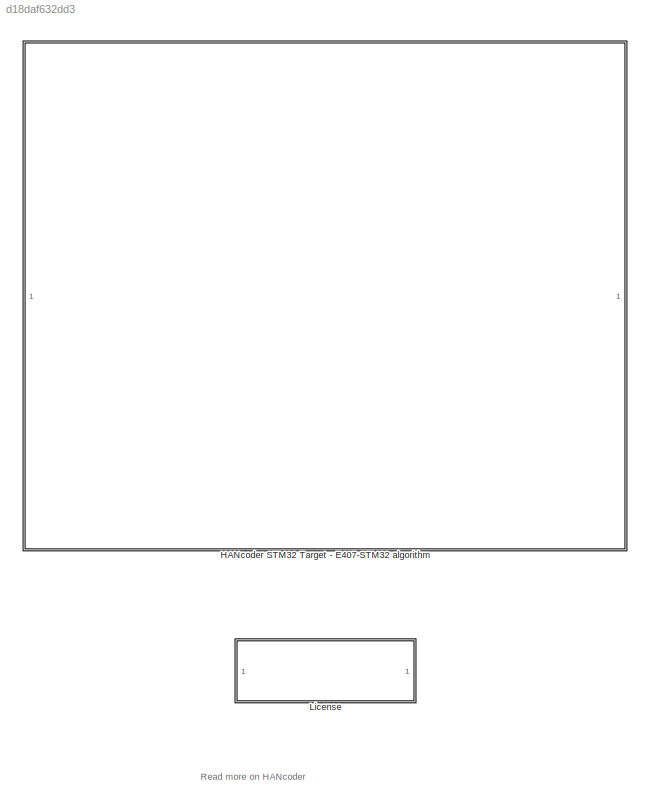
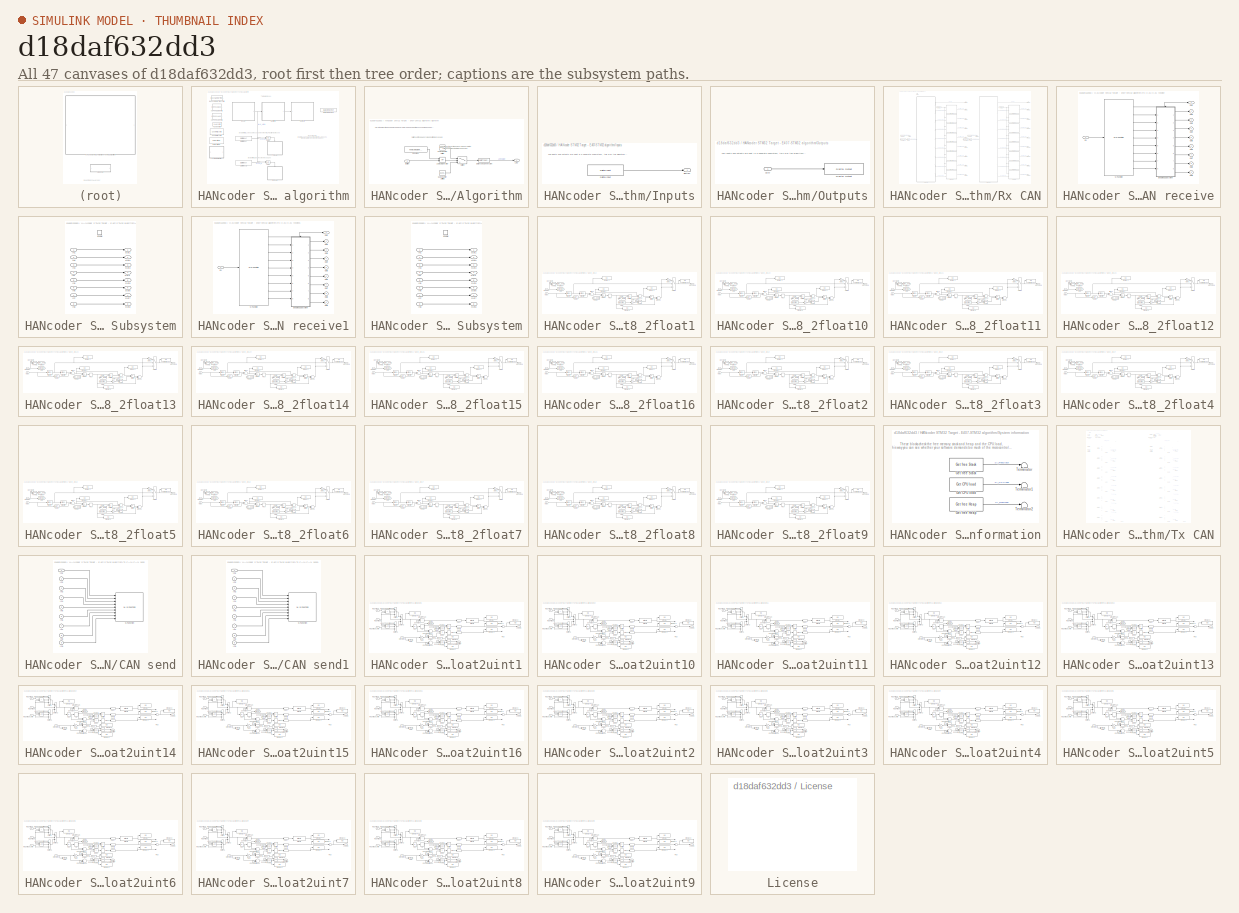
[diagram: thumbnail index - all 47 canvases of the model, root first then tree order]
MODEL slx_d18daf632dd3
KIND model
CONFIG AbsTol = auto
CONFIG EnableMultiTasking = off
CONFIG FixedStep = 0.01
CONFIG MaxStep = auto
CONFIG MinStep = auto
CONFIG PreLoadFcn = librarySetup\neval([bdroot,'_startup']) %Calling [modelName]_startup.m
CONFIG RelTol = 1e-3
CONFIG SampleTimeConstraint = Unconstrained
CONFIG Solver = FixedStepDiscrete
CONFIG SolverName = FixedStepDiscrete
CONFIG StartTime = 0.0
CONFIG StopTime = 1
BLOCK [SubSystem] HANcoder STM32 Target - E407-STM32 algorithm
  CopyFcn = HANcoderChecks('Copy');
  MoveFcn = HANcoderChecks('MoveE407');
  NameChangeFcn = HANcoderChecks('NameChangeE407');
  Ports = []
  RequestExecContextInheritance = off
BLOCK [Logic] HANcoder STM32 Target - E407-STM32 algorithm/AND1
  AllPortsSameDT = off
  IconShape = distinctive
  OutDataTypeStr = boolean
  Ports = [2, 1]
BLOCK [Logic] HANcoder STM32 Target - E407-STM32 algorithm/AND3
  AllPortsSameDT = off
  IconShape = distinctive
  OutDataTypeStr = boolean
  Ports = [2, 1]
BLOCK [SubSystem] HANcoder STM32 Target - E407-STM32 algorithm/Algorithm
  Ports = [1, 1]
  RequestExecContextInheritance = off
BLOCK [Reference] HANcoder STM32 Target - E407-STM32 algorithm/Algorithm/10Hz Counter Limiter  REF=simulink/Sources/Counter
Limited
  Ports = [0, 1]
  SourceBlock = simulink/Sources/Counter\nLimited
  SourceProductBaseCode = SL
  SourceProductName = Simulink
  SourceType = Counter Limited
BLOCK [Reference] HANcoder STM32 Target - E407-STM32 algorithm/Algorithm/5Hz Counter Limited  REF=simulink/Sources/Counter
Limited
  Ports = [0, 1]
  SourceBlock = simulink/Sources/Counter\nLimited
  SourceProductBaseCode = SL
  SourceProductName = Simulink
  SourceType = Counter Limited
BLOCK [Inport] HANcoder STM32 Target - E407-STM32 algorithm/Algorithm/Button
  IconDisplay = Port number
BLOCK [Constant] HANcoder STM32 Target - E407-STM32 algorithm/Algorithm/Constant
  OutDataTypeStr = boolean
  Value = HANtuneOverride
BLOCK [DataTypeConversion] HANcoder STM32 Target - E407-STM32 algorithm/Algorithm/Data Type Conversion
  OutDataTypeStr = boolean
  RndMeth = Floor
  SaturateOnIntegerOverflow = off
BLOCK [Outport] HANcoder STM32 Target - E407-STM32 algorithm/Algorithm/LED
  IconDisplay = Port number
BLOCK [Logic] HANcoder STM32 Target - E407-STM32 algorithm/Algorithm/Logical Operator
  AllPortsSameDT = off
  Operator = OR
  OutDataTypeStr = boolean
  Ports = [2, 1]
BLOCK [Switch] HANcoder STM32 Target - E407-STM32 algorithm/Algorithm/Switch
  Criteria = u2 > Threshold
  InputSameDT = off
  SaturateOnIntegerOverflow = off
BLOCK [Reference] HANcoder STM32 Target - E407-STM32 algorithm/Base Sample Time config  REF=HANcoder_STM32_Target/STM32-E407/System Config/Base Sample Time config
  Description = HANcoder Target STM32-E407 blockset version 1.0
  Ports = []
  SourceBlock = HANcoder_STM32_Target/STM32-E407/System Config/Base Sample Time config
  SourceProductName = HANcoder STM32 Target
  SourceType = Base Sample Time config
  Tag = HANcoder_TARGET_STM32_E407
  UserDataPersistent = on
BLOCK [Reference] HANcoder STM32 Target - E407-STM32 algorithm/Build settings  REF=HANcoder_STM32_Target/STM32-E407/System Config/Build settings
  Ports = []
  SourceBlock = HANcoder_STM32_Target/STM32-E407/System Config/Build settings
  SourceProductName = HANcoder STM32 Target
  SourceType = Build Settings
  Tag = HANcoder_TARGET_STM32_E407
  UserDataPersistent = on
BLOCK [Reference] HANcoder STM32 Target - E407-STM32 algorithm/CAN config  REF=HANcoder_STM32_Target/STM32-E407/System Config/CAN config
  Ports = []
  SourceBlock = HANcoder_STM32_Target/STM32-E407/System Config/CAN config
  SourceProductName = HANcoder STM32 Target
  SourceType = CAN config
  Tag = HANcoder_TARGET_STM32_E407
  UserDataPersistent = on
BLOCK [Reference] HANcoder STM32 Target - E407-STM32 algorithm/Custom ID config  REF=HANcoder_STM32_Target/STM32-E407/System Config/Custom ID config
  Ports = []
  SourceBlock = HANcoder_STM32_Target/STM32-E407/System Config/Custom ID config
  SourceProductName = HANcoder STM32 Target
  SourceType = Custom ID config
  Tag = HANcoder_TARGET_STM32_E407
  UserDataPersistent = on
BLOCK [DataStoreMemory] HANcoder STM32 Target - E407-STM32 algorithm/Data Store Memory
  DataStoreName = HANtuneOverride1
  ReadBeforeWriteMsg = warning
  ShowAdditionalParam = off
  WriteAfterReadMsg = warning
  WriteAfterWriteMsg = warning
BLOCK [Reference] HANcoder STM32 Target - E407-STM32 algorithm/Digital Input  REF=HANcoder_STM32_Target/STM32-E407/Digital Inputs/Digital Input
  Ports = [0, 1]
  SourceBlock = HANcoder_STM32_Target/STM32-E407/Digital Inputs/Digital Input
  SourceProductName = HANcoder STM32 Target
  SourceType = Digital Input
  Tag = HANcoder_TARGET_STM32_E407
  UserDataPersistent = on
BLOCK [Reference] HANcoder STM32 Target - E407-STM32 algorithm/Digital Input1  REF=HANcoder_STM32_Target/STM32-E407/Digital Inputs/Digital Input
  Ports = [0, 1]
  SourceBlock = HANcoder_STM32_Target/STM32-E407/Digital Inputs/Digital Input
  SourceProductName = HANcoder STM32 Target
  SourceType = Digital Input
  Tag = HANcoder_TARGET_STM32_E407
  UserDataPersistent = on
BLOCK [SubSystem] HANcoder STM32 Target - E407-STM32 algorithm/Inputs
  Ports = [0, 1]
  RequestExecContextInheritance = off
BLOCK [Outport] HANcoder STM32 Target - E407-STM32 algorithm/Inputs/Button
  IconDisplay = Port number
BLOCK [Reference] HANcoder STM32 Target - E407-STM32 algorithm/Inputs/Digital Input  REF=HANcoder_STM32_Target/STM32-E407/Digital Inputs/Digital Input
  Ports = [0, 1]
  SourceBlock = HANcoder_STM32_Target/STM32-E407/Digital Inputs/Digital Input
  SourceProductName = HANcoder STM32 Target
  SourceType = Digital Input
  Tag = HANcoder_TARGET_STM32_E407
  UserDataPersistent = on
BLOCK [SubSystem] HANcoder STM32 Target - E407-STM32 algorithm/Outputs
  Ports = [1]
  RequestExecContextInheritance = off
BLOCK [Reference] HANcoder STM32 Target - E407-STM32 algorithm/Outputs/Digital Output  REF=HANcoder_STM32_Target/STM32-E407/Digital Outputs/Digital Output
  Ports = [1]
  SourceBlock = HANcoder_STM32_Target/STM32-E407/Digital Outputs/Digital Output
  SourceProductName = HANcoder STM32 Target
  SourceType = Digital Output
  Tag = HANcoder_TARGET_STM32_E407
  UserDataPersistent = on
BLOCK [Inport] HANcoder STM32 Target - E407-STM32 algorithm/Outputs/LED
  IconDisplay = Port number
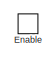
[diagram: HANcoder STM32 Target - E407-STM32 algorithm/Rx CAN - part 1/7, top left region]
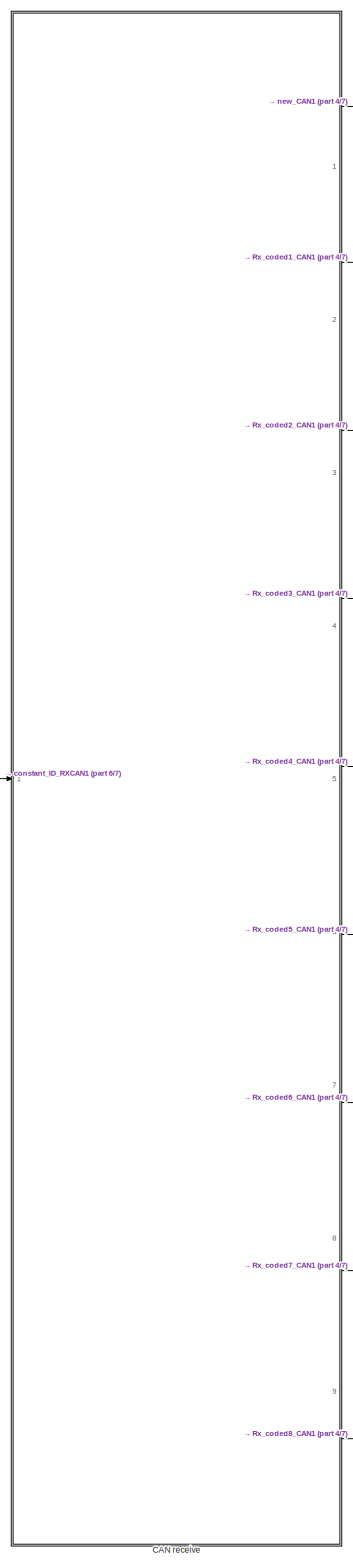
[diagram: HANcoder STM32 Target - E407-STM32 algorithm/Rx CAN - part 2/7, left side, full height]
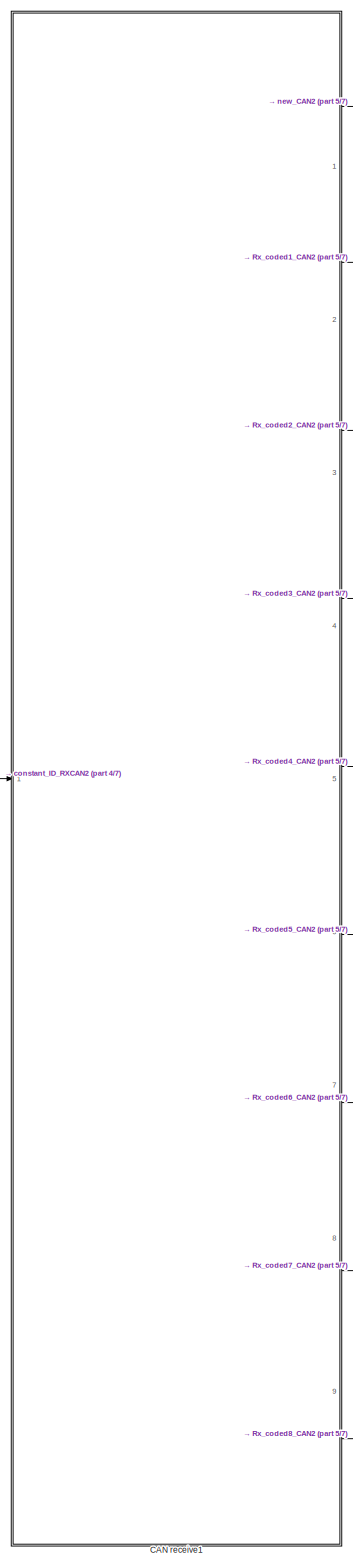
[diagram: HANcoder STM32 Target - E407-STM32 algorithm/Rx CAN - part 3/7, right side, full height]
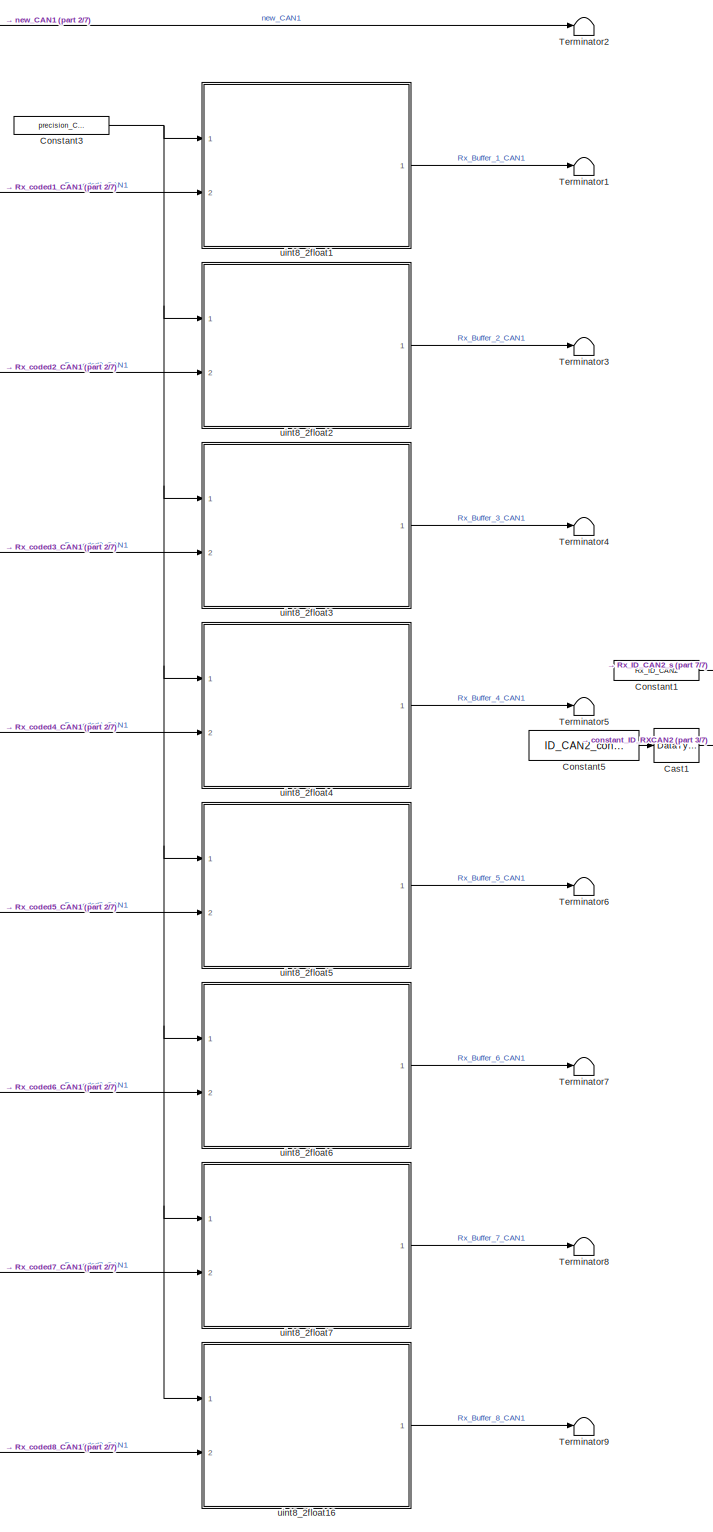
[diagram: HANcoder STM32 Target - E407-STM32 algorithm/Rx CAN - part 4/7, center side, full height]
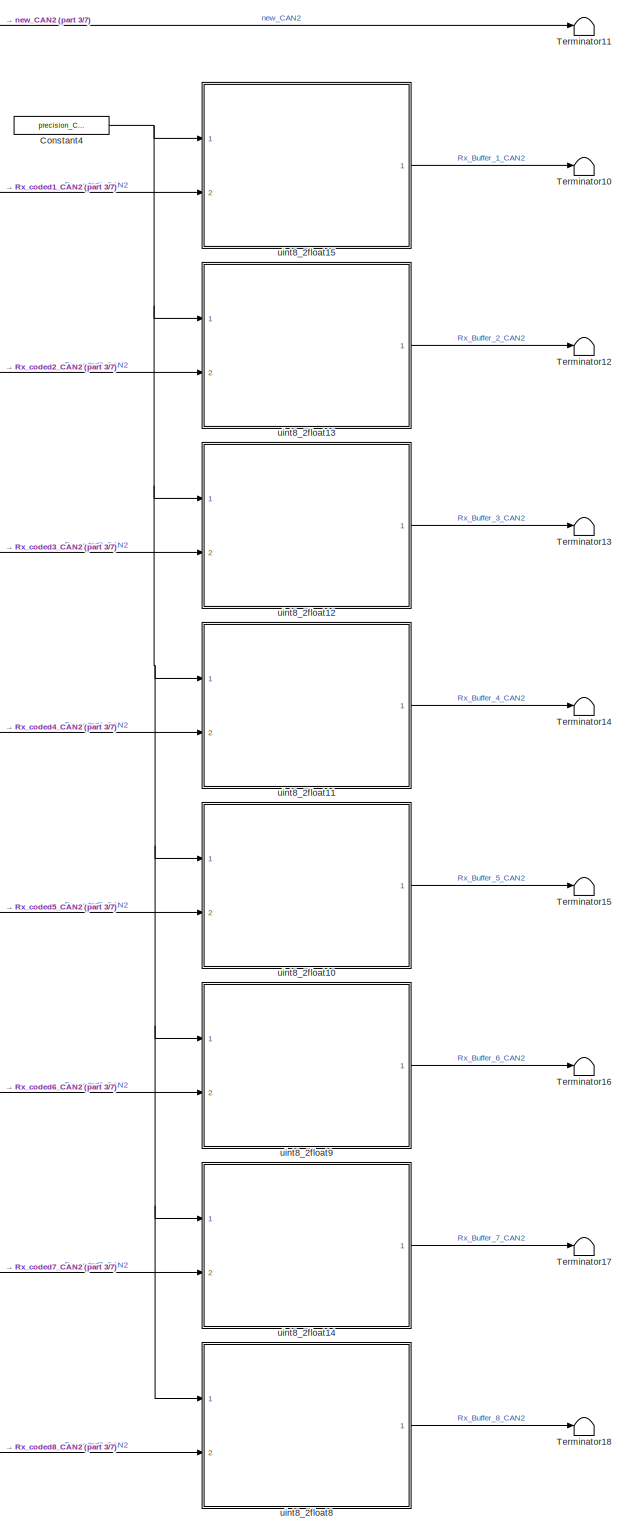
[diagram: HANcoder STM32 Target - E407-STM32 algorithm/Rx CAN - part 5/7, right side, full height]
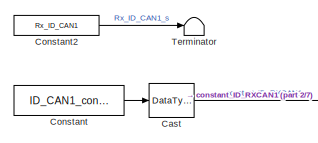
[diagram: HANcoder STM32 Target - E407-STM32 algorithm/Rx CAN - part 6/7, middle left region]
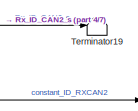
[diagram: HANcoder STM32 Target - E407-STM32 algorithm/Rx CAN - part 7/7, central region]
BLOCK [SubSystem] HANcoder STM32 Target - E407-STM32 algorithm/Rx CAN
  Ports = [0, 0, 1]
  RequestExecContextInheritance = off
BLOCK [SubSystem] HANcoder STM32 Target - E407-STM32 algorithm/Rx CAN/CAN receive
  AncestorBlock = HANcoder_STM32_Target/STM32-E407/CAN/CAN/CAN receive
  MoveFcn = drawLogos
  Ports = [1, 9]
  RequestExecContextInheritance = off
  Tag = HANcoder_TARGET_STM32_E407
  UserDataPersistent = on
BLOCK [SubSystem] HANcoder STM32 Target - E407-STM32 algorithm/Rx CAN/CAN receive/Enabled Subsystem
  Ports = [8, 8, 1]
  RequestExecContextInheritance = off
  TreatAsAtomicUnit = on
BLOCK [EnablePort] HANcoder STM32 Target - E407-STM32 algorithm/Rx CAN/CAN receive/Enabled Subsystem/Enable
  Ports = []
BLOCK [Inport] HANcoder STM32 Target - E407-STM32 algorithm/Rx CAN/CAN receive/Enabled Subsystem/In1
  IconDisplay = Port number
BLOCK [Inport] HANcoder STM32 Target - E407-STM32 algorithm/Rx CAN/CAN receive/Enabled Subsystem/In2
  IconDisplay = Port number
  Port = 2
BLOCK [Inport] HANcoder STM32 Target - E407-STM32 algorithm/Rx CAN/CAN receive/Enabled Subsystem/In3
  IconDisplay = Port number
  Port = 3
BLOCK [Inport] HANcoder STM32 Target - E407-STM32 algorithm/Rx CAN/CAN receive/Enabled Subsystem/In4
  IconDisplay = Port number
  Port = 4
BLOCK [Inport] HANcoder STM32 Target - E407-STM32 algorithm/Rx CAN/CAN receive/Enabled Subsystem/In5
  IconDisplay = Port number
  Port = 5
BLOCK [Inport] HANcoder STM32 Target - E407-STM32 algorithm/Rx CAN/CAN receive/Enabled Subsystem/In6
  IconDisplay = Port number
  Port = 6
BLOCK [Inport] HANcoder STM32 Target - E407-STM32 algorithm/Rx CAN/CAN receive/Enabled Subsystem/In7
  IconDisplay = Port number
  Port = 7
BLOCK [Inport] HANcoder STM32 Target - E407-STM32 algorithm/Rx CAN/CAN receive/Enabled Subsystem/In8
  IconDisplay = Port number
  Port = 8
BLOCK [Outport] HANcoder STM32 Target - E407-STM32 algorithm/Rx CAN/CAN receive/Enabled Subsystem/Out1
  IconDisplay = Port number
BLOCK [Outport] HANcoder STM32 Target - E407-STM32 algorithm/Rx CAN/CAN receive/Enabled Subsystem/Out2
  IconDisplay = Port number
  Port = 2
BLOCK [Outport] HANcoder STM32 Target - E407-STM32 algorithm/Rx CAN/CAN receive/Enabled Subsystem/Out3
  IconDisplay = Port number
  Port = 3
BLOCK [Outport] HANcoder STM32 Target - E407-STM32 algorithm/Rx CAN/CAN receive/Enabled Subsystem/Out4
  IconDisplay = Port number
  Port = 4
BLOCK [Outport] HANcoder STM32 Target - E407-STM32 algorithm/Rx CAN/CAN receive/Enabled Subsystem/Out5
  IconDisplay = Port number
  Port = 5
BLOCK [Outport] HANcoder STM32 Target - E407-STM32 algorithm/Rx CAN/CAN receive/Enabled Subsystem/Out6
  IconDisplay = Port number
  Port = 6
BLOCK [Outport] HANcoder STM32 Target - E407-STM32 algorithm/Rx CAN/CAN receive/Enabled Subsystem/Out7
  IconDisplay = Port number
  Port = 7
BLOCK [Outport] HANcoder STM32 Target - E407-STM32 algorithm/Rx CAN/CAN receive/Enabled Subsystem/Out8
  IconDisplay = Port number
  Port = 8
BLOCK [Inport] HANcoder STM32 Target - E407-STM32 algorithm/Rx CAN/CAN receive/In1
  IconDisplay = Port number
BLOCK [Outport] HANcoder STM32 Target - E407-STM32 algorithm/Rx CAN/CAN receive/Out1
  IconDisplay = Port number
BLOCK [Outport] HANcoder STM32 Target - E407-STM32 algorithm/Rx CAN/CAN receive/Out2
  IconDisplay = Port number
  Port = 2
BLOCK [Outport] HANcoder STM32 Target - E407-STM32 algorithm/Rx CAN/CAN receive/Out3
  IconDisplay = Port number
  Port = 3
BLOCK [Outport] HANcoder STM32 Target - E407-STM32 algorithm/Rx CAN/CAN receive/Out4
  IconDisplay = Port number
  Port = 4
BLOCK [Outport] HANcoder STM32 Target - E407-STM32 algorithm/Rx CAN/CAN receive/Out5
  IconDisplay = Port number
  Port = 5
BLOCK [Outport] HANcoder STM32 Target - E407-STM32 algorithm/Rx CAN/CAN receive/Out6
  IconDisplay = Port number
  Port = 6
BLOCK [Outport] HANcoder STM32 Target - E407-STM32 algorithm/Rx CAN/CAN receive/Out7
  IconDisplay = Port number
  Port = 7
BLOCK [Outport] HANcoder STM32 Target - E407-STM32 algorithm/Rx CAN/CAN receive/Out8
  IconDisplay = Port number
  Port = 8
BLOCK [Outport] HANcoder STM32 Target - E407-STM32 algorithm/Rx CAN/CAN receive/Out9
  IconDisplay = Port number
  Port = 9
BLOCK [M-S-Function] HANcoder STM32 Target - E407-STM32 algorithm/Rx CAN/CAN receive/S-Function
  FunctionName = sfcn_can_receive
  Parameters = tsamp, canBus, outputNumber, dataType, byteOrder
  Ports = [1, 9]
BLOCK [SubSystem] HANcoder STM32 Target - E407-STM32 algorithm/Rx CAN/CAN receive1
  AncestorBlock = HANcoder_STM32_Target/STM32-E407/CAN/CAN/CAN receive
  MoveFcn = drawLogos
  Ports = [1, 9]
  RequestExecContextInheritance = off
  Tag = HANcoder_TARGET_STM32_E407
  UserDataPersistent = on
BLOCK [SubSystem] HANcoder STM32 Target - E407-STM32 algorithm/Rx CAN/CAN receive1/Enabled Subsystem
  Ports = [8, 8, 1]
  RequestExecContextInheritance = off
  TreatAsAtomicUnit = on
BLOCK [EnablePort] HANcoder STM32 Target - E407-STM32 algorithm/Rx CAN/CAN receive1/Enabled Subsystem/Enable
  Ports = []
BLOCK [Inport] HANcoder STM32 Target - E407-STM32 algorithm/Rx CAN/CAN receive1/Enabled Subsystem/In1
  IconDisplay = Port number
BLOCK [Inport] HANcoder STM32 Target - E407-STM32 algorithm/Rx CAN/CAN receive1/Enabled Subsystem/In2
  IconDisplay = Port number
  Port = 2
BLOCK [Inport] HANcoder STM32 Target - E407-STM32 algorithm/Rx CAN/CAN receive1/Enabled Subsystem/In3
  IconDisplay = Port number
  Port = 3
BLOCK [Inport] HANcoder STM32 Target - E407-STM32 algorithm/Rx CAN/CAN receive1/Enabled Subsystem/In4
  IconDisplay = Port number
  Port = 4
BLOCK [Inport] HANcoder STM32 Target - E407-STM32 algorithm/Rx CAN/CAN receive1/Enabled Subsystem/In5
  IconDisplay = Port number
  Port = 5
BLOCK [Inport] HANcoder STM32 Target - E407-STM32 algorithm/Rx CAN/CAN receive1/Enabled Subsystem/In6
  IconDisplay = Port number
  Port = 6
BLOCK [Inport] HANcoder STM32 Target - E407-STM32 algorithm/Rx CAN/CAN receive1/Enabled Subsystem/In7
  IconDisplay = Port number
  Port = 7
BLOCK [Inport] HANcoder STM32 Target - E407-STM32 algorithm/Rx CAN/CAN receive1/Enabled Subsystem/In8
  IconDisplay = Port number
  Port = 8
BLOCK [Outport] HANcoder STM32 Target - E407-STM32 algorithm/Rx CAN/CAN receive1/Enabled Subsystem/Out1
  IconDisplay = Port number
BLOCK [Outport] HANcoder STM32 Target - E407-STM32 algorithm/Rx CAN/CAN receive1/Enabled Subsystem/Out2
  IconDisplay = Port number
  Port = 2
BLOCK [Outport] HANcoder STM32 Target - E407-STM32 algorithm/Rx CAN/CAN receive1/Enabled Subsystem/Out3
  IconDisplay = Port number
  Port = 3
BLOCK [Outport] HANcoder STM32 Target - E407-STM32 algorithm/Rx CAN/CAN receive1/Enabled Subsystem/Out4
  IconDisplay = Port number
  Port = 4
BLOCK [Outport] HANcoder STM32 Target - E407-STM32 algorithm/Rx CAN/CAN receive1/Enabled Subsystem/Out5
  IconDisplay = Port number
  Port = 5
BLOCK [Outport] HANcoder STM32 Target - E407-STM32 algorithm/Rx CAN/CAN receive1/Enabled Subsystem/Out6
  IconDisplay = Port number
  Port = 6
BLOCK [Outport] HANcoder STM32 Target - E407-STM32 algorithm/Rx CAN/CAN receive1/Enabled Subsystem/Out7
  IconDisplay = Port number
  Port = 7
BLOCK [Outport] HANcoder STM32 Target - E407-STM32 algorithm/Rx CAN/CAN receive1/Enabled Subsystem/Out8
  IconDisplay = Port number
  Port = 8
BLOCK [Inport] HANcoder STM32 Target - E407-STM32 algorithm/Rx CAN/CAN receive1/In1
  IconDisplay = Port number
BLOCK [Outport] HANcoder STM32 Target - E407-STM32 algorithm/Rx CAN/CAN receive1/Out1
  IconDisplay = Port number
BLOCK [Outport] HANcoder STM32 Target - E407-STM32 algorithm/Rx CAN/CAN receive1/Out2
  IconDisplay = Port number
  Port = 2
BLOCK [Outport] HANcoder STM32 Target - E407-STM32 algorithm/Rx CAN/CAN receive1/Out3
  IconDisplay = Port number
  Port = 3
BLOCK [Outport] HANcoder STM32 Target - E407-STM32 algorithm/Rx CAN/CAN receive1/Out4
  IconDisplay = Port number
  Port = 4
BLOCK [Outport] HANcoder STM32 Target - E407-STM32 algorithm/Rx CAN/CAN receive1/Out5
  IconDisplay = Port number
  Port = 5
BLOCK [Outport] HANcoder STM32 Target - E407-STM32 algorithm/Rx CAN/CAN receive1/Out6
  IconDisplay = Port number
  Port = 6
BLOCK [Outport] HANcoder STM32 Target - E407-STM32 algorithm/Rx CAN/CAN receive1/Out7
  IconDisplay = Port number
  Port = 7
BLOCK [Outport] HANcoder STM32 Target - E407-STM32 algorithm/Rx CAN/CAN receive1/Out8
  IconDisplay = Port number
  Port = 8
BLOCK [Outport] HANcoder STM32 Target - E407-STM32 algorithm/Rx CAN/CAN receive1/Out9
  IconDisplay = Port number
  Port = 9
BLOCK [M-S-Function] HANcoder STM32 Target - E407-STM32 algorithm/Rx CAN/CAN receive1/S-Function
  FunctionName = sfcn_can_receive
  Parameters = tsamp, canBus, outputNumber, dataType, byteOrder
  Ports = [1, 9]
BLOCK [DataTypeConversion] HANcoder STM32 Target - E407-STM32 algorithm/Rx CAN/Cast
  OutDataTypeStr = uint32
  RndMeth = Floor
  SaturateOnIntegerOverflow = off
BLOCK [DataTypeConversion] HANcoder STM32 Target - E407-STM32 algorithm/Rx CAN/Cast1
  OutDataTypeStr = uint32
  RndMeth = Floor
  SaturateOnIntegerOverflow = off
BLOCK [Constant] HANcoder STM32 Target - E407-STM32 algorithm/Rx CAN/Constant
  Value = ID_CAN1_const
BLOCK [Constant] HANcoder STM32 Target - E407-STM32 algorithm/Rx CAN/Constant1
  OutDataTypeStr = uint32
  Value = Rx_ID_CAN2
BLOCK [Constant] HANcoder STM32 Target - E407-STM32 algorithm/Rx CAN/Constant2
  OutDataTypeStr = uint32
  Value = Rx_ID_CAN1
BLOCK [Constant] HANcoder STM32 Target - E407-STM32 algorithm/Rx CAN/Constant3
  Value = precision_CAN1
BLOCK [Constant] HANcoder STM32 Target - E407-STM32 algorithm/Rx CAN/Constant4
  Value = precision_CAN2
BLOCK [Constant] HANcoder STM32 Target - E407-STM32 algorithm/Rx CAN/Constant5
  Value = ID_CAN2_const
BLOCK [EnablePort] HANcoder STM32 Target - E407-STM32 algorithm/Rx CAN/Enable
  Ports = []
BLOCK [Terminator] HANcoder STM32 Target - E407-STM32 algorithm/Rx CAN/Terminator
BLOCK [Terminator] HANcoder STM32 Target - E407-STM32 algorithm/Rx CAN/Terminator1
BLOCK [Terminator] HANcoder STM32 Target - E407-STM32 algorithm/Rx CAN/Terminator10
BLOCK [Terminator] HANcoder STM32 Target - E407-STM32 algorithm/Rx CAN/Terminator11
BLOCK [Terminator] HANcoder STM32 Target - E407-STM32 algorithm/Rx CAN/Terminator12
BLOCK [Terminator] HANcoder STM32 Target - E407-STM32 algorithm/Rx CAN/Terminator13
BLOCK [Terminator] HANcoder STM32 Target - E407-STM32 algorithm/Rx CAN/Terminator14
BLOCK [Terminator] HANcoder STM32 Target - E407-STM32 algorithm/Rx CAN/Terminator15
BLOCK [Terminator] HANcoder STM32 Target - E407-STM32 algorithm/Rx CAN/Terminator16
BLOCK [Terminator] HANcoder STM32 Target - E407-STM32 algorithm/Rx CAN/Terminator17
BLOCK [Terminator] HANcoder STM32 Target - E407-STM32 algorithm/Rx CAN/Terminator18
BLOCK [Terminator] HANcoder STM32 Target - E407-STM32 algorithm/Rx CAN/Terminator19
BLOCK [Terminator] HANcoder STM32 Target - E407-STM32 algorithm/Rx CAN/Terminator2
BLOCK [Terminator] HANcoder STM32 Target - E407-STM32 algorithm/Rx CAN/Terminator3
BLOCK [Terminator] HANcoder STM32 Target - E407-STM32 algorithm/Rx CAN/Terminator4
BLOCK [Terminator] HANcoder STM32 Target - E407-STM32 algorithm/Rx CAN/Terminator5
BLOCK [Terminator] HANcoder STM32 Target - E407-STM32 algorithm/Rx CAN/Terminator6
BLOCK [Terminator] HANcoder STM32 Target - E407-STM32 algorithm/Rx CAN/Terminator7
BLOCK [Terminator] HANcoder STM32 Target - E407-STM32 algorithm/Rx CAN/Terminator8
BLOCK [Terminator] HANcoder STM32 Target - E407-STM32 algorithm/Rx CAN/Terminator9
BLOCK [SubSystem] HANcoder STM32 Target - E407-STM32 algorithm/Rx CAN/uint8_2float1
  Ports = [2, 1]
  RequestExecContextInheritance = off
BLOCK [Reference] HANcoder STM32 Target - E407-STM32 algorithm/Rx CAN/uint8_2float1/Bit Shift  REF=hdlsllib/Logic and Bit
Operations/Bit Shift
  Ports = [1, 1]
  SourceBlock = hdlsllib/Logic and Bit\nOperations/Bit Shift
  SourceProductBaseCode = HD
  SourceProductName = HDL Coder
  SourceType = Bit Shift
BLOCK [Reference] HANcoder STM32 Target - E407-STM32 algorithm/Rx CAN/uint8_2float1/Bit Shift1  REF=hdlsllib/Logic and Bit
Operations/Bit Shift
  Ports = [1, 1]
  SourceBlock = hdlsllib/Logic and Bit\nOperations/Bit Shift
  SourceProductBaseCode = HD
  SourceProductName = HDL Coder
  SourceType = Bit Shift
BLOCK [DataTypeConversion] HANcoder STM32 Target - E407-STM32 algorithm/Rx CAN/uint8_2float1/Cast1
  OutDataTypeStr = double
  RndMeth = Floor
  SaturateOnIntegerOverflow = off
BLOCK [Constant] HANcoder STM32 Target - E407-STM32 algorithm/Rx CAN/uint8_2float1/Constant1
  Value = 2
BLOCK [Constant] HANcoder STM32 Target - E407-STM32 algorithm/Rx CAN/uint8_2float1/Constant2
  Value = 2
BLOCK [Display] HANcoder STM32 Target - E407-STM32 algorithm/Rx CAN/uint8_2float1/Display1
  Decimation = 1
  Ports = [1]
BLOCK [Display] HANcoder STM32 Target - E407-STM32 algorithm/Rx CAN/uint8_2float1/Display2
  Decimation = 1
  Ports = [1]
BLOCK [Display] HANcoder STM32 Target - E407-STM32 algorithm/Rx CAN/uint8_2float1/Display3
  Decimation = 1
  Ports = [1]
BLOCK [Display] HANcoder STM32 Target - E407-STM32 algorithm/Rx CAN/uint8_2float1/Display4
  Decimation = 1
  Ports = [1]
BLOCK [Display] HANcoder STM32 Target - E407-STM32 algorithm/Rx CAN/uint8_2float1/Display5
  Decimation = 1
  Ports = [1]
BLOCK [Product] HANcoder STM32 Target - E407-STM32 algorithm/Rx CAN/uint8_2float1/Divide
  InputSameDT = off
  Inputs = */
  OutDataTypeStr = Inherit: Inherit via internal rule
  Ports = [2, 1]
  RndMeth = Floor
  SaturateOnIntegerOverflow = off
BLOCK [Rounding] HANcoder STM32 Target - E407-STM32 algorithm/Rx CAN/uint8_2float1/Fix1
  Operator = fix
BLOCK [From] HANcoder STM32 Target - E407-STM32 algorithm/Rx CAN/uint8_2float1/From
  GotoTag = precision
BLOCK [From] HANcoder STM32 Target - E407-STM32 algorithm/Rx CAN/uint8_2float1/From1
  GotoTag = prec_pow
BLOCK [From] HANcoder STM32 Target - E407-STM32 algorithm/Rx CAN/uint8_2float1/From2
  GotoTag = prec_pow
BLOCK [Gain] HANcoder STM32 Target - E407-STM32 algorithm/Rx CAN/uint8_2float1/Gain
  Gain = -1
  OutDataTypeStr = Inherit: Inherit via internal rule
  ParamDataTypeStr = Inherit: Inherit via internal rule
  SaturateOnIntegerOverflow = off
BLOCK [Gain] HANcoder STM32 Target - E407-STM32 algorithm/Rx CAN/uint8_2float1/Gain1
  Gain = -1
  OutDataTypeStr = Inherit: Inherit via internal rule
  ParamDataTypeStr = Inherit: Inherit via internal rule
  SaturateOnIntegerOverflow = off
BLOCK [Goto] HANcoder STM32 Target - E407-STM32 algorithm/Rx CAN/uint8_2float1/Goto
  GotoTag = precision
BLOCK [Goto] HANcoder STM32 Target - E407-STM32 algorithm/Rx CAN/uint8_2float1/Goto1
  GotoTag = prec_pow
BLOCK [Sum] HANcoder STM32 Target - E407-STM32 algorithm/Rx CAN/uint8_2float1/Minus
  InputSameDT = off
  Inputs = -+
  OutDataTypeStr = Inherit: Inherit via internal rule
  Ports = [2, 1]
  SaturateOnIntegerOverflow = off
BLOCK [Sum] HANcoder STM32 Target - E407-STM32 algorithm/Rx CAN/uint8_2float1/Minus1
  InputSameDT = off
  Inputs = +-
  OutDataTypeStr = Inherit: Inherit via internal rule
  Ports = [2, 1]
  SaturateOnIntegerOverflow = off
BLOCK [Sum] HANcoder STM32 Target - E407-STM32 algorithm/Rx CAN/uint8_2float1/Minus2
  InputSameDT = off
  OutDataTypeStr = Inherit: Inherit via internal rule
  Ports = [2, 1]
  SaturateOnIntegerOverflow = off
BLOCK [Product] HANcoder STM32 Target - E407-STM32 algorithm/Rx CAN/uint8_2float1/Multiply
  InputSameDT = off
  OutDataTypeStr = Inherit: Inherit via internal rule
  Ports = [2, 1]
  RndMeth = Floor
  SaturateOnIntegerOverflow = off
BLOCK [Product] HANcoder STM32 Target - E407-STM32 algorithm/Rx CAN/uint8_2float1/Multiply1
  InputSameDT = off
  OutDataTypeStr = Inherit: Inherit via internal rule
  Ports = [2, 1]
  RndMeth = Floor
  SaturateOnIntegerOverflow = off
BLOCK [Math] HANcoder STM32 Target - E407-STM32 algorithm/Rx CAN/uint8_2float1/Power
  Operator = pow
  Ports = [2, 1]
  Priority = 5
BLOCK [Math] HANcoder STM32 Target - E407-STM32 algorithm/Rx CAN/uint8_2float1/Power1
  Operator = pow
  Ports = [2, 1]
  Priority = 5
BLOCK [Switch] HANcoder STM32 Target - E407-STM32 algorithm/Rx CAN/uint8_2float1/Switch
  Criteria = u2 > Threshold
  InputSameDT = off
  SaturateOnIntegerOverflow = off
BLOCK [Outport] HANcoder STM32 Target - E407-STM32 algorithm/Rx CAN/uint8_2float1/decoded
  IconDisplay = Port number
BLOCK [Inport] HANcoder STM32 Target - E407-STM32 algorithm/Rx CAN/uint8_2float1/precision
  IconDisplay = Port number
BLOCK [Inport] HANcoder STM32 Target - E407-STM32 algorithm/Rx CAN/uint8_2float1/value
  IconDisplay = Port number
  Port = 2
BLOCK [SubSystem] HANcoder STM32 Target - E407-STM32 algorithm/Rx CAN/uint8_2float10
  Ports = [2, 1]
  RequestExecContextInheritance = off
BLOCK [Reference] HANcoder STM32 Target - E407-STM32 algorithm/Rx CAN/uint8_2float10/Bit Shift  REF=hdlsllib/Logic and Bit
Operations/Bit Shift
  Ports = [1, 1]
  SourceBlock = hdlsllib/Logic and Bit\nOperations/Bit Shift
  SourceProductBaseCode = HD
  SourceProductName = HDL Coder
  SourceType = Bit Shift
BLOCK [Reference] HANcoder STM32 Target - E407-STM32 algorithm/Rx CAN/uint8_2float10/Bit Shift1  REF=hdlsllib/Logic and Bit
Operations/Bit Shift
  Ports = [1, 1]
  SourceBlock = hdlsllib/Logic and Bit\nOperations/Bit Shift
  SourceProductBaseCode = HD
  SourceProductName = HDL Coder
  SourceType = Bit Shift
BLOCK [DataTypeConversion] HANcoder STM32 Target - E407-STM32 algorithm/Rx CAN/uint8_2float10/Cast1
  OutDataTypeStr = double
  RndMeth = Floor
  SaturateOnIntegerOverflow = off
BLOCK [Constant] HANcoder STM32 Target - E407-STM32 algorithm/Rx CAN/uint8_2float10/Constant1
  Value = 2
BLOCK [Constant] HANcoder STM32 Target - E407-STM32 algorithm/Rx CAN/uint8_2float10/Constant2
  Value = 2
BLOCK [Display] HANcoder STM32 Target - E407-STM32 algorithm/Rx CAN/uint8_2float10/Display1
  Decimation = 1
  Ports = [1]
BLOCK [Display] HANcoder STM32 Target - E407-STM32 algorithm/Rx CAN/uint8_2float10/Display2
  Decimation = 1
  Ports = [1]
BLOCK [Display] HANcoder STM32 Target - E407-STM32 algorithm/Rx CAN/uint8_2float10/Display3
  Decimation = 1
  Ports = [1]
BLOCK [Display] HANcoder STM32 Target - E407-STM32 algorithm/Rx CAN/uint8_2float10/Display4
  Decimation = 1
  Ports = [1]
BLOCK [Display] HANcoder STM32 Target - E407-STM32 algorithm/Rx CAN/uint8_2float10/Display5
  Decimation = 1
  Ports = [1]
BLOCK [Product] HANcoder STM32 Target - E407-STM32 algorithm/Rx CAN/uint8_2float10/Divide
  InputSameDT = off
  Inputs = */
  OutDataTypeStr = Inherit: Inherit via internal rule
  Ports = [2, 1]
  RndMeth = Floor
  SaturateOnIntegerOverflow = off
BLOCK [Rounding] HANcoder STM32 Target - E407-STM32 algorithm/Rx CAN/uint8_2float10/Fix1
  Operator = fix
BLOCK [From] HANcoder STM32 Target - E407-STM32 algorithm/Rx CAN/uint8_2float10/From
  GotoTag = precision
BLOCK [From] HANcoder STM32 Target - E407-STM32 algorithm/Rx CAN/uint8_2float10/From1
  GotoTag = prec_pow
BLOCK [From] HANcoder STM32 Target - E407-STM32 algorithm/Rx CAN/uint8_2float10/From2
  GotoTag = prec_pow
BLOCK [Gain] HANcoder STM32 Target - E407-STM32 algorithm/Rx CAN/uint8_2float10/Gain
  Gain = -1
  OutDataTypeStr = Inherit: Inherit via internal rule
  ParamDataTypeStr = Inherit: Inherit via internal rule
  SaturateOnIntegerOverflow = off
BLOCK [Gain] HANcoder STM32 Target - E407-STM32 algorithm/Rx CAN/uint8_2float10/Gain1
  Gain = -1
  OutDataTypeStr = Inherit: Inherit via internal rule
  ParamDataTypeStr = Inherit: Inherit via internal rule
  SaturateOnIntegerOverflow = off
BLOCK [Goto] HANcoder STM32 Target - E407-STM32 algorithm/Rx CAN/uint8_2float10/Goto
  GotoTag = precision
BLOCK [Goto] HANcoder STM32 Target - E407-STM32 algorithm/Rx CAN/uint8_2float10/Goto1
  GotoTag = prec_pow
BLOCK [Sum] HANcoder STM32 Target - E407-STM32 algorithm/Rx CAN/uint8_2float10/Minus
  InputSameDT = off
  Inputs = -+
  OutDataTypeStr = Inherit: Inherit via internal rule
  Ports = [2, 1]
  SaturateOnIntegerOverflow = off
BLOCK [Sum] HANcoder STM32 Target - E407-STM32 algorithm/Rx CAN/uint8_2float10/Minus1
  InputSameDT = off
  Inputs = +-
  OutDataTypeStr = Inherit: Inherit via internal rule
  Ports = [2, 1]
  SaturateOnIntegerOverflow = off
BLOCK [Sum] HANcoder STM32 Target - E407-STM32 algorithm/Rx CAN/uint8_2float10/Minus2
  InputSameDT = off
  OutDataTypeStr = Inherit: Inherit via internal rule
  Ports = [2, 1]
  SaturateOnIntegerOverflow = off
BLOCK [Product] HANcoder STM32 Target - E407-STM32 algorithm/Rx CAN/uint8_2float10/Multiply
  InputSameDT = off
  OutDataTypeStr = Inherit: Inherit via internal rule
  Ports = [2, 1]
  RndMeth = Floor
  SaturateOnIntegerOverflow = off
BLOCK [Product] HANcoder STM32 Target - E407-STM32 algorithm/Rx CAN/uint8_2float10/Multiply1
  InputSameDT = off
  OutDataTypeStr = Inherit: Inherit via internal rule
  Ports = [2, 1]
  RndMeth = Floor
  SaturateOnIntegerOverflow = off
BLOCK [Math] HANcoder STM32 Target - E407-STM32 algorithm/Rx CAN/uint8_2float10/Power
  Operator = pow
  Ports = [2, 1]
  Priority = 5
BLOCK [Math] HANcoder STM32 Target - E407-STM32 algorithm/Rx CAN/uint8_2float10/Power1
  Operator = pow
  Ports = [2, 1]
  Priority = 5
BLOCK [Switch] HANcoder STM32 Target - E407-STM32 algorithm/Rx CAN/uint8_2float10/Switch
  Criteria = u2 > Threshold
  InputSameDT = off
  SaturateOnIntegerOverflow = off
BLOCK [Outport] HANcoder STM32 Target - E407-STM32 algorithm/Rx CAN/uint8_2float10/decoded
  IconDisplay = Port number
BLOCK [Inport] HANcoder STM32 Target - E407-STM32 algorithm/Rx CAN/uint8_2float10/precision
  IconDisplay = Port number
BLOCK [Inport] HANcoder STM32 Target - E407-STM32 algorithm/Rx CAN/uint8_2float10/value
  IconDisplay = Port number
  Port = 2
BLOCK [SubSystem] HANcoder STM32 Target - E407-STM32 algorithm/Rx CAN/uint8_2float11
  Ports = [2, 1]
  RequestExecContextInheritance = off
BLOCK [Reference] HANcoder STM32 Target - E407-STM32 algorithm/Rx CAN/uint8_2float11/Bit Shift  REF=hdlsllib/Logic and Bit
Operations/Bit Shift
  Ports = [1, 1]
  SourceBlock = hdlsllib/Logic and Bit\nOperations/Bit Shift
  SourceProductBaseCode = HD
  SourceProductName = HDL Coder
  SourceType = Bit Shift
BLOCK [Reference] HANcoder STM32 Target - E407-STM32 algorithm/Rx CAN/uint8_2float11/Bit Shift1  REF=hdlsllib/Logic and Bit
Operations/Bit Shift
  Ports = [1, 1]
  SourceBlock = hdlsllib/Logic and Bit\nOperations/Bit Shift
  SourceProductBaseCode = HD
  SourceProductName = HDL Coder
  SourceType = Bit Shift
BLOCK [DataTypeConversion] HANcoder STM32 Target - E407-STM32 algorithm/Rx CAN/uint8_2float11/Cast1
  OutDataTypeStr = double
  RndMeth = Floor
  SaturateOnIntegerOverflow = off
BLOCK [Constant] HANcoder STM32 Target - E407-STM32 algorithm/Rx CAN/uint8_2float11/Constant1
  Value = 2
BLOCK [Constant] HANcoder STM32 Target - E407-STM32 algorithm/Rx CAN/uint8_2float11/Constant2
  Value = 2
BLOCK [Display] HANcoder STM32 Target - E407-STM32 algorithm/Rx CAN/uint8_2float11/Display1
  Decimation = 1
  Ports = [1]
BLOCK [Display] HANcoder STM32 Target - E407-STM32 algorithm/Rx CAN/uint8_2float11/Display2
  Decimation = 1
  Ports = [1]
BLOCK [Display] HANcoder STM32 Target - E407-STM32 algorithm/Rx CAN/uint8_2float11/Display3
  Decimation = 1
  Ports = [1]
BLOCK [Display] HANcoder STM32 Target - E407-STM32 algorithm/Rx CAN/uint8_2float11/Display4
  Decimation = 1
  Ports = [1]
BLOCK [Display] HANcoder STM32 Target - E407-STM32 algorithm/Rx CAN/uint8_2float11/Display5
  Decimation = 1
  Ports = [1]
BLOCK [Product] HANcoder STM32 Target - E407-STM32 algorithm/Rx CAN/uint8_2float11/Divide
  InputSameDT = off
  Inputs = */
  OutDataTypeStr = Inherit: Inherit via internal rule
  Ports = [2, 1]
  RndMeth = Floor
  SaturateOnIntegerOverflow = off
BLOCK [Rounding] HANcoder STM32 Target - E407-STM32 algorithm/Rx CAN/uint8_2float11/Fix1
  Operator = fix
BLOCK [From] HANcoder STM32 Target - E407-STM32 algorithm/Rx CAN/uint8_2float11/From
  GotoTag = precision
BLOCK [From] HANcoder STM32 Target - E407-STM32 algorithm/Rx CAN/uint8_2float11/From1
  GotoTag = prec_pow
BLOCK [From] HANcoder STM32 Target - E407-STM32 algorithm/Rx CAN/uint8_2float11/From2
  GotoTag = prec_pow
BLOCK [Gain] HANcoder STM32 Target - E407-STM32 algorithm/Rx CAN/uint8_2float11/Gain
  Gain = -1
  OutDataTypeStr = Inherit: Inherit via internal rule
  ParamDataTypeStr = Inherit: Inherit via internal rule
  SaturateOnIntegerOverflow = off
BLOCK [Gain] HANcoder STM32 Target - E407-STM32 algorithm/Rx CAN/uint8_2float11/Gain1
  Gain = -1
  OutDataTypeStr = Inherit: Inherit via internal rule
  ParamDataTypeStr = Inherit: Inherit via internal rule
  SaturateOnIntegerOverflow = off
BLOCK [Goto] HANcoder STM32 Target - E407-STM32 algorithm/Rx CAN/uint8_2float11/Goto
  GotoTag = precision
BLOCK [Goto] HANcoder STM32 Target - E407-STM32 algorithm/Rx CAN/uint8_2float11/Goto1
  GotoTag = prec_pow
BLOCK [Sum] HANcoder STM32 Target - E407-STM32 algorithm/Rx CAN/uint8_2float11/Minus
  InputSameDT = off
  Inputs = -+
  OutDataTypeStr = Inherit: Inherit via internal rule
  Ports = [2, 1]
  SaturateOnIntegerOverflow = off
BLOCK [Sum] HANcoder STM32 Target - E407-STM32 algorithm/Rx CAN/uint8_2float11/Minus1
  InputSameDT = off
  Inputs = +-
  OutDataTypeStr = Inherit: Inherit via internal rule
  Ports = [2, 1]
  SaturateOnIntegerOverflow = off
BLOCK [Sum] HANcoder STM32 Target - E407-STM32 algorithm/Rx CAN/uint8_2float11/Minus2
  InputSameDT = off
  OutDataTypeStr = Inherit: Inherit via internal rule
  Ports = [2, 1]
  SaturateOnIntegerOverflow = off
BLOCK [Product] HANcoder STM32 Target - E407-STM32 algorithm/Rx CAN/uint8_2float11/Multiply
  InputSameDT = off
  OutDataTypeStr = Inherit: Inherit via internal rule
  Ports = [2, 1]
  RndMeth = Floor
  SaturateOnIntegerOverflow = off
BLOCK [Product] HANcoder STM32 Target - E407-STM32 algorithm/Rx CAN/uint8_2float11/Multiply1
  InputSameDT = off
  OutDataTypeStr = Inherit: Inherit via internal rule
  Ports = [2, 1]
  RndMeth = Floor
  SaturateOnIntegerOverflow = off
BLOCK [Math] HANcoder STM32 Target - E407-STM32 algorithm/Rx CAN/uint8_2float11/Power
  Operator = pow
  Ports = [2, 1]
  Priority = 5
BLOCK [Math] HANcoder STM32 Target - E407-STM32 algorithm/Rx CAN/uint8_2float11/Power1
  Operator = pow
  Ports = [2, 1]
  Priority = 5
BLOCK [Switch] HANcoder STM32 Target - E407-STM32 algorithm/Rx CAN/uint8_2float11/Switch
  Criteria = u2 > Threshold
  InputSameDT = off
  SaturateOnIntegerOverflow = off
BLOCK [Outport] HANcoder STM32 Target - E407-STM32 algorithm/Rx CAN/uint8_2float11/decoded
  IconDisplay = Port number
BLOCK [Inport] HANcoder STM32 Target - E407-STM32 algorithm/Rx CAN/uint8_2float11/precision
  IconDisplay = Port number
BLOCK [Inport] HANcoder STM32 Target - E407-STM32 algorithm/Rx CAN/uint8_2float11/value
  IconDisplay = Port number
  Port = 2
BLOCK [SubSystem] HANcoder STM32 Target - E407-STM32 algorithm/Rx CAN/uint8_2float12
  Ports = [2, 1]
  RequestExecContextInheritance = off
BLOCK [Reference] HANcoder STM32 Target - E407-STM32 algorithm/Rx CAN/uint8_2float12/Bit Shift  REF=hdlsllib/Logic and Bit
Operations/Bit Shift
  Ports = [1, 1]
  SourceBlock = hdlsllib/Logic and Bit\nOperations/Bit Shift
  SourceProductBaseCode = HD
  SourceProductName = HDL Coder
  SourceType = Bit Shift
BLOCK [Reference] HANcoder STM32 Target - E407-STM32 algorithm/Rx CAN/uint8_2float12/Bit Shift1  REF=hdlsllib/Logic and Bit
Operations/Bit Shift
  Ports = [1, 1]
  SourceBlock = hdlsllib/Logic and Bit\nOperations/Bit Shift
  SourceProductBaseCode = HD
  SourceProductName = HDL Coder
  SourceType = Bit Shift
BLOCK [DataTypeConversion] HANcoder STM32 Target - E407-STM32 algorithm/Rx CAN/uint8_2float12/Cast1
  OutDataTypeStr = double
  RndMeth = Floor
  SaturateOnIntegerOverflow = off
BLOCK [Constant] HANcoder STM32 Target - E407-STM32 algorithm/Rx CAN/uint8_2float12/Constant1
  Value = 2
BLOCK [Constant] HANcoder STM32 Target - E407-STM32 algorithm/Rx CAN/uint8_2float12/Constant2
  Value = 2
BLOCK [Display] HANcoder STM32 Target - E407-STM32 algorithm/Rx CAN/uint8_2float12/Display1
  Decimation = 1
  Ports = [1]
BLOCK [Display] HANcoder STM32 Target - E407-STM32 algorithm/Rx CAN/uint8_2float12/Display2
  Decimation = 1
  Ports = [1]
BLOCK [Display] HANcoder STM32 Target - E407-STM32 algorithm/Rx CAN/uint8_2float12/Display3
  Decimation = 1
  Ports = [1]
BLOCK [Display] HANcoder STM32 Target - E407-STM32 algorithm/Rx CAN/uint8_2float12/Display4
  Decimation = 1
  Ports = [1]
BLOCK [Display] HANcoder STM32 Target - E407-STM32 algorithm/Rx CAN/uint8_2float12/Display5
  Decimation = 1
  Ports = [1]
BLOCK [Product] HANcoder STM32 Target - E407-STM32 algorithm/Rx CAN/uint8_2float12/Divide
  InputSameDT = off
  Inputs = */
  OutDataTypeStr = Inherit: Inherit via internal rule
  Ports = [2, 1]
  RndMeth = Floor
  SaturateOnIntegerOverflow = off
BLOCK [Rounding] HANcoder STM32 Target - E407-STM32 algorithm/Rx CAN/uint8_2float12/Fix1
  Operator = fix
BLOCK [From] HANcoder STM32 Target - E407-STM32 algorithm/Rx CAN/uint8_2float12/From
  GotoTag = precision
BLOCK [From] HANcoder STM32 Target - E407-STM32 algorithm/Rx CAN/uint8_2float12/From1
  GotoTag = prec_pow
BLOCK [From] HANcoder STM32 Target - E407-STM32 algorithm/Rx CAN/uint8_2float12/From2
  GotoTag = prec_pow
BLOCK [Gain] HANcoder STM32 Target - E407-STM32 algorithm/Rx CAN/uint8_2float12/Gain
  Gain = -1
  OutDataTypeStr = Inherit: Inherit via internal rule
  ParamDataTypeStr = Inherit: Inherit via internal rule
  SaturateOnIntegerOverflow = off
BLOCK [Gain] HANcoder STM32 Target - E407-STM32 algorithm/Rx CAN/uint8_2float12/Gain1
  Gain = -1
  OutDataTypeStr = Inherit: Inherit via internal rule
  ParamDataTypeStr = Inherit: Inherit via internal rule
  SaturateOnIntegerOverflow = off
BLOCK [Goto] HANcoder STM32 Target - E407-STM32 algorithm/Rx CAN/uint8_2float12/Goto
  GotoTag = precision
BLOCK [Goto] HANcoder STM32 Target - E407-STM32 algorithm/Rx CAN/uint8_2float12/Goto1
  GotoTag = prec_pow
BLOCK [Sum] HANcoder STM32 Target - E407-STM32 algorithm/Rx CAN/uint8_2float12/Minus
  InputSameDT = off
  Inputs = -+
  OutDataTypeStr = Inherit: Inherit via internal rule
  Ports = [2, 1]
  SaturateOnIntegerOverflow = off
BLOCK [Sum] HANcoder STM32 Target - E407-STM32 algorithm/Rx CAN/uint8_2float12/Minus1
  InputSameDT = off
  Inputs = +-
  OutDataTypeStr = Inherit: Inherit via internal rule
  Ports = [2, 1]
  SaturateOnIntegerOverflow = off
BLOCK [Sum] HANcoder STM32 Target - E407-STM32 algorithm/Rx CAN/uint8_2float12/Minus2
  InputSameDT = off
  OutDataTypeStr = Inherit: Inherit via internal rule
  Ports = [2, 1]
  SaturateOnIntegerOverflow = off
BLOCK [Product] HANcoder STM32 Target - E407-STM32 algorithm/Rx CAN/uint8_2float12/Multiply
  InputSameDT = off
  OutDataTypeStr = Inherit: Inherit via internal rule
  Ports = [2, 1]
  RndMeth = Floor
  SaturateOnIntegerOverflow = off
BLOCK [Product] HANcoder STM32 Target - E407-STM32 algorithm/Rx CAN/uint8_2float12/Multiply1
  InputSameDT = off
  OutDataTypeStr = Inherit: Inherit via internal rule
  Ports = [2, 1]
  RndMeth = Floor
  SaturateOnIntegerOverflow = off
BLOCK [Math] HANcoder STM32 Target - E407-STM32 algorithm/Rx CAN/uint8_2float12/Power
  Operator = pow
  Ports = [2, 1]
  Priority = 5
BLOCK [Math] HANcoder STM32 Target - E407-STM32 algorithm/Rx CAN/uint8_2float12/Power1
  Operator = pow
  Ports = [2, 1]
  Priority = 5
BLOCK [Switch] HANcoder STM32 Target - E407-STM32 algorithm/Rx CAN/uint8_2float12/Switch
  Criteria = u2 > Threshold
  InputSameDT = off
  SaturateOnIntegerOverflow = off
BLOCK [Outport] HANcoder STM32 Target - E407-STM32 algorithm/Rx CAN/uint8_2float12/decoded
  IconDisplay = Port number
BLOCK [Inport] HANcoder STM32 Target - E407-STM32 algorithm/Rx CAN/uint8_2float12/precision
  IconDisplay = Port number
BLOCK [Inport] HANcoder STM32 Target - E407-STM32 algorithm/Rx CAN/uint8_2float12/value
  IconDisplay = Port number
  Port = 2
BLOCK [SubSystem] HANcoder STM32 Target - E407-STM32 algorithm/Rx CAN/uint8_2float13
  Ports = [2, 1]
  RequestExecContextInheritance = off
BLOCK [Reference] HANcoder STM32 Target - E407-STM32 algorithm/Rx CAN/uint8_2float13/Bit Shift  REF=hdlsllib/Logic and Bit
Operations/Bit Shift
  Ports = [1, 1]
  SourceBlock = hdlsllib/Logic and Bit\nOperations/Bit Shift
  SourceProductBaseCode = HD
  SourceProductName = HDL Coder
  SourceType = Bit Shift
BLOCK [Reference] HANcoder STM32 Target - E407-STM32 algorithm/Rx CAN/uint8_2float13/Bit Shift1  REF=hdlsllib/Logic and Bit
Operations/Bit Shift
  Ports = [1, 1]
  SourceBlock = hdlsllib/Logic and Bit\nOperations/Bit Shift
  SourceProductBaseCode = HD
  SourceProductName = HDL Coder
  SourceType = Bit Shift
BLOCK [DataTypeConversion] HANcoder STM32 Target - E407-STM32 algorithm/Rx CAN/uint8_2float13/Cast1
  OutDataTypeStr = double
  RndMeth = Floor
  SaturateOnIntegerOverflow = off
BLOCK [Constant] HANcoder STM32 Target - E407-STM32 algorithm/Rx CAN/uint8_2float13/Constant1
  Value = 2
BLOCK [Constant] HANcoder STM32 Target - E407-STM32 algorithm/Rx CAN/uint8_2float13/Constant2
  Value = 2
BLOCK [Display] HANcoder STM32 Target - E407-STM32 algorithm/Rx CAN/uint8_2float13/Display1
  Decimation = 1
  Ports = [1]
BLOCK [Display] HANcoder STM32 Target - E407-STM32 algorithm/Rx CAN/uint8_2float13/Display2
  Decimation = 1
  Ports = [1]
BLOCK [Display] HANcoder STM32 Target - E407-STM32 algorithm/Rx CAN/uint8_2float13/Display3
  Decimation = 1
  Ports = [1]
BLOCK [Display] HANcoder STM32 Target - E407-STM32 algorithm/Rx CAN/uint8_2float13/Display4
  Decimation = 1
  Ports = [1]
BLOCK [Display] HANcoder STM32 Target - E407-STM32 algorithm/Rx CAN/uint8_2float13/Display5
  Decimation = 1
  Ports = [1]
BLOCK [Product] HANcoder STM32 Target - E407-STM32 algorithm/Rx CAN/uint8_2float13/Divide
  InputSameDT = off
  Inputs = */
  OutDataTypeStr = Inherit: Inherit via internal rule
  Ports = [2, 1]
  RndMeth = Floor
  SaturateOnIntegerOverflow = off
BLOCK [Rounding] HANcoder STM32 Target - E407-STM32 algorithm/Rx CAN/uint8_2float13/Fix1
  Operator = fix
BLOCK [From] HANcoder STM32 Target - E407-STM32 algorithm/Rx CAN/uint8_2float13/From
  GotoTag = precision
BLOCK [From] HANcoder STM32 Target - E407-STM32 algorithm/Rx CAN/uint8_2float13/From1
  GotoTag = prec_pow
BLOCK [From] HANcoder STM32 Target - E407-STM32 algorithm/Rx CAN/uint8_2float13/From2
  GotoTag = prec_pow
BLOCK [Gain] HANcoder STM32 Target - E407-STM32 algorithm/Rx CAN/uint8_2float13/Gain
  Gain = -1
  OutDataTypeStr = Inherit: Inherit via internal rule
  ParamDataTypeStr = Inherit: Inherit via internal rule
  SaturateOnIntegerOverflow = off
BLOCK [Gain] HANcoder STM32 Target - E407-STM32 algorithm/Rx CAN/uint8_2float13/Gain1
  Gain = -1
  OutDataTypeStr = Inherit: Inherit via internal rule
  ParamDataTypeStr = Inherit: Inherit via internal rule
  SaturateOnIntegerOverflow = off
BLOCK [Goto] HANcoder STM32 Target - E407-STM32 algorithm/Rx CAN/uint8_2float13/Goto
  GotoTag = precision
BLOCK [Goto] HANcoder STM32 Target - E407-STM32 algorithm/Rx CAN/uint8_2float13/Goto1
  GotoTag = prec_pow
BLOCK [Sum] HANcoder STM32 Target - E407-STM32 algorithm/Rx CAN/uint8_2float13/Minus
  InputSameDT = off
  Inputs = -+
  OutDataTypeStr = Inherit: Inherit via internal rule
  Ports = [2, 1]
  SaturateOnIntegerOverflow = off
BLOCK [Sum] HANcoder STM32 Target - E407-STM32 algorithm/Rx CAN/uint8_2float13/Minus1
  InputSameDT = off
  Inputs = +-
  OutDataTypeStr = Inherit: Inherit via internal rule
  Ports = [2, 1]
  SaturateOnIntegerOverflow = off
BLOCK [Sum] HANcoder STM32 Target - E407-STM32 algorithm/Rx CAN/uint8_2float13/Minus2
  InputSameDT = off
  OutDataTypeStr = Inherit: Inherit via internal rule
  Ports = [2, 1]
  SaturateOnIntegerOverflow = off
BLOCK [Product] HANcoder STM32 Target - E407-STM32 algorithm/Rx CAN/uint8_2float13/Multiply
  InputSameDT = off
  OutDataTypeStr = Inherit: Inherit via internal rule
  Ports = [2, 1]
  RndMeth = Floor
  SaturateOnIntegerOverflow = off
BLOCK [Product] HANcoder STM32 Target - E407-STM32 algorithm/Rx CAN/uint8_2float13/Multiply1
  InputSameDT = off
  OutDataTypeStr = Inherit: Inherit via internal rule
  Ports = [2, 1]
  RndMeth = Floor
  SaturateOnIntegerOverflow = off
BLOCK [Math] HANcoder STM32 Target - E407-STM32 algorithm/Rx CAN/uint8_2float13/Power
  Operator = pow
  Ports = [2, 1]
  Priority = 5
BLOCK [Math] HANcoder STM32 Target - E407-STM32 algorithm/Rx CAN/uint8_2float13/Power1
  Operator = pow
  Ports = [2, 1]
  Priority = 5
BLOCK [Switch] HANcoder STM32 Target - E407-STM32 algorithm/Rx CAN/uint8_2float13/Switch
  Criteria = u2 > Threshold
  InputSameDT = off
  SaturateOnIntegerOverflow = off
BLOCK [Outport] HANcoder STM32 Target - E407-STM32 algorithm/Rx CAN/uint8_2float13/decoded
  IconDisplay = Port number
BLOCK [Inport] HANcoder STM32 Target - E407-STM32 algorithm/Rx CAN/uint8_2float13/precision
  IconDisplay = Port number
BLOCK [Inport] HANcoder STM32 Target - E407-STM32 algorithm/Rx CAN/uint8_2float13/value
  IconDisplay = Port number
  Port = 2
BLOCK [SubSystem] HANcoder STM32 Target - E407-STM32 algorithm/Rx CAN/uint8_2float14
  Ports = [2, 1]
  RequestExecContextInheritance = off
BLOCK [Reference] HANcoder STM32 Target - E407-STM32 algorithm/Rx CAN/uint8_2float14/Bit Shift  REF=hdlsllib/Logic and Bit
Operations/Bit Shift
  Ports = [1, 1]
  SourceBlock = hdlsllib/Logic and Bit\nOperations/Bit Shift
  SourceProductBaseCode = HD
  SourceProductName = HDL Coder
  SourceType = Bit Shift
BLOCK [Reference] HANcoder STM32 Target - E407-STM32 algorithm/Rx CAN/uint8_2float14/Bit Shift1  REF=hdlsllib/Logic and Bit
Operations/Bit Shift
  Ports = [1, 1]
  SourceBlock = hdlsllib/Logic and Bit\nOperations/Bit Shift
  SourceProductBaseCode = HD
  SourceProductName = HDL Coder
  SourceType = Bit Shift
BLOCK [DataTypeConversion] HANcoder STM32 Target - E407-STM32 algorithm/Rx CAN/uint8_2float14/Cast1
  OutDataTypeStr = double
  RndMeth = Floor
  SaturateOnIntegerOverflow = off
BLOCK [Constant] HANcoder STM32 Target - E407-STM32 algorithm/Rx CAN/uint8_2float14/Constant1
  Value = 2
BLOCK [Constant] HANcoder STM32 Target - E407-STM32 algorithm/Rx CAN/uint8_2float14/Constant2
  Value = 2
BLOCK [Display] HANcoder STM32 Target - E407-STM32 algorithm/Rx CAN/uint8_2float14/Display1
  Decimation = 1
  Ports = [1]
BLOCK [Display] HANcoder STM32 Target - E407-STM32 algorithm/Rx CAN/uint8_2float14/Display2
  Decimation = 1
  Ports = [1]
BLOCK [Display] HANcoder STM32 Target - E407-STM32 algorithm/Rx CAN/uint8_2float14/Display3
  Decimation = 1
  Ports = [1]
BLOCK [Display] HANcoder STM32 Target - E407-STM32 algorithm/Rx CAN/uint8_2float14/Display4
  Decimation = 1
  Ports = [1]
BLOCK [Display] HANcoder STM32 Target - E407-STM32 algorithm/Rx CAN/uint8_2float14/Display5
  Decimation = 1
  Ports = [1]
BLOCK [Product] HANcoder STM32 Target - E407-STM32 algorithm/Rx CAN/uint8_2float14/Divide
  InputSameDT = off
  Inputs = */
  OutDataTypeStr = Inherit: Inherit via internal rule
  Ports = [2, 1]
  RndMeth = Floor
  SaturateOnIntegerOverflow = off
BLOCK [Rounding] HANcoder STM32 Target - E407-STM32 algorithm/Rx CAN/uint8_2float14/Fix1
  Operator = fix
BLOCK [From] HANcoder STM32 Target - E407-STM32 algorithm/Rx CAN/uint8_2float14/From
  GotoTag = precision
BLOCK [From] HANcoder STM32 Target - E407-STM32 algorithm/Rx CAN/uint8_2float14/From1
  GotoTag = prec_pow
BLOCK [From] HANcoder STM32 Target - E407-STM32 algorithm/Rx CAN/uint8_2float14/From2
  GotoTag = prec_pow
BLOCK [Gain] HANcoder STM32 Target - E407-STM32 algorithm/Rx CAN/uint8_2float14/Gain
  Gain = -1
  OutDataTypeStr = Inherit: Inherit via internal rule
  ParamDataTypeStr = Inherit: Inherit via internal rule
  SaturateOnIntegerOverflow = off
BLOCK [Gain] HANcoder STM32 Target - E407-STM32 algorithm/Rx CAN/uint8_2float14/Gain1
  Gain = -1
  OutDataTypeStr = Inherit: Inherit via internal rule
  ParamDataTypeStr = Inherit: Inherit via internal rule
  SaturateOnIntegerOverflow = off
BLOCK [Goto] HANcoder STM32 Target - E407-STM32 algorithm/Rx CAN/uint8_2float14/Goto
  GotoTag = precision
BLOCK [Goto] HANcoder STM32 Target - E407-STM32 algorithm/Rx CAN/uint8_2float14/Goto1
  GotoTag = prec_pow
BLOCK [Sum] HANcoder STM32 Target - E407-STM32 algorithm/Rx CAN/uint8_2float14/Minus
  InputSameDT = off
  Inputs = -+
  OutDataTypeStr = Inherit: Inherit via internal rule
  Ports = [2, 1]
  SaturateOnIntegerOverflow = off
BLOCK [Sum] HANcoder STM32 Target - E407-STM32 algorithm/Rx CAN/uint8_2float14/Minus1
  InputSameDT = off
  Inputs = +-
  OutDataTypeStr = Inherit: Inherit via internal rule
  Ports = [2, 1]
  SaturateOnIntegerOverflow = off
BLOCK [Sum] HANcoder STM32 Target - E407-STM32 algorithm/Rx CAN/uint8_2float14/Minus2
  InputSameDT = off
  OutDataTypeStr = Inherit: Inherit via internal rule
  Ports = [2, 1]
  SaturateOnIntegerOverflow = off
BLOCK [Product] HANcoder STM32 Target - E407-STM32 algorithm/Rx CAN/uint8_2float14/Multiply
  InputSameDT = off
  OutDataTypeStr = Inherit: Inherit via internal rule
  Ports = [2, 1]
  RndMeth = Floor
  SaturateOnIntegerOverflow = off
BLOCK [Product] HANcoder STM32 Target - E407-STM32 algorithm/Rx CAN/uint8_2float14/Multiply1
  InputSameDT = off
  OutDataTypeStr = Inherit: Inherit via internal rule
  Ports = [2, 1]
  RndMeth = Floor
  SaturateOnIntegerOverflow = off
BLOCK [Math] HANcoder STM32 Target - E407-STM32 algorithm/Rx CAN/uint8_2float14/Power
  Operator = pow
  Ports = [2, 1]
  Priority = 5
BLOCK [Math] HANcoder STM32 Target - E407-STM32 algorithm/Rx CAN/uint8_2float14/Power1
  Operator = pow
  Ports = [2, 1]
  Priority = 5
BLOCK [Switch] HANcoder STM32 Target - E407-STM32 algorithm/Rx CAN/uint8_2float14/Switch
  Criteria = u2 > Threshold
  InputSameDT = off
  SaturateOnIntegerOverflow = off
BLOCK [Outport] HANcoder STM32 Target - E407-STM32 algorithm/Rx CAN/uint8_2float14/decoded
  IconDisplay = Port number
BLOCK [Inport] HANcoder STM32 Target - E407-STM32 algorithm/Rx CAN/uint8_2float14/precision
  IconDisplay = Port number
BLOCK [Inport] HANcoder STM32 Target - E407-STM32 algorithm/Rx CAN/uint8_2float14/value
  IconDisplay = Port number
  Port = 2
BLOCK [SubSystem] HANcoder STM32 Target - E407-STM32 algorithm/Rx CAN/uint8_2float15
  Ports = [2, 1]
  RequestExecContextInheritance = off
BLOCK [Reference] HANcoder STM32 Target - E407-STM32 algorithm/Rx CAN/uint8_2float15/Bit Shift  REF=hdlsllib/Logic and Bit
Operations/Bit Shift
  Ports = [1, 1]
  SourceBlock = hdlsllib/Logic and Bit\nOperations/Bit Shift
  SourceProductBaseCode = HD
  SourceProductName = HDL Coder
  SourceType = Bit Shift
BLOCK [Reference] HANcoder STM32 Target - E407-STM32 algorithm/Rx CAN/uint8_2float15/Bit Shift1  REF=hdlsllib/Logic and Bit
Operations/Bit Shift
  Ports = [1, 1]
  SourceBlock = hdlsllib/Logic and Bit\nOperations/Bit Shift
  SourceProductBaseCode = HD
  SourceProductName = HDL Coder
  SourceType = Bit Shift
BLOCK [DataTypeConversion] HANcoder STM32 Target - E407-STM32 algorithm/Rx CAN/uint8_2float15/Cast1
  OutDataTypeStr = double
  RndMeth = Floor
  SaturateOnIntegerOverflow = off
BLOCK [Constant] HANcoder STM32 Target - E407-STM32 algorithm/Rx CAN/uint8_2float15/Constant1
  Value = 2
BLOCK [Constant] HANcoder STM32 Target - E407-STM32 algorithm/Rx CAN/uint8_2float15/Constant2
  Value = 2
BLOCK [Display] HANcoder STM32 Target - E407-STM32 algorithm/Rx CAN/uint8_2float15/Display1
  Decimation = 1
  Ports = [1]
BLOCK [Display] HANcoder STM32 Target - E407-STM32 algorithm/Rx CAN/uint8_2float15/Display2
  Decimation = 1
  Ports = [1]
BLOCK [Display] HANcoder STM32 Target - E407-STM32 algorithm/Rx CAN/uint8_2float15/Display3
  Decimation = 1
  Ports = [1]
BLOCK [Display] HANcoder STM32 Target - E407-STM32 algorithm/Rx CAN/uint8_2float15/Display4
  Decimation = 1
  Ports = [1]
BLOCK [Display] HANcoder STM32 Target - E407-STM32 algorithm/Rx CAN/uint8_2float15/Display5
  Decimation = 1
  Ports = [1]
BLOCK [Product] HANcoder STM32 Target - E407-STM32 algorithm/Rx CAN/uint8_2float15/Divide
  InputSameDT = off
  Inputs = */
  OutDataTypeStr = Inherit: Inherit via internal rule
  Ports = [2, 1]
  RndMeth = Floor
  SaturateOnIntegerOverflow = off
BLOCK [Rounding] HANcoder STM32 Target - E407-STM32 algorithm/Rx CAN/uint8_2float15/Fix1
  Operator = fix
BLOCK [From] HANcoder STM32 Target - E407-STM32 algorithm/Rx CAN/uint8_2float15/From
  GotoTag = precision
BLOCK [From] HANcoder STM32 Target - E407-STM32 algorithm/Rx CAN/uint8_2float15/From1
  GotoTag = prec_pow
BLOCK [From] HANcoder STM32 Target - E407-STM32 algorithm/Rx CAN/uint8_2float15/From2
  GotoTag = prec_pow
BLOCK [Gain] HANcoder STM32 Target - E407-STM32 algorithm/Rx CAN/uint8_2float15/Gain
  Gain = -1
  OutDataTypeStr = Inherit: Inherit via internal rule
  ParamDataTypeStr = Inherit: Inherit via internal rule
  SaturateOnIntegerOverflow = off
BLOCK [Gain] HANcoder STM32 Target - E407-STM32 algorithm/Rx CAN/uint8_2float15/Gain1
  Gain = -1
  OutDataTypeStr = Inherit: Inherit via internal rule
  ParamDataTypeStr = Inherit: Inherit via internal rule
  SaturateOnIntegerOverflow = off
BLOCK [Goto] HANcoder STM32 Target - E407-STM32 algorithm/Rx CAN/uint8_2float15/Goto
  GotoTag = precision
BLOCK [Goto] HANcoder STM32 Target - E407-STM32 algorithm/Rx CAN/uint8_2float15/Goto1
  GotoTag = prec_pow
BLOCK [Sum] HANcoder STM32 Target - E407-STM32 algorithm/Rx CAN/uint8_2float15/Minus
  InputSameDT = off
  Inputs = -+
  OutDataTypeStr = Inherit: Inherit via internal rule
  Ports = [2, 1]
  SaturateOnIntegerOverflow = off
BLOCK [Sum] HANcoder STM32 Target - E407-STM32 algorithm/Rx CAN/uint8_2float15/Minus1
  InputSameDT = off
  Inputs = +-
  OutDataTypeStr = Inherit: Inherit via internal rule
  Ports = [2, 1]
  SaturateOnIntegerOverflow = off
BLOCK [Sum] HANcoder STM32 Target - E407-STM32 algorithm/Rx CAN/uint8_2float15/Minus2
  InputSameDT = off
  OutDataTypeStr = Inherit: Inherit via internal rule
  Ports = [2, 1]
  SaturateOnIntegerOverflow = off
BLOCK [Product] HANcoder STM32 Target - E407-STM32 algorithm/Rx CAN/uint8_2float15/Multiply
  InputSameDT = off
  OutDataTypeStr = Inherit: Inherit via internal rule
  Ports = [2, 1]
  RndMeth = Floor
  SaturateOnIntegerOverflow = off
BLOCK [Product] HANcoder STM32 Target - E407-STM32 algorithm/Rx CAN/uint8_2float15/Multiply1
  InputSameDT = off
  OutDataTypeStr = Inherit: Inherit via internal rule
  Ports = [2, 1]
  RndMeth = Floor
  SaturateOnIntegerOverflow = off
BLOCK [Math] HANcoder STM32 Target - E407-STM32 algorithm/Rx CAN/uint8_2float15/Power
  Operator = pow
  Ports = [2, 1]
  Priority = 5
BLOCK [Math] HANcoder STM32 Target - E407-STM32 algorithm/Rx CAN/uint8_2float15/Power1
  Operator = pow
  Ports = [2, 1]
  Priority = 5
BLOCK [Switch] HANcoder STM32 Target - E407-STM32 algorithm/Rx CAN/uint8_2float15/Switch
  Criteria = u2 > Threshold
  InputSameDT = off
  SaturateOnIntegerOverflow = off
BLOCK [Outport] HANcoder STM32 Target - E407-STM32 algorithm/Rx CAN/uint8_2float15/decoded
  IconDisplay = Port number
BLOCK [Inport] HANcoder STM32 Target - E407-STM32 algorithm/Rx CAN/uint8_2float15/precision
  IconDisplay = Port number
BLOCK [Inport] HANcoder STM32 Target - E407-STM32 algorithm/Rx CAN/uint8_2float15/value
  IconDisplay = Port number
  Port = 2
BLOCK [SubSystem] HANcoder STM32 Target - E407-STM32 algorithm/Rx CAN/uint8_2float16
  Ports = [2, 1]
  RequestExecContextInheritance = off
BLOCK [Reference] HANcoder STM32 Target - E407-STM32 algorithm/Rx CAN/uint8_2float16/Bit Shift  REF=hdlsllib/Logic and Bit
Operations/Bit Shift
  Ports = [1, 1]
  SourceBlock = hdlsllib/Logic and Bit\nOperations/Bit Shift
  SourceProductBaseCode = HD
  SourceProductName = HDL Coder
  SourceType = Bit Shift
BLOCK [Reference] HANcoder STM32 Target - E407-STM32 algorithm/Rx CAN/uint8_2float16/Bit Shift1  REF=hdlsllib/Logic and Bit
Operations/Bit Shift
  Ports = [1, 1]
  SourceBlock = hdlsllib/Logic and Bit\nOperations/Bit Shift
  SourceProductBaseCode = HD
  SourceProductName = HDL Coder
  SourceType = Bit Shift
BLOCK [DataTypeConversion] HANcoder STM32 Target - E407-STM32 algorithm/Rx CAN/uint8_2float16/Cast1
  OutDataTypeStr = double
  RndMeth = Floor
  SaturateOnIntegerOverflow = off
BLOCK [Constant] HANcoder STM32 Target - E407-STM32 algorithm/Rx CAN/uint8_2float16/Constant1
  Value = 2
BLOCK [Constant] HANcoder STM32 Target - E407-STM32 algorithm/Rx CAN/uint8_2float16/Constant2
  Value = 2
BLOCK [Display] HANcoder STM32 Target - E407-STM32 algorithm/Rx CAN/uint8_2float16/Display1
  Decimation = 1
  Ports = [1]
BLOCK [Display] HANcoder STM32 Target - E407-STM32 algorithm/Rx CAN/uint8_2float16/Display2
  Decimation = 1
  Ports = [1]
BLOCK [Display] HANcoder STM32 Target - E407-STM32 algorithm/Rx CAN/uint8_2float16/Display3
  Decimation = 1
  Ports = [1]
BLOCK [Display] HANcoder STM32 Target - E407-STM32 algorithm/Rx CAN/uint8_2float16/Display4
  Decimation = 1
  Ports = [1]
BLOCK [Display] HANcoder STM32 Target - E407-STM32 algorithm/Rx CAN/uint8_2float16/Display5
  Decimation = 1
  Ports = [1]
BLOCK [Product] HANcoder STM32 Target - E407-STM32 algorithm/Rx CAN/uint8_2float16/Divide
  InputSameDT = off
  Inputs = */
  OutDataTypeStr = Inherit: Inherit via internal rule
  Ports = [2, 1]
  RndMeth = Floor
  SaturateOnIntegerOverflow = off
BLOCK [Rounding] HANcoder STM32 Target - E407-STM32 algorithm/Rx CAN/uint8_2float16/Fix1
  Operator = fix
BLOCK [From] HANcoder STM32 Target - E407-STM32 algorithm/Rx CAN/uint8_2float16/From
  GotoTag = precision
BLOCK [From] HANcoder STM32 Target - E407-STM32 algorithm/Rx CAN/uint8_2float16/From1
  GotoTag = prec_pow
BLOCK [From] HANcoder STM32 Target - E407-STM32 algorithm/Rx CAN/uint8_2float16/From2
  GotoTag = prec_pow
BLOCK [Gain] HANcoder STM32 Target - E407-STM32 algorithm/Rx CAN/uint8_2float16/Gain
  Gain = -1
  OutDataTypeStr = Inherit: Inherit via internal rule
  ParamDataTypeStr = Inherit: Inherit via internal rule
  SaturateOnIntegerOverflow = off
BLOCK [Gain] HANcoder STM32 Target - E407-STM32 algorithm/Rx CAN/uint8_2float16/Gain1
  Gain = -1
  OutDataTypeStr = Inherit: Inherit via internal rule
  ParamDataTypeStr = Inherit: Inherit via internal rule
  SaturateOnIntegerOverflow = off
BLOCK [Goto] HANcoder STM32 Target - E407-STM32 algorithm/Rx CAN/uint8_2float16/Goto
  GotoTag = precision
BLOCK [Goto] HANcoder STM32 Target - E407-STM32 algorithm/Rx CAN/uint8_2float16/Goto1
  GotoTag = prec_pow
BLOCK [Sum] HANcoder STM32 Target - E407-STM32 algorithm/Rx CAN/uint8_2float16/Minus
  InputSameDT = off
  Inputs = -+
  OutDataTypeStr = Inherit: Inherit via internal rule
  Ports = [2, 1]
  SaturateOnIntegerOverflow = off
BLOCK [Sum] HANcoder STM32 Target - E407-STM32 algorithm/Rx CAN/uint8_2float16/Minus1
  InputSameDT = off
  Inputs = +-
  OutDataTypeStr = Inherit: Inherit via internal rule
  Ports = [2, 1]
  SaturateOnIntegerOverflow = off
BLOCK [Sum] HANcoder STM32 Target - E407-STM32 algorithm/Rx CAN/uint8_2float16/Minus2
  InputSameDT = off
  OutDataTypeStr = Inherit: Inherit via internal rule
  Ports = [2, 1]
  SaturateOnIntegerOverflow = off
BLOCK [Product] HANcoder STM32 Target - E407-STM32 algorithm/Rx CAN/uint8_2float16/Multiply
  InputSameDT = off
  OutDataTypeStr = Inherit: Inherit via internal rule
  Ports = [2, 1]
  RndMeth = Floor
  SaturateOnIntegerOverflow = off
BLOCK [Product] HANcoder STM32 Target - E407-STM32 algorithm/Rx CAN/uint8_2float16/Multiply1
  InputSameDT = off
  OutDataTypeStr = Inherit: Inherit via internal rule
  Ports = [2, 1]
  RndMeth = Floor
  SaturateOnIntegerOverflow = off
BLOCK [Math] HANcoder STM32 Target - E407-STM32 algorithm/Rx CAN/uint8_2float16/Power
  Operator = pow
  Ports = [2, 1]
  Priority = 5
BLOCK [Math] HANcoder STM32 Target - E407-STM32 algorithm/Rx CAN/uint8_2float16/Power1
  Operator = pow
  Ports = [2, 1]
  Priority = 5
BLOCK [Switch] HANcoder STM32 Target - E407-STM32 algorithm/Rx CAN/uint8_2float16/Switch
  Criteria = u2 > Threshold
  InputSameDT = off
  SaturateOnIntegerOverflow = off
BLOCK [Outport] HANcoder STM32 Target - E407-STM32 algorithm/Rx CAN/uint8_2float16/decoded
  IconDisplay = Port number
BLOCK [Inport] HANcoder STM32 Target - E407-STM32 algorithm/Rx CAN/uint8_2float16/precision
  IconDisplay = Port number
BLOCK [Inport] HANcoder STM32 Target - E407-STM32 algorithm/Rx CAN/uint8_2float16/value
  IconDisplay = Port number
  Port = 2
BLOCK [SubSystem] HANcoder STM32 Target - E407-STM32 algorithm/Rx CAN/uint8_2float2
  Ports = [2, 1]
  RequestExecContextInheritance = off
BLOCK [Reference] HANcoder STM32 Target - E407-STM32 algorithm/Rx CAN/uint8_2float2/Bit Shift  REF=hdlsllib/Logic and Bit
Operations/Bit Shift
  Ports = [1, 1]
  SourceBlock = hdlsllib/Logic and Bit\nOperations/Bit Shift
  SourceProductBaseCode = HD
  SourceProductName = HDL Coder
  SourceType = Bit Shift
BLOCK [Reference] HANcoder STM32 Target - E407-STM32 algorithm/Rx CAN/uint8_2float2/Bit Shift1  REF=hdlsllib/Logic and Bit
Operations/Bit Shift
  Ports = [1, 1]
  SourceBlock = hdlsllib/Logic and Bit\nOperations/Bit Shift
  SourceProductBaseCode = HD
  SourceProductName = HDL Coder
  SourceType = Bit Shift
BLOCK [DataTypeConversion] HANcoder STM32 Target - E407-STM32 algorithm/Rx CAN/uint8_2float2/Cast1
  OutDataTypeStr = double
  RndMeth = Floor
  SaturateOnIntegerOverflow = off
BLOCK [Constant] HANcoder STM32 Target - E407-STM32 algorithm/Rx CAN/uint8_2float2/Constant1
  Value = 2
BLOCK [Constant] HANcoder STM32 Target - E407-STM32 algorithm/Rx CAN/uint8_2float2/Constant2
  Value = 2
BLOCK [Display] HANcoder STM32 Target - E407-STM32 algorithm/Rx CAN/uint8_2float2/Display1
  Decimation = 1
  Ports = [1]
BLOCK [Display] HANcoder STM32 Target - E407-STM32 algorithm/Rx CAN/uint8_2float2/Display2
  Decimation = 1
  Ports = [1]
BLOCK [Display] HANcoder STM32 Target - E407-STM32 algorithm/Rx CAN/uint8_2float2/Display3
  Decimation = 1
  Ports = [1]
BLOCK [Display] HANcoder STM32 Target - E407-STM32 algorithm/Rx CAN/uint8_2float2/Display4
  Decimation = 1
  Ports = [1]
BLOCK [Display] HANcoder STM32 Target - E407-STM32 algorithm/Rx CAN/uint8_2float2/Display5
  Decimation = 1
  Ports = [1]
BLOCK [Product] HANcoder STM32 Target - E407-STM32 algorithm/Rx CAN/uint8_2float2/Divide
  InputSameDT = off
  Inputs = */
  OutDataTypeStr = Inherit: Inherit via internal rule
  Ports = [2, 1]
  RndMeth = Floor
  SaturateOnIntegerOverflow = off
BLOCK [Rounding] HANcoder STM32 Target - E407-STM32 algorithm/Rx CAN/uint8_2float2/Fix1
  Operator = fix
BLOCK [From] HANcoder STM32 Target - E407-STM32 algorithm/Rx CAN/uint8_2float2/From
  GotoTag = precision
BLOCK [From] HANcoder STM32 Target - E407-STM32 algorithm/Rx CAN/uint8_2float2/From1
  GotoTag = prec_pow
BLOCK [From] HANcoder STM32 Target - E407-STM32 algorithm/Rx CAN/uint8_2float2/From2
  GotoTag = prec_pow
BLOCK [Gain] HANcoder STM32 Target - E407-STM32 algorithm/Rx CAN/uint8_2float2/Gain
  Gain = -1
  OutDataTypeStr = Inherit: Inherit via internal rule
  ParamDataTypeStr = Inherit: Inherit via internal rule
  SaturateOnIntegerOverflow = off
BLOCK [Gain] HANcoder STM32 Target - E407-STM32 algorithm/Rx CAN/uint8_2float2/Gain1
  Gain = -1
  OutDataTypeStr = Inherit: Inherit via internal rule
  ParamDataTypeStr = Inherit: Inherit via internal rule
  SaturateOnIntegerOverflow = off
BLOCK [Goto] HANcoder STM32 Target - E407-STM32 algorithm/Rx CAN/uint8_2float2/Goto
  GotoTag = precision
BLOCK [Goto] HANcoder STM32 Target - E407-STM32 algorithm/Rx CAN/uint8_2float2/Goto1
  GotoTag = prec_pow
BLOCK [Sum] HANcoder STM32 Target - E407-STM32 algorithm/Rx CAN/uint8_2float2/Minus
  InputSameDT = off
  Inputs = -+
  OutDataTypeStr = Inherit: Inherit via internal rule
  Ports = [2, 1]
  SaturateOnIntegerOverflow = off
BLOCK [Sum] HANcoder STM32 Target - E407-STM32 algorithm/Rx CAN/uint8_2float2/Minus1
  InputSameDT = off
  Inputs = +-
  OutDataTypeStr = Inherit: Inherit via internal rule
  Ports = [2, 1]
  SaturateOnIntegerOverflow = off
BLOCK [Sum] HANcoder STM32 Target - E407-STM32 algorithm/Rx CAN/uint8_2float2/Minus2
  InputSameDT = off
  OutDataTypeStr = Inherit: Inherit via internal rule
  Ports = [2, 1]
  SaturateOnIntegerOverflow = off
BLOCK [Product] HANcoder STM32 Target - E407-STM32 algorithm/Rx CAN/uint8_2float2/Multiply
  InputSameDT = off
  OutDataTypeStr = Inherit: Inherit via internal rule
  Ports = [2, 1]
  RndMeth = Floor
  SaturateOnIntegerOverflow = off
BLOCK [Product] HANcoder STM32 Target - E407-STM32 algorithm/Rx CAN/uint8_2float2/Multiply1
  InputSameDT = off
  OutDataTypeStr = Inherit: Inherit via internal rule
  Ports = [2, 1]
  RndMeth = Floor
  SaturateOnIntegerOverflow = off
BLOCK [Math] HANcoder STM32 Target - E407-STM32 algorithm/Rx CAN/uint8_2float2/Power
  Operator = pow
  Ports = [2, 1]
  Priority = 5
BLOCK [Math] HANcoder STM32 Target - E407-STM32 algorithm/Rx CAN/uint8_2float2/Power1
  Operator = pow
  Ports = [2, 1]
  Priority = 5
BLOCK [Switch] HANcoder STM32 Target - E407-STM32 algorithm/Rx CAN/uint8_2float2/Switch
  Criteria = u2 > Threshold
  InputSameDT = off
  SaturateOnIntegerOverflow = off
BLOCK [Outport] HANcoder STM32 Target - E407-STM32 algorithm/Rx CAN/uint8_2float2/decoded
  IconDisplay = Port number
BLOCK [Inport] HANcoder STM32 Target - E407-STM32 algorithm/Rx CAN/uint8_2float2/precision
  IconDisplay = Port number
BLOCK [Inport] HANcoder STM32 Target - E407-STM32 algorithm/Rx CAN/uint8_2float2/value
  IconDisplay = Port number
  Port = 2
BLOCK [SubSystem] HANcoder STM32 Target - E407-STM32 algorithm/Rx CAN/uint8_2float3
  Ports = [2, 1]
  RequestExecContextInheritance = off
BLOCK [Reference] HANcoder STM32 Target - E407-STM32 algorithm/Rx CAN/uint8_2float3/Bit Shift  REF=hdlsllib/Logic and Bit
Operations/Bit Shift
  Ports = [1, 1]
  SourceBlock = hdlsllib/Logic and Bit\nOperations/Bit Shift
  SourceProductBaseCode = HD
  SourceProductName = HDL Coder
  SourceType = Bit Shift
BLOCK [Reference] HANcoder STM32 Target - E407-STM32 algorithm/Rx CAN/uint8_2float3/Bit Shift1  REF=hdlsllib/Logic and Bit
Operations/Bit Shift
  Ports = [1, 1]
  SourceBlock = hdlsllib/Logic and Bit\nOperations/Bit Shift
  SourceProductBaseCode = HD
  SourceProductName = HDL Coder
  SourceType = Bit Shift
BLOCK [DataTypeConversion] HANcoder STM32 Target - E407-STM32 algorithm/Rx CAN/uint8_2float3/Cast1
  OutDataTypeStr = double
  RndMeth = Floor
  SaturateOnIntegerOverflow = off
BLOCK [Constant] HANcoder STM32 Target - E407-STM32 algorithm/Rx CAN/uint8_2float3/Constant1
  Value = 2
BLOCK [Constant] HANcoder STM32 Target - E407-STM32 algorithm/Rx CAN/uint8_2float3/Constant2
  Value = 2
BLOCK [Display] HANcoder STM32 Target - E407-STM32 algorithm/Rx CAN/uint8_2float3/Display1
  Decimation = 1
  Ports = [1]
BLOCK [Display] HANcoder STM32 Target - E407-STM32 algorithm/Rx CAN/uint8_2float3/Display2
  Decimation = 1
  Ports = [1]
BLOCK [Display] HANcoder STM32 Target - E407-STM32 algorithm/Rx CAN/uint8_2float3/Display3
  Decimation = 1
  Ports = [1]
BLOCK [Display] HANcoder STM32 Target - E407-STM32 algorithm/Rx CAN/uint8_2float3/Display4
  Decimation = 1
  Ports = [1]
BLOCK [Display] HANcoder STM32 Target - E407-STM32 algorithm/Rx CAN/uint8_2float3/Display5
  Decimation = 1
  Ports = [1]
BLOCK [Product] HANcoder STM32 Target - E407-STM32 algorithm/Rx CAN/uint8_2float3/Divide
  InputSameDT = off
  Inputs = */
  OutDataTypeStr = Inherit: Inherit via internal rule
  Ports = [2, 1]
  RndMeth = Floor
  SaturateOnIntegerOverflow = off
BLOCK [Rounding] HANcoder STM32 Target - E407-STM32 algorithm/Rx CAN/uint8_2float3/Fix1
  Operator = fix
BLOCK [From] HANcoder STM32 Target - E407-STM32 algorithm/Rx CAN/uint8_2float3/From
  GotoTag = precision
BLOCK [From] HANcoder STM32 Target - E407-STM32 algorithm/Rx CAN/uint8_2float3/From1
  GotoTag = prec_pow
BLOCK [From] HANcoder STM32 Target - E407-STM32 algorithm/Rx CAN/uint8_2float3/From2
  GotoTag = prec_pow
BLOCK [Gain] HANcoder STM32 Target - E407-STM32 algorithm/Rx CAN/uint8_2float3/Gain
  Gain = -1
  OutDataTypeStr = Inherit: Inherit via internal rule
  ParamDataTypeStr = Inherit: Inherit via internal rule
  SaturateOnIntegerOverflow = off
BLOCK [Gain] HANcoder STM32 Target - E407-STM32 algorithm/Rx CAN/uint8_2float3/Gain1
  Gain = -1
  OutDataTypeStr = Inherit: Inherit via internal rule
  ParamDataTypeStr = Inherit: Inherit via internal rule
  SaturateOnIntegerOverflow = off
BLOCK [Goto] HANcoder STM32 Target - E407-STM32 algorithm/Rx CAN/uint8_2float3/Goto
  GotoTag = precision
BLOCK [Goto] HANcoder STM32 Target - E407-STM32 algorithm/Rx CAN/uint8_2float3/Goto1
  GotoTag = prec_pow
BLOCK [Sum] HANcoder STM32 Target - E407-STM32 algorithm/Rx CAN/uint8_2float3/Minus
  InputSameDT = off
  Inputs = -+
  OutDataTypeStr = Inherit: Inherit via internal rule
  Ports = [2, 1]
  SaturateOnIntegerOverflow = off
BLOCK [Sum] HANcoder STM32 Target - E407-STM32 algorithm/Rx CAN/uint8_2float3/Minus1
  InputSameDT = off
  Inputs = +-
  OutDataTypeStr = Inherit: Inherit via internal rule
  Ports = [2, 1]
  SaturateOnIntegerOverflow = off
BLOCK [Sum] HANcoder STM32 Target - E407-STM32 algorithm/Rx CAN/uint8_2float3/Minus2
  InputSameDT = off
  OutDataTypeStr = Inherit: Inherit via internal rule
  Ports = [2, 1]
  SaturateOnIntegerOverflow = off
BLOCK [Product] HANcoder STM32 Target - E407-STM32 algorithm/Rx CAN/uint8_2float3/Multiply
  InputSameDT = off
  OutDataTypeStr = Inherit: Inherit via internal rule
  Ports = [2, 1]
  RndMeth = Floor
  SaturateOnIntegerOverflow = off
BLOCK [Product] HANcoder STM32 Target - E407-STM32 algorithm/Rx CAN/uint8_2float3/Multiply1
  InputSameDT = off
  OutDataTypeStr = Inherit: Inherit via internal rule
  Ports = [2, 1]
  RndMeth = Floor
  SaturateOnIntegerOverflow = off
BLOCK [Math] HANcoder STM32 Target - E407-STM32 algorithm/Rx CAN/uint8_2float3/Power
  Operator = pow
  Ports = [2, 1]
  Priority = 5
BLOCK [Math] HANcoder STM32 Target - E407-STM32 algorithm/Rx CAN/uint8_2float3/Power1
  Operator = pow
  Ports = [2, 1]
  Priority = 5
BLOCK [Switch] HANcoder STM32 Target - E407-STM32 algorithm/Rx CAN/uint8_2float3/Switch
  Criteria = u2 > Threshold
  InputSameDT = off
  SaturateOnIntegerOverflow = off
BLOCK [Outport] HANcoder STM32 Target - E407-STM32 algorithm/Rx CAN/uint8_2float3/decoded
  IconDisplay = Port number
BLOCK [Inport] HANcoder STM32 Target - E407-STM32 algorithm/Rx CAN/uint8_2float3/precision
  IconDisplay = Port number
BLOCK [Inport] HANcoder STM32 Target - E407-STM32 algorithm/Rx CAN/uint8_2float3/value
  IconDisplay = Port number
  Port = 2
BLOCK [SubSystem] HANcoder STM32 Target - E407-STM32 algorithm/Rx CAN/uint8_2float4
  Ports = [2, 1]
  RequestExecContextInheritance = off
BLOCK [Reference] HANcoder STM32 Target - E407-STM32 algorithm/Rx CAN/uint8_2float4/Bit Shift  REF=hdlsllib/Logic and Bit
Operations/Bit Shift
  Ports = [1, 1]
  SourceBlock = hdlsllib/Logic and Bit\nOperations/Bit Shift
  SourceProductBaseCode = HD
  SourceProductName = HDL Coder
  SourceType = Bit Shift
BLOCK [Reference] HANcoder STM32 Target - E407-STM32 algorithm/Rx CAN/uint8_2float4/Bit Shift1  REF=hdlsllib/Logic and Bit
Operations/Bit Shift
  Ports = [1, 1]
  SourceBlock = hdlsllib/Logic and Bit\nOperations/Bit Shift
  SourceProductBaseCode = HD
  SourceProductName = HDL Coder
  SourceType = Bit Shift
BLOCK [DataTypeConversion] HANcoder STM32 Target - E407-STM32 algorithm/Rx CAN/uint8_2float4/Cast1
  OutDataTypeStr = double
  RndMeth = Floor
  SaturateOnIntegerOverflow = off
BLOCK [Constant] HANcoder STM32 Target - E407-STM32 algorithm/Rx CAN/uint8_2float4/Constant1
  Value = 2
BLOCK [Constant] HANcoder STM32 Target - E407-STM32 algorithm/Rx CAN/uint8_2float4/Constant2
  Value = 2
BLOCK [Display] HANcoder STM32 Target - E407-STM32 algorithm/Rx CAN/uint8_2float4/Display1
  Decimation = 1
  Ports = [1]
BLOCK [Display] HANcoder STM32 Target - E407-STM32 algorithm/Rx CAN/uint8_2float4/Display2
  Decimation = 1
  Ports = [1]
BLOCK [Display] HANcoder STM32 Target - E407-STM32 algorithm/Rx CAN/uint8_2float4/Display3
  Decimation = 1
  Ports = [1]
BLOCK [Display] HANcoder STM32 Target - E407-STM32 algorithm/Rx CAN/uint8_2float4/Display4
  Decimation = 1
  Ports = [1]
BLOCK [Display] HANcoder STM32 Target - E407-STM32 algorithm/Rx CAN/uint8_2float4/Display5
  Decimation = 1
  Ports = [1]
BLOCK [Product] HANcoder STM32 Target - E407-STM32 algorithm/Rx CAN/uint8_2float4/Divide
  InputSameDT = off
  Inputs = */
  OutDataTypeStr = Inherit: Inherit via internal rule
  Ports = [2, 1]
  RndMeth = Floor
  SaturateOnIntegerOverflow = off
BLOCK [Rounding] HANcoder STM32 Target - E407-STM32 algorithm/Rx CAN/uint8_2float4/Fix1
  Operator = fix
BLOCK [From] HANcoder STM32 Target - E407-STM32 algorithm/Rx CAN/uint8_2float4/From
  GotoTag = precision
BLOCK [From] HANcoder STM32 Target - E407-STM32 algorithm/Rx CAN/uint8_2float4/From1
  GotoTag = prec_pow
BLOCK [From] HANcoder STM32 Target - E407-STM32 algorithm/Rx CAN/uint8_2float4/From2
  GotoTag = prec_pow
BLOCK [Gain] HANcoder STM32 Target - E407-STM32 algorithm/Rx CAN/uint8_2float4/Gain
  Gain = -1
  OutDataTypeStr = Inherit: Inherit via internal rule
  ParamDataTypeStr = Inherit: Inherit via internal rule
  SaturateOnIntegerOverflow = off
BLOCK [Gain] HANcoder STM32 Target - E407-STM32 algorithm/Rx CAN/uint8_2float4/Gain1
  Gain = -1
  OutDataTypeStr = Inherit: Inherit via internal rule
  ParamDataTypeStr = Inherit: Inherit via internal rule
  SaturateOnIntegerOverflow = off
BLOCK [Goto] HANcoder STM32 Target - E407-STM32 algorithm/Rx CAN/uint8_2float4/Goto
  GotoTag = precision
BLOCK [Goto] HANcoder STM32 Target - E407-STM32 algorithm/Rx CAN/uint8_2float4/Goto1
  GotoTag = prec_pow
BLOCK [Sum] HANcoder STM32 Target - E407-STM32 algorithm/Rx CAN/uint8_2float4/Minus
  InputSameDT = off
  Inputs = -+
  OutDataTypeStr = Inherit: Inherit via internal rule
  Ports = [2, 1]
  SaturateOnIntegerOverflow = off
BLOCK [Sum] HANcoder STM32 Target - E407-STM32 algorithm/Rx CAN/uint8_2float4/Minus1
  InputSameDT = off
  Inputs = +-
  OutDataTypeStr = Inherit: Inherit via internal rule
  Ports = [2, 1]
  SaturateOnIntegerOverflow = off
BLOCK [Sum] HANcoder STM32 Target - E407-STM32 algorithm/Rx CAN/uint8_2float4/Minus2
  InputSameDT = off
  OutDataTypeStr = Inherit: Inherit via internal rule
  Ports = [2, 1]
  SaturateOnIntegerOverflow = off
BLOCK [Product] HANcoder STM32 Target - E407-STM32 algorithm/Rx CAN/uint8_2float4/Multiply
  InputSameDT = off
  OutDataTypeStr = Inherit: Inherit via internal rule
  Ports = [2, 1]
  RndMeth = Floor
  SaturateOnIntegerOverflow = off
BLOCK [Product] HANcoder STM32 Target - E407-STM32 algorithm/Rx CAN/uint8_2float4/Multiply1
  InputSameDT = off
  OutDataTypeStr = Inherit: Inherit via internal rule
  Ports = [2, 1]
  RndMeth = Floor
  SaturateOnIntegerOverflow = off
BLOCK [Math] HANcoder STM32 Target - E407-STM32 algorithm/Rx CAN/uint8_2float4/Power
  Operator = pow
  Ports = [2, 1]
  Priority = 5
BLOCK [Math] HANcoder STM32 Target - E407-STM32 algorithm/Rx CAN/uint8_2float4/Power1
  Operator = pow
  Ports = [2, 1]
  Priority = 5
BLOCK [Switch] HANcoder STM32 Target - E407-STM32 algorithm/Rx CAN/uint8_2float4/Switch
  Criteria = u2 > Threshold
  InputSameDT = off
  SaturateOnIntegerOverflow = off
BLOCK [Outport] HANcoder STM32 Target - E407-STM32 algorithm/Rx CAN/uint8_2float4/decoded
  IconDisplay = Port number
BLOCK [Inport] HANcoder STM32 Target - E407-STM32 algorithm/Rx CAN/uint8_2float4/precision
  IconDisplay = Port number
BLOCK [Inport] HANcoder STM32 Target - E407-STM32 algorithm/Rx CAN/uint8_2float4/value
  IconDisplay = Port number
  Port = 2
BLOCK [SubSystem] HANcoder STM32 Target - E407-STM32 algorithm/Rx CAN/uint8_2float5
  Ports = [2, 1]
  RequestExecContextInheritance = off
BLOCK [Reference] HANcoder STM32 Target - E407-STM32 algorithm/Rx CAN/uint8_2float5/Bit Shift  REF=hdlsllib/Logic and Bit
Operations/Bit Shift
  Ports = [1, 1]
  SourceBlock = hdlsllib/Logic and Bit\nOperations/Bit Shift
  SourceProductBaseCode = HD
  SourceProductName = HDL Coder
  SourceType = Bit Shift
BLOCK [Reference] HANcoder STM32 Target - E407-STM32 algorithm/Rx CAN/uint8_2float5/Bit Shift1  REF=hdlsllib/Logic and Bit
Operations/Bit Shift
  Ports = [1, 1]
  SourceBlock = hdlsllib/Logic and Bit\nOperations/Bit Shift
  SourceProductBaseCode = HD
  SourceProductName = HDL Coder
  SourceType = Bit Shift
BLOCK [DataTypeConversion] HANcoder STM32 Target - E407-STM32 algorithm/Rx CAN/uint8_2float5/Cast1
  OutDataTypeStr = double
  RndMeth = Floor
  SaturateOnIntegerOverflow = off
BLOCK [Constant] HANcoder STM32 Target - E407-STM32 algorithm/Rx CAN/uint8_2float5/Constant1
  Value = 2
BLOCK [Constant] HANcoder STM32 Target - E407-STM32 algorithm/Rx CAN/uint8_2float5/Constant2
  Value = 2
BLOCK [Display] HANcoder STM32 Target - E407-STM32 algorithm/Rx CAN/uint8_2float5/Display1
  Decimation = 1
  Ports = [1]
BLOCK [Display] HANcoder STM32 Target - E407-STM32 algorithm/Rx CAN/uint8_2float5/Display2
  Decimation = 1
  Ports = [1]
BLOCK [Display] HANcoder STM32 Target - E407-STM32 algorithm/Rx CAN/uint8_2float5/Display3
  Decimation = 1
  Ports = [1]
BLOCK [Display] HANcoder STM32 Target - E407-STM32 algorithm/Rx CAN/uint8_2float5/Display4
  Decimation = 1
  Ports = [1]
BLOCK [Display] HANcoder STM32 Target - E407-STM32 algorithm/Rx CAN/uint8_2float5/Display5
  Decimation = 1
  Ports = [1]
BLOCK [Product] HANcoder STM32 Target - E407-STM32 algorithm/Rx CAN/uint8_2float5/Divide
  InputSameDT = off
  Inputs = */
  OutDataTypeStr = Inherit: Inherit via internal rule
  Ports = [2, 1]
  RndMeth = Floor
  SaturateOnIntegerOverflow = off
BLOCK [Rounding] HANcoder STM32 Target - E407-STM32 algorithm/Rx CAN/uint8_2float5/Fix1
  Operator = fix
BLOCK [From] HANcoder STM32 Target - E407-STM32 algorithm/Rx CAN/uint8_2float5/From
  GotoTag = precision
BLOCK [From] HANcoder STM32 Target - E407-STM32 algorithm/Rx CAN/uint8_2float5/From1
  GotoTag = prec_pow
BLOCK [From] HANcoder STM32 Target - E407-STM32 algorithm/Rx CAN/uint8_2float5/From2
  GotoTag = prec_pow
BLOCK [Gain] HANcoder STM32 Target - E407-STM32 algorithm/Rx CAN/uint8_2float5/Gain
  Gain = -1
  OutDataTypeStr = Inherit: Inherit via internal rule
  ParamDataTypeStr = Inherit: Inherit via internal rule
  SaturateOnIntegerOverflow = off
BLOCK [Gain] HANcoder STM32 Target - E407-STM32 algorithm/Rx CAN/uint8_2float5/Gain1
  Gain = -1
  OutDataTypeStr = Inherit: Inherit via internal rule
  ParamDataTypeStr = Inherit: Inherit via internal rule
  SaturateOnIntegerOverflow = off
BLOCK [Goto] HANcoder STM32 Target - E407-STM32 algorithm/Rx CAN/uint8_2float5/Goto
  GotoTag = precision
BLOCK [Goto] HANcoder STM32 Target - E407-STM32 algorithm/Rx CAN/uint8_2float5/Goto1
  GotoTag = prec_pow
BLOCK [Sum] HANcoder STM32 Target - E407-STM32 algorithm/Rx CAN/uint8_2float5/Minus
  InputSameDT = off
  Inputs = -+
  OutDataTypeStr = Inherit: Inherit via internal rule
  Ports = [2, 1]
  SaturateOnIntegerOverflow = off
BLOCK [Sum] HANcoder STM32 Target - E407-STM32 algorithm/Rx CAN/uint8_2float5/Minus1
  InputSameDT = off
  Inputs = +-
  OutDataTypeStr = Inherit: Inherit via internal rule
  Ports = [2, 1]
  SaturateOnIntegerOverflow = off
BLOCK [Sum] HANcoder STM32 Target - E407-STM32 algorithm/Rx CAN/uint8_2float5/Minus2
  InputSameDT = off
  OutDataTypeStr = Inherit: Inherit via internal rule
  Ports = [2, 1]
  SaturateOnIntegerOverflow = off
BLOCK [Product] HANcoder STM32 Target - E407-STM32 algorithm/Rx CAN/uint8_2float5/Multiply
  InputSameDT = off
  OutDataTypeStr = Inherit: Inherit via internal rule
  Ports = [2, 1]
  RndMeth = Floor
  SaturateOnIntegerOverflow = off
BLOCK [Product] HANcoder STM32 Target - E407-STM32 algorithm/Rx CAN/uint8_2float5/Multiply1
  InputSameDT = off
  OutDataTypeStr = Inherit: Inherit via internal rule
  Ports = [2, 1]
  RndMeth = Floor
  SaturateOnIntegerOverflow = off
BLOCK [Math] HANcoder STM32 Target - E407-STM32 algorithm/Rx CAN/uint8_2float5/Power
  Operator = pow
  Ports = [2, 1]
  Priority = 5
BLOCK [Math] HANcoder STM32 Target - E407-STM32 algorithm/Rx CAN/uint8_2float5/Power1
  Operator = pow
  Ports = [2, 1]
  Priority = 5
BLOCK [Switch] HANcoder STM32 Target - E407-STM32 algorithm/Rx CAN/uint8_2float5/Switch
  Criteria = u2 > Threshold
  InputSameDT = off
  SaturateOnIntegerOverflow = off
BLOCK [Outport] HANcoder STM32 Target - E407-STM32 algorithm/Rx CAN/uint8_2float5/decoded
  IconDisplay = Port number
BLOCK [Inport] HANcoder STM32 Target - E407-STM32 algorithm/Rx CAN/uint8_2float5/precision
  IconDisplay = Port number
BLOCK [Inport] HANcoder STM32 Target - E407-STM32 algorithm/Rx CAN/uint8_2float5/value
  IconDisplay = Port number
  Port = 2
BLOCK [SubSystem] HANcoder STM32 Target - E407-STM32 algorithm/Rx CAN/uint8_2float6
  Ports = [2, 1]
  RequestExecContextInheritance = off
BLOCK [Reference] HANcoder STM32 Target - E407-STM32 algorithm/Rx CAN/uint8_2float6/Bit Shift  REF=hdlsllib/Logic and Bit
Operations/Bit Shift
  Ports = [1, 1]
  SourceBlock = hdlsllib/Logic and Bit\nOperations/Bit Shift
  SourceProductBaseCode = HD
  SourceProductName = HDL Coder
  SourceType = Bit Shift
BLOCK [Reference] HANcoder STM32 Target - E407-STM32 algorithm/Rx CAN/uint8_2float6/Bit Shift1  REF=hdlsllib/Logic and Bit
Operations/Bit Shift
  Ports = [1, 1]
  SourceBlock = hdlsllib/Logic and Bit\nOperations/Bit Shift
  SourceProductBaseCode = HD
  SourceProductName = HDL Coder
  SourceType = Bit Shift
BLOCK [DataTypeConversion] HANcoder STM32 Target - E407-STM32 algorithm/Rx CAN/uint8_2float6/Cast1
  OutDataTypeStr = double
  RndMeth = Floor
  SaturateOnIntegerOverflow = off
BLOCK [Constant] HANcoder STM32 Target - E407-STM32 algorithm/Rx CAN/uint8_2float6/Constant1
  Value = 2
BLOCK [Constant] HANcoder STM32 Target - E407-STM32 algorithm/Rx CAN/uint8_2float6/Constant2
  Value = 2
BLOCK [Display] HANcoder STM32 Target - E407-STM32 algorithm/Rx CAN/uint8_2float6/Display1
  Decimation = 1
  Ports = [1]
BLOCK [Display] HANcoder STM32 Target - E407-STM32 algorithm/Rx CAN/uint8_2float6/Display2
  Decimation = 1
  Ports = [1]
BLOCK [Display] HANcoder STM32 Target - E407-STM32 algorithm/Rx CAN/uint8_2float6/Display3
  Decimation = 1
  Ports = [1]
BLOCK [Display] HANcoder STM32 Target - E407-STM32 algorithm/Rx CAN/uint8_2float6/Display4
  Decimation = 1
  Ports = [1]
BLOCK [Display] HANcoder STM32 Target - E407-STM32 algorithm/Rx CAN/uint8_2float6/Display5
  Decimation = 1
  Ports = [1]
BLOCK [Product] HANcoder STM32 Target - E407-STM32 algorithm/Rx CAN/uint8_2float6/Divide
  InputSameDT = off
  Inputs = */
  OutDataTypeStr = Inherit: Inherit via internal rule
  Ports = [2, 1]
  RndMeth = Floor
  SaturateOnIntegerOverflow = off
BLOCK [Rounding] HANcoder STM32 Target - E407-STM32 algorithm/Rx CAN/uint8_2float6/Fix1
  Operator = fix
BLOCK [From] HANcoder STM32 Target - E407-STM32 algorithm/Rx CAN/uint8_2float6/From
  GotoTag = precision
BLOCK [From] HANcoder STM32 Target - E407-STM32 algorithm/Rx CAN/uint8_2float6/From1
  GotoTag = prec_pow
BLOCK [From] HANcoder STM32 Target - E407-STM32 algorithm/Rx CAN/uint8_2float6/From2
  GotoTag = prec_pow
BLOCK [Gain] HANcoder STM32 Target - E407-STM32 algorithm/Rx CAN/uint8_2float6/Gain
  Gain = -1
  OutDataTypeStr = Inherit: Inherit via internal rule
  ParamDataTypeStr = Inherit: Inherit via internal rule
  SaturateOnIntegerOverflow = off
BLOCK [Gain] HANcoder STM32 Target - E407-STM32 algorithm/Rx CAN/uint8_2float6/Gain1
  Gain = -1
  OutDataTypeStr = Inherit: Inherit via internal rule
  ParamDataTypeStr = Inherit: Inherit via internal rule
  SaturateOnIntegerOverflow = off
BLOCK [Goto] HANcoder STM32 Target - E407-STM32 algorithm/Rx CAN/uint8_2float6/Goto
  GotoTag = precision
BLOCK [Goto] HANcoder STM32 Target - E407-STM32 algorithm/Rx CAN/uint8_2float6/Goto1
  GotoTag = prec_pow
BLOCK [Sum] HANcoder STM32 Target - E407-STM32 algorithm/Rx CAN/uint8_2float6/Minus
  InputSameDT = off
  Inputs = -+
  OutDataTypeStr = Inherit: Inherit via internal rule
  Ports = [2, 1]
  SaturateOnIntegerOverflow = off
BLOCK [Sum] HANcoder STM32 Target - E407-STM32 algorithm/Rx CAN/uint8_2float6/Minus1
  InputSameDT = off
  Inputs = +-
  OutDataTypeStr = Inherit: Inherit via internal rule
  Ports = [2, 1]
  SaturateOnIntegerOverflow = off
BLOCK [Sum] HANcoder STM32 Target - E407-STM32 algorithm/Rx CAN/uint8_2float6/Minus2
  InputSameDT = off
  OutDataTypeStr = Inherit: Inherit via internal rule
  Ports = [2, 1]
  SaturateOnIntegerOverflow = off
BLOCK [Product] HANcoder STM32 Target - E407-STM32 algorithm/Rx CAN/uint8_2float6/Multiply
  InputSameDT = off
  OutDataTypeStr = Inherit: Inherit via internal rule
  Ports = [2, 1]
  RndMeth = Floor
  SaturateOnIntegerOverflow = off
BLOCK [Product] HANcoder STM32 Target - E407-STM32 algorithm/Rx CAN/uint8_2float6/Multiply1
  InputSameDT = off
  OutDataTypeStr = Inherit: Inherit via internal rule
  Ports = [2, 1]
  RndMeth = Floor
  SaturateOnIntegerOverflow = off
BLOCK [Math] HANcoder STM32 Target - E407-STM32 algorithm/Rx CAN/uint8_2float6/Power
  Operator = pow
  Ports = [2, 1]
  Priority = 5
BLOCK [Math] HANcoder STM32 Target - E407-STM32 algorithm/Rx CAN/uint8_2float6/Power1
  Operator = pow
  Ports = [2, 1]
  Priority = 5
BLOCK [Switch] HANcoder STM32 Target - E407-STM32 algorithm/Rx CAN/uint8_2float6/Switch
  Criteria = u2 > Threshold
  InputSameDT = off
  SaturateOnIntegerOverflow = off
BLOCK [Outport] HANcoder STM32 Target - E407-STM32 algorithm/Rx CAN/uint8_2float6/decoded
  IconDisplay = Port number
BLOCK [Inport] HANcoder STM32 Target - E407-STM32 algorithm/Rx CAN/uint8_2float6/precision
  IconDisplay = Port number
BLOCK [Inport] HANcoder STM32 Target - E407-STM32 algorithm/Rx CAN/uint8_2float6/value
  IconDisplay = Port number
  Port = 2
BLOCK [SubSystem] HANcoder STM32 Target - E407-STM32 algorithm/Rx CAN/uint8_2float7
  Ports = [2, 1]
  RequestExecContextInheritance = off
BLOCK [Reference] HANcoder STM32 Target - E407-STM32 algorithm/Rx CAN/uint8_2float7/Bit Shift  REF=hdlsllib/Logic and Bit
Operations/Bit Shift
  Ports = [1, 1]
  SourceBlock = hdlsllib/Logic and Bit\nOperations/Bit Shift
  SourceProductBaseCode = HD
  SourceProductName = HDL Coder
  SourceType = Bit Shift
BLOCK [Reference] HANcoder STM32 Target - E407-STM32 algorithm/Rx CAN/uint8_2float7/Bit Shift1  REF=hdlsllib/Logic and Bit
Operations/Bit Shift
  Ports = [1, 1]
  SourceBlock = hdlsllib/Logic and Bit\nOperations/Bit Shift
  SourceProductBaseCode = HD
  SourceProductName = HDL Coder
  SourceType = Bit Shift
BLOCK [DataTypeConversion] HANcoder STM32 Target - E407-STM32 algorithm/Rx CAN/uint8_2float7/Cast1
  OutDataTypeStr = double
  RndMeth = Floor
  SaturateOnIntegerOverflow = off
BLOCK [Constant] HANcoder STM32 Target - E407-STM32 algorithm/Rx CAN/uint8_2float7/Constant1
  Value = 2
BLOCK [Constant] HANcoder STM32 Target - E407-STM32 algorithm/Rx CAN/uint8_2float7/Constant2
  Value = 2
BLOCK [Display] HANcoder STM32 Target - E407-STM32 algorithm/Rx CAN/uint8_2float7/Display1
  Decimation = 1
  Ports = [1]
BLOCK [Display] HANcoder STM32 Target - E407-STM32 algorithm/Rx CAN/uint8_2float7/Display2
  Decimation = 1
  Ports = [1]
BLOCK [Display] HANcoder STM32 Target - E407-STM32 algorithm/Rx CAN/uint8_2float7/Display3
  Decimation = 1
  Ports = [1]
BLOCK [Display] HANcoder STM32 Target - E407-STM32 algorithm/Rx CAN/uint8_2float7/Display4
  Decimation = 1
  Ports = [1]
BLOCK [Display] HANcoder STM32 Target - E407-STM32 algorithm/Rx CAN/uint8_2float7/Display5
  Decimation = 1
  Ports = [1]
BLOCK [Product] HANcoder STM32 Target - E407-STM32 algorithm/Rx CAN/uint8_2float7/Divide
  InputSameDT = off
  Inputs = */
  OutDataTypeStr = Inherit: Inherit via internal rule
  Ports = [2, 1]
  RndMeth = Floor
  SaturateOnIntegerOverflow = off
BLOCK [Rounding] HANcoder STM32 Target - E407-STM32 algorithm/Rx CAN/uint8_2float7/Fix1
  Operator = fix
BLOCK [From] HANcoder STM32 Target - E407-STM32 algorithm/Rx CAN/uint8_2float7/From
  GotoTag = precision
BLOCK [From] HANcoder STM32 Target - E407-STM32 algorithm/Rx CAN/uint8_2float7/From1
  GotoTag = prec_pow
BLOCK [From] HANcoder STM32 Target - E407-STM32 algorithm/Rx CAN/uint8_2float7/From2
  GotoTag = prec_pow
BLOCK [Gain] HANcoder STM32 Target - E407-STM32 algorithm/Rx CAN/uint8_2float7/Gain
  Gain = -1
  OutDataTypeStr = Inherit: Inherit via internal rule
  ParamDataTypeStr = Inherit: Inherit via internal rule
  SaturateOnIntegerOverflow = off
BLOCK [Gain] HANcoder STM32 Target - E407-STM32 algorithm/Rx CAN/uint8_2float7/Gain1
  Gain = -1
  OutDataTypeStr = Inherit: Inherit via internal rule
  ParamDataTypeStr = Inherit: Inherit via internal rule
  SaturateOnIntegerOverflow = off
BLOCK [Goto] HANcoder STM32 Target - E407-STM32 algorithm/Rx CAN/uint8_2float7/Goto
  GotoTag = precision
BLOCK [Goto] HANcoder STM32 Target - E407-STM32 algorithm/Rx CAN/uint8_2float7/Goto1
  GotoTag = prec_pow
BLOCK [Sum] HANcoder STM32 Target - E407-STM32 algorithm/Rx CAN/uint8_2float7/Minus
  InputSameDT = off
  Inputs = -+
  OutDataTypeStr = Inherit: Inherit via internal rule
  Ports = [2, 1]
  SaturateOnIntegerOverflow = off
BLOCK [Sum] HANcoder STM32 Target - E407-STM32 algorithm/Rx CAN/uint8_2float7/Minus1
  InputSameDT = off
  Inputs = +-
  OutDataTypeStr = Inherit: Inherit via internal rule
  Ports = [2, 1]
  SaturateOnIntegerOverflow = off
BLOCK [Sum] HANcoder STM32 Target - E407-STM32 algorithm/Rx CAN/uint8_2float7/Minus2
  InputSameDT = off
  OutDataTypeStr = Inherit: Inherit via internal rule
  Ports = [2, 1]
  SaturateOnIntegerOverflow = off
BLOCK [Product] HANcoder STM32 Target - E407-STM32 algorithm/Rx CAN/uint8_2float7/Multiply
  InputSameDT = off
  OutDataTypeStr = Inherit: Inherit via internal rule
  Ports = [2, 1]
  RndMeth = Floor
  SaturateOnIntegerOverflow = off
BLOCK [Product] HANcoder STM32 Target - E407-STM32 algorithm/Rx CAN/uint8_2float7/Multiply1
  InputSameDT = off
  OutDataTypeStr = Inherit: Inherit via internal rule
  Ports = [2, 1]
  RndMeth = Floor
  SaturateOnIntegerOverflow = off
BLOCK [Math] HANcoder STM32 Target - E407-STM32 algorithm/Rx CAN/uint8_2float7/Power
  Operator = pow
  Ports = [2, 1]
  Priority = 5
BLOCK [Math] HANcoder STM32 Target - E407-STM32 algorithm/Rx CAN/uint8_2float7/Power1
  Operator = pow
  Ports = [2, 1]
  Priority = 5
BLOCK [Switch] HANcoder STM32 Target - E407-STM32 algorithm/Rx CAN/uint8_2float7/Switch
  Criteria = u2 > Threshold
  InputSameDT = off
  SaturateOnIntegerOverflow = off
BLOCK [Outport] HANcoder STM32 Target - E407-STM32 algorithm/Rx CAN/uint8_2float7/decoded
  IconDisplay = Port number
BLOCK [Inport] HANcoder STM32 Target - E407-STM32 algorithm/Rx CAN/uint8_2float7/precision
  IconDisplay = Port number
BLOCK [Inport] HANcoder STM32 Target - E407-STM32 algorithm/Rx CAN/uint8_2float7/value
  IconDisplay = Port number
  Port = 2
BLOCK [SubSystem] HANcoder STM32 Target - E407-STM32 algorithm/Rx CAN/uint8_2float8
  Ports = [2, 1]
  RequestExecContextInheritance = off
BLOCK [Reference] HANcoder STM32 Target - E407-STM32 algorithm/Rx CAN/uint8_2float8/Bit Shift  REF=hdlsllib/Logic and Bit
Operations/Bit Shift
  Ports = [1, 1]
  SourceBlock = hdlsllib/Logic and Bit\nOperations/Bit Shift
  SourceProductBaseCode = HD
  SourceProductName = HDL Coder
  SourceType = Bit Shift
BLOCK [Reference] HANcoder STM32 Target - E407-STM32 algorithm/Rx CAN/uint8_2float8/Bit Shift1  REF=hdlsllib/Logic and Bit
Operations/Bit Shift
  Ports = [1, 1]
  SourceBlock = hdlsllib/Logic and Bit\nOperations/Bit Shift
  SourceProductBaseCode = HD
  SourceProductName = HDL Coder
  SourceType = Bit Shift
BLOCK [DataTypeConversion] HANcoder STM32 Target - E407-STM32 algorithm/Rx CAN/uint8_2float8/Cast1
  OutDataTypeStr = double
  RndMeth = Floor
  SaturateOnIntegerOverflow = off
BLOCK [Constant] HANcoder STM32 Target - E407-STM32 algorithm/Rx CAN/uint8_2float8/Constant1
  Value = 2
BLOCK [Constant] HANcoder STM32 Target - E407-STM32 algorithm/Rx CAN/uint8_2float8/Constant2
  Value = 2
BLOCK [Display] HANcoder STM32 Target - E407-STM32 algorithm/Rx CAN/uint8_2float8/Display1
  Decimation = 1
  Ports = [1]
BLOCK [Display] HANcoder STM32 Target - E407-STM32 algorithm/Rx CAN/uint8_2float8/Display2
  Decimation = 1
  Ports = [1]
BLOCK [Display] HANcoder STM32 Target - E407-STM32 algorithm/Rx CAN/uint8_2float8/Display3
  Decimation = 1
  Ports = [1]
BLOCK [Display] HANcoder STM32 Target - E407-STM32 algorithm/Rx CAN/uint8_2float8/Display4
  Decimation = 1
  Ports = [1]
BLOCK [Display] HANcoder STM32 Target - E407-STM32 algorithm/Rx CAN/uint8_2float8/Display5
  Decimation = 1
  Ports = [1]
BLOCK [Product] HANcoder STM32 Target - E407-STM32 algorithm/Rx CAN/uint8_2float8/Divide
  InputSameDT = off
  Inputs = */
  OutDataTypeStr = Inherit: Inherit via internal rule
  Ports = [2, 1]
  RndMeth = Floor
  SaturateOnIntegerOverflow = off
BLOCK [Rounding] HANcoder STM32 Target - E407-STM32 algorithm/Rx CAN/uint8_2float8/Fix1
  Operator = fix
BLOCK [From] HANcoder STM32 Target - E407-STM32 algorithm/Rx CAN/uint8_2float8/From
  GotoTag = precision
BLOCK [From] HANcoder STM32 Target - E407-STM32 algorithm/Rx CAN/uint8_2float8/From1
  GotoTag = prec_pow
BLOCK [From] HANcoder STM32 Target - E407-STM32 algorithm/Rx CAN/uint8_2float8/From2
  GotoTag = prec_pow
BLOCK [Gain] HANcoder STM32 Target - E407-STM32 algorithm/Rx CAN/uint8_2float8/Gain
  Gain = -1
  OutDataTypeStr = Inherit: Inherit via internal rule
  ParamDataTypeStr = Inherit: Inherit via internal rule
  SaturateOnIntegerOverflow = off
BLOCK [Gain] HANcoder STM32 Target - E407-STM32 algorithm/Rx CAN/uint8_2float8/Gain1
  Gain = -1
  OutDataTypeStr = Inherit: Inherit via internal rule
  ParamDataTypeStr = Inherit: Inherit via internal rule
  SaturateOnIntegerOverflow = off
BLOCK [Goto] HANcoder STM32 Target - E407-STM32 algorithm/Rx CAN/uint8_2float8/Goto
  GotoTag = precision
BLOCK [Goto] HANcoder STM32 Target - E407-STM32 algorithm/Rx CAN/uint8_2float8/Goto1
  GotoTag = prec_pow
BLOCK [Sum] HANcoder STM32 Target - E407-STM32 algorithm/Rx CAN/uint8_2float8/Minus
  InputSameDT = off
  Inputs = -+
  OutDataTypeStr = Inherit: Inherit via internal rule
  Ports = [2, 1]
  SaturateOnIntegerOverflow = off
BLOCK [Sum] HANcoder STM32 Target - E407-STM32 algorithm/Rx CAN/uint8_2float8/Minus1
  InputSameDT = off
  Inputs = +-
  OutDataTypeStr = Inherit: Inherit via internal rule
  Ports = [2, 1]
  SaturateOnIntegerOverflow = off
BLOCK [Sum] HANcoder STM32 Target - E407-STM32 algorithm/Rx CAN/uint8_2float8/Minus2
  InputSameDT = off
  OutDataTypeStr = Inherit: Inherit via internal rule
  Ports = [2, 1]
  SaturateOnIntegerOverflow = off
BLOCK [Product] HANcoder STM32 Target - E407-STM32 algorithm/Rx CAN/uint8_2float8/Multiply
  InputSameDT = off
  OutDataTypeStr = Inherit: Inherit via internal rule
  Ports = [2, 1]
  RndMeth = Floor
  SaturateOnIntegerOverflow = off
BLOCK [Product] HANcoder STM32 Target - E407-STM32 algorithm/Rx CAN/uint8_2float8/Multiply1
  InputSameDT = off
  OutDataTypeStr = Inherit: Inherit via internal rule
  Ports = [2, 1]
  RndMeth = Floor
  SaturateOnIntegerOverflow = off
BLOCK [Math] HANcoder STM32 Target - E407-STM32 algorithm/Rx CAN/uint8_2float8/Power
  Operator = pow
  Ports = [2, 1]
  Priority = 5
BLOCK [Math] HANcoder STM32 Target - E407-STM32 algorithm/Rx CAN/uint8_2float8/Power1
  Operator = pow
  Ports = [2, 1]
  Priority = 5
BLOCK [Switch] HANcoder STM32 Target - E407-STM32 algorithm/Rx CAN/uint8_2float8/Switch
  Criteria = u2 > Threshold
  InputSameDT = off
  SaturateOnIntegerOverflow = off
BLOCK [Outport] HANcoder STM32 Target - E407-STM32 algorithm/Rx CAN/uint8_2float8/decoded
  IconDisplay = Port number
BLOCK [Inport] HANcoder STM32 Target - E407-STM32 algorithm/Rx CAN/uint8_2float8/precision
  IconDisplay = Port number
BLOCK [Inport] HANcoder STM32 Target - E407-STM32 algorithm/Rx CAN/uint8_2float8/value
  IconDisplay = Port number
  Port = 2
BLOCK [SubSystem] HANcoder STM32 Target - E407-STM32 algorithm/Rx CAN/uint8_2float9
  Ports = [2, 1]
  RequestExecContextInheritance = off
BLOCK [Reference] HANcoder STM32 Target - E407-STM32 algorithm/Rx CAN/uint8_2float9/Bit Shift  REF=hdlsllib/Logic and Bit
Operations/Bit Shift
  Ports = [1, 1]
  SourceBlock = hdlsllib/Logic and Bit\nOperations/Bit Shift
  SourceProductBaseCode = HD
  SourceProductName = HDL Coder
  SourceType = Bit Shift
BLOCK [Reference] HANcoder STM32 Target - E407-STM32 algorithm/Rx CAN/uint8_2float9/Bit Shift1  REF=hdlsllib/Logic and Bit
Operations/Bit Shift
  Ports = [1, 1]
  SourceBlock = hdlsllib/Logic and Bit\nOperations/Bit Shift
  SourceProductBaseCode = HD
  SourceProductName = HDL Coder
  SourceType = Bit Shift
BLOCK [DataTypeConversion] HANcoder STM32 Target - E407-STM32 algorithm/Rx CAN/uint8_2float9/Cast1
  OutDataTypeStr = double
  RndMeth = Floor
  SaturateOnIntegerOverflow = off
BLOCK [Constant] HANcoder STM32 Target - E407-STM32 algorithm/Rx CAN/uint8_2float9/Constant1
  Value = 2
BLOCK [Constant] HANcoder STM32 Target - E407-STM32 algorithm/Rx CAN/uint8_2float9/Constant2
  Value = 2
BLOCK [Display] HANcoder STM32 Target - E407-STM32 algorithm/Rx CAN/uint8_2float9/Display1
  Decimation = 1
  Ports = [1]
BLOCK [Display] HANcoder STM32 Target - E407-STM32 algorithm/Rx CAN/uint8_2float9/Display2
  Decimation = 1
  Ports = [1]
BLOCK [Display] HANcoder STM32 Target - E407-STM32 algorithm/Rx CAN/uint8_2float9/Display3
  Decimation = 1
  Ports = [1]
BLOCK [Display] HANcoder STM32 Target - E407-STM32 algorithm/Rx CAN/uint8_2float9/Display4
  Decimation = 1
  Ports = [1]
BLOCK [Display] HANcoder STM32 Target - E407-STM32 algorithm/Rx CAN/uint8_2float9/Display5
  Decimation = 1
  Ports = [1]
BLOCK [Product] HANcoder STM32 Target - E407-STM32 algorithm/Rx CAN/uint8_2float9/Divide
  InputSameDT = off
  Inputs = */
  OutDataTypeStr = Inherit: Inherit via internal rule
  Ports = [2, 1]
  RndMeth = Floor
  SaturateOnIntegerOverflow = off
BLOCK [Rounding] HANcoder STM32 Target - E407-STM32 algorithm/Rx CAN/uint8_2float9/Fix1
  Operator = fix
BLOCK [From] HANcoder STM32 Target - E407-STM32 algorithm/Rx CAN/uint8_2float9/From
  GotoTag = precision
BLOCK [From] HANcoder STM32 Target - E407-STM32 algorithm/Rx CAN/uint8_2float9/From1
  GotoTag = prec_pow
BLOCK [From] HANcoder STM32 Target - E407-STM32 algorithm/Rx CAN/uint8_2float9/From2
  GotoTag = prec_pow
BLOCK [Gain] HANcoder STM32 Target - E407-STM32 algorithm/Rx CAN/uint8_2float9/Gain
  Gain = -1
  OutDataTypeStr = Inherit: Inherit via internal rule
  ParamDataTypeStr = Inherit: Inherit via internal rule
  SaturateOnIntegerOverflow = off
BLOCK [Gain] HANcoder STM32 Target - E407-STM32 algorithm/Rx CAN/uint8_2float9/Gain1
  Gain = -1
  OutDataTypeStr = Inherit: Inherit via internal rule
  ParamDataTypeStr = Inherit: Inherit via internal rule
  SaturateOnIntegerOverflow = off
BLOCK [Goto] HANcoder STM32 Target - E407-STM32 algorithm/Rx CAN/uint8_2float9/Goto
  GotoTag = precision
BLOCK [Goto] HANcoder STM32 Target - E407-STM32 algorithm/Rx CAN/uint8_2float9/Goto1
  GotoTag = prec_pow
BLOCK [Sum] HANcoder STM32 Target - E407-STM32 algorithm/Rx CAN/uint8_2float9/Minus
  InputSameDT = off
  Inputs = -+
  OutDataTypeStr = Inherit: Inherit via internal rule
  Ports = [2, 1]
  SaturateOnIntegerOverflow = off
BLOCK [Sum] HANcoder STM32 Target - E407-STM32 algorithm/Rx CAN/uint8_2float9/Minus1
  InputSameDT = off
  Inputs = +-
  OutDataTypeStr = Inherit: Inherit via internal rule
  Ports = [2, 1]
  SaturateOnIntegerOverflow = off
BLOCK [Sum] HANcoder STM32 Target - E407-STM32 algorithm/Rx CAN/uint8_2float9/Minus2
  InputSameDT = off
  OutDataTypeStr = Inherit: Inherit via internal rule
  Ports = [2, 1]
  SaturateOnIntegerOverflow = off
BLOCK [Product] HANcoder STM32 Target - E407-STM32 algorithm/Rx CAN/uint8_2float9/Multiply
  InputSameDT = off
  OutDataTypeStr = Inherit: Inherit via internal rule
  Ports = [2, 1]
  RndMeth = Floor
  SaturateOnIntegerOverflow = off
BLOCK [Product] HANcoder STM32 Target - E407-STM32 algorithm/Rx CAN/uint8_2float9/Multiply1
  InputSameDT = off
  OutDataTypeStr = Inherit: Inherit via internal rule
  Ports = [2, 1]
  RndMeth = Floor
  SaturateOnIntegerOverflow = off
BLOCK [Math] HANcoder STM32 Target - E407-STM32 algorithm/Rx CAN/uint8_2float9/Power
  Operator = pow
  Ports = [2, 1]
  Priority = 5
BLOCK [Math] HANcoder STM32 Target - E407-STM32 algorithm/Rx CAN/uint8_2float9/Power1
  Operator = pow
  Ports = [2, 1]
  Priority = 5
BLOCK [Switch] HANcoder STM32 Target - E407-STM32 algorithm/Rx CAN/uint8_2float9/Switch
  Criteria = u2 > Threshold
  InputSameDT = off
  SaturateOnIntegerOverflow = off
BLOCK [Outport] HANcoder STM32 Target - E407-STM32 algorithm/Rx CAN/uint8_2float9/decoded
  IconDisplay = Port number
BLOCK [Inport] HANcoder STM32 Target - E407-STM32 algorithm/Rx CAN/uint8_2float9/precision
  IconDisplay = Port number
BLOCK [Inport] HANcoder STM32 Target - E407-STM32 algorithm/Rx CAN/uint8_2float9/value
  IconDisplay = Port number
  Port = 2
BLOCK [SubSystem] HANcoder STM32 Target - E407-STM32 algorithm/System information
  Ports = []
  RequestExecContextInheritance = off
BLOCK [Reference] HANcoder STM32 Target - E407-STM32 algorithm/System information/Get CPU load  REF=HANcoder_STM32_Target/STM32-E407/System Management/Get CPU load
  Ports = [0, 1]
  SourceBlock = HANcoder_STM32_Target/STM32-E407/System Management/Get CPU load
  SourceProductName = HANcoder STM32 Target
  SourceType = Get CPU load
  Tag = HANcoder_TARGET_STM32_E407
  UserDataPersistent = on
BLOCK [Reference] HANcoder STM32 Target - E407-STM32 algorithm/System information/Get free Heap  REF=HANcoder_STM32_Target/STM32-E407/System Management/Get free Heap
  Ports = [0, 1]
  SourceBlock = HANcoder_STM32_Target/STM32-E407/System Management/Get free Heap
  SourceProductName = HANcoder STM32 Target
  SourceType = Get free Heap
  Tag = HANcoder_TARGET_STM32_E407
  UserDataPersistent = on
BLOCK [Reference] HANcoder STM32 Target - E407-STM32 algorithm/System information/Get free Stack  REF=HANcoder_STM32_Target/STM32-E407/System Management/Get free Stack
  Ports = [0, 1]
  SourceBlock = HANcoder_STM32_Target/STM32-E407/System Management/Get free Stack
  SourceProductName = HANcoder STM32 Target
  SourceType = Get free Stacl
  Tag = HANcoder_TARGET_STM32_E407
  UserDataPersistent = on
BLOCK [Terminator] HANcoder STM32 Target - E407-STM32 algorithm/System information/Terminator
BLOCK [Terminator] HANcoder STM32 Target - E407-STM32 algorithm/System information/Terminator1
BLOCK [Terminator] HANcoder STM32 Target - E407-STM32 algorithm/System information/Terminator2
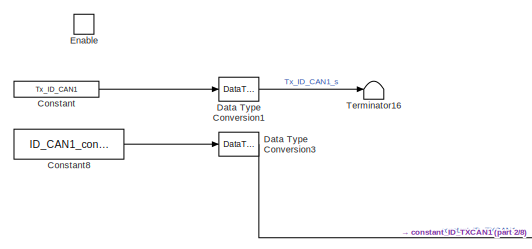
[diagram: HANcoder STM32 Target - E407-STM32 algorithm/Tx CAN - part 1/8, top left region]
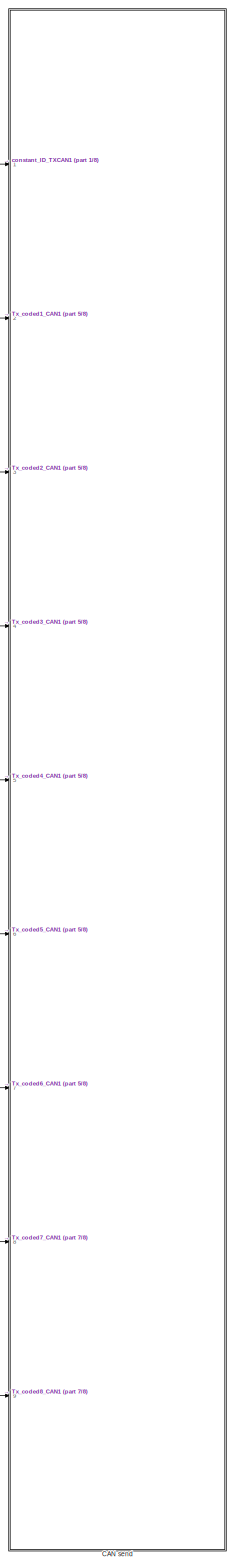
[diagram: HANcoder STM32 Target - E407-STM32 algorithm/Tx CAN - part 2/8, center side, full height]
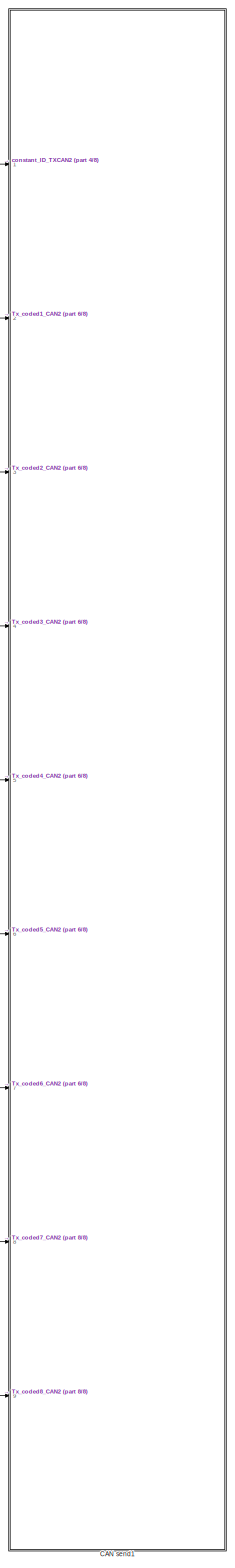
[diagram: HANcoder STM32 Target - E407-STM32 algorithm/Tx CAN - part 3/8, right side, full height]
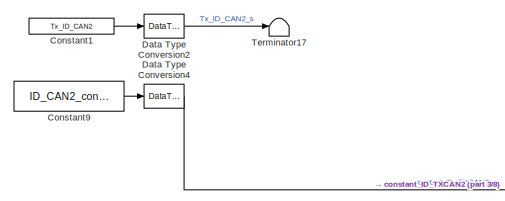
[diagram: HANcoder STM32 Target - E407-STM32 algorithm/Tx CAN - part 4/8, top right region]
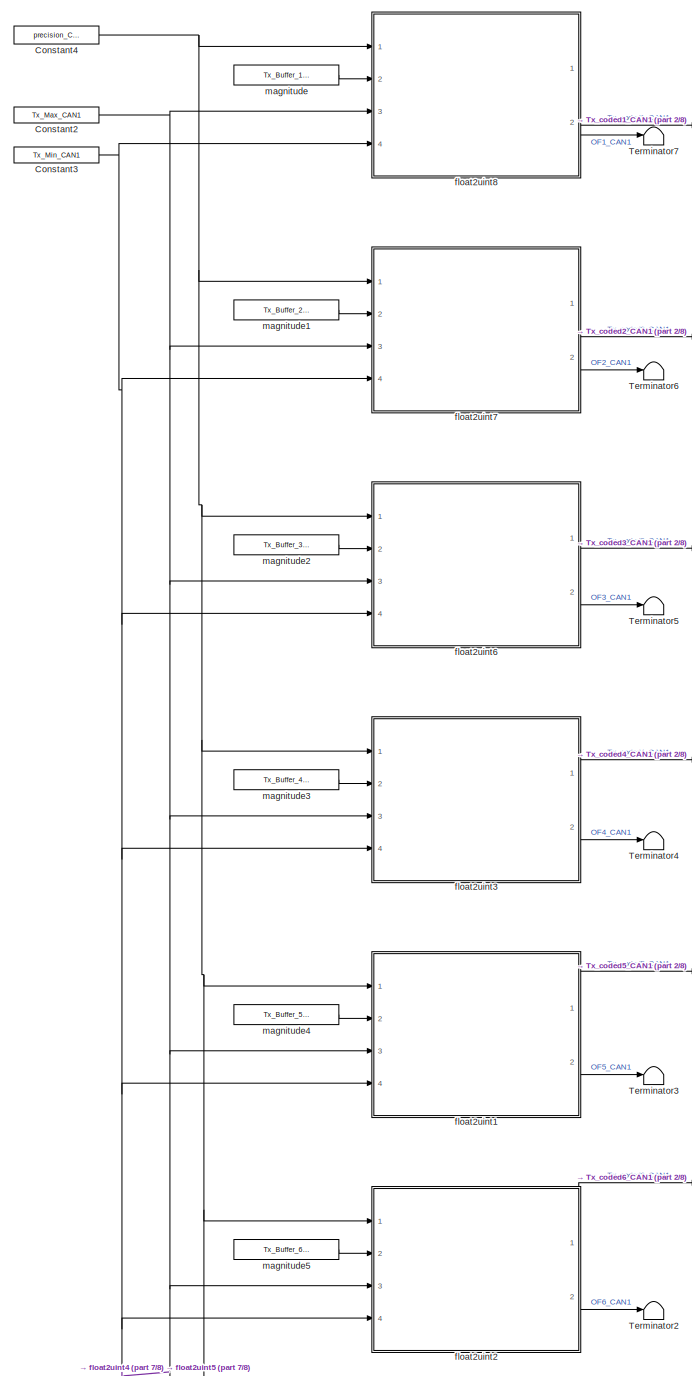
[diagram: HANcoder STM32 Target - E407-STM32 algorithm/Tx CAN - part 5/8, middle left region]
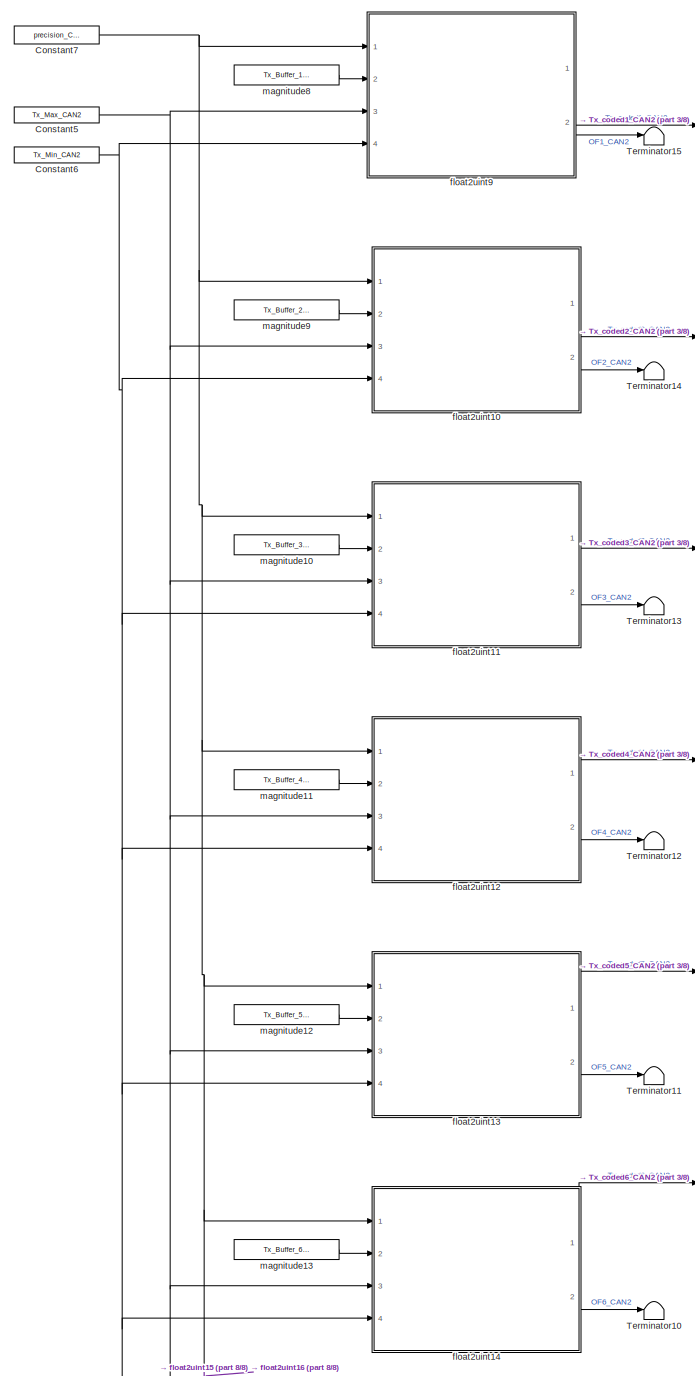
[diagram: HANcoder STM32 Target - E407-STM32 algorithm/Tx CAN - part 6/8, middle right region]
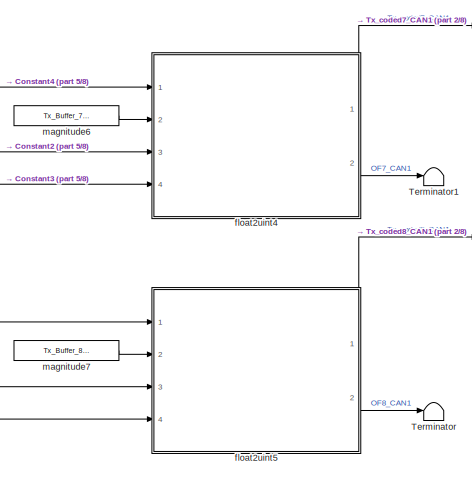
[diagram: HANcoder STM32 Target - E407-STM32 algorithm/Tx CAN - part 7/8, bottom left region]
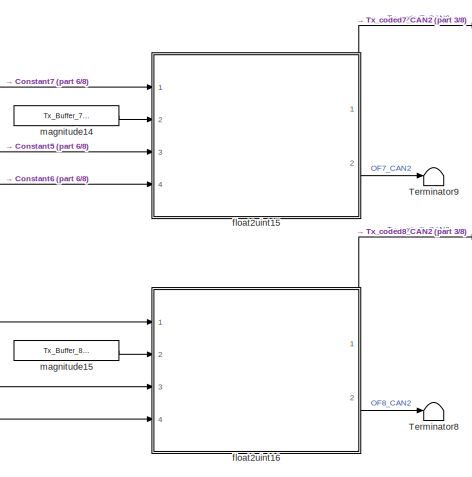
[diagram: HANcoder STM32 Target - E407-STM32 algorithm/Tx CAN - part 8/8, bottom right region]
BLOCK [SubSystem] HANcoder STM32 Target - E407-STM32 algorithm/Tx CAN
  Ports = [0, 0, 1]
  RequestExecContextInheritance = off
  TreatAsAtomicUnit = on
BLOCK [SubSystem] HANcoder STM32 Target - E407-STM32 algorithm/Tx CAN/CAN send
  AncestorBlock = HANcoder_STM32_Target/STM32-E407/CAN/CAN/CAN send
  MoveFcn = drawLogos
  Ports = [9]
  RequestExecContextInheritance = off
  Tag = HANcoder_TARGET_STM32_E407
  UserDataPersistent = on
BLOCK [Inport] HANcoder STM32 Target - E407-STM32 algorithm/Tx CAN/CAN send/In1
  IconDisplay = Port number
BLOCK [Inport] HANcoder STM32 Target - E407-STM32 algorithm/Tx CAN/CAN send/In2
  IconDisplay = Port number
  Port = 2
BLOCK [Inport] HANcoder STM32 Target - E407-STM32 algorithm/Tx CAN/CAN send/In3
  IconDisplay = Port number
  Port = 3
BLOCK [Inport] HANcoder STM32 Target - E407-STM32 algorithm/Tx CAN/CAN send/In4
  IconDisplay = Port number
  Port = 4
BLOCK [Inport] HANcoder STM32 Target - E407-STM32 algorithm/Tx CAN/CAN send/In5
  IconDisplay = Port number
  Port = 5
BLOCK [Inport] HANcoder STM32 Target - E407-STM32 algorithm/Tx CAN/CAN send/In6
  IconDisplay = Port number
  Port = 6
BLOCK [Inport] HANcoder STM32 Target - E407-STM32 algorithm/Tx CAN/CAN send/In7
  IconDisplay = Port number
  Port = 7
BLOCK [Inport] HANcoder STM32 Target - E407-STM32 algorithm/Tx CAN/CAN send/In8
  IconDisplay = Port number
  Port = 8
BLOCK [Inport] HANcoder STM32 Target - E407-STM32 algorithm/Tx CAN/CAN send/In9
  IconDisplay = Port number
  Port = 9
BLOCK [M-S-Function] HANcoder STM32 Target - E407-STM32 algorithm/Tx CAN/CAN send/S-Function
  FunctionName = sfcn_can_send
  Parameters = tsamp, canBus, frameType, inputNumber, dataType, byteOrder
  Ports = [9]
BLOCK [SubSystem] HANcoder STM32 Target - E407-STM32 algorithm/Tx CAN/CAN send1
  AncestorBlock = HANcoder_STM32_Target/STM32-E407/CAN/CAN/CAN send
  MoveFcn = drawLogos
  Ports = [9]
  RequestExecContextInheritance = off
  Tag = HANcoder_TARGET_STM32_E407
  UserDataPersistent = on
BLOCK [Inport] HANcoder STM32 Target - E407-STM32 algorithm/Tx CAN/CAN send1/In1
  IconDisplay = Port number
BLOCK [Inport] HANcoder STM32 Target - E407-STM32 algorithm/Tx CAN/CAN send1/In2
  IconDisplay = Port number
  Port = 2
BLOCK [Inport] HANcoder STM32 Target - E407-STM32 algorithm/Tx CAN/CAN send1/In3
  IconDisplay = Port number
  Port = 3
BLOCK [Inport] HANcoder STM32 Target - E407-STM32 algorithm/Tx CAN/CAN send1/In4
  IconDisplay = Port number
  Port = 4
BLOCK [Inport] HANcoder STM32 Target - E407-STM32 algorithm/Tx CAN/CAN send1/In5
  IconDisplay = Port number
  Port = 5
BLOCK [Inport] HANcoder STM32 Target - E407-STM32 algorithm/Tx CAN/CAN send1/In6
  IconDisplay = Port number
  Port = 6
BLOCK [Inport] HANcoder STM32 Target - E407-STM32 algorithm/Tx CAN/CAN send1/In7
  IconDisplay = Port number
  Port = 7
BLOCK [Inport] HANcoder STM32 Target - E407-STM32 algorithm/Tx CAN/CAN send1/In8
  IconDisplay = Port number
  Port = 8
BLOCK [Inport] HANcoder STM32 Target - E407-STM32 algorithm/Tx CAN/CAN send1/In9
  IconDisplay = Port number
  Port = 9
BLOCK [M-S-Function] HANcoder STM32 Target - E407-STM32 algorithm/Tx CAN/CAN send1/S-Function
  FunctionName = sfcn_can_send
  Parameters = tsamp, canBus, frameType, inputNumber, dataType, byteOrder
  Ports = [9]
BLOCK [Constant] HANcoder STM32 Target - E407-STM32 algorithm/Tx CAN/Constant
  Value = Tx_ID_CAN1
BLOCK [Constant] HANcoder STM32 Target - E407-STM32 algorithm/Tx CAN/Constant1
  Value = Tx_ID_CAN2
BLOCK [Constant] HANcoder STM32 Target - E407-STM32 algorithm/Tx CAN/Constant2
  Value = Tx_Max_CAN1
BLOCK [Constant] HANcoder STM32 Target - E407-STM32 algorithm/Tx CAN/Constant3
  Value = Tx_Min_CAN1
BLOCK [Constant] HANcoder STM32 Target - E407-STM32 algorithm/Tx CAN/Constant4
  Value = precision_CAN1
BLOCK [Constant] HANcoder STM32 Target - E407-STM32 algorithm/Tx CAN/Constant5
  Value = Tx_Max_CAN2
BLOCK [Constant] HANcoder STM32 Target - E407-STM32 algorithm/Tx CAN/Constant6
  Value = Tx_Min_CAN2
BLOCK [Constant] HANcoder STM32 Target - E407-STM32 algorithm/Tx CAN/Constant7
  Value = precision_CAN2
BLOCK [Constant] HANcoder STM32 Target - E407-STM32 algorithm/Tx CAN/Constant8
  Value = ID_CAN1_const
BLOCK [Constant] HANcoder STM32 Target - E407-STM32 algorithm/Tx CAN/Constant9
  Value = ID_CAN2_const
BLOCK [DataTypeConversion] HANcoder STM32 Target - E407-STM32 algorithm/Tx CAN/Data Type Conversion1
  OutDataTypeStr = uint32
  RndMeth = Floor
  SaturateOnIntegerOverflow = off
BLOCK [DataTypeConversion] HANcoder STM32 Target - E407-STM32 algorithm/Tx CAN/Data Type Conversion2
  OutDataTypeStr = uint32
  RndMeth = Floor
  SaturateOnIntegerOverflow = off
BLOCK [DataTypeConversion] HANcoder STM32 Target - E407-STM32 algorithm/Tx CAN/Data Type Conversion3
  OutDataTypeStr = uint32
  RndMeth = Floor
  SaturateOnIntegerOverflow = off
BLOCK [DataTypeConversion] HANcoder STM32 Target - E407-STM32 algorithm/Tx CAN/Data Type Conversion4
  OutDataTypeStr = uint32
  RndMeth = Floor
  SaturateOnIntegerOverflow = off
BLOCK [EnablePort] HANcoder STM32 Target - E407-STM32 algorithm/Tx CAN/Enable
  Ports = []
BLOCK [Terminator] HANcoder STM32 Target - E407-STM32 algorithm/Tx CAN/Terminator
BLOCK [Terminator] HANcoder STM32 Target - E407-STM32 algorithm/Tx CAN/Terminator1
BLOCK [Terminator] HANcoder STM32 Target - E407-STM32 algorithm/Tx CAN/Terminator10
BLOCK [Terminator] HANcoder STM32 Target - E407-STM32 algorithm/Tx CAN/Terminator11
BLOCK [Terminator] HANcoder STM32 Target - E407-STM32 algorithm/Tx CAN/Terminator12
BLOCK [Terminator] HANcoder STM32 Target - E407-STM32 algorithm/Tx CAN/Terminator13
BLOCK [Terminator] HANcoder STM32 Target - E407-STM32 algorithm/Tx CAN/Terminator14
BLOCK [Terminator] HANcoder STM32 Target - E407-STM32 algorithm/Tx CAN/Terminator15
BLOCK [Terminator] HANcoder STM32 Target - E407-STM32 algorithm/Tx CAN/Terminator16
BLOCK [Terminator] HANcoder STM32 Target - E407-STM32 algorithm/Tx CAN/Terminator17
BLOCK [Terminator] HANcoder STM32 Target - E407-STM32 algorithm/Tx CAN/Terminator2
BLOCK [Terminator] HANcoder STM32 Target - E407-STM32 algorithm/Tx CAN/Terminator3
BLOCK [Terminator] HANcoder STM32 Target - E407-STM32 algorithm/Tx CAN/Terminator4
BLOCK [Terminator] HANcoder STM32 Target - E407-STM32 algorithm/Tx CAN/Terminator5
BLOCK [Terminator] HANcoder STM32 Target - E407-STM32 algorithm/Tx CAN/Terminator6
BLOCK [Terminator] HANcoder STM32 Target - E407-STM32 algorithm/Tx CAN/Terminator7
BLOCK [Terminator] HANcoder STM32 Target - E407-STM32 algorithm/Tx CAN/Terminator8
BLOCK [Terminator] HANcoder STM32 Target - E407-STM32 algorithm/Tx CAN/Terminator9
BLOCK [SubSystem] HANcoder STM32 Target - E407-STM32 algorithm/Tx CAN/float2uint1
  Ports = [4, 2]
  RequestExecContextInheritance = off
BLOCK [Abs] HANcoder STM32 Target - E407-STM32 algorithm/Tx CAN/float2uint1/Abs
  SaturateOnIntegerOverflow = off
BLOCK [Reference] HANcoder STM32 Target - E407-STM32 algorithm/Tx CAN/float2uint1/Bit Shift  REF=hdlsllib/Logic and Bit
Operations/Bit Shift
  Ports = [1, 1]
  SourceBlock = hdlsllib/Logic and Bit\nOperations/Bit Shift
  SourceProductBaseCode = HD
  SourceProductName = HDL Coder
  SourceType = Bit Shift
BLOCK [DataTypeConversion] HANcoder STM32 Target - E407-STM32 algorithm/Tx CAN/float2uint1/Cast
  OutDataTypeStr = uint8
  RndMeth = Floor
  SaturateOnIntegerOverflow = off
BLOCK [DataTypeConversion] HANcoder STM32 Target - E407-STM32 algorithm/Tx CAN/float2uint1/Cast1
  OutDataTypeStr = uint8
  RndMeth = Floor
  SaturateOnIntegerOverflow = off
BLOCK [DataTypeConversion] HANcoder STM32 Target - E407-STM32 algorithm/Tx CAN/float2uint1/Cast2
  OutDataTypeStr = uint8
  RndMeth = Floor
  SaturateOnIntegerOverflow = off
BLOCK [Constant] HANcoder STM32 Target - E407-STM32 algorithm/Tx CAN/float2uint1/Constant
  Value = 0
BLOCK [Constant] HANcoder STM32 Target - E407-STM32 algorithm/Tx CAN/float2uint1/Constant1
  Value = 2
BLOCK [Constant] HANcoder STM32 Target - E407-STM32 algorithm/Tx CAN/float2uint1/Constant2
  Value = 2
BLOCK [Constant] HANcoder STM32 Target - E407-STM32 algorithm/Tx CAN/float2uint1/Constant3
  Value = 7
BLOCK [Constant] HANcoder STM32 Target - E407-STM32 algorithm/Tx CAN/float2uint1/Constant4
  Value = 2
BLOCK [Display] HANcoder STM32 Target - E407-STM32 algorithm/Tx CAN/float2uint1/Display
  Decimation = 1
  Ports = [1]
BLOCK [Display] HANcoder STM32 Target - E407-STM32 algorithm/Tx CAN/float2uint1/Display1
  Decimation = 1
  Ports = [1]
BLOCK [Display] HANcoder STM32 Target - E407-STM32 algorithm/Tx CAN/float2uint1/Display2
  Decimation = 1
  Ports = [1]
BLOCK [Display] HANcoder STM32 Target - E407-STM32 algorithm/Tx CAN/float2uint1/Display3
  Decimation = 1
  Ports = [1]
BLOCK [Display] HANcoder STM32 Target - E407-STM32 algorithm/Tx CAN/float2uint1/Display4
  Decimation = 1
  Ports = [1]
BLOCK [Display] HANcoder STM32 Target - E407-STM32 algorithm/Tx CAN/float2uint1/Display5
  Decimation = 1
  Ports = [1]
BLOCK [Display] HANcoder STM32 Target - E407-STM32 algorithm/Tx CAN/float2uint1/Display6
  Decimation = 1
  Ports = [1]
BLOCK [Product] HANcoder STM32 Target - E407-STM32 algorithm/Tx CAN/float2uint1/Divide
  InputSameDT = off
  Inputs = */
  OutDataTypeStr = Inherit: Inherit via internal rule
  Ports = [2, 1]
  RndMeth = Floor
  SaturateOnIntegerOverflow = off
BLOCK [Rounding] HANcoder STM32 Target - E407-STM32 algorithm/Tx CAN/float2uint1/Fix
  Operator = fix
  Priority = 3
BLOCK [Rounding] HANcoder STM32 Target - E407-STM32 algorithm/Tx CAN/float2uint1/Fix1
  Operator = fix
  Priority = 6
BLOCK [From] HANcoder STM32 Target - E407-STM32 algorithm/Tx CAN/float2uint1/From
  GotoTag = prec
BLOCK [From] HANcoder STM32 Target - E407-STM32 algorithm/Tx CAN/float2uint1/From1
  GotoTag = integer
BLOCK [Gain] HANcoder STM32 Target - E407-STM32 algorithm/Tx CAN/float2uint1/Gain
  Gain = -1
  OutDataTypeStr = Inherit: Inherit via internal rule
  ParamDataTypeStr = Inherit: Inherit via internal rule
  SaturateOnIntegerOverflow = off
BLOCK [Goto] HANcoder STM32 Target - E407-STM32 algorithm/Tx CAN/float2uint1/Goto
  GotoTag = prec
BLOCK [Goto] HANcoder STM32 Target - E407-STM32 algorithm/Tx CAN/float2uint1/Goto1
  GotoTag = integer
BLOCK [RelationalOperator] HANcoder STM32 Target - E407-STM32 algorithm/Tx CAN/float2uint1/GreaterThan
  InputSameDT = off
  Operator = <
  OutDataTypeStr = boolean
  Ports = [2, 1]
  Priority = 2
  RndMeth = Simplest
BLOCK [RelationalOperator] HANcoder STM32 Target - E407-STM32 algorithm/Tx CAN/float2uint1/LessThanOrEqual
  InputSameDT = off
  OutDataTypeStr = boolean
  Ports = [2, 1]
  RndMeth = Simplest
BLOCK [RelationalOperator] HANcoder STM32 Target - E407-STM32 algorithm/Tx CAN/float2uint1/LessThanOrEqual1
  InputSameDT = off
  OutDataTypeStr = boolean
  Ports = [2, 1]
  RndMeth = Simplest
BLOCK [RelationalOperator] HANcoder STM32 Target - E407-STM32 algorithm/Tx CAN/float2uint1/LessThanOrEqual2
  InputSameDT = off
  Operator = <
  OutDataTypeStr = boolean
  Ports = [2, 1]
  RndMeth = Simplest
BLOCK [Sum] HANcoder STM32 Target - E407-STM32 algorithm/Tx CAN/float2uint1/Minus
  InputSameDT = off
  Inputs = -+
  OutDataTypeStr = Inherit: Inherit via internal rule
  Ports = [2, 1]
  Priority = 4
  SaturateOnIntegerOverflow = off
BLOCK [Sum] HANcoder STM32 Target - E407-STM32 algorithm/Tx CAN/float2uint1/Minus1
  InputSameDT = off
  Inputs = -+
  OutDataTypeStr = Inherit: Inherit via internal rule
  Ports = [2, 1]
  Priority = 4
  SaturateOnIntegerOverflow = off
BLOCK [Product] HANcoder STM32 Target - E407-STM32 algorithm/Tx CAN/float2uint1/Multiply
  InputSameDT = off
  OutDataTypeStr = Inherit: Inherit via internal rule
  Ports = [2, 1]
  RndMeth = Floor
  SaturateOnIntegerOverflow = off
BLOCK [Outport] HANcoder STM32 Target - E407-STM32 algorithm/Tx CAN/float2uint1/Overflow
  IconDisplay = Port number
  Port = 2
BLOCK [Sum] HANcoder STM32 Target - E407-STM32 algorithm/Tx CAN/float2uint1/Plus
  InputSameDT = off
  Inputs = +++
  OutDataTypeStr = Inherit: Inherit via internal rule
  Ports = [3, 1]
  Priority = 10
  SaturateOnIntegerOverflow = off
BLOCK [Math] HANcoder STM32 Target - E407-STM32 algorithm/Tx CAN/float2uint1/Power
  Operator = pow
  Ports = [2, 1]
  Priority = 5
BLOCK [Math] HANcoder STM32 Target - E407-STM32 algorithm/Tx CAN/float2uint1/Power1
  Operator = pow
  Ports = [2, 1]
  Priority = 5
BLOCK [Math] HANcoder STM32 Target - E407-STM32 algorithm/Tx CAN/float2uint1/Power2
  Operator = pow
  Ports = [2, 1]
  Priority = 5
BLOCK [Switch] HANcoder STM32 Target - E407-STM32 algorithm/Tx CAN/float2uint1/Switch
  Criteria = u2 > Threshold
  InputSameDT = off
  SaturateOnIntegerOverflow = off
BLOCK [Switch] HANcoder STM32 Target - E407-STM32 algorithm/Tx CAN/float2uint1/Switch1
  Criteria = u2 > Threshold
  InputSameDT = off
  SaturateOnIntegerOverflow = off
BLOCK [Switch] HANcoder STM32 Target - E407-STM32 algorithm/Tx CAN/float2uint1/Switch2
  Criteria = u2 > Threshold
  InputSameDT = off
  SaturateOnIntegerOverflow = off
BLOCK [Outport] HANcoder STM32 Target - E407-STM32 algorithm/Tx CAN/float2uint1/coded
  IconDisplay = Port number
BLOCK [Inport] HANcoder STM32 Target - E407-STM32 algorithm/Tx CAN/float2uint1/magnitude
  IconDisplay = Port number
  Port = 2
BLOCK [Inport] HANcoder STM32 Target - E407-STM32 algorithm/Tx CAN/float2uint1/magnitude_max
  IconDisplay = Port number
  Port = 3
BLOCK [Inport] HANcoder STM32 Target - E407-STM32 algorithm/Tx CAN/float2uint1/magnitude_min
  IconDisplay = Port number
  Port = 4
BLOCK [Inport] HANcoder STM32 Target - E407-STM32 algorithm/Tx CAN/float2uint1/precision
  IconDisplay = Port number
BLOCK [SubSystem] HANcoder STM32 Target - E407-STM32 algorithm/Tx CAN/float2uint10
  Ports = [4, 2]
  RequestExecContextInheritance = off
BLOCK [Abs] HANcoder STM32 Target - E407-STM32 algorithm/Tx CAN/float2uint10/Abs
  SaturateOnIntegerOverflow = off
BLOCK [Reference] HANcoder STM32 Target - E407-STM32 algorithm/Tx CAN/float2uint10/Bit Shift  REF=hdlsllib/Logic and Bit
Operations/Bit Shift
  Ports = [1, 1]
  SourceBlock = hdlsllib/Logic and Bit\nOperations/Bit Shift
  SourceProductBaseCode = HD
  SourceProductName = HDL Coder
  SourceType = Bit Shift
BLOCK [DataTypeConversion] HANcoder STM32 Target - E407-STM32 algorithm/Tx CAN/float2uint10/Cast
  OutDataTypeStr = uint8
  RndMeth = Floor
  SaturateOnIntegerOverflow = off
BLOCK [DataTypeConversion] HANcoder STM32 Target - E407-STM32 algorithm/Tx CAN/float2uint10/Cast1
  OutDataTypeStr = uint8
  RndMeth = Floor
  SaturateOnIntegerOverflow = off
BLOCK [DataTypeConversion] HANcoder STM32 Target - E407-STM32 algorithm/Tx CAN/float2uint10/Cast2
  OutDataTypeStr = uint8
  RndMeth = Floor
  SaturateOnIntegerOverflow = off
BLOCK [Constant] HANcoder STM32 Target - E407-STM32 algorithm/Tx CAN/float2uint10/Constant
  Value = 0
BLOCK [Constant] HANcoder STM32 Target - E407-STM32 algorithm/Tx CAN/float2uint10/Constant1
  Value = 2
BLOCK [Constant] HANcoder STM32 Target - E407-STM32 algorithm/Tx CAN/float2uint10/Constant2
  Value = 2
BLOCK [Constant] HANcoder STM32 Target - E407-STM32 algorithm/Tx CAN/float2uint10/Constant3
  Value = 7
BLOCK [Constant] HANcoder STM32 Target - E407-STM32 algorithm/Tx CAN/float2uint10/Constant4
  Value = 2
BLOCK [Display] HANcoder STM32 Target - E407-STM32 algorithm/Tx CAN/float2uint10/Display
  Decimation = 1
  Ports = [1]
BLOCK [Display] HANcoder STM32 Target - E407-STM32 algorithm/Tx CAN/float2uint10/Display1
  Decimation = 1
  Ports = [1]
BLOCK [Display] HANcoder STM32 Target - E407-STM32 algorithm/Tx CAN/float2uint10/Display2
  Decimation = 1
  Ports = [1]
BLOCK [Display] HANcoder STM32 Target - E407-STM32 algorithm/Tx CAN/float2uint10/Display3
  Decimation = 1
  Ports = [1]
BLOCK [Display] HANcoder STM32 Target - E407-STM32 algorithm/Tx CAN/float2uint10/Display4
  Decimation = 1
  Ports = [1]
BLOCK [Display] HANcoder STM32 Target - E407-STM32 algorithm/Tx CAN/float2uint10/Display5
  Decimation = 1
  Ports = [1]
BLOCK [Display] HANcoder STM32 Target - E407-STM32 algorithm/Tx CAN/float2uint10/Display6
  Decimation = 1
  Ports = [1]
BLOCK [Product] HANcoder STM32 Target - E407-STM32 algorithm/Tx CAN/float2uint10/Divide
  InputSameDT = off
  Inputs = */
  OutDataTypeStr = Inherit: Inherit via internal rule
  Ports = [2, 1]
  RndMeth = Floor
  SaturateOnIntegerOverflow = off
BLOCK [Rounding] HANcoder STM32 Target - E407-STM32 algorithm/Tx CAN/float2uint10/Fix
  Operator = fix
  Priority = 3
BLOCK [Rounding] HANcoder STM32 Target - E407-STM32 algorithm/Tx CAN/float2uint10/Fix1
  Operator = fix
  Priority = 6
BLOCK [From] HANcoder STM32 Target - E407-STM32 algorithm/Tx CAN/float2uint10/From
  GotoTag = prec
BLOCK [From] HANcoder STM32 Target - E407-STM32 algorithm/Tx CAN/float2uint10/From1
  GotoTag = integer
BLOCK [Gain] HANcoder STM32 Target - E407-STM32 algorithm/Tx CAN/float2uint10/Gain
  Gain = -1
  OutDataTypeStr = Inherit: Inherit via internal rule
  ParamDataTypeStr = Inherit: Inherit via internal rule
  SaturateOnIntegerOverflow = off
BLOCK [Goto] HANcoder STM32 Target - E407-STM32 algorithm/Tx CAN/float2uint10/Goto
  GotoTag = prec
BLOCK [Goto] HANcoder STM32 Target - E407-STM32 algorithm/Tx CAN/float2uint10/Goto1
  GotoTag = integer
BLOCK [RelationalOperator] HANcoder STM32 Target - E407-STM32 algorithm/Tx CAN/float2uint10/GreaterThan
  InputSameDT = off
  Operator = <
  OutDataTypeStr = boolean
  Ports = [2, 1]
  Priority = 2
  RndMeth = Simplest
BLOCK [RelationalOperator] HANcoder STM32 Target - E407-STM32 algorithm/Tx CAN/float2uint10/LessThanOrEqual
  InputSameDT = off
  OutDataTypeStr = boolean
  Ports = [2, 1]
  RndMeth = Simplest
BLOCK [RelationalOperator] HANcoder STM32 Target - E407-STM32 algorithm/Tx CAN/float2uint10/LessThanOrEqual1
  InputSameDT = off
  OutDataTypeStr = boolean
  Ports = [2, 1]
  RndMeth = Simplest
BLOCK [RelationalOperator] HANcoder STM32 Target - E407-STM32 algorithm/Tx CAN/float2uint10/LessThanOrEqual2
  InputSameDT = off
  Operator = <
  OutDataTypeStr = boolean
  Ports = [2, 1]
  RndMeth = Simplest
BLOCK [Sum] HANcoder STM32 Target - E407-STM32 algorithm/Tx CAN/float2uint10/Minus
  InputSameDT = off
  Inputs = -+
  OutDataTypeStr = Inherit: Inherit via internal rule
  Ports = [2, 1]
  Priority = 4
  SaturateOnIntegerOverflow = off
BLOCK [Sum] HANcoder STM32 Target - E407-STM32 algorithm/Tx CAN/float2uint10/Minus1
  InputSameDT = off
  Inputs = -+
  OutDataTypeStr = Inherit: Inherit via internal rule
  Ports = [2, 1]
  Priority = 4
  SaturateOnIntegerOverflow = off
BLOCK [Product] HANcoder STM32 Target - E407-STM32 algorithm/Tx CAN/float2uint10/Multiply
  InputSameDT = off
  OutDataTypeStr = Inherit: Inherit via internal rule
  Ports = [2, 1]
  RndMeth = Floor
  SaturateOnIntegerOverflow = off
BLOCK [Outport] HANcoder STM32 Target - E407-STM32 algorithm/Tx CAN/float2uint10/Overflow
  IconDisplay = Port number
  Port = 2
BLOCK [Sum] HANcoder STM32 Target - E407-STM32 algorithm/Tx CAN/float2uint10/Plus
  InputSameDT = off
  Inputs = +++
  OutDataTypeStr = Inherit: Inherit via internal rule
  Ports = [3, 1]
  Priority = 10
  SaturateOnIntegerOverflow = off
BLOCK [Math] HANcoder STM32 Target - E407-STM32 algorithm/Tx CAN/float2uint10/Power
  Operator = pow
  Ports = [2, 1]
  Priority = 5
BLOCK [Math] HANcoder STM32 Target - E407-STM32 algorithm/Tx CAN/float2uint10/Power1
  Operator = pow
  Ports = [2, 1]
  Priority = 5
BLOCK [Math] HANcoder STM32 Target - E407-STM32 algorithm/Tx CAN/float2uint10/Power2
  Operator = pow
  Ports = [2, 1]
  Priority = 5
BLOCK [Switch] HANcoder STM32 Target - E407-STM32 algorithm/Tx CAN/float2uint10/Switch
  Criteria = u2 > Threshold
  InputSameDT = off
  SaturateOnIntegerOverflow = off
BLOCK [Switch] HANcoder STM32 Target - E407-STM32 algorithm/Tx CAN/float2uint10/Switch1
  Criteria = u2 > Threshold
  InputSameDT = off
  SaturateOnIntegerOverflow = off
BLOCK [Switch] HANcoder STM32 Target - E407-STM32 algorithm/Tx CAN/float2uint10/Switch2
  Criteria = u2 > Threshold
  InputSameDT = off
  SaturateOnIntegerOverflow = off
BLOCK [Outport] HANcoder STM32 Target - E407-STM32 algorithm/Tx CAN/float2uint10/coded
  IconDisplay = Port number
BLOCK [Inport] HANcoder STM32 Target - E407-STM32 algorithm/Tx CAN/float2uint10/magnitude
  IconDisplay = Port number
  Port = 2
BLOCK [Inport] HANcoder STM32 Target - E407-STM32 algorithm/Tx CAN/float2uint10/magnitude_max
  IconDisplay = Port number
  Port = 3
BLOCK [Inport] HANcoder STM32 Target - E407-STM32 algorithm/Tx CAN/float2uint10/magnitude_min
  IconDisplay = Port number
  Port = 4
BLOCK [Inport] HANcoder STM32 Target - E407-STM32 algorithm/Tx CAN/float2uint10/precision
  IconDisplay = Port number
BLOCK [SubSystem] HANcoder STM32 Target - E407-STM32 algorithm/Tx CAN/float2uint11
  Ports = [4, 2]
  RequestExecContextInheritance = off
BLOCK [Abs] HANcoder STM32 Target - E407-STM32 algorithm/Tx CAN/float2uint11/Abs
  SaturateOnIntegerOverflow = off
BLOCK [Reference] HANcoder STM32 Target - E407-STM32 algorithm/Tx CAN/float2uint11/Bit Shift  REF=hdlsllib/Logic and Bit
Operations/Bit Shift
  Ports = [1, 1]
  SourceBlock = hdlsllib/Logic and Bit\nOperations/Bit Shift
  SourceProductBaseCode = HD
  SourceProductName = HDL Coder
  SourceType = Bit Shift
BLOCK [DataTypeConversion] HANcoder STM32 Target - E407-STM32 algorithm/Tx CAN/float2uint11/Cast
  OutDataTypeStr = uint8
  RndMeth = Floor
  SaturateOnIntegerOverflow = off
BLOCK [DataTypeConversion] HANcoder STM32 Target - E407-STM32 algorithm/Tx CAN/float2uint11/Cast1
  OutDataTypeStr = uint8
  RndMeth = Floor
  SaturateOnIntegerOverflow = off
BLOCK [DataTypeConversion] HANcoder STM32 Target - E407-STM32 algorithm/Tx CAN/float2uint11/Cast2
  OutDataTypeStr = uint8
  RndMeth = Floor
  SaturateOnIntegerOverflow = off
BLOCK [Constant] HANcoder STM32 Target - E407-STM32 algorithm/Tx CAN/float2uint11/Constant
  Value = 0
BLOCK [Constant] HANcoder STM32 Target - E407-STM32 algorithm/Tx CAN/float2uint11/Constant1
  Value = 2
BLOCK [Constant] HANcoder STM32 Target - E407-STM32 algorithm/Tx CAN/float2uint11/Constant2
  Value = 2
BLOCK [Constant] HANcoder STM32 Target - E407-STM32 algorithm/Tx CAN/float2uint11/Constant3
  Value = 7
BLOCK [Constant] HANcoder STM32 Target - E407-STM32 algorithm/Tx CAN/float2uint11/Constant4
  Value = 2
BLOCK [Display] HANcoder STM32 Target - E407-STM32 algorithm/Tx CAN/float2uint11/Display
  Decimation = 1
  Ports = [1]
BLOCK [Display] HANcoder STM32 Target - E407-STM32 algorithm/Tx CAN/float2uint11/Display1
  Decimation = 1
  Ports = [1]
BLOCK [Display] HANcoder STM32 Target - E407-STM32 algorithm/Tx CAN/float2uint11/Display2
  Decimation = 1
  Ports = [1]
BLOCK [Display] HANcoder STM32 Target - E407-STM32 algorithm/Tx CAN/float2uint11/Display3
  Decimation = 1
  Ports = [1]
BLOCK [Display] HANcoder STM32 Target - E407-STM32 algorithm/Tx CAN/float2uint11/Display4
  Decimation = 1
  Ports = [1]
BLOCK [Display] HANcoder STM32 Target - E407-STM32 algorithm/Tx CAN/float2uint11/Display5
  Decimation = 1
  Ports = [1]
BLOCK [Display] HANcoder STM32 Target - E407-STM32 algorithm/Tx CAN/float2uint11/Display6
  Decimation = 1
  Ports = [1]
BLOCK [Product] HANcoder STM32 Target - E407-STM32 algorithm/Tx CAN/float2uint11/Divide
  InputSameDT = off
  Inputs = */
  OutDataTypeStr = Inherit: Inherit via internal rule
  Ports = [2, 1]
  RndMeth = Floor
  SaturateOnIntegerOverflow = off
BLOCK [Rounding] HANcoder STM32 Target - E407-STM32 algorithm/Tx CAN/float2uint11/Fix
  Operator = fix
  Priority = 3
BLOCK [Rounding] HANcoder STM32 Target - E407-STM32 algorithm/Tx CAN/float2uint11/Fix1
  Operator = fix
  Priority = 6
BLOCK [From] HANcoder STM32 Target - E407-STM32 algorithm/Tx CAN/float2uint11/From
  GotoTag = prec
BLOCK [From] HANcoder STM32 Target - E407-STM32 algorithm/Tx CAN/float2uint11/From1
  GotoTag = integer
BLOCK [Gain] HANcoder STM32 Target - E407-STM32 algorithm/Tx CAN/float2uint11/Gain
  Gain = -1
  OutDataTypeStr = Inherit: Inherit via internal rule
  ParamDataTypeStr = Inherit: Inherit via internal rule
  SaturateOnIntegerOverflow = off
BLOCK [Goto] HANcoder STM32 Target - E407-STM32 algorithm/Tx CAN/float2uint11/Goto
  GotoTag = prec
BLOCK [Goto] HANcoder STM32 Target - E407-STM32 algorithm/Tx CAN/float2uint11/Goto1
  GotoTag = integer
BLOCK [RelationalOperator] HANcoder STM32 Target - E407-STM32 algorithm/Tx CAN/float2uint11/GreaterThan
  InputSameDT = off
  Operator = <
  OutDataTypeStr = boolean
  Ports = [2, 1]
  Priority = 2
  RndMeth = Simplest
BLOCK [RelationalOperator] HANcoder STM32 Target - E407-STM32 algorithm/Tx CAN/float2uint11/LessThanOrEqual
  InputSameDT = off
  OutDataTypeStr = boolean
  Ports = [2, 1]
  RndMeth = Simplest
BLOCK [RelationalOperator] HANcoder STM32 Target - E407-STM32 algorithm/Tx CAN/float2uint11/LessThanOrEqual1
  InputSameDT = off
  OutDataTypeStr = boolean
  Ports = [2, 1]
  RndMeth = Simplest
BLOCK [RelationalOperator] HANcoder STM32 Target - E407-STM32 algorithm/Tx CAN/float2uint11/LessThanOrEqual2
  InputSameDT = off
  Operator = <
  OutDataTypeStr = boolean
  Ports = [2, 1]
  RndMeth = Simplest
BLOCK [Sum] HANcoder STM32 Target - E407-STM32 algorithm/Tx CAN/float2uint11/Minus
  InputSameDT = off
  Inputs = -+
  OutDataTypeStr = Inherit: Inherit via internal rule
  Ports = [2, 1]
  Priority = 4
  SaturateOnIntegerOverflow = off
BLOCK [Sum] HANcoder STM32 Target - E407-STM32 algorithm/Tx CAN/float2uint11/Minus1
  InputSameDT = off
  Inputs = -+
  OutDataTypeStr = Inherit: Inherit via internal rule
  Ports = [2, 1]
  Priority = 4
  SaturateOnIntegerOverflow = off
BLOCK [Product] HANcoder STM32 Target - E407-STM32 algorithm/Tx CAN/float2uint11/Multiply
  InputSameDT = off
  OutDataTypeStr = Inherit: Inherit via internal rule
  Ports = [2, 1]
  RndMeth = Floor
  SaturateOnIntegerOverflow = off
BLOCK [Outport] HANcoder STM32 Target - E407-STM32 algorithm/Tx CAN/float2uint11/Overflow
  IconDisplay = Port number
  Port = 2
BLOCK [Sum] HANcoder STM32 Target - E407-STM32 algorithm/Tx CAN/float2uint11/Plus
  InputSameDT = off
  Inputs = +++
  OutDataTypeStr = Inherit: Inherit via internal rule
  Ports = [3, 1]
  Priority = 10
  SaturateOnIntegerOverflow = off
BLOCK [Math] HANcoder STM32 Target - E407-STM32 algorithm/Tx CAN/float2uint11/Power
  Operator = pow
  Ports = [2, 1]
  Priority = 5
BLOCK [Math] HANcoder STM32 Target - E407-STM32 algorithm/Tx CAN/float2uint11/Power1
  Operator = pow
  Ports = [2, 1]
  Priority = 5
BLOCK [Math] HANcoder STM32 Target - E407-STM32 algorithm/Tx CAN/float2uint11/Power2
  Operator = pow
  Ports = [2, 1]
  Priority = 5
BLOCK [Switch] HANcoder STM32 Target - E407-STM32 algorithm/Tx CAN/float2uint11/Switch
  Criteria = u2 > Threshold
  InputSameDT = off
  SaturateOnIntegerOverflow = off
BLOCK [Switch] HANcoder STM32 Target - E407-STM32 algorithm/Tx CAN/float2uint11/Switch1
  Criteria = u2 > Threshold
  InputSameDT = off
  SaturateOnIntegerOverflow = off
BLOCK [Switch] HANcoder STM32 Target - E407-STM32 algorithm/Tx CAN/float2uint11/Switch2
  Criteria = u2 > Threshold
  InputSameDT = off
  SaturateOnIntegerOverflow = off
BLOCK [Outport] HANcoder STM32 Target - E407-STM32 algorithm/Tx CAN/float2uint11/coded
  IconDisplay = Port number
BLOCK [Inport] HANcoder STM32 Target - E407-STM32 algorithm/Tx CAN/float2uint11/magnitude
  IconDisplay = Port number
  Port = 2
BLOCK [Inport] HANcoder STM32 Target - E407-STM32 algorithm/Tx CAN/float2uint11/magnitude_max
  IconDisplay = Port number
  Port = 3
BLOCK [Inport] HANcoder STM32 Target - E407-STM32 algorithm/Tx CAN/float2uint11/magnitude_min
  IconDisplay = Port number
  Port = 4
BLOCK [Inport] HANcoder STM32 Target - E407-STM32 algorithm/Tx CAN/float2uint11/precision
  IconDisplay = Port number
BLOCK [SubSystem] HANcoder STM32 Target - E407-STM32 algorithm/Tx CAN/float2uint12
  Ports = [4, 2]
  RequestExecContextInheritance = off
BLOCK [Abs] HANcoder STM32 Target - E407-STM32 algorithm/Tx CAN/float2uint12/Abs
  SaturateOnIntegerOverflow = off
BLOCK [Reference] HANcoder STM32 Target - E407-STM32 algorithm/Tx CAN/float2uint12/Bit Shift  REF=hdlsllib/Logic and Bit
Operations/Bit Shift
  Ports = [1, 1]
  SourceBlock = hdlsllib/Logic and Bit\nOperations/Bit Shift
  SourceProductBaseCode = HD
  SourceProductName = HDL Coder
  SourceType = Bit Shift
BLOCK [DataTypeConversion] HANcoder STM32 Target - E407-STM32 algorithm/Tx CAN/float2uint12/Cast
  OutDataTypeStr = uint8
  RndMeth = Floor
  SaturateOnIntegerOverflow = off
BLOCK [DataTypeConversion] HANcoder STM32 Target - E407-STM32 algorithm/Tx CAN/float2uint12/Cast1
  OutDataTypeStr = uint8
  RndMeth = Floor
  SaturateOnIntegerOverflow = off
BLOCK [DataTypeConversion] HANcoder STM32 Target - E407-STM32 algorithm/Tx CAN/float2uint12/Cast2
  OutDataTypeStr = uint8
  RndMeth = Floor
  SaturateOnIntegerOverflow = off
BLOCK [Constant] HANcoder STM32 Target - E407-STM32 algorithm/Tx CAN/float2uint12/Constant
  Value = 0
BLOCK [Constant] HANcoder STM32 Target - E407-STM32 algorithm/Tx CAN/float2uint12/Constant1
  Value = 2
BLOCK [Constant] HANcoder STM32 Target - E407-STM32 algorithm/Tx CAN/float2uint12/Constant2
  Value = 2
BLOCK [Constant] HANcoder STM32 Target - E407-STM32 algorithm/Tx CAN/float2uint12/Constant3
  Value = 7
BLOCK [Constant] HANcoder STM32 Target - E407-STM32 algorithm/Tx CAN/float2uint12/Constant4
  Value = 2
BLOCK [Display] HANcoder STM32 Target - E407-STM32 algorithm/Tx CAN/float2uint12/Display
  Decimation = 1
  Ports = [1]
BLOCK [Display] HANcoder STM32 Target - E407-STM32 algorithm/Tx CAN/float2uint12/Display1
  Decimation = 1
  Ports = [1]
BLOCK [Display] HANcoder STM32 Target - E407-STM32 algorithm/Tx CAN/float2uint12/Display2
  Decimation = 1
  Ports = [1]
BLOCK [Display] HANcoder STM32 Target - E407-STM32 algorithm/Tx CAN/float2uint12/Display3
  Decimation = 1
  Ports = [1]
BLOCK [Display] HANcoder STM32 Target - E407-STM32 algorithm/Tx CAN/float2uint12/Display4
  Decimation = 1
  Ports = [1]
BLOCK [Display] HANcoder STM32 Target - E407-STM32 algorithm/Tx CAN/float2uint12/Display5
  Decimation = 1
  Ports = [1]
BLOCK [Display] HANcoder STM32 Target - E407-STM32 algorithm/Tx CAN/float2uint12/Display6
  Decimation = 1
  Ports = [1]
BLOCK [Product] HANcoder STM32 Target - E407-STM32 algorithm/Tx CAN/float2uint12/Divide
  InputSameDT = off
  Inputs = */
  OutDataTypeStr = Inherit: Inherit via internal rule
  Ports = [2, 1]
  RndMeth = Floor
  SaturateOnIntegerOverflow = off
BLOCK [Rounding] HANcoder STM32 Target - E407-STM32 algorithm/Tx CAN/float2uint12/Fix
  Operator = fix
  Priority = 3
BLOCK [Rounding] HANcoder STM32 Target - E407-STM32 algorithm/Tx CAN/float2uint12/Fix1
  Operator = fix
  Priority = 6
BLOCK [From] HANcoder STM32 Target - E407-STM32 algorithm/Tx CAN/float2uint12/From
  GotoTag = prec
BLOCK [From] HANcoder STM32 Target - E407-STM32 algorithm/Tx CAN/float2uint12/From1
  GotoTag = integer
BLOCK [Gain] HANcoder STM32 Target - E407-STM32 algorithm/Tx CAN/float2uint12/Gain
  Gain = -1
  OutDataTypeStr = Inherit: Inherit via internal rule
  ParamDataTypeStr = Inherit: Inherit via internal rule
  SaturateOnIntegerOverflow = off
BLOCK [Goto] HANcoder STM32 Target - E407-STM32 algorithm/Tx CAN/float2uint12/Goto
  GotoTag = prec
BLOCK [Goto] HANcoder STM32 Target - E407-STM32 algorithm/Tx CAN/float2uint12/Goto1
  GotoTag = integer
BLOCK [RelationalOperator] HANcoder STM32 Target - E407-STM32 algorithm/Tx CAN/float2uint12/GreaterThan
  InputSameDT = off
  Operator = <
  OutDataTypeStr = boolean
  Ports = [2, 1]
  Priority = 2
  RndMeth = Simplest
BLOCK [RelationalOperator] HANcoder STM32 Target - E407-STM32 algorithm/Tx CAN/float2uint12/LessThanOrEqual
  InputSameDT = off
  OutDataTypeStr = boolean
  Ports = [2, 1]
  RndMeth = Simplest
BLOCK [RelationalOperator] HANcoder STM32 Target - E407-STM32 algorithm/Tx CAN/float2uint12/LessThanOrEqual1
  InputSameDT = off
  OutDataTypeStr = boolean
  Ports = [2, 1]
  RndMeth = Simplest
BLOCK [RelationalOperator] HANcoder STM32 Target - E407-STM32 algorithm/Tx CAN/float2uint12/LessThanOrEqual2
  InputSameDT = off
  Operator = <
  OutDataTypeStr = boolean
  Ports = [2, 1]
  RndMeth = Simplest
BLOCK [Sum] HANcoder STM32 Target - E407-STM32 algorithm/Tx CAN/float2uint12/Minus
  InputSameDT = off
  Inputs = -+
  OutDataTypeStr = Inherit: Inherit via internal rule
  Ports = [2, 1]
  Priority = 4
  SaturateOnIntegerOverflow = off
BLOCK [Sum] HANcoder STM32 Target - E407-STM32 algorithm/Tx CAN/float2uint12/Minus1
  InputSameDT = off
  Inputs = -+
  OutDataTypeStr = Inherit: Inherit via internal rule
  Ports = [2, 1]
  Priority = 4
  SaturateOnIntegerOverflow = off
BLOCK [Product] HANcoder STM32 Target - E407-STM32 algorithm/Tx CAN/float2uint12/Multiply
  InputSameDT = off
  OutDataTypeStr = Inherit: Inherit via internal rule
  Ports = [2, 1]
  RndMeth = Floor
  SaturateOnIntegerOverflow = off
BLOCK [Outport] HANcoder STM32 Target - E407-STM32 algorithm/Tx CAN/float2uint12/Overflow
  IconDisplay = Port number
  Port = 2
BLOCK [Sum] HANcoder STM32 Target - E407-STM32 algorithm/Tx CAN/float2uint12/Plus
  InputSameDT = off
  Inputs = +++
  OutDataTypeStr = Inherit: Inherit via internal rule
  Ports = [3, 1]
  Priority = 10
  SaturateOnIntegerOverflow = off
BLOCK [Math] HANcoder STM32 Target - E407-STM32 algorithm/Tx CAN/float2uint12/Power
  Operator = pow
  Ports = [2, 1]
  Priority = 5
BLOCK [Math] HANcoder STM32 Target - E407-STM32 algorithm/Tx CAN/float2uint12/Power1
  Operator = pow
  Ports = [2, 1]
  Priority = 5
BLOCK [Math] HANcoder STM32 Target - E407-STM32 algorithm/Tx CAN/float2uint12/Power2
  Operator = pow
  Ports = [2, 1]
  Priority = 5
BLOCK [Switch] HANcoder STM32 Target - E407-STM32 algorithm/Tx CAN/float2uint12/Switch
  Criteria = u2 > Threshold
  InputSameDT = off
  SaturateOnIntegerOverflow = off
BLOCK [Switch] HANcoder STM32 Target - E407-STM32 algorithm/Tx CAN/float2uint12/Switch1
  Criteria = u2 > Threshold
  InputSameDT = off
  SaturateOnIntegerOverflow = off
BLOCK [Switch] HANcoder STM32 Target - E407-STM32 algorithm/Tx CAN/float2uint12/Switch2
  Criteria = u2 > Threshold
  InputSameDT = off
  SaturateOnIntegerOverflow = off
BLOCK [Outport] HANcoder STM32 Target - E407-STM32 algorithm/Tx CAN/float2uint12/coded
  IconDisplay = Port number
BLOCK [Inport] HANcoder STM32 Target - E407-STM32 algorithm/Tx CAN/float2uint12/magnitude
  IconDisplay = Port number
  Port = 2
BLOCK [Inport] HANcoder STM32 Target - E407-STM32 algorithm/Tx CAN/float2uint12/magnitude_max
  IconDisplay = Port number
  Port = 3
BLOCK [Inport] HANcoder STM32 Target - E407-STM32 algorithm/Tx CAN/float2uint12/magnitude_min
  IconDisplay = Port number
  Port = 4
BLOCK [Inport] HANcoder STM32 Target - E407-STM32 algorithm/Tx CAN/float2uint12/precision
  IconDisplay = Port number
BLOCK [SubSystem] HANcoder STM32 Target - E407-STM32 algorithm/Tx CAN/float2uint13
  Ports = [4, 2]
  RequestExecContextInheritance = off
BLOCK [Abs] HANcoder STM32 Target - E407-STM32 algorithm/Tx CAN/float2uint13/Abs
  SaturateOnIntegerOverflow = off
BLOCK [Reference] HANcoder STM32 Target - E407-STM32 algorithm/Tx CAN/float2uint13/Bit Shift  REF=hdlsllib/Logic and Bit
Operations/Bit Shift
  Ports = [1, 1]
  SourceBlock = hdlsllib/Logic and Bit\nOperations/Bit Shift
  SourceProductBaseCode = HD
  SourceProductName = HDL Coder
  SourceType = Bit Shift
BLOCK [DataTypeConversion] HANcoder STM32 Target - E407-STM32 algorithm/Tx CAN/float2uint13/Cast
  OutDataTypeStr = uint8
  RndMeth = Floor
  SaturateOnIntegerOverflow = off
BLOCK [DataTypeConversion] HANcoder STM32 Target - E407-STM32 algorithm/Tx CAN/float2uint13/Cast1
  OutDataTypeStr = uint8
  RndMeth = Floor
  SaturateOnIntegerOverflow = off
BLOCK [DataTypeConversion] HANcoder STM32 Target - E407-STM32 algorithm/Tx CAN/float2uint13/Cast2
  OutDataTypeStr = uint8
  RndMeth = Floor
  SaturateOnIntegerOverflow = off
BLOCK [Constant] HANcoder STM32 Target - E407-STM32 algorithm/Tx CAN/float2uint13/Constant
  Value = 0
BLOCK [Constant] HANcoder STM32 Target - E407-STM32 algorithm/Tx CAN/float2uint13/Constant1
  Value = 2
BLOCK [Constant] HANcoder STM32 Target - E407-STM32 algorithm/Tx CAN/float2uint13/Constant2
  Value = 2
BLOCK [Constant] HANcoder STM32 Target - E407-STM32 algorithm/Tx CAN/float2uint13/Constant3
  Value = 7
BLOCK [Constant] HANcoder STM32 Target - E407-STM32 algorithm/Tx CAN/float2uint13/Constant4
  Value = 2
BLOCK [Display] HANcoder STM32 Target - E407-STM32 algorithm/Tx CAN/float2uint13/Display
  Decimation = 1
  Ports = [1]
BLOCK [Display] HANcoder STM32 Target - E407-STM32 algorithm/Tx CAN/float2uint13/Display1
  Decimation = 1
  Ports = [1]
BLOCK [Display] HANcoder STM32 Target - E407-STM32 algorithm/Tx CAN/float2uint13/Display2
  Decimation = 1
  Ports = [1]
BLOCK [Display] HANcoder STM32 Target - E407-STM32 algorithm/Tx CAN/float2uint13/Display3
  Decimation = 1
  Ports = [1]
BLOCK [Display] HANcoder STM32 Target - E407-STM32 algorithm/Tx CAN/float2uint13/Display4
  Decimation = 1
  Ports = [1]
BLOCK [Display] HANcoder STM32 Target - E407-STM32 algorithm/Tx CAN/float2uint13/Display5
  Decimation = 1
  Ports = [1]
BLOCK [Display] HANcoder STM32 Target - E407-STM32 algorithm/Tx CAN/float2uint13/Display6
  Decimation = 1
  Ports = [1]
BLOCK [Product] HANcoder STM32 Target - E407-STM32 algorithm/Tx CAN/float2uint13/Divide
  InputSameDT = off
  Inputs = */
  OutDataTypeStr = Inherit: Inherit via internal rule
  Ports = [2, 1]
  RndMeth = Floor
  SaturateOnIntegerOverflow = off
BLOCK [Rounding] HANcoder STM32 Target - E407-STM32 algorithm/Tx CAN/float2uint13/Fix
  Operator = fix
  Priority = 3
BLOCK [Rounding] HANcoder STM32 Target - E407-STM32 algorithm/Tx CAN/float2uint13/Fix1
  Operator = fix
  Priority = 6
BLOCK [From] HANcoder STM32 Target - E407-STM32 algorithm/Tx CAN/float2uint13/From
  GotoTag = prec
BLOCK [From] HANcoder STM32 Target - E407-STM32 algorithm/Tx CAN/float2uint13/From1
  GotoTag = integer
BLOCK [Gain] HANcoder STM32 Target - E407-STM32 algorithm/Tx CAN/float2uint13/Gain
  Gain = -1
  OutDataTypeStr = Inherit: Inherit via internal rule
  ParamDataTypeStr = Inherit: Inherit via internal rule
  SaturateOnIntegerOverflow = off
BLOCK [Goto] HANcoder STM32 Target - E407-STM32 algorithm/Tx CAN/float2uint13/Goto
  GotoTag = prec
BLOCK [Goto] HANcoder STM32 Target - E407-STM32 algorithm/Tx CAN/float2uint13/Goto1
  GotoTag = integer
BLOCK [RelationalOperator] HANcoder STM32 Target - E407-STM32 algorithm/Tx CAN/float2uint13/GreaterThan
  InputSameDT = off
  Operator = <
  OutDataTypeStr = boolean
  Ports = [2, 1]
  Priority = 2
  RndMeth = Simplest
BLOCK [RelationalOperator] HANcoder STM32 Target - E407-STM32 algorithm/Tx CAN/float2uint13/LessThanOrEqual
  InputSameDT = off
  OutDataTypeStr = boolean
  Ports = [2, 1]
  RndMeth = Simplest
BLOCK [RelationalOperator] HANcoder STM32 Target - E407-STM32 algorithm/Tx CAN/float2uint13/LessThanOrEqual1
  InputSameDT = off
  OutDataTypeStr = boolean
  Ports = [2, 1]
  RndMeth = Simplest
BLOCK [RelationalOperator] HANcoder STM32 Target - E407-STM32 algorithm/Tx CAN/float2uint13/LessThanOrEqual2
  InputSameDT = off
  Operator = <
  OutDataTypeStr = boolean
  Ports = [2, 1]
  RndMeth = Simplest
BLOCK [Sum] HANcoder STM32 Target - E407-STM32 algorithm/Tx CAN/float2uint13/Minus
  InputSameDT = off
  Inputs = -+
  OutDataTypeStr = Inherit: Inherit via internal rule
  Ports = [2, 1]
  Priority = 4
  SaturateOnIntegerOverflow = off
BLOCK [Sum] HANcoder STM32 Target - E407-STM32 algorithm/Tx CAN/float2uint13/Minus1
  InputSameDT = off
  Inputs = -+
  OutDataTypeStr = Inherit: Inherit via internal rule
  Ports = [2, 1]
  Priority = 4
  SaturateOnIntegerOverflow = off
BLOCK [Product] HANcoder STM32 Target - E407-STM32 algorithm/Tx CAN/float2uint13/Multiply
  InputSameDT = off
  OutDataTypeStr = Inherit: Inherit via internal rule
  Ports = [2, 1]
  RndMeth = Floor
  SaturateOnIntegerOverflow = off
BLOCK [Outport] HANcoder STM32 Target - E407-STM32 algorithm/Tx CAN/float2uint13/Overflow
  IconDisplay = Port number
  Port = 2
BLOCK [Sum] HANcoder STM32 Target - E407-STM32 algorithm/Tx CAN/float2uint13/Plus
  InputSameDT = off
  Inputs = +++
  OutDataTypeStr = Inherit: Inherit via internal rule
  Ports = [3, 1]
  Priority = 10
  SaturateOnIntegerOverflow = off
BLOCK [Math] HANcoder STM32 Target - E407-STM32 algorithm/Tx CAN/float2uint13/Power
  Operator = pow
  Ports = [2, 1]
  Priority = 5
BLOCK [Math] HANcoder STM32 Target - E407-STM32 algorithm/Tx CAN/float2uint13/Power1
  Operator = pow
  Ports = [2, 1]
  Priority = 5
BLOCK [Math] HANcoder STM32 Target - E407-STM32 algorithm/Tx CAN/float2uint13/Power2
  Operator = pow
  Ports = [2, 1]
  Priority = 5
BLOCK [Switch] HANcoder STM32 Target - E407-STM32 algorithm/Tx CAN/float2uint13/Switch
  Criteria = u2 > Threshold
  InputSameDT = off
  SaturateOnIntegerOverflow = off
BLOCK [Switch] HANcoder STM32 Target - E407-STM32 algorithm/Tx CAN/float2uint13/Switch1
  Criteria = u2 > Threshold
  InputSameDT = off
  SaturateOnIntegerOverflow = off
BLOCK [Switch] HANcoder STM32 Target - E407-STM32 algorithm/Tx CAN/float2uint13/Switch2
  Criteria = u2 > Threshold
  InputSameDT = off
  SaturateOnIntegerOverflow = off
BLOCK [Outport] HANcoder STM32 Target - E407-STM32 algorithm/Tx CAN/float2uint13/coded
  IconDisplay = Port number
BLOCK [Inport] HANcoder STM32 Target - E407-STM32 algorithm/Tx CAN/float2uint13/magnitude
  IconDisplay = Port number
  Port = 2
BLOCK [Inport] HANcoder STM32 Target - E407-STM32 algorithm/Tx CAN/float2uint13/magnitude_max
  IconDisplay = Port number
  Port = 3
BLOCK [Inport] HANcoder STM32 Target - E407-STM32 algorithm/Tx CAN/float2uint13/magnitude_min
  IconDisplay = Port number
  Port = 4
BLOCK [Inport] HANcoder STM32 Target - E407-STM32 algorithm/Tx CAN/float2uint13/precision
  IconDisplay = Port number
BLOCK [SubSystem] HANcoder STM32 Target - E407-STM32 algorithm/Tx CAN/float2uint14
  Ports = [4, 2]
  RequestExecContextInheritance = off
BLOCK [Abs] HANcoder STM32 Target - E407-STM32 algorithm/Tx CAN/float2uint14/Abs
  SaturateOnIntegerOverflow = off
BLOCK [Reference] HANcoder STM32 Target - E407-STM32 algorithm/Tx CAN/float2uint14/Bit Shift  REF=hdlsllib/Logic and Bit
Operations/Bit Shift
  Ports = [1, 1]
  SourceBlock = hdlsllib/Logic and Bit\nOperations/Bit Shift
  SourceProductBaseCode = HD
  SourceProductName = HDL Coder
  SourceType = Bit Shift
BLOCK [DataTypeConversion] HANcoder STM32 Target - E407-STM32 algorithm/Tx CAN/float2uint14/Cast
  OutDataTypeStr = uint8
  RndMeth = Floor
  SaturateOnIntegerOverflow = off
BLOCK [DataTypeConversion] HANcoder STM32 Target - E407-STM32 algorithm/Tx CAN/float2uint14/Cast1
  OutDataTypeStr = uint8
  RndMeth = Floor
  SaturateOnIntegerOverflow = off
BLOCK [DataTypeConversion] HANcoder STM32 Target - E407-STM32 algorithm/Tx CAN/float2uint14/Cast2
  OutDataTypeStr = uint8
  RndMeth = Floor
  SaturateOnIntegerOverflow = off
BLOCK [Constant] HANcoder STM32 Target - E407-STM32 algorithm/Tx CAN/float2uint14/Constant
  Value = 0
BLOCK [Constant] HANcoder STM32 Target - E407-STM32 algorithm/Tx CAN/float2uint14/Constant1
  Value = 2
BLOCK [Constant] HANcoder STM32 Target - E407-STM32 algorithm/Tx CAN/float2uint14/Constant2
  Value = 2
BLOCK [Constant] HANcoder STM32 Target - E407-STM32 algorithm/Tx CAN/float2uint14/Constant3
  Value = 7
BLOCK [Constant] HANcoder STM32 Target - E407-STM32 algorithm/Tx CAN/float2uint14/Constant4
  Value = 2
BLOCK [Display] HANcoder STM32 Target - E407-STM32 algorithm/Tx CAN/float2uint14/Display
  Decimation = 1
  Ports = [1]
BLOCK [Display] HANcoder STM32 Target - E407-STM32 algorithm/Tx CAN/float2uint14/Display1
  Decimation = 1
  Ports = [1]
BLOCK [Display] HANcoder STM32 Target - E407-STM32 algorithm/Tx CAN/float2uint14/Display2
  Decimation = 1
  Ports = [1]
BLOCK [Display] HANcoder STM32 Target - E407-STM32 algorithm/Tx CAN/float2uint14/Display3
  Decimation = 1
  Ports = [1]
BLOCK [Display] HANcoder STM32 Target - E407-STM32 algorithm/Tx CAN/float2uint14/Display4
  Decimation = 1
  Ports = [1]
BLOCK [Display] HANcoder STM32 Target - E407-STM32 algorithm/Tx CAN/float2uint14/Display5
  Decimation = 1
  Ports = [1]
BLOCK [Display] HANcoder STM32 Target - E407-STM32 algorithm/Tx CAN/float2uint14/Display6
  Decimation = 1
  Ports = [1]
BLOCK [Product] HANcoder STM32 Target - E407-STM32 algorithm/Tx CAN/float2uint14/Divide
  InputSameDT = off
  Inputs = */
  OutDataTypeStr = Inherit: Inherit via internal rule
  Ports = [2, 1]
  RndMeth = Floor
  SaturateOnIntegerOverflow = off
BLOCK [Rounding] HANcoder STM32 Target - E407-STM32 algorithm/Tx CAN/float2uint14/Fix
  Operator = fix
  Priority = 3
BLOCK [Rounding] HANcoder STM32 Target - E407-STM32 algorithm/Tx CAN/float2uint14/Fix1
  Operator = fix
  Priority = 6
BLOCK [From] HANcoder STM32 Target - E407-STM32 algorithm/Tx CAN/float2uint14/From
  GotoTag = prec
BLOCK [From] HANcoder STM32 Target - E407-STM32 algorithm/Tx CAN/float2uint14/From1
  GotoTag = integer
BLOCK [Gain] HANcoder STM32 Target - E407-STM32 algorithm/Tx CAN/float2uint14/Gain
  Gain = -1
  OutDataTypeStr = Inherit: Inherit via internal rule
  ParamDataTypeStr = Inherit: Inherit via internal rule
  SaturateOnIntegerOverflow = off
BLOCK [Goto] HANcoder STM32 Target - E407-STM32 algorithm/Tx CAN/float2uint14/Goto
  GotoTag = prec
BLOCK [Goto] HANcoder STM32 Target - E407-STM32 algorithm/Tx CAN/float2uint14/Goto1
  GotoTag = integer
BLOCK [RelationalOperator] HANcoder STM32 Target - E407-STM32 algorithm/Tx CAN/float2uint14/GreaterThan
  InputSameDT = off
  Operator = <
  OutDataTypeStr = boolean
  Ports = [2, 1]
  Priority = 2
  RndMeth = Simplest
BLOCK [RelationalOperator] HANcoder STM32 Target - E407-STM32 algorithm/Tx CAN/float2uint14/LessThanOrEqual
  InputSameDT = off
  OutDataTypeStr = boolean
  Ports = [2, 1]
  RndMeth = Simplest
BLOCK [RelationalOperator] HANcoder STM32 Target - E407-STM32 algorithm/Tx CAN/float2uint14/LessThanOrEqual1
  InputSameDT = off
  OutDataTypeStr = boolean
  Ports = [2, 1]
  RndMeth = Simplest
BLOCK [RelationalOperator] HANcoder STM32 Target - E407-STM32 algorithm/Tx CAN/float2uint14/LessThanOrEqual2
  InputSameDT = off
  Operator = <
  OutDataTypeStr = boolean
  Ports = [2, 1]
  RndMeth = Simplest
BLOCK [Sum] HANcoder STM32 Target - E407-STM32 algorithm/Tx CAN/float2uint14/Minus
  InputSameDT = off
  Inputs = -+
  OutDataTypeStr = Inherit: Inherit via internal rule
  Ports = [2, 1]
  Priority = 4
  SaturateOnIntegerOverflow = off
BLOCK [Sum] HANcoder STM32 Target - E407-STM32 algorithm/Tx CAN/float2uint14/Minus1
  InputSameDT = off
  Inputs = -+
  OutDataTypeStr = Inherit: Inherit via internal rule
  Ports = [2, 1]
  Priority = 4
  SaturateOnIntegerOverflow = off
BLOCK [Product] HANcoder STM32 Target - E407-STM32 algorithm/Tx CAN/float2uint14/Multiply
  InputSameDT = off
  OutDataTypeStr = Inherit: Inherit via internal rule
  Ports = [2, 1]
  RndMeth = Floor
  SaturateOnIntegerOverflow = off
BLOCK [Outport] HANcoder STM32 Target - E407-STM32 algorithm/Tx CAN/float2uint14/Overflow
  IconDisplay = Port number
  Port = 2
BLOCK [Sum] HANcoder STM32 Target - E407-STM32 algorithm/Tx CAN/float2uint14/Plus
  InputSameDT = off
  Inputs = +++
  OutDataTypeStr = Inherit: Inherit via internal rule
  Ports = [3, 1]
  Priority = 10
  SaturateOnIntegerOverflow = off
BLOCK [Math] HANcoder STM32 Target - E407-STM32 algorithm/Tx CAN/float2uint14/Power
  Operator = pow
  Ports = [2, 1]
  Priority = 5
BLOCK [Math] HANcoder STM32 Target - E407-STM32 algorithm/Tx CAN/float2uint14/Power1
  Operator = pow
  Ports = [2, 1]
  Priority = 5
BLOCK [Math] HANcoder STM32 Target - E407-STM32 algorithm/Tx CAN/float2uint14/Power2
  Operator = pow
  Ports = [2, 1]
  Priority = 5
BLOCK [Switch] HANcoder STM32 Target - E407-STM32 algorithm/Tx CAN/float2uint14/Switch
  Criteria = u2 > Threshold
  InputSameDT = off
  SaturateOnIntegerOverflow = off
BLOCK [Switch] HANcoder STM32 Target - E407-STM32 algorithm/Tx CAN/float2uint14/Switch1
  Criteria = u2 > Threshold
  InputSameDT = off
  SaturateOnIntegerOverflow = off
BLOCK [Switch] HANcoder STM32 Target - E407-STM32 algorithm/Tx CAN/float2uint14/Switch2
  Criteria = u2 > Threshold
  InputSameDT = off
  SaturateOnIntegerOverflow = off
BLOCK [Outport] HANcoder STM32 Target - E407-STM32 algorithm/Tx CAN/float2uint14/coded
  IconDisplay = Port number
BLOCK [Inport] HANcoder STM32 Target - E407-STM32 algorithm/Tx CAN/float2uint14/magnitude
  IconDisplay = Port number
  Port = 2
BLOCK [Inport] HANcoder STM32 Target - E407-STM32 algorithm/Tx CAN/float2uint14/magnitude_max
  IconDisplay = Port number
  Port = 3
BLOCK [Inport] HANcoder STM32 Target - E407-STM32 algorithm/Tx CAN/float2uint14/magnitude_min
  IconDisplay = Port number
  Port = 4
BLOCK [Inport] HANcoder STM32 Target - E407-STM32 algorithm/Tx CAN/float2uint14/precision
  IconDisplay = Port number
BLOCK [SubSystem] HANcoder STM32 Target - E407-STM32 algorithm/Tx CAN/float2uint15
  Ports = [4, 2]
  RequestExecContextInheritance = off
BLOCK [Abs] HANcoder STM32 Target - E407-STM32 algorithm/Tx CAN/float2uint15/Abs
  SaturateOnIntegerOverflow = off
BLOCK [Reference] HANcoder STM32 Target - E407-STM32 algorithm/Tx CAN/float2uint15/Bit Shift  REF=hdlsllib/Logic and Bit
Operations/Bit Shift
  Ports = [1, 1]
  SourceBlock = hdlsllib/Logic and Bit\nOperations/Bit Shift
  SourceProductBaseCode = HD
  SourceProductName = HDL Coder
  SourceType = Bit Shift
BLOCK [DataTypeConversion] HANcoder STM32 Target - E407-STM32 algorithm/Tx CAN/float2uint15/Cast
  OutDataTypeStr = uint8
  RndMeth = Floor
  SaturateOnIntegerOverflow = off
BLOCK [DataTypeConversion] HANcoder STM32 Target - E407-STM32 algorithm/Tx CAN/float2uint15/Cast1
  OutDataTypeStr = uint8
  RndMeth = Floor
  SaturateOnIntegerOverflow = off
BLOCK [DataTypeConversion] HANcoder STM32 Target - E407-STM32 algorithm/Tx CAN/float2uint15/Cast2
  OutDataTypeStr = uint8
  RndMeth = Floor
  SaturateOnIntegerOverflow = off
BLOCK [Constant] HANcoder STM32 Target - E407-STM32 algorithm/Tx CAN/float2uint15/Constant
  Value = 0
BLOCK [Constant] HANcoder STM32 Target - E407-STM32 algorithm/Tx CAN/float2uint15/Constant1
  Value = 2
BLOCK [Constant] HANcoder STM32 Target - E407-STM32 algorithm/Tx CAN/float2uint15/Constant2
  Value = 2
BLOCK [Constant] HANcoder STM32 Target - E407-STM32 algorithm/Tx CAN/float2uint15/Constant3
  Value = 7
BLOCK [Constant] HANcoder STM32 Target - E407-STM32 algorithm/Tx CAN/float2uint15/Constant4
  Value = 2
BLOCK [Display] HANcoder STM32 Target - E407-STM32 algorithm/Tx CAN/float2uint15/Display
  Decimation = 1
  Ports = [1]
BLOCK [Display] HANcoder STM32 Target - E407-STM32 algorithm/Tx CAN/float2uint15/Display1
  Decimation = 1
  Ports = [1]
BLOCK [Display] HANcoder STM32 Target - E407-STM32 algorithm/Tx CAN/float2uint15/Display2
  Decimation = 1
  Ports = [1]
BLOCK [Display] HANcoder STM32 Target - E407-STM32 algorithm/Tx CAN/float2uint15/Display3
  Decimation = 1
  Ports = [1]
BLOCK [Display] HANcoder STM32 Target - E407-STM32 algorithm/Tx CAN/float2uint15/Display4
  Decimation = 1
  Ports = [1]
BLOCK [Display] HANcoder STM32 Target - E407-STM32 algorithm/Tx CAN/float2uint15/Display5
  Decimation = 1
  Ports = [1]
BLOCK [Display] HANcoder STM32 Target - E407-STM32 algorithm/Tx CAN/float2uint15/Display6
  Decimation = 1
  Ports = [1]
BLOCK [Product] HANcoder STM32 Target - E407-STM32 algorithm/Tx CAN/float2uint15/Divide
  InputSameDT = off
  Inputs = */
  OutDataTypeStr = Inherit: Inherit via internal rule
  Ports = [2, 1]
  RndMeth = Floor
  SaturateOnIntegerOverflow = off
BLOCK [Rounding] HANcoder STM32 Target - E407-STM32 algorithm/Tx CAN/float2uint15/Fix
  Operator = fix
  Priority = 3
BLOCK [Rounding] HANcoder STM32 Target - E407-STM32 algorithm/Tx CAN/float2uint15/Fix1
  Operator = fix
  Priority = 6
BLOCK [From] HANcoder STM32 Target - E407-STM32 algorithm/Tx CAN/float2uint15/From
  GotoTag = prec
BLOCK [From] HANcoder STM32 Target - E407-STM32 algorithm/Tx CAN/float2uint15/From1
  GotoTag = integer
BLOCK [Gain] HANcoder STM32 Target - E407-STM32 algorithm/Tx CAN/float2uint15/Gain
  Gain = -1
  OutDataTypeStr = Inherit: Inherit via internal rule
  ParamDataTypeStr = Inherit: Inherit via internal rule
  SaturateOnIntegerOverflow = off
BLOCK [Goto] HANcoder STM32 Target - E407-STM32 algorithm/Tx CAN/float2uint15/Goto
  GotoTag = prec
BLOCK [Goto] HANcoder STM32 Target - E407-STM32 algorithm/Tx CAN/float2uint15/Goto1
  GotoTag = integer
BLOCK [RelationalOperator] HANcoder STM32 Target - E407-STM32 algorithm/Tx CAN/float2uint15/GreaterThan
  InputSameDT = off
  Operator = <
  OutDataTypeStr = boolean
  Ports = [2, 1]
  Priority = 2
  RndMeth = Simplest
BLOCK [RelationalOperator] HANcoder STM32 Target - E407-STM32 algorithm/Tx CAN/float2uint15/LessThanOrEqual
  InputSameDT = off
  OutDataTypeStr = boolean
  Ports = [2, 1]
  RndMeth = Simplest
BLOCK [RelationalOperator] HANcoder STM32 Target - E407-STM32 algorithm/Tx CAN/float2uint15/LessThanOrEqual1
  InputSameDT = off
  OutDataTypeStr = boolean
  Ports = [2, 1]
  RndMeth = Simplest
BLOCK [RelationalOperator] HANcoder STM32 Target - E407-STM32 algorithm/Tx CAN/float2uint15/LessThanOrEqual2
  InputSameDT = off
  Operator = <
  OutDataTypeStr = boolean
  Ports = [2, 1]
  RndMeth = Simplest
BLOCK [Sum] HANcoder STM32 Target - E407-STM32 algorithm/Tx CAN/float2uint15/Minus
  InputSameDT = off
  Inputs = -+
  OutDataTypeStr = Inherit: Inherit via internal rule
  Ports = [2, 1]
  Priority = 4
  SaturateOnIntegerOverflow = off
BLOCK [Sum] HANcoder STM32 Target - E407-STM32 algorithm/Tx CAN/float2uint15/Minus1
  InputSameDT = off
  Inputs = -+
  OutDataTypeStr = Inherit: Inherit via internal rule
  Ports = [2, 1]
  Priority = 4
  SaturateOnIntegerOverflow = off
BLOCK [Product] HANcoder STM32 Target - E407-STM32 algorithm/Tx CAN/float2uint15/Multiply
  InputSameDT = off
  OutDataTypeStr = Inherit: Inherit via internal rule
  Ports = [2, 1]
  RndMeth = Floor
  SaturateOnIntegerOverflow = off
BLOCK [Outport] HANcoder STM32 Target - E407-STM32 algorithm/Tx CAN/float2uint15/Overflow
  IconDisplay = Port number
  Port = 2
BLOCK [Sum] HANcoder STM32 Target - E407-STM32 algorithm/Tx CAN/float2uint15/Plus
  InputSameDT = off
  Inputs = +++
  OutDataTypeStr = Inherit: Inherit via internal rule
  Ports = [3, 1]
  Priority = 10
  SaturateOnIntegerOverflow = off
BLOCK [Math] HANcoder STM32 Target - E407-STM32 algorithm/Tx CAN/float2uint15/Power
  Operator = pow
  Ports = [2, 1]
  Priority = 5
BLOCK [Math] HANcoder STM32 Target - E407-STM32 algorithm/Tx CAN/float2uint15/Power1
  Operator = pow
  Ports = [2, 1]
  Priority = 5
BLOCK [Math] HANcoder STM32 Target - E407-STM32 algorithm/Tx CAN/float2uint15/Power2
  Operator = pow
  Ports = [2, 1]
  Priority = 5
BLOCK [Switch] HANcoder STM32 Target - E407-STM32 algorithm/Tx CAN/float2uint15/Switch
  Criteria = u2 > Threshold
  InputSameDT = off
  SaturateOnIntegerOverflow = off
BLOCK [Switch] HANcoder STM32 Target - E407-STM32 algorithm/Tx CAN/float2uint15/Switch1
  Criteria = u2 > Threshold
  InputSameDT = off
  SaturateOnIntegerOverflow = off
BLOCK [Switch] HANcoder STM32 Target - E407-STM32 algorithm/Tx CAN/float2uint15/Switch2
  Criteria = u2 > Threshold
  InputSameDT = off
  SaturateOnIntegerOverflow = off
BLOCK [Outport] HANcoder STM32 Target - E407-STM32 algorithm/Tx CAN/float2uint15/coded
  IconDisplay = Port number
BLOCK [Inport] HANcoder STM32 Target - E407-STM32 algorithm/Tx CAN/float2uint15/magnitude
  IconDisplay = Port number
  Port = 2
BLOCK [Inport] HANcoder STM32 Target - E407-STM32 algorithm/Tx CAN/float2uint15/magnitude_max
  IconDisplay = Port number
  Port = 3
BLOCK [Inport] HANcoder STM32 Target - E407-STM32 algorithm/Tx CAN/float2uint15/magnitude_min
  IconDisplay = Port number
  Port = 4
BLOCK [Inport] HANcoder STM32 Target - E407-STM32 algorithm/Tx CAN/float2uint15/precision
  IconDisplay = Port number
BLOCK [SubSystem] HANcoder STM32 Target - E407-STM32 algorithm/Tx CAN/float2uint16
  Ports = [4, 2]
  RequestExecContextInheritance = off
BLOCK [Abs] HANcoder STM32 Target - E407-STM32 algorithm/Tx CAN/float2uint16/Abs
  SaturateOnIntegerOverflow = off
BLOCK [Reference] HANcoder STM32 Target - E407-STM32 algorithm/Tx CAN/float2uint16/Bit Shift  REF=hdlsllib/Logic and Bit
Operations/Bit Shift
  Ports = [1, 1]
  SourceBlock = hdlsllib/Logic and Bit\nOperations/Bit Shift
  SourceProductBaseCode = HD
  SourceProductName = HDL Coder
  SourceType = Bit Shift
BLOCK [DataTypeConversion] HANcoder STM32 Target - E407-STM32 algorithm/Tx CAN/float2uint16/Cast
  OutDataTypeStr = uint8
  RndMeth = Floor
  SaturateOnIntegerOverflow = off
BLOCK [DataTypeConversion] HANcoder STM32 Target - E407-STM32 algorithm/Tx CAN/float2uint16/Cast1
  OutDataTypeStr = uint8
  RndMeth = Floor
  SaturateOnIntegerOverflow = off
BLOCK [DataTypeConversion] HANcoder STM32 Target - E407-STM32 algorithm/Tx CAN/float2uint16/Cast2
  OutDataTypeStr = uint8
  RndMeth = Floor
  SaturateOnIntegerOverflow = off
BLOCK [Constant] HANcoder STM32 Target - E407-STM32 algorithm/Tx CAN/float2uint16/Constant
  Value = 0
BLOCK [Constant] HANcoder STM32 Target - E407-STM32 algorithm/Tx CAN/float2uint16/Constant1
  Value = 2
BLOCK [Constant] HANcoder STM32 Target - E407-STM32 algorithm/Tx CAN/float2uint16/Constant2
  Value = 2
BLOCK [Constant] HANcoder STM32 Target - E407-STM32 algorithm/Tx CAN/float2uint16/Constant3
  Value = 7
BLOCK [Constant] HANcoder STM32 Target - E407-STM32 algorithm/Tx CAN/float2uint16/Constant4
  Value = 2
BLOCK [Display] HANcoder STM32 Target - E407-STM32 algorithm/Tx CAN/float2uint16/Display
  Decimation = 1
  Ports = [1]
BLOCK [Display] HANcoder STM32 Target - E407-STM32 algorithm/Tx CAN/float2uint16/Display1
  Decimation = 1
  Ports = [1]
BLOCK [Display] HANcoder STM32 Target - E407-STM32 algorithm/Tx CAN/float2uint16/Display2
  Decimation = 1
  Ports = [1]
BLOCK [Display] HANcoder STM32 Target - E407-STM32 algorithm/Tx CAN/float2uint16/Display3
  Decimation = 1
  Ports = [1]
BLOCK [Display] HANcoder STM32 Target - E407-STM32 algorithm/Tx CAN/float2uint16/Display4
  Decimation = 1
  Ports = [1]
BLOCK [Display] HANcoder STM32 Target - E407-STM32 algorithm/Tx CAN/float2uint16/Display5
  Decimation = 1
  Ports = [1]
BLOCK [Display] HANcoder STM32 Target - E407-STM32 algorithm/Tx CAN/float2uint16/Display6
  Decimation = 1
  Ports = [1]
BLOCK [Product] HANcoder STM32 Target - E407-STM32 algorithm/Tx CAN/float2uint16/Divide
  InputSameDT = off
  Inputs = */
  OutDataTypeStr = Inherit: Inherit via internal rule
  Ports = [2, 1]
  RndMeth = Floor
  SaturateOnIntegerOverflow = off
BLOCK [Rounding] HANcoder STM32 Target - E407-STM32 algorithm/Tx CAN/float2uint16/Fix
  Operator = fix
  Priority = 3
BLOCK [Rounding] HANcoder STM32 Target - E407-STM32 algorithm/Tx CAN/float2uint16/Fix1
  Operator = fix
  Priority = 6
BLOCK [From] HANcoder STM32 Target - E407-STM32 algorithm/Tx CAN/float2uint16/From
  GotoTag = prec
BLOCK [From] HANcoder STM32 Target - E407-STM32 algorithm/Tx CAN/float2uint16/From1
  GotoTag = integer
BLOCK [Gain] HANcoder STM32 Target - E407-STM32 algorithm/Tx CAN/float2uint16/Gain
  Gain = -1
  OutDataTypeStr = Inherit: Inherit via internal rule
  ParamDataTypeStr = Inherit: Inherit via internal rule
  SaturateOnIntegerOverflow = off
BLOCK [Goto] HANcoder STM32 Target - E407-STM32 algorithm/Tx CAN/float2uint16/Goto
  GotoTag = prec
BLOCK [Goto] HANcoder STM32 Target - E407-STM32 algorithm/Tx CAN/float2uint16/Goto1
  GotoTag = integer
BLOCK [RelationalOperator] HANcoder STM32 Target - E407-STM32 algorithm/Tx CAN/float2uint16/GreaterThan
  InputSameDT = off
  Operator = <
  OutDataTypeStr = boolean
  Ports = [2, 1]
  Priority = 2
  RndMeth = Simplest
BLOCK [RelationalOperator] HANcoder STM32 Target - E407-STM32 algorithm/Tx CAN/float2uint16/LessThanOrEqual
  InputSameDT = off
  OutDataTypeStr = boolean
  Ports = [2, 1]
  RndMeth = Simplest
BLOCK [RelationalOperator] HANcoder STM32 Target - E407-STM32 algorithm/Tx CAN/float2uint16/LessThanOrEqual1
  InputSameDT = off
  OutDataTypeStr = boolean
  Ports = [2, 1]
  RndMeth = Simplest
BLOCK [RelationalOperator] HANcoder STM32 Target - E407-STM32 algorithm/Tx CAN/float2uint16/LessThanOrEqual2
  InputSameDT = off
  Operator = <
  OutDataTypeStr = boolean
  Ports = [2, 1]
  RndMeth = Simplest
BLOCK [Sum] HANcoder STM32 Target - E407-STM32 algorithm/Tx CAN/float2uint16/Minus
  InputSameDT = off
  Inputs = -+
  OutDataTypeStr = Inherit: Inherit via internal rule
  Ports = [2, 1]
  Priority = 4
  SaturateOnIntegerOverflow = off
BLOCK [Sum] HANcoder STM32 Target - E407-STM32 algorithm/Tx CAN/float2uint16/Minus1
  InputSameDT = off
  Inputs = -+
  OutDataTypeStr = Inherit: Inherit via internal rule
  Ports = [2, 1]
  Priority = 4
  SaturateOnIntegerOverflow = off
BLOCK [Product] HANcoder STM32 Target - E407-STM32 algorithm/Tx CAN/float2uint16/Multiply
  InputSameDT = off
  OutDataTypeStr = Inherit: Inherit via internal rule
  Ports = [2, 1]
  RndMeth = Floor
  SaturateOnIntegerOverflow = off
BLOCK [Outport] HANcoder STM32 Target - E407-STM32 algorithm/Tx CAN/float2uint16/Overflow
  IconDisplay = Port number
  Port = 2
BLOCK [Sum] HANcoder STM32 Target - E407-STM32 algorithm/Tx CAN/float2uint16/Plus
  InputSameDT = off
  Inputs = +++
  OutDataTypeStr = Inherit: Inherit via internal rule
  Ports = [3, 1]
  Priority = 10
  SaturateOnIntegerOverflow = off
BLOCK [Math] HANcoder STM32 Target - E407-STM32 algorithm/Tx CAN/float2uint16/Power
  Operator = pow
  Ports = [2, 1]
  Priority = 5
BLOCK [Math] HANcoder STM32 Target - E407-STM32 algorithm/Tx CAN/float2uint16/Power1
  Operator = pow
  Ports = [2, 1]
  Priority = 5
BLOCK [Math] HANcoder STM32 Target - E407-STM32 algorithm/Tx CAN/float2uint16/Power2
  Operator = pow
  Ports = [2, 1]
  Priority = 5
BLOCK [Switch] HANcoder STM32 Target - E407-STM32 algorithm/Tx CAN/float2uint16/Switch
  Criteria = u2 > Threshold
  InputSameDT = off
  SaturateOnIntegerOverflow = off
BLOCK [Switch] HANcoder STM32 Target - E407-STM32 algorithm/Tx CAN/float2uint16/Switch1
  Criteria = u2 > Threshold
  InputSameDT = off
  SaturateOnIntegerOverflow = off
BLOCK [Switch] HANcoder STM32 Target - E407-STM32 algorithm/Tx CAN/float2uint16/Switch2
  Criteria = u2 > Threshold
  InputSameDT = off
  SaturateOnIntegerOverflow = off
BLOCK [Outport] HANcoder STM32 Target - E407-STM32 algorithm/Tx CAN/float2uint16/coded
  IconDisplay = Port number
BLOCK [Inport] HANcoder STM32 Target - E407-STM32 algorithm/Tx CAN/float2uint16/magnitude
  IconDisplay = Port number
  Port = 2
BLOCK [Inport] HANcoder STM32 Target - E407-STM32 algorithm/Tx CAN/float2uint16/magnitude_max
  IconDisplay = Port number
  Port = 3
BLOCK [Inport] HANcoder STM32 Target - E407-STM32 algorithm/Tx CAN/float2uint16/magnitude_min
  IconDisplay = Port number
  Port = 4
BLOCK [Inport] HANcoder STM32 Target - E407-STM32 algorithm/Tx CAN/float2uint16/precision
  IconDisplay = Port number
BLOCK [SubSystem] HANcoder STM32 Target - E407-STM32 algorithm/Tx CAN/float2uint2
  Ports = [4, 2]
  RequestExecContextInheritance = off
BLOCK [Abs] HANcoder STM32 Target - E407-STM32 algorithm/Tx CAN/float2uint2/Abs
  SaturateOnIntegerOverflow = off
BLOCK [Reference] HANcoder STM32 Target - E407-STM32 algorithm/Tx CAN/float2uint2/Bit Shift  REF=hdlsllib/Logic and Bit
Operations/Bit Shift
  Ports = [1, 1]
  SourceBlock = hdlsllib/Logic and Bit\nOperations/Bit Shift
  SourceProductBaseCode = HD
  SourceProductName = HDL Coder
  SourceType = Bit Shift
BLOCK [DataTypeConversion] HANcoder STM32 Target - E407-STM32 algorithm/Tx CAN/float2uint2/Cast
  OutDataTypeStr = uint8
  RndMeth = Floor
  SaturateOnIntegerOverflow = off
BLOCK [DataTypeConversion] HANcoder STM32 Target - E407-STM32 algorithm/Tx CAN/float2uint2/Cast1
  OutDataTypeStr = uint8
  RndMeth = Floor
  SaturateOnIntegerOverflow = off
BLOCK [DataTypeConversion] HANcoder STM32 Target - E407-STM32 algorithm/Tx CAN/float2uint2/Cast2
  OutDataTypeStr = uint8
  RndMeth = Floor
  SaturateOnIntegerOverflow = off
BLOCK [Constant] HANcoder STM32 Target - E407-STM32 algorithm/Tx CAN/float2uint2/Constant
  Value = 0
BLOCK [Constant] HANcoder STM32 Target - E407-STM32 algorithm/Tx CAN/float2uint2/Constant1
  Value = 2
BLOCK [Constant] HANcoder STM32 Target - E407-STM32 algorithm/Tx CAN/float2uint2/Constant2
  Value = 2
BLOCK [Constant] HANcoder STM32 Target - E407-STM32 algorithm/Tx CAN/float2uint2/Constant3
  Value = 7
BLOCK [Constant] HANcoder STM32 Target - E407-STM32 algorithm/Tx CAN/float2uint2/Constant4
  Value = 2
BLOCK [Display] HANcoder STM32 Target - E407-STM32 algorithm/Tx CAN/float2uint2/Display
  Decimation = 1
  Ports = [1]
BLOCK [Display] HANcoder STM32 Target - E407-STM32 algorithm/Tx CAN/float2uint2/Display1
  Decimation = 1
  Ports = [1]
BLOCK [Display] HANcoder STM32 Target - E407-STM32 algorithm/Tx CAN/float2uint2/Display2
  Decimation = 1
  Ports = [1]
BLOCK [Display] HANcoder STM32 Target - E407-STM32 algorithm/Tx CAN/float2uint2/Display3
  Decimation = 1
  Ports = [1]
BLOCK [Display] HANcoder STM32 Target - E407-STM32 algorithm/Tx CAN/float2uint2/Display4
  Decimation = 1
  Ports = [1]
BLOCK [Display] HANcoder STM32 Target - E407-STM32 algorithm/Tx CAN/float2uint2/Display5
  Decimation = 1
  Ports = [1]
BLOCK [Display] HANcoder STM32 Target - E407-STM32 algorithm/Tx CAN/float2uint2/Display6
  Decimation = 1
  Ports = [1]
BLOCK [Product] HANcoder STM32 Target - E407-STM32 algorithm/Tx CAN/float2uint2/Divide
  InputSameDT = off
  Inputs = */
  OutDataTypeStr = Inherit: Inherit via internal rule
  Ports = [2, 1]
  RndMeth = Floor
  SaturateOnIntegerOverflow = off
BLOCK [Rounding] HANcoder STM32 Target - E407-STM32 algorithm/Tx CAN/float2uint2/Fix
  Operator = fix
  Priority = 3
BLOCK [Rounding] HANcoder STM32 Target - E407-STM32 algorithm/Tx CAN/float2uint2/Fix1
  Operator = fix
  Priority = 6
BLOCK [From] HANcoder STM32 Target - E407-STM32 algorithm/Tx CAN/float2uint2/From
  GotoTag = prec
BLOCK [From] HANcoder STM32 Target - E407-STM32 algorithm/Tx CAN/float2uint2/From1
  GotoTag = integer
BLOCK [Gain] HANcoder STM32 Target - E407-STM32 algorithm/Tx CAN/float2uint2/Gain
  Gain = -1
  OutDataTypeStr = Inherit: Inherit via internal rule
  ParamDataTypeStr = Inherit: Inherit via internal rule
  SaturateOnIntegerOverflow = off
BLOCK [Goto] HANcoder STM32 Target - E407-STM32 algorithm/Tx CAN/float2uint2/Goto
  GotoTag = prec
BLOCK [Goto] HANcoder STM32 Target - E407-STM32 algorithm/Tx CAN/float2uint2/Goto1
  GotoTag = integer
BLOCK [RelationalOperator] HANcoder STM32 Target - E407-STM32 algorithm/Tx CAN/float2uint2/GreaterThan
  InputSameDT = off
  Operator = <
  OutDataTypeStr = boolean
  Ports = [2, 1]
  Priority = 2
  RndMeth = Simplest
BLOCK [RelationalOperator] HANcoder STM32 Target - E407-STM32 algorithm/Tx CAN/float2uint2/LessThanOrEqual
  InputSameDT = off
  OutDataTypeStr = boolean
  Ports = [2, 1]
  RndMeth = Simplest
BLOCK [RelationalOperator] HANcoder STM32 Target - E407-STM32 algorithm/Tx CAN/float2uint2/LessThanOrEqual1
  InputSameDT = off
  OutDataTypeStr = boolean
  Ports = [2, 1]
  RndMeth = Simplest
BLOCK [RelationalOperator] HANcoder STM32 Target - E407-STM32 algorithm/Tx CAN/float2uint2/LessThanOrEqual2
  InputSameDT = off
  Operator = <
  OutDataTypeStr = boolean
  Ports = [2, 1]
  RndMeth = Simplest
BLOCK [Sum] HANcoder STM32 Target - E407-STM32 algorithm/Tx CAN/float2uint2/Minus
  InputSameDT = off
  Inputs = -+
  OutDataTypeStr = Inherit: Inherit via internal rule
  Ports = [2, 1]
  Priority = 4
  SaturateOnIntegerOverflow = off
BLOCK [Sum] HANcoder STM32 Target - E407-STM32 algorithm/Tx CAN/float2uint2/Minus1
  InputSameDT = off
  Inputs = -+
  OutDataTypeStr = Inherit: Inherit via internal rule
  Ports = [2, 1]
  Priority = 4
  SaturateOnIntegerOverflow = off
BLOCK [Product] HANcoder STM32 Target - E407-STM32 algorithm/Tx CAN/float2uint2/Multiply
  InputSameDT = off
  OutDataTypeStr = Inherit: Inherit via internal rule
  Ports = [2, 1]
  RndMeth = Floor
  SaturateOnIntegerOverflow = off
BLOCK [Outport] HANcoder STM32 Target - E407-STM32 algorithm/Tx CAN/float2uint2/Overflow
  IconDisplay = Port number
  Port = 2
BLOCK [Sum] HANcoder STM32 Target - E407-STM32 algorithm/Tx CAN/float2uint2/Plus
  InputSameDT = off
  Inputs = +++
  OutDataTypeStr = Inherit: Inherit via internal rule
  Ports = [3, 1]
  Priority = 10
  SaturateOnIntegerOverflow = off
BLOCK [Math] HANcoder STM32 Target - E407-STM32 algorithm/Tx CAN/float2uint2/Power
  Operator = pow
  Ports = [2, 1]
  Priority = 5
BLOCK [Math] HANcoder STM32 Target - E407-STM32 algorithm/Tx CAN/float2uint2/Power1
  Operator = pow
  Ports = [2, 1]
  Priority = 5
BLOCK [Math] HANcoder STM32 Target - E407-STM32 algorithm/Tx CAN/float2uint2/Power2
  Operator = pow
  Ports = [2, 1]
  Priority = 5
BLOCK [Switch] HANcoder STM32 Target - E407-STM32 algorithm/Tx CAN/float2uint2/Switch
  Criteria = u2 > Threshold
  InputSameDT = off
  SaturateOnIntegerOverflow = off
BLOCK [Switch] HANcoder STM32 Target - E407-STM32 algorithm/Tx CAN/float2uint2/Switch1
  Criteria = u2 > Threshold
  InputSameDT = off
  SaturateOnIntegerOverflow = off
BLOCK [Switch] HANcoder STM32 Target - E407-STM32 algorithm/Tx CAN/float2uint2/Switch2
  Criteria = u2 > Threshold
  InputSameDT = off
  SaturateOnIntegerOverflow = off
BLOCK [Outport] HANcoder STM32 Target - E407-STM32 algorithm/Tx CAN/float2uint2/coded
  IconDisplay = Port number
BLOCK [Inport] HANcoder STM32 Target - E407-STM32 algorithm/Tx CAN/float2uint2/magnitude
  IconDisplay = Port number
  Port = 2
BLOCK [Inport] HANcoder STM32 Target - E407-STM32 algorithm/Tx CAN/float2uint2/magnitude_max
  IconDisplay = Port number
  Port = 3
BLOCK [Inport] HANcoder STM32 Target - E407-STM32 algorithm/Tx CAN/float2uint2/magnitude_min
  IconDisplay = Port number
  Port = 4
BLOCK [Inport] HANcoder STM32 Target - E407-STM32 algorithm/Tx CAN/float2uint2/precision
  IconDisplay = Port number
BLOCK [SubSystem] HANcoder STM32 Target - E407-STM32 algorithm/Tx CAN/float2uint3
  Ports = [4, 2]
  RequestExecContextInheritance = off
BLOCK [Abs] HANcoder STM32 Target - E407-STM32 algorithm/Tx CAN/float2uint3/Abs
  SaturateOnIntegerOverflow = off
BLOCK [Reference] HANcoder STM32 Target - E407-STM32 algorithm/Tx CAN/float2uint3/Bit Shift  REF=hdlsllib/Logic and Bit
Operations/Bit Shift
  Ports = [1, 1]
  SourceBlock = hdlsllib/Logic and Bit\nOperations/Bit Shift
  SourceProductBaseCode = HD
  SourceProductName = HDL Coder
  SourceType = Bit Shift
BLOCK [DataTypeConversion] HANcoder STM32 Target - E407-STM32 algorithm/Tx CAN/float2uint3/Cast
  OutDataTypeStr = uint8
  RndMeth = Floor
  SaturateOnIntegerOverflow = off
BLOCK [DataTypeConversion] HANcoder STM32 Target - E407-STM32 algorithm/Tx CAN/float2uint3/Cast1
  OutDataTypeStr = uint8
  RndMeth = Floor
  SaturateOnIntegerOverflow = off
BLOCK [DataTypeConversion] HANcoder STM32 Target - E407-STM32 algorithm/Tx CAN/float2uint3/Cast2
  OutDataTypeStr = uint8
  RndMeth = Floor
  SaturateOnIntegerOverflow = off
BLOCK [Constant] HANcoder STM32 Target - E407-STM32 algorithm/Tx CAN/float2uint3/Constant
  Value = 0
BLOCK [Constant] HANcoder STM32 Target - E407-STM32 algorithm/Tx CAN/float2uint3/Constant1
  Value = 2
BLOCK [Constant] HANcoder STM32 Target - E407-STM32 algorithm/Tx CAN/float2uint3/Constant2
  Value = 2
BLOCK [Constant] HANcoder STM32 Target - E407-STM32 algorithm/Tx CAN/float2uint3/Constant3
  Value = 7
BLOCK [Constant] HANcoder STM32 Target - E407-STM32 algorithm/Tx CAN/float2uint3/Constant4
  Value = 2
BLOCK [Display] HANcoder STM32 Target - E407-STM32 algorithm/Tx CAN/float2uint3/Display
  Decimation = 1
  Ports = [1]
BLOCK [Display] HANcoder STM32 Target - E407-STM32 algorithm/Tx CAN/float2uint3/Display1
  Decimation = 1
  Ports = [1]
BLOCK [Display] HANcoder STM32 Target - E407-STM32 algorithm/Tx CAN/float2uint3/Display2
  Decimation = 1
  Ports = [1]
BLOCK [Display] HANcoder STM32 Target - E407-STM32 algorithm/Tx CAN/float2uint3/Display3
  Decimation = 1
  Ports = [1]
BLOCK [Display] HANcoder STM32 Target - E407-STM32 algorithm/Tx CAN/float2uint3/Display4
  Decimation = 1
  Ports = [1]
BLOCK [Display] HANcoder STM32 Target - E407-STM32 algorithm/Tx CAN/float2uint3/Display5
  Decimation = 1
  Ports = [1]
BLOCK [Display] HANcoder STM32 Target - E407-STM32 algorithm/Tx CAN/float2uint3/Display6
  Decimation = 1
  Ports = [1]
BLOCK [Product] HANcoder STM32 Target - E407-STM32 algorithm/Tx CAN/float2uint3/Divide
  InputSameDT = off
  Inputs = */
  OutDataTypeStr = Inherit: Inherit via internal rule
  Ports = [2, 1]
  RndMeth = Floor
  SaturateOnIntegerOverflow = off
BLOCK [Rounding] HANcoder STM32 Target - E407-STM32 algorithm/Tx CAN/float2uint3/Fix
  Operator = fix
  Priority = 3
BLOCK [Rounding] HANcoder STM32 Target - E407-STM32 algorithm/Tx CAN/float2uint3/Fix1
  Operator = fix
  Priority = 6
BLOCK [From] HANcoder STM32 Target - E407-STM32 algorithm/Tx CAN/float2uint3/From
  GotoTag = prec
BLOCK [From] HANcoder STM32 Target - E407-STM32 algorithm/Tx CAN/float2uint3/From1
  GotoTag = integer
BLOCK [Gain] HANcoder STM32 Target - E407-STM32 algorithm/Tx CAN/float2uint3/Gain
  Gain = -1
  OutDataTypeStr = Inherit: Inherit via internal rule
  ParamDataTypeStr = Inherit: Inherit via internal rule
  SaturateOnIntegerOverflow = off
BLOCK [Goto] HANcoder STM32 Target - E407-STM32 algorithm/Tx CAN/float2uint3/Goto
  GotoTag = prec
BLOCK [Goto] HANcoder STM32 Target - E407-STM32 algorithm/Tx CAN/float2uint3/Goto1
  GotoTag = integer
BLOCK [RelationalOperator] HANcoder STM32 Target - E407-STM32 algorithm/Tx CAN/float2uint3/GreaterThan
  InputSameDT = off
  Operator = <
  OutDataTypeStr = boolean
  Ports = [2, 1]
  Priority = 2
  RndMeth = Simplest
BLOCK [RelationalOperator] HANcoder STM32 Target - E407-STM32 algorithm/Tx CAN/float2uint3/LessThanOrEqual
  InputSameDT = off
  OutDataTypeStr = boolean
  Ports = [2, 1]
  RndMeth = Simplest
BLOCK [RelationalOperator] HANcoder STM32 Target - E407-STM32 algorithm/Tx CAN/float2uint3/LessThanOrEqual1
  InputSameDT = off
  OutDataTypeStr = boolean
  Ports = [2, 1]
  RndMeth = Simplest
BLOCK [RelationalOperator] HANcoder STM32 Target - E407-STM32 algorithm/Tx CAN/float2uint3/LessThanOrEqual2
  InputSameDT = off
  Operator = <
  OutDataTypeStr = boolean
  Ports = [2, 1]
  RndMeth = Simplest
BLOCK [Sum] HANcoder STM32 Target - E407-STM32 algorithm/Tx CAN/float2uint3/Minus
  InputSameDT = off
  Inputs = -+
  OutDataTypeStr = Inherit: Inherit via internal rule
  Ports = [2, 1]
  Priority = 4
  SaturateOnIntegerOverflow = off
BLOCK [Sum] HANcoder STM32 Target - E407-STM32 algorithm/Tx CAN/float2uint3/Minus1
  InputSameDT = off
  Inputs = -+
  OutDataTypeStr = Inherit: Inherit via internal rule
  Ports = [2, 1]
  Priority = 4
  SaturateOnIntegerOverflow = off
BLOCK [Product] HANcoder STM32 Target - E407-STM32 algorithm/Tx CAN/float2uint3/Multiply
  InputSameDT = off
  OutDataTypeStr = Inherit: Inherit via internal rule
  Ports = [2, 1]
  RndMeth = Floor
  SaturateOnIntegerOverflow = off
BLOCK [Outport] HANcoder STM32 Target - E407-STM32 algorithm/Tx CAN/float2uint3/Overflow
  IconDisplay = Port number
  Port = 2
BLOCK [Sum] HANcoder STM32 Target - E407-STM32 algorithm/Tx CAN/float2uint3/Plus
  InputSameDT = off
  Inputs = +++
  OutDataTypeStr = Inherit: Inherit via internal rule
  Ports = [3, 1]
  Priority = 10
  SaturateOnIntegerOverflow = off
BLOCK [Math] HANcoder STM32 Target - E407-STM32 algorithm/Tx CAN/float2uint3/Power
  Operator = pow
  Ports = [2, 1]
  Priority = 5
BLOCK [Math] HANcoder STM32 Target - E407-STM32 algorithm/Tx CAN/float2uint3/Power1
  Operator = pow
  Ports = [2, 1]
  Priority = 5
BLOCK [Math] HANcoder STM32 Target - E407-STM32 algorithm/Tx CAN/float2uint3/Power2
  Operator = pow
  Ports = [2, 1]
  Priority = 5
BLOCK [Switch] HANcoder STM32 Target - E407-STM32 algorithm/Tx CAN/float2uint3/Switch
  Criteria = u2 > Threshold
  InputSameDT = off
  SaturateOnIntegerOverflow = off
BLOCK [Switch] HANcoder STM32 Target - E407-STM32 algorithm/Tx CAN/float2uint3/Switch1
  Criteria = u2 > Threshold
  InputSameDT = off
  SaturateOnIntegerOverflow = off
BLOCK [Switch] HANcoder STM32 Target - E407-STM32 algorithm/Tx CAN/float2uint3/Switch2
  Criteria = u2 > Threshold
  InputSameDT = off
  SaturateOnIntegerOverflow = off
BLOCK [Outport] HANcoder STM32 Target - E407-STM32 algorithm/Tx CAN/float2uint3/coded
  IconDisplay = Port number
BLOCK [Inport] HANcoder STM32 Target - E407-STM32 algorithm/Tx CAN/float2uint3/magnitude
  IconDisplay = Port number
  Port = 2
BLOCK [Inport] HANcoder STM32 Target - E407-STM32 algorithm/Tx CAN/float2uint3/magnitude_max
  IconDisplay = Port number
  Port = 3
BLOCK [Inport] HANcoder STM32 Target - E407-STM32 algorithm/Tx CAN/float2uint3/magnitude_min
  IconDisplay = Port number
  Port = 4
BLOCK [Inport] HANcoder STM32 Target - E407-STM32 algorithm/Tx CAN/float2uint3/precision
  IconDisplay = Port number
BLOCK [SubSystem] HANcoder STM32 Target - E407-STM32 algorithm/Tx CAN/float2uint4
  Ports = [4, 2]
  RequestExecContextInheritance = off
BLOCK [Abs] HANcoder STM32 Target - E407-STM32 algorithm/Tx CAN/float2uint4/Abs
  SaturateOnIntegerOverflow = off
BLOCK [Reference] HANcoder STM32 Target - E407-STM32 algorithm/Tx CAN/float2uint4/Bit Shift  REF=hdlsllib/Logic and Bit
Operations/Bit Shift
  Ports = [1, 1]
  SourceBlock = hdlsllib/Logic and Bit\nOperations/Bit Shift
  SourceProductBaseCode = HD
  SourceProductName = HDL Coder
  SourceType = Bit Shift
BLOCK [DataTypeConversion] HANcoder STM32 Target - E407-STM32 algorithm/Tx CAN/float2uint4/Cast
  OutDataTypeStr = uint8
  RndMeth = Floor
  SaturateOnIntegerOverflow = off
BLOCK [DataTypeConversion] HANcoder STM32 Target - E407-STM32 algorithm/Tx CAN/float2uint4/Cast1
  OutDataTypeStr = uint8
  RndMeth = Floor
  SaturateOnIntegerOverflow = off
BLOCK [DataTypeConversion] HANcoder STM32 Target - E407-STM32 algorithm/Tx CAN/float2uint4/Cast2
  OutDataTypeStr = uint8
  RndMeth = Floor
  SaturateOnIntegerOverflow = off
BLOCK [Constant] HANcoder STM32 Target - E407-STM32 algorithm/Tx CAN/float2uint4/Constant
  Value = 0
BLOCK [Constant] HANcoder STM32 Target - E407-STM32 algorithm/Tx CAN/float2uint4/Constant1
  Value = 2
BLOCK [Constant] HANcoder STM32 Target - E407-STM32 algorithm/Tx CAN/float2uint4/Constant2
  Value = 2
BLOCK [Constant] HANcoder STM32 Target - E407-STM32 algorithm/Tx CAN/float2uint4/Constant3
  Value = 7
BLOCK [Constant] HANcoder STM32 Target - E407-STM32 algorithm/Tx CAN/float2uint4/Constant4
  Value = 2
BLOCK [Display] HANcoder STM32 Target - E407-STM32 algorithm/Tx CAN/float2uint4/Display
  Decimation = 1
  Ports = [1]
BLOCK [Display] HANcoder STM32 Target - E407-STM32 algorithm/Tx CAN/float2uint4/Display1
  Decimation = 1
  Ports = [1]
BLOCK [Display] HANcoder STM32 Target - E407-STM32 algorithm/Tx CAN/float2uint4/Display2
  Decimation = 1
  Ports = [1]
BLOCK [Display] HANcoder STM32 Target - E407-STM32 algorithm/Tx CAN/float2uint4/Display3
  Decimation = 1
  Ports = [1]
BLOCK [Display] HANcoder STM32 Target - E407-STM32 algorithm/Tx CAN/float2uint4/Display4
  Decimation = 1
  Ports = [1]
BLOCK [Display] HANcoder STM32 Target - E407-STM32 algorithm/Tx CAN/float2uint4/Display5
  Decimation = 1
  Ports = [1]
BLOCK [Display] HANcoder STM32 Target - E407-STM32 algorithm/Tx CAN/float2uint4/Display6
  Decimation = 1
  Ports = [1]
BLOCK [Product] HANcoder STM32 Target - E407-STM32 algorithm/Tx CAN/float2uint4/Divide
  InputSameDT = off
  Inputs = */
  OutDataTypeStr = Inherit: Inherit via internal rule
  Ports = [2, 1]
  RndMeth = Floor
  SaturateOnIntegerOverflow = off
BLOCK [Rounding] HANcoder STM32 Target - E407-STM32 algorithm/Tx CAN/float2uint4/Fix
  Operator = fix
  Priority = 3
BLOCK [Rounding] HANcoder STM32 Target - E407-STM32 algorithm/Tx CAN/float2uint4/Fix1
  Operator = fix
  Priority = 6
BLOCK [From] HANcoder STM32 Target - E407-STM32 algorithm/Tx CAN/float2uint4/From
  GotoTag = prec
BLOCK [From] HANcoder STM32 Target - E407-STM32 algorithm/Tx CAN/float2uint4/From1
  GotoTag = integer
BLOCK [Gain] HANcoder STM32 Target - E407-STM32 algorithm/Tx CAN/float2uint4/Gain
  Gain = -1
  OutDataTypeStr = Inherit: Inherit via internal rule
  ParamDataTypeStr = Inherit: Inherit via internal rule
  SaturateOnIntegerOverflow = off
BLOCK [Goto] HANcoder STM32 Target - E407-STM32 algorithm/Tx CAN/float2uint4/Goto
  GotoTag = prec
BLOCK [Goto] HANcoder STM32 Target - E407-STM32 algorithm/Tx CAN/float2uint4/Goto1
  GotoTag = integer
BLOCK [RelationalOperator] HANcoder STM32 Target - E407-STM32 algorithm/Tx CAN/float2uint4/GreaterThan
  InputSameDT = off
  Operator = <
  OutDataTypeStr = boolean
  Ports = [2, 1]
  Priority = 2
  RndMeth = Simplest
BLOCK [RelationalOperator] HANcoder STM32 Target - E407-STM32 algorithm/Tx CAN/float2uint4/LessThanOrEqual
  InputSameDT = off
  OutDataTypeStr = boolean
  Ports = [2, 1]
  RndMeth = Simplest
BLOCK [RelationalOperator] HANcoder STM32 Target - E407-STM32 algorithm/Tx CAN/float2uint4/LessThanOrEqual1
  InputSameDT = off
  OutDataTypeStr = boolean
  Ports = [2, 1]
  RndMeth = Simplest
BLOCK [RelationalOperator] HANcoder STM32 Target - E407-STM32 algorithm/Tx CAN/float2uint4/LessThanOrEqual2
  InputSameDT = off
  Operator = <
  OutDataTypeStr = boolean
  Ports = [2, 1]
  RndMeth = Simplest
BLOCK [Sum] HANcoder STM32 Target - E407-STM32 algorithm/Tx CAN/float2uint4/Minus
  InputSameDT = off
  Inputs = -+
  OutDataTypeStr = Inherit: Inherit via internal rule
  Ports = [2, 1]
  Priority = 4
  SaturateOnIntegerOverflow = off
BLOCK [Sum] HANcoder STM32 Target - E407-STM32 algorithm/Tx CAN/float2uint4/Minus1
  InputSameDT = off
  Inputs = -+
  OutDataTypeStr = Inherit: Inherit via internal rule
  Ports = [2, 1]
  Priority = 4
  SaturateOnIntegerOverflow = off
BLOCK [Product] HANcoder STM32 Target - E407-STM32 algorithm/Tx CAN/float2uint4/Multiply
  InputSameDT = off
  OutDataTypeStr = Inherit: Inherit via internal rule
  Ports = [2, 1]
  RndMeth = Floor
  SaturateOnIntegerOverflow = off
BLOCK [Outport] HANcoder STM32 Target - E407-STM32 algorithm/Tx CAN/float2uint4/Overflow
  IconDisplay = Port number
  Port = 2
BLOCK [Sum] HANcoder STM32 Target - E407-STM32 algorithm/Tx CAN/float2uint4/Plus
  InputSameDT = off
  Inputs = +++
  OutDataTypeStr = Inherit: Inherit via internal rule
  Ports = [3, 1]
  Priority = 10
  SaturateOnIntegerOverflow = off
BLOCK [Math] HANcoder STM32 Target - E407-STM32 algorithm/Tx CAN/float2uint4/Power
  Operator = pow
  Ports = [2, 1]
  Priority = 5
BLOCK [Math] HANcoder STM32 Target - E407-STM32 algorithm/Tx CAN/float2uint4/Power1
  Operator = pow
  Ports = [2, 1]
  Priority = 5
BLOCK [Math] HANcoder STM32 Target - E407-STM32 algorithm/Tx CAN/float2uint4/Power2
  Operator = pow
  Ports = [2, 1]
  Priority = 5
BLOCK [Switch] HANcoder STM32 Target - E407-STM32 algorithm/Tx CAN/float2uint4/Switch
  Criteria = u2 > Threshold
  InputSameDT = off
  SaturateOnIntegerOverflow = off
BLOCK [Switch] HANcoder STM32 Target - E407-STM32 algorithm/Tx CAN/float2uint4/Switch1
  Criteria = u2 > Threshold
  InputSameDT = off
  SaturateOnIntegerOverflow = off
BLOCK [Switch] HANcoder STM32 Target - E407-STM32 algorithm/Tx CAN/float2uint4/Switch2
  Criteria = u2 > Threshold
  InputSameDT = off
  SaturateOnIntegerOverflow = off
BLOCK [Outport] HANcoder STM32 Target - E407-STM32 algorithm/Tx CAN/float2uint4/coded
  IconDisplay = Port number
BLOCK [Inport] HANcoder STM32 Target - E407-STM32 algorithm/Tx CAN/float2uint4/magnitude
  IconDisplay = Port number
  Port = 2
BLOCK [Inport] HANcoder STM32 Target - E407-STM32 algorithm/Tx CAN/float2uint4/magnitude_max
  IconDisplay = Port number
  Port = 3
BLOCK [Inport] HANcoder STM32 Target - E407-STM32 algorithm/Tx CAN/float2uint4/magnitude_min
  IconDisplay = Port number
  Port = 4
BLOCK [Inport] HANcoder STM32 Target - E407-STM32 algorithm/Tx CAN/float2uint4/precision
  IconDisplay = Port number
BLOCK [SubSystem] HANcoder STM32 Target - E407-STM32 algorithm/Tx CAN/float2uint5
  Ports = [4, 2]
  RequestExecContextInheritance = off
BLOCK [Abs] HANcoder STM32 Target - E407-STM32 algorithm/Tx CAN/float2uint5/Abs
  SaturateOnIntegerOverflow = off
BLOCK [Reference] HANcoder STM32 Target - E407-STM32 algorithm/Tx CAN/float2uint5/Bit Shift  REF=hdlsllib/Logic and Bit
Operations/Bit Shift
  Ports = [1, 1]
  SourceBlock = hdlsllib/Logic and Bit\nOperations/Bit Shift
  SourceProductBaseCode = HD
  SourceProductName = HDL Coder
  SourceType = Bit Shift
BLOCK [DataTypeConversion] HANcoder STM32 Target - E407-STM32 algorithm/Tx CAN/float2uint5/Cast
  OutDataTypeStr = uint8
  RndMeth = Floor
  SaturateOnIntegerOverflow = off
BLOCK [DataTypeConversion] HANcoder STM32 Target - E407-STM32 algorithm/Tx CAN/float2uint5/Cast1
  OutDataTypeStr = uint8
  RndMeth = Floor
  SaturateOnIntegerOverflow = off
BLOCK [DataTypeConversion] HANcoder STM32 Target - E407-STM32 algorithm/Tx CAN/float2uint5/Cast2
  OutDataTypeStr = uint8
  RndMeth = Floor
  SaturateOnIntegerOverflow = off
BLOCK [Constant] HANcoder STM32 Target - E407-STM32 algorithm/Tx CAN/float2uint5/Constant
  Value = 0
BLOCK [Constant] HANcoder STM32 Target - E407-STM32 algorithm/Tx CAN/float2uint5/Constant1
  Value = 2
BLOCK [Constant] HANcoder STM32 Target - E407-STM32 algorithm/Tx CAN/float2uint5/Constant2
  Value = 2
BLOCK [Constant] HANcoder STM32 Target - E407-STM32 algorithm/Tx CAN/float2uint5/Constant3
  Value = 7
BLOCK [Constant] HANcoder STM32 Target - E407-STM32 algorithm/Tx CAN/float2uint5/Constant4
  Value = 2
BLOCK [Display] HANcoder STM32 Target - E407-STM32 algorithm/Tx CAN/float2uint5/Display
  Decimation = 1
  Ports = [1]
BLOCK [Display] HANcoder STM32 Target - E407-STM32 algorithm/Tx CAN/float2uint5/Display1
  Decimation = 1
  Ports = [1]
BLOCK [Display] HANcoder STM32 Target - E407-STM32 algorithm/Tx CAN/float2uint5/Display2
  Decimation = 1
  Ports = [1]
BLOCK [Display] HANcoder STM32 Target - E407-STM32 algorithm/Tx CAN/float2uint5/Display3
  Decimation = 1
  Ports = [1]
BLOCK [Display] HANcoder STM32 Target - E407-STM32 algorithm/Tx CAN/float2uint5/Display4
  Decimation = 1
  Ports = [1]
BLOCK [Display] HANcoder STM32 Target - E407-STM32 algorithm/Tx CAN/float2uint5/Display5
  Decimation = 1
  Ports = [1]
BLOCK [Display] HANcoder STM32 Target - E407-STM32 algorithm/Tx CAN/float2uint5/Display6
  Decimation = 1
  Ports = [1]
BLOCK [Product] HANcoder STM32 Target - E407-STM32 algorithm/Tx CAN/float2uint5/Divide
  InputSameDT = off
  Inputs = */
  OutDataTypeStr = Inherit: Inherit via internal rule
  Ports = [2, 1]
  RndMeth = Floor
  SaturateOnIntegerOverflow = off
BLOCK [Rounding] HANcoder STM32 Target - E407-STM32 algorithm/Tx CAN/float2uint5/Fix
  Operator = fix
  Priority = 3
BLOCK [Rounding] HANcoder STM32 Target - E407-STM32 algorithm/Tx CAN/float2uint5/Fix1
  Operator = fix
  Priority = 6
BLOCK [From] HANcoder STM32 Target - E407-STM32 algorithm/Tx CAN/float2uint5/From
  GotoTag = prec
BLOCK [From] HANcoder STM32 Target - E407-STM32 algorithm/Tx CAN/float2uint5/From1
  GotoTag = integer
BLOCK [Gain] HANcoder STM32 Target - E407-STM32 algorithm/Tx CAN/float2uint5/Gain
  Gain = -1
  OutDataTypeStr = Inherit: Inherit via internal rule
  ParamDataTypeStr = Inherit: Inherit via internal rule
  SaturateOnIntegerOverflow = off
BLOCK [Goto] HANcoder STM32 Target - E407-STM32 algorithm/Tx CAN/float2uint5/Goto
  GotoTag = prec
BLOCK [Goto] HANcoder STM32 Target - E407-STM32 algorithm/Tx CAN/float2uint5/Goto1
  GotoTag = integer
BLOCK [RelationalOperator] HANcoder STM32 Target - E407-STM32 algorithm/Tx CAN/float2uint5/GreaterThan
  InputSameDT = off
  Operator = <
  OutDataTypeStr = boolean
  Ports = [2, 1]
  Priority = 2
  RndMeth = Simplest
BLOCK [RelationalOperator] HANcoder STM32 Target - E407-STM32 algorithm/Tx CAN/float2uint5/LessThanOrEqual
  InputSameDT = off
  OutDataTypeStr = boolean
  Ports = [2, 1]
  RndMeth = Simplest
BLOCK [RelationalOperator] HANcoder STM32 Target - E407-STM32 algorithm/Tx CAN/float2uint5/LessThanOrEqual1
  InputSameDT = off
  OutDataTypeStr = boolean
  Ports = [2, 1]
  RndMeth = Simplest
BLOCK [RelationalOperator] HANcoder STM32 Target - E407-STM32 algorithm/Tx CAN/float2uint5/LessThanOrEqual2
  InputSameDT = off
  Operator = <
  OutDataTypeStr = boolean
  Ports = [2, 1]
  RndMeth = Simplest
BLOCK [Sum] HANcoder STM32 Target - E407-STM32 algorithm/Tx CAN/float2uint5/Minus
  InputSameDT = off
  Inputs = -+
  OutDataTypeStr = Inherit: Inherit via internal rule
  Ports = [2, 1]
  Priority = 4
  SaturateOnIntegerOverflow = off
BLOCK [Sum] HANcoder STM32 Target - E407-STM32 algorithm/Tx CAN/float2uint5/Minus1
  InputSameDT = off
  Inputs = -+
  OutDataTypeStr = Inherit: Inherit via internal rule
  Ports = [2, 1]
  Priority = 4
  SaturateOnIntegerOverflow = off
BLOCK [Product] HANcoder STM32 Target - E407-STM32 algorithm/Tx CAN/float2uint5/Multiply
  InputSameDT = off
  OutDataTypeStr = Inherit: Inherit via internal rule
  Ports = [2, 1]
  RndMeth = Floor
  SaturateOnIntegerOverflow = off
BLOCK [Outport] HANcoder STM32 Target - E407-STM32 algorithm/Tx CAN/float2uint5/Overflow
  IconDisplay = Port number
  Port = 2
BLOCK [Sum] HANcoder STM32 Target - E407-STM32 algorithm/Tx CAN/float2uint5/Plus
  InputSameDT = off
  Inputs = +++
  OutDataTypeStr = Inherit: Inherit via internal rule
  Ports = [3, 1]
  Priority = 10
  SaturateOnIntegerOverflow = off
BLOCK [Math] HANcoder STM32 Target - E407-STM32 algorithm/Tx CAN/float2uint5/Power
  Operator = pow
  Ports = [2, 1]
  Priority = 5
BLOCK [Math] HANcoder STM32 Target - E407-STM32 algorithm/Tx CAN/float2uint5/Power1
  Operator = pow
  Ports = [2, 1]
  Priority = 5
BLOCK [Math] HANcoder STM32 Target - E407-STM32 algorithm/Tx CAN/float2uint5/Power2
  Operator = pow
  Ports = [2, 1]
  Priority = 5
BLOCK [Switch] HANcoder STM32 Target - E407-STM32 algorithm/Tx CAN/float2uint5/Switch
  Criteria = u2 > Threshold
  InputSameDT = off
  SaturateOnIntegerOverflow = off
BLOCK [Switch] HANcoder STM32 Target - E407-STM32 algorithm/Tx CAN/float2uint5/Switch1
  Criteria = u2 > Threshold
  InputSameDT = off
  SaturateOnIntegerOverflow = off
BLOCK [Switch] HANcoder STM32 Target - E407-STM32 algorithm/Tx CAN/float2uint5/Switch2
  Criteria = u2 > Threshold
  InputSameDT = off
  SaturateOnIntegerOverflow = off
BLOCK [Outport] HANcoder STM32 Target - E407-STM32 algorithm/Tx CAN/float2uint5/coded
  IconDisplay = Port number
BLOCK [Inport] HANcoder STM32 Target - E407-STM32 algorithm/Tx CAN/float2uint5/magnitude
  IconDisplay = Port number
  Port = 2
BLOCK [Inport] HANcoder STM32 Target - E407-STM32 algorithm/Tx CAN/float2uint5/magnitude_max
  IconDisplay = Port number
  Port = 3
BLOCK [Inport] HANcoder STM32 Target - E407-STM32 algorithm/Tx CAN/float2uint5/magnitude_min
  IconDisplay = Port number
  Port = 4
BLOCK [Inport] HANcoder STM32 Target - E407-STM32 algorithm/Tx CAN/float2uint5/precision
  IconDisplay = Port number
BLOCK [SubSystem] HANcoder STM32 Target - E407-STM32 algorithm/Tx CAN/float2uint6
  Ports = [4, 2]
  RequestExecContextInheritance = off
BLOCK [Abs] HANcoder STM32 Target - E407-STM32 algorithm/Tx CAN/float2uint6/Abs
  SaturateOnIntegerOverflow = off
BLOCK [Reference] HANcoder STM32 Target - E407-STM32 algorithm/Tx CAN/float2uint6/Bit Shift  REF=hdlsllib/Logic and Bit
Operations/Bit Shift
  Ports = [1, 1]
  SourceBlock = hdlsllib/Logic and Bit\nOperations/Bit Shift
  SourceProductBaseCode = HD
  SourceProductName = HDL Coder
  SourceType = Bit Shift
BLOCK [DataTypeConversion] HANcoder STM32 Target - E407-STM32 algorithm/Tx CAN/float2uint6/Cast
  OutDataTypeStr = uint8
  RndMeth = Floor
  SaturateOnIntegerOverflow = off
BLOCK [DataTypeConversion] HANcoder STM32 Target - E407-STM32 algorithm/Tx CAN/float2uint6/Cast1
  OutDataTypeStr = uint8
  RndMeth = Floor
  SaturateOnIntegerOverflow = off
BLOCK [DataTypeConversion] HANcoder STM32 Target - E407-STM32 algorithm/Tx CAN/float2uint6/Cast2
  OutDataTypeStr = uint8
  RndMeth = Floor
  SaturateOnIntegerOverflow = off
BLOCK [Constant] HANcoder STM32 Target - E407-STM32 algorithm/Tx CAN/float2uint6/Constant
  Value = 0
BLOCK [Constant] HANcoder STM32 Target - E407-STM32 algorithm/Tx CAN/float2uint6/Constant1
  Value = 2
BLOCK [Constant] HANcoder STM32 Target - E407-STM32 algorithm/Tx CAN/float2uint6/Constant2
  Value = 2
BLOCK [Constant] HANcoder STM32 Target - E407-STM32 algorithm/Tx CAN/float2uint6/Constant3
  Value = 7
BLOCK [Constant] HANcoder STM32 Target - E407-STM32 algorithm/Tx CAN/float2uint6/Constant4
  Value = 2
BLOCK [Display] HANcoder STM32 Target - E407-STM32 algorithm/Tx CAN/float2uint6/Display
  Decimation = 1
  Ports = [1]
BLOCK [Display] HANcoder STM32 Target - E407-STM32 algorithm/Tx CAN/float2uint6/Display1
  Decimation = 1
  Ports = [1]
BLOCK [Display] HANcoder STM32 Target - E407-STM32 algorithm/Tx CAN/float2uint6/Display2
  Decimation = 1
  Ports = [1]
BLOCK [Display] HANcoder STM32 Target - E407-STM32 algorithm/Tx CAN/float2uint6/Display3
  Decimation = 1
  Ports = [1]
BLOCK [Display] HANcoder STM32 Target - E407-STM32 algorithm/Tx CAN/float2uint6/Display4
  Decimation = 1
  Ports = [1]
BLOCK [Display] HANcoder STM32 Target - E407-STM32 algorithm/Tx CAN/float2uint6/Display5
  Decimation = 1
  Ports = [1]
BLOCK [Display] HANcoder STM32 Target - E407-STM32 algorithm/Tx CAN/float2uint6/Display6
  Decimation = 1
  Ports = [1]
BLOCK [Product] HANcoder STM32 Target - E407-STM32 algorithm/Tx CAN/float2uint6/Divide
  InputSameDT = off
  Inputs = */
  OutDataTypeStr = Inherit: Inherit via internal rule
  Ports = [2, 1]
  RndMeth = Floor
  SaturateOnIntegerOverflow = off
BLOCK [Rounding] HANcoder STM32 Target - E407-STM32 algorithm/Tx CAN/float2uint6/Fix
  Operator = fix
  Priority = 3
BLOCK [Rounding] HANcoder STM32 Target - E407-STM32 algorithm/Tx CAN/float2uint6/Fix1
  Operator = fix
  Priority = 6
BLOCK [From] HANcoder STM32 Target - E407-STM32 algorithm/Tx CAN/float2uint6/From
  GotoTag = prec
BLOCK [From] HANcoder STM32 Target - E407-STM32 algorithm/Tx CAN/float2uint6/From1
  GotoTag = integer
BLOCK [Gain] HANcoder STM32 Target - E407-STM32 algorithm/Tx CAN/float2uint6/Gain
  Gain = -1
  OutDataTypeStr = Inherit: Inherit via internal rule
  ParamDataTypeStr = Inherit: Inherit via internal rule
  SaturateOnIntegerOverflow = off
BLOCK [Goto] HANcoder STM32 Target - E407-STM32 algorithm/Tx CAN/float2uint6/Goto
  GotoTag = prec
BLOCK [Goto] HANcoder STM32 Target - E407-STM32 algorithm/Tx CAN/float2uint6/Goto1
  GotoTag = integer
BLOCK [RelationalOperator] HANcoder STM32 Target - E407-STM32 algorithm/Tx CAN/float2uint6/GreaterThan
  InputSameDT = off
  Operator = <
  OutDataTypeStr = boolean
  Ports = [2, 1]
  Priority = 2
  RndMeth = Simplest
BLOCK [RelationalOperator] HANcoder STM32 Target - E407-STM32 algorithm/Tx CAN/float2uint6/LessThanOrEqual
  InputSameDT = off
  OutDataTypeStr = boolean
  Ports = [2, 1]
  RndMeth = Simplest
BLOCK [RelationalOperator] HANcoder STM32 Target - E407-STM32 algorithm/Tx CAN/float2uint6/LessThanOrEqual1
  InputSameDT = off
  OutDataTypeStr = boolean
  Ports = [2, 1]
  RndMeth = Simplest
BLOCK [RelationalOperator] HANcoder STM32 Target - E407-STM32 algorithm/Tx CAN/float2uint6/LessThanOrEqual2
  InputSameDT = off
  Operator = <
  OutDataTypeStr = boolean
  Ports = [2, 1]
  RndMeth = Simplest
BLOCK [Sum] HANcoder STM32 Target - E407-STM32 algorithm/Tx CAN/float2uint6/Minus
  InputSameDT = off
  Inputs = -+
  OutDataTypeStr = Inherit: Inherit via internal rule
  Ports = [2, 1]
  Priority = 4
  SaturateOnIntegerOverflow = off
BLOCK [Sum] HANcoder STM32 Target - E407-STM32 algorithm/Tx CAN/float2uint6/Minus1
  InputSameDT = off
  Inputs = -+
  OutDataTypeStr = Inherit: Inherit via internal rule
  Ports = [2, 1]
  Priority = 4
  SaturateOnIntegerOverflow = off
BLOCK [Product] HANcoder STM32 Target - E407-STM32 algorithm/Tx CAN/float2uint6/Multiply
  InputSameDT = off
  OutDataTypeStr = Inherit: Inherit via internal rule
  Ports = [2, 1]
  RndMeth = Floor
  SaturateOnIntegerOverflow = off
BLOCK [Outport] HANcoder STM32 Target - E407-STM32 algorithm/Tx CAN/float2uint6/Overflow
  IconDisplay = Port number
  Port = 2
BLOCK [Sum] HANcoder STM32 Target - E407-STM32 algorithm/Tx CAN/float2uint6/Plus
  InputSameDT = off
  Inputs = +++
  OutDataTypeStr = Inherit: Inherit via internal rule
  Ports = [3, 1]
  Priority = 10
  SaturateOnIntegerOverflow = off
BLOCK [Math] HANcoder STM32 Target - E407-STM32 algorithm/Tx CAN/float2uint6/Power
  Operator = pow
  Ports = [2, 1]
  Priority = 5
BLOCK [Math] HANcoder STM32 Target - E407-STM32 algorithm/Tx CAN/float2uint6/Power1
  Operator = pow
  Ports = [2, 1]
  Priority = 5
BLOCK [Math] HANcoder STM32 Target - E407-STM32 algorithm/Tx CAN/float2uint6/Power2
  Operator = pow
  Ports = [2, 1]
  Priority = 5
BLOCK [Switch] HANcoder STM32 Target - E407-STM32 algorithm/Tx CAN/float2uint6/Switch
  Criteria = u2 > Threshold
  InputSameDT = off
  SaturateOnIntegerOverflow = off
BLOCK [Switch] HANcoder STM32 Target - E407-STM32 algorithm/Tx CAN/float2uint6/Switch1
  Criteria = u2 > Threshold
  InputSameDT = off
  SaturateOnIntegerOverflow = off
BLOCK [Switch] HANcoder STM32 Target - E407-STM32 algorithm/Tx CAN/float2uint6/Switch2
  Criteria = u2 > Threshold
  InputSameDT = off
  SaturateOnIntegerOverflow = off
BLOCK [Outport] HANcoder STM32 Target - E407-STM32 algorithm/Tx CAN/float2uint6/coded
  IconDisplay = Port number
BLOCK [Inport] HANcoder STM32 Target - E407-STM32 algorithm/Tx CAN/float2uint6/magnitude
  IconDisplay = Port number
  Port = 2
BLOCK [Inport] HANcoder STM32 Target - E407-STM32 algorithm/Tx CAN/float2uint6/magnitude_max
  IconDisplay = Port number
  Port = 3
BLOCK [Inport] HANcoder STM32 Target - E407-STM32 algorithm/Tx CAN/float2uint6/magnitude_min
  IconDisplay = Port number
  Port = 4
BLOCK [Inport] HANcoder STM32 Target - E407-STM32 algorithm/Tx CAN/float2uint6/precision
  IconDisplay = Port number
BLOCK [SubSystem] HANcoder STM32 Target - E407-STM32 algorithm/Tx CAN/float2uint7
  Ports = [4, 2]
  RequestExecContextInheritance = off
BLOCK [Abs] HANcoder STM32 Target - E407-STM32 algorithm/Tx CAN/float2uint7/Abs
  SaturateOnIntegerOverflow = off
BLOCK [Reference] HANcoder STM32 Target - E407-STM32 algorithm/Tx CAN/float2uint7/Bit Shift  REF=hdlsllib/Logic and Bit
Operations/Bit Shift
  Ports = [1, 1]
  SourceBlock = hdlsllib/Logic and Bit\nOperations/Bit Shift
  SourceProductBaseCode = HD
  SourceProductName = HDL Coder
  SourceType = Bit Shift
BLOCK [DataTypeConversion] HANcoder STM32 Target - E407-STM32 algorithm/Tx CAN/float2uint7/Cast
  OutDataTypeStr = uint8
  RndMeth = Floor
  SaturateOnIntegerOverflow = off
BLOCK [DataTypeConversion] HANcoder STM32 Target - E407-STM32 algorithm/Tx CAN/float2uint7/Cast1
  OutDataTypeStr = uint8
  RndMeth = Floor
  SaturateOnIntegerOverflow = off
BLOCK [DataTypeConversion] HANcoder STM32 Target - E407-STM32 algorithm/Tx CAN/float2uint7/Cast2
  OutDataTypeStr = uint8
  RndMeth = Floor
  SaturateOnIntegerOverflow = off
BLOCK [Constant] HANcoder STM32 Target - E407-STM32 algorithm/Tx CAN/float2uint7/Constant
  Value = 0
BLOCK [Constant] HANcoder STM32 Target - E407-STM32 algorithm/Tx CAN/float2uint7/Constant1
  Value = 2
BLOCK [Constant] HANcoder STM32 Target - E407-STM32 algorithm/Tx CAN/float2uint7/Constant2
  Value = 2
BLOCK [Constant] HANcoder STM32 Target - E407-STM32 algorithm/Tx CAN/float2uint7/Constant3
  Value = 7
BLOCK [Constant] HANcoder STM32 Target - E407-STM32 algorithm/Tx CAN/float2uint7/Constant4
  Value = 2
BLOCK [Display] HANcoder STM32 Target - E407-STM32 algorithm/Tx CAN/float2uint7/Display
  Decimation = 1
  Ports = [1]
BLOCK [Display] HANcoder STM32 Target - E407-STM32 algorithm/Tx CAN/float2uint7/Display1
  Decimation = 1
  Ports = [1]
BLOCK [Display] HANcoder STM32 Target - E407-STM32 algorithm/Tx CAN/float2uint7/Display2
  Decimation = 1
  Ports = [1]
BLOCK [Display] HANcoder STM32 Target - E407-STM32 algorithm/Tx CAN/float2uint7/Display3
  Decimation = 1
  Ports = [1]
BLOCK [Display] HANcoder STM32 Target - E407-STM32 algorithm/Tx CAN/float2uint7/Display4
  Decimation = 1
  Ports = [1]
BLOCK [Display] HANcoder STM32 Target - E407-STM32 algorithm/Tx CAN/float2uint7/Display5
  Decimation = 1
  Ports = [1]
BLOCK [Display] HANcoder STM32 Target - E407-STM32 algorithm/Tx CAN/float2uint7/Display6
  Decimation = 1
  Ports = [1]
BLOCK [Product] HANcoder STM32 Target - E407-STM32 algorithm/Tx CAN/float2uint7/Divide
  InputSameDT = off
  Inputs = */
  OutDataTypeStr = Inherit: Inherit via internal rule
  Ports = [2, 1]
  RndMeth = Floor
  SaturateOnIntegerOverflow = off
BLOCK [Rounding] HANcoder STM32 Target - E407-STM32 algorithm/Tx CAN/float2uint7/Fix
  Operator = fix
  Priority = 3
BLOCK [Rounding] HANcoder STM32 Target - E407-STM32 algorithm/Tx CAN/float2uint7/Fix1
  Operator = fix
  Priority = 6
BLOCK [From] HANcoder STM32 Target - E407-STM32 algorithm/Tx CAN/float2uint7/From
  GotoTag = prec
BLOCK [From] HANcoder STM32 Target - E407-STM32 algorithm/Tx CAN/float2uint7/From1
  GotoTag = integer
BLOCK [Gain] HANcoder STM32 Target - E407-STM32 algorithm/Tx CAN/float2uint7/Gain
  Gain = -1
  OutDataTypeStr = Inherit: Inherit via internal rule
  ParamDataTypeStr = Inherit: Inherit via internal rule
  SaturateOnIntegerOverflow = off
BLOCK [Goto] HANcoder STM32 Target - E407-STM32 algorithm/Tx CAN/float2uint7/Goto
  GotoTag = prec
BLOCK [Goto] HANcoder STM32 Target - E407-STM32 algorithm/Tx CAN/float2uint7/Goto1
  GotoTag = integer
BLOCK [RelationalOperator] HANcoder STM32 Target - E407-STM32 algorithm/Tx CAN/float2uint7/GreaterThan
  InputSameDT = off
  Operator = <
  OutDataTypeStr = boolean
  Ports = [2, 1]
  Priority = 2
  RndMeth = Simplest
BLOCK [RelationalOperator] HANcoder STM32 Target - E407-STM32 algorithm/Tx CAN/float2uint7/LessThanOrEqual
  InputSameDT = off
  OutDataTypeStr = boolean
  Ports = [2, 1]
  RndMeth = Simplest
BLOCK [RelationalOperator] HANcoder STM32 Target - E407-STM32 algorithm/Tx CAN/float2uint7/LessThanOrEqual1
  InputSameDT = off
  OutDataTypeStr = boolean
  Ports = [2, 1]
  RndMeth = Simplest
BLOCK [RelationalOperator] HANcoder STM32 Target - E407-STM32 algorithm/Tx CAN/float2uint7/LessThanOrEqual2
  InputSameDT = off
  Operator = <
  OutDataTypeStr = boolean
  Ports = [2, 1]
  RndMeth = Simplest
BLOCK [Sum] HANcoder STM32 Target - E407-STM32 algorithm/Tx CAN/float2uint7/Minus
  InputSameDT = off
  Inputs = -+
  OutDataTypeStr = Inherit: Inherit via internal rule
  Ports = [2, 1]
  Priority = 4
  SaturateOnIntegerOverflow = off
BLOCK [Sum] HANcoder STM32 Target - E407-STM32 algorithm/Tx CAN/float2uint7/Minus1
  InputSameDT = off
  Inputs = -+
  OutDataTypeStr = Inherit: Inherit via internal rule
  Ports = [2, 1]
  Priority = 4
  SaturateOnIntegerOverflow = off
BLOCK [Product] HANcoder STM32 Target - E407-STM32 algorithm/Tx CAN/float2uint7/Multiply
  InputSameDT = off
  OutDataTypeStr = Inherit: Inherit via internal rule
  Ports = [2, 1]
  RndMeth = Floor
  SaturateOnIntegerOverflow = off
BLOCK [Outport] HANcoder STM32 Target - E407-STM32 algorithm/Tx CAN/float2uint7/Overflow
  IconDisplay = Port number
  Port = 2
BLOCK [Sum] HANcoder STM32 Target - E407-STM32 algorithm/Tx CAN/float2uint7/Plus
  InputSameDT = off
  Inputs = +++
  OutDataTypeStr = Inherit: Inherit via internal rule
  Ports = [3, 1]
  Priority = 10
  SaturateOnIntegerOverflow = off
BLOCK [Math] HANcoder STM32 Target - E407-STM32 algorithm/Tx CAN/float2uint7/Power
  Operator = pow
  Ports = [2, 1]
  Priority = 5
BLOCK [Math] HANcoder STM32 Target - E407-STM32 algorithm/Tx CAN/float2uint7/Power1
  Operator = pow
  Ports = [2, 1]
  Priority = 5
BLOCK [Math] HANcoder STM32 Target - E407-STM32 algorithm/Tx CAN/float2uint7/Power2
  Operator = pow
  Ports = [2, 1]
  Priority = 5
BLOCK [Switch] HANcoder STM32 Target - E407-STM32 algorithm/Tx CAN/float2uint7/Switch
  Criteria = u2 > Threshold
  InputSameDT = off
  SaturateOnIntegerOverflow = off
BLOCK [Switch] HANcoder STM32 Target - E407-STM32 algorithm/Tx CAN/float2uint7/Switch1
  Criteria = u2 > Threshold
  InputSameDT = off
  SaturateOnIntegerOverflow = off
BLOCK [Switch] HANcoder STM32 Target - E407-STM32 algorithm/Tx CAN/float2uint7/Switch2
  Criteria = u2 > Threshold
  InputSameDT = off
  SaturateOnIntegerOverflow = off
BLOCK [Outport] HANcoder STM32 Target - E407-STM32 algorithm/Tx CAN/float2uint7/coded
  IconDisplay = Port number
BLOCK [Inport] HANcoder STM32 Target - E407-STM32 algorithm/Tx CAN/float2uint7/magnitude
  IconDisplay = Port number
  Port = 2
BLOCK [Inport] HANcoder STM32 Target - E407-STM32 algorithm/Tx CAN/float2uint7/magnitude_max
  IconDisplay = Port number
  Port = 3
BLOCK [Inport] HANcoder STM32 Target - E407-STM32 algorithm/Tx CAN/float2uint7/magnitude_min
  IconDisplay = Port number
  Port = 4
BLOCK [Inport] HANcoder STM32 Target - E407-STM32 algorithm/Tx CAN/float2uint7/precision
  IconDisplay = Port number
BLOCK [SubSystem] HANcoder STM32 Target - E407-STM32 algorithm/Tx CAN/float2uint8
  Ports = [4, 2]
  RequestExecContextInheritance = off
BLOCK [Abs] HANcoder STM32 Target - E407-STM32 algorithm/Tx CAN/float2uint8/Abs
  SaturateOnIntegerOverflow = off
BLOCK [Reference] HANcoder STM32 Target - E407-STM32 algorithm/Tx CAN/float2uint8/Bit Shift  REF=hdlsllib/Logic and Bit
Operations/Bit Shift
  Ports = [1, 1]
  SourceBlock = hdlsllib/Logic and Bit\nOperations/Bit Shift
  SourceProductBaseCode = HD
  SourceProductName = HDL Coder
  SourceType = Bit Shift
BLOCK [DataTypeConversion] HANcoder STM32 Target - E407-STM32 algorithm/Tx CAN/float2uint8/Cast
  OutDataTypeStr = uint8
  RndMeth = Floor
  SaturateOnIntegerOverflow = off
BLOCK [DataTypeConversion] HANcoder STM32 Target - E407-STM32 algorithm/Tx CAN/float2uint8/Cast1
  OutDataTypeStr = uint8
  RndMeth = Floor
  SaturateOnIntegerOverflow = off
BLOCK [DataTypeConversion] HANcoder STM32 Target - E407-STM32 algorithm/Tx CAN/float2uint8/Cast2
  OutDataTypeStr = uint8
  RndMeth = Floor
  SaturateOnIntegerOverflow = off
BLOCK [Constant] HANcoder STM32 Target - E407-STM32 algorithm/Tx CAN/float2uint8/Constant
  Value = 0
BLOCK [Constant] HANcoder STM32 Target - E407-STM32 algorithm/Tx CAN/float2uint8/Constant1
  Value = 2
BLOCK [Constant] HANcoder STM32 Target - E407-STM32 algorithm/Tx CAN/float2uint8/Constant2
  Value = 2
BLOCK [Constant] HANcoder STM32 Target - E407-STM32 algorithm/Tx CAN/float2uint8/Constant3
  Value = 7
BLOCK [Constant] HANcoder STM32 Target - E407-STM32 algorithm/Tx CAN/float2uint8/Constant4
  Value = 2
BLOCK [Display] HANcoder STM32 Target - E407-STM32 algorithm/Tx CAN/float2uint8/Display
  Decimation = 1
  Ports = [1]
BLOCK [Display] HANcoder STM32 Target - E407-STM32 algorithm/Tx CAN/float2uint8/Display1
  Decimation = 1
  Ports = [1]
BLOCK [Display] HANcoder STM32 Target - E407-STM32 algorithm/Tx CAN/float2uint8/Display2
  Decimation = 1
  Ports = [1]
BLOCK [Display] HANcoder STM32 Target - E407-STM32 algorithm/Tx CAN/float2uint8/Display3
  Decimation = 1
  Ports = [1]
BLOCK [Display] HANcoder STM32 Target - E407-STM32 algorithm/Tx CAN/float2uint8/Display4
  Decimation = 1
  Ports = [1]
BLOCK [Display] HANcoder STM32 Target - E407-STM32 algorithm/Tx CAN/float2uint8/Display5
  Decimation = 1
  Ports = [1]
BLOCK [Display] HANcoder STM32 Target - E407-STM32 algorithm/Tx CAN/float2uint8/Display6
  Decimation = 1
  Ports = [1]
BLOCK [Product] HANcoder STM32 Target - E407-STM32 algorithm/Tx CAN/float2uint8/Divide
  InputSameDT = off
  Inputs = */
  OutDataTypeStr = Inherit: Inherit via internal rule
  Ports = [2, 1]
  RndMeth = Floor
  SaturateOnIntegerOverflow = off
BLOCK [Rounding] HANcoder STM32 Target - E407-STM32 algorithm/Tx CAN/float2uint8/Fix
  Operator = fix
  Priority = 3
BLOCK [Rounding] HANcoder STM32 Target - E407-STM32 algorithm/Tx CAN/float2uint8/Fix1
  Operator = fix
  Priority = 6
BLOCK [From] HANcoder STM32 Target - E407-STM32 algorithm/Tx CAN/float2uint8/From
  GotoTag = prec
BLOCK [From] HANcoder STM32 Target - E407-STM32 algorithm/Tx CAN/float2uint8/From1
  GotoTag = integer
BLOCK [Gain] HANcoder STM32 Target - E407-STM32 algorithm/Tx CAN/float2uint8/Gain
  Gain = -1
  OutDataTypeStr = Inherit: Inherit via internal rule
  ParamDataTypeStr = Inherit: Inherit via internal rule
  SaturateOnIntegerOverflow = off
BLOCK [Goto] HANcoder STM32 Target - E407-STM32 algorithm/Tx CAN/float2uint8/Goto
  GotoTag = prec
BLOCK [Goto] HANcoder STM32 Target - E407-STM32 algorithm/Tx CAN/float2uint8/Goto1
  GotoTag = integer
BLOCK [RelationalOperator] HANcoder STM32 Target - E407-STM32 algorithm/Tx CAN/float2uint8/GreaterThan
  InputSameDT = off
  Operator = <
  OutDataTypeStr = boolean
  Ports = [2, 1]
  Priority = 2
  RndMeth = Simplest
BLOCK [RelationalOperator] HANcoder STM32 Target - E407-STM32 algorithm/Tx CAN/float2uint8/LessThanOrEqual
  InputSameDT = off
  OutDataTypeStr = boolean
  Ports = [2, 1]
  RndMeth = Simplest
BLOCK [RelationalOperator] HANcoder STM32 Target - E407-STM32 algorithm/Tx CAN/float2uint8/LessThanOrEqual1
  InputSameDT = off
  OutDataTypeStr = boolean
  Ports = [2, 1]
  RndMeth = Simplest
BLOCK [RelationalOperator] HANcoder STM32 Target - E407-STM32 algorithm/Tx CAN/float2uint8/LessThanOrEqual2
  InputSameDT = off
  Operator = <
  OutDataTypeStr = boolean
  Ports = [2, 1]
  RndMeth = Simplest
BLOCK [Sum] HANcoder STM32 Target - E407-STM32 algorithm/Tx CAN/float2uint8/Minus
  InputSameDT = off
  Inputs = -+
  OutDataTypeStr = Inherit: Inherit via internal rule
  Ports = [2, 1]
  Priority = 4
  SaturateOnIntegerOverflow = off
BLOCK [Sum] HANcoder STM32 Target - E407-STM32 algorithm/Tx CAN/float2uint8/Minus1
  InputSameDT = off
  Inputs = -+
  OutDataTypeStr = Inherit: Inherit via internal rule
  Ports = [2, 1]
  Priority = 4
  SaturateOnIntegerOverflow = off
BLOCK [Product] HANcoder STM32 Target - E407-STM32 algorithm/Tx CAN/float2uint8/Multiply
  InputSameDT = off
  OutDataTypeStr = Inherit: Inherit via internal rule
  Ports = [2, 1]
  RndMeth = Floor
  SaturateOnIntegerOverflow = off
BLOCK [Outport] HANcoder STM32 Target - E407-STM32 algorithm/Tx CAN/float2uint8/Overflow
  IconDisplay = Port number
  Port = 2
BLOCK [Sum] HANcoder STM32 Target - E407-STM32 algorithm/Tx CAN/float2uint8/Plus
  InputSameDT = off
  Inputs = +++
  OutDataTypeStr = Inherit: Inherit via internal rule
  Ports = [3, 1]
  Priority = 10
  SaturateOnIntegerOverflow = off
BLOCK [Math] HANcoder STM32 Target - E407-STM32 algorithm/Tx CAN/float2uint8/Power
  Operator = pow
  Ports = [2, 1]
  Priority = 5
BLOCK [Math] HANcoder STM32 Target - E407-STM32 algorithm/Tx CAN/float2uint8/Power1
  Operator = pow
  Ports = [2, 1]
  Priority = 5
BLOCK [Math] HANcoder STM32 Target - E407-STM32 algorithm/Tx CAN/float2uint8/Power2
  Operator = pow
  Ports = [2, 1]
  Priority = 5
BLOCK [Switch] HANcoder STM32 Target - E407-STM32 algorithm/Tx CAN/float2uint8/Switch
  Criteria = u2 > Threshold
  InputSameDT = off
  SaturateOnIntegerOverflow = off
BLOCK [Switch] HANcoder STM32 Target - E407-STM32 algorithm/Tx CAN/float2uint8/Switch1
  Criteria = u2 > Threshold
  InputSameDT = off
  SaturateOnIntegerOverflow = off
BLOCK [Switch] HANcoder STM32 Target - E407-STM32 algorithm/Tx CAN/float2uint8/Switch2
  Criteria = u2 > Threshold
  InputSameDT = off
  SaturateOnIntegerOverflow = off
BLOCK [Outport] HANcoder STM32 Target - E407-STM32 algorithm/Tx CAN/float2uint8/coded
  IconDisplay = Port number
BLOCK [Inport] HANcoder STM32 Target - E407-STM32 algorithm/Tx CAN/float2uint8/magnitude
  IconDisplay = Port number
  Port = 2
BLOCK [Inport] HANcoder STM32 Target - E407-STM32 algorithm/Tx CAN/float2uint8/magnitude_max
  IconDisplay = Port number
  Port = 3
BLOCK [Inport] HANcoder STM32 Target - E407-STM32 algorithm/Tx CAN/float2uint8/magnitude_min
  IconDisplay = Port number
  Port = 4
BLOCK [Inport] HANcoder STM32 Target - E407-STM32 algorithm/Tx CAN/float2uint8/precision
  IconDisplay = Port number
BLOCK [SubSystem] HANcoder STM32 Target - E407-STM32 algorithm/Tx CAN/float2uint9
  Ports = [4, 2]
  RequestExecContextInheritance = off
BLOCK [Abs] HANcoder STM32 Target - E407-STM32 algorithm/Tx CAN/float2uint9/Abs
  SaturateOnIntegerOverflow = off
BLOCK [Reference] HANcoder STM32 Target - E407-STM32 algorithm/Tx CAN/float2uint9/Bit Shift  REF=hdlsllib/Logic and Bit
Operations/Bit Shift
  Ports = [1, 1]
  SourceBlock = hdlsllib/Logic and Bit\nOperations/Bit Shift
  SourceProductBaseCode = HD
  SourceProductName = HDL Coder
  SourceType = Bit Shift
BLOCK [DataTypeConversion] HANcoder STM32 Target - E407-STM32 algorithm/Tx CAN/float2uint9/Cast
  OutDataTypeStr = uint8
  RndMeth = Floor
  SaturateOnIntegerOverflow = off
BLOCK [DataTypeConversion] HANcoder STM32 Target - E407-STM32 algorithm/Tx CAN/float2uint9/Cast1
  OutDataTypeStr = uint8
  RndMeth = Floor
  SaturateOnIntegerOverflow = off
BLOCK [DataTypeConversion] HANcoder STM32 Target - E407-STM32 algorithm/Tx CAN/float2uint9/Cast2
  OutDataTypeStr = uint8
  RndMeth = Floor
  SaturateOnIntegerOverflow = off
BLOCK [Constant] HANcoder STM32 Target - E407-STM32 algorithm/Tx CAN/float2uint9/Constant
  Value = 0
BLOCK [Constant] HANcoder STM32 Target - E407-STM32 algorithm/Tx CAN/float2uint9/Constant1
  Value = 2
BLOCK [Constant] HANcoder STM32 Target - E407-STM32 algorithm/Tx CAN/float2uint9/Constant2
  Value = 2
BLOCK [Constant] HANcoder STM32 Target - E407-STM32 algorithm/Tx CAN/float2uint9/Constant3
  Value = 7
BLOCK [Constant] HANcoder STM32 Target - E407-STM32 algorithm/Tx CAN/float2uint9/Constant4
  Value = 2
BLOCK [Display] HANcoder STM32 Target - E407-STM32 algorithm/Tx CAN/float2uint9/Display
  Decimation = 1
  Ports = [1]
BLOCK [Display] HANcoder STM32 Target - E407-STM32 algorithm/Tx CAN/float2uint9/Display1
  Decimation = 1
  Ports = [1]
BLOCK [Display] HANcoder STM32 Target - E407-STM32 algorithm/Tx CAN/float2uint9/Display2
  Decimation = 1
  Ports = [1]
BLOCK [Display] HANcoder STM32 Target - E407-STM32 algorithm/Tx CAN/float2uint9/Display3
  Decimation = 1
  Ports = [1]
BLOCK [Display] HANcoder STM32 Target - E407-STM32 algorithm/Tx CAN/float2uint9/Display4
  Decimation = 1
  Ports = [1]
BLOCK [Display] HANcoder STM32 Target - E407-STM32 algorithm/Tx CAN/float2uint9/Display5
  Decimation = 1
  Ports = [1]
BLOCK [Display] HANcoder STM32 Target - E407-STM32 algorithm/Tx CAN/float2uint9/Display6
  Decimation = 1
  Ports = [1]
BLOCK [Product] HANcoder STM32 Target - E407-STM32 algorithm/Tx CAN/float2uint9/Divide
  InputSameDT = off
  Inputs = */
  OutDataTypeStr = Inherit: Inherit via internal rule
  Ports = [2, 1]
  RndMeth = Floor
  SaturateOnIntegerOverflow = off
BLOCK [Rounding] HANcoder STM32 Target - E407-STM32 algorithm/Tx CAN/float2uint9/Fix
  Operator = fix
  Priority = 3
BLOCK [Rounding] HANcoder STM32 Target - E407-STM32 algorithm/Tx CAN/float2uint9/Fix1
  Operator = fix
  Priority = 6
BLOCK [From] HANcoder STM32 Target - E407-STM32 algorithm/Tx CAN/float2uint9/From
  GotoTag = prec
BLOCK [From] HANcoder STM32 Target - E407-STM32 algorithm/Tx CAN/float2uint9/From1
  GotoTag = integer
BLOCK [Gain] HANcoder STM32 Target - E407-STM32 algorithm/Tx CAN/float2uint9/Gain
  Gain = -1
  OutDataTypeStr = Inherit: Inherit via internal rule
  ParamDataTypeStr = Inherit: Inherit via internal rule
  SaturateOnIntegerOverflow = off
BLOCK [Goto] HANcoder STM32 Target - E407-STM32 algorithm/Tx CAN/float2uint9/Goto
  GotoTag = prec
BLOCK [Goto] HANcoder STM32 Target - E407-STM32 algorithm/Tx CAN/float2uint9/Goto1
  GotoTag = integer
BLOCK [RelationalOperator] HANcoder STM32 Target - E407-STM32 algorithm/Tx CAN/float2uint9/GreaterThan
  InputSameDT = off
  Operator = <
  OutDataTypeStr = boolean
  Ports = [2, 1]
  Priority = 2
  RndMeth = Simplest
BLOCK [RelationalOperator] HANcoder STM32 Target - E407-STM32 algorithm/Tx CAN/float2uint9/LessThanOrEqual
  InputSameDT = off
  OutDataTypeStr = boolean
  Ports = [2, 1]
  RndMeth = Simplest
BLOCK [RelationalOperator] HANcoder STM32 Target - E407-STM32 algorithm/Tx CAN/float2uint9/LessThanOrEqual1
  InputSameDT = off
  OutDataTypeStr = boolean
  Ports = [2, 1]
  RndMeth = Simplest
BLOCK [RelationalOperator] HANcoder STM32 Target - E407-STM32 algorithm/Tx CAN/float2uint9/LessThanOrEqual2
  InputSameDT = off
  Operator = <
  OutDataTypeStr = boolean
  Ports = [2, 1]
  RndMeth = Simplest
BLOCK [Sum] HANcoder STM32 Target - E407-STM32 algorithm/Tx CAN/float2uint9/Minus
  InputSameDT = off
  Inputs = -+
  OutDataTypeStr = Inherit: Inherit via internal rule
  Ports = [2, 1]
  Priority = 4
  SaturateOnIntegerOverflow = off
BLOCK [Sum] HANcoder STM32 Target - E407-STM32 algorithm/Tx CAN/float2uint9/Minus1
  InputSameDT = off
  Inputs = -+
  OutDataTypeStr = Inherit: Inherit via internal rule
  Ports = [2, 1]
  Priority = 4
  SaturateOnIntegerOverflow = off
BLOCK [Product] HANcoder STM32 Target - E407-STM32 algorithm/Tx CAN/float2uint9/Multiply
  InputSameDT = off
  OutDataTypeStr = Inherit: Inherit via internal rule
  Ports = [2, 1]
  RndMeth = Floor
  SaturateOnIntegerOverflow = off
BLOCK [Outport] HANcoder STM32 Target - E407-STM32 algorithm/Tx CAN/float2uint9/Overflow
  IconDisplay = Port number
  Port = 2
BLOCK [Sum] HANcoder STM32 Target - E407-STM32 algorithm/Tx CAN/float2uint9/Plus
  InputSameDT = off
  Inputs = +++
  OutDataTypeStr = Inherit: Inherit via internal rule
  Ports = [3, 1]
  Priority = 10
  SaturateOnIntegerOverflow = off
BLOCK [Math] HANcoder STM32 Target - E407-STM32 algorithm/Tx CAN/float2uint9/Power
  Operator = pow
  Ports = [2, 1]
  Priority = 5
BLOCK [Math] HANcoder STM32 Target - E407-STM32 algorithm/Tx CAN/float2uint9/Power1
  Operator = pow
  Ports = [2, 1]
  Priority = 5
BLOCK [Math] HANcoder STM32 Target - E407-STM32 algorithm/Tx CAN/float2uint9/Power2
  Operator = pow
  Ports = [2, 1]
  Priority = 5
BLOCK [Switch] HANcoder STM32 Target - E407-STM32 algorithm/Tx CAN/float2uint9/Switch
  Criteria = u2 > Threshold
  InputSameDT = off
  SaturateOnIntegerOverflow = off
BLOCK [Switch] HANcoder STM32 Target - E407-STM32 algorithm/Tx CAN/float2uint9/Switch1
  Criteria = u2 > Threshold
  InputSameDT = off
  SaturateOnIntegerOverflow = off
BLOCK [Switch] HANcoder STM32 Target - E407-STM32 algorithm/Tx CAN/float2uint9/Switch2
  Criteria = u2 > Threshold
  InputSameDT = off
  SaturateOnIntegerOverflow = off
BLOCK [Outport] HANcoder STM32 Target - E407-STM32 algorithm/Tx CAN/float2uint9/coded
  IconDisplay = Port number
BLOCK [Inport] HANcoder STM32 Target - E407-STM32 algorithm/Tx CAN/float2uint9/magnitude
  IconDisplay = Port number
  Port = 2
BLOCK [Inport] HANcoder STM32 Target - E407-STM32 algorithm/Tx CAN/float2uint9/magnitude_max
  IconDisplay = Port number
  Port = 3
BLOCK [Inport] HANcoder STM32 Target - E407-STM32 algorithm/Tx CAN/float2uint9/magnitude_min
  IconDisplay = Port number
  Port = 4
BLOCK [Inport] HANcoder STM32 Target - E407-STM32 algorithm/Tx CAN/float2uint9/precision
  IconDisplay = Port number
BLOCK [Constant] HANcoder STM32 Target - E407-STM32 algorithm/Tx CAN/magnitude
  Value = Tx_Buffer_1_CAN1
BLOCK [Constant] HANcoder STM32 Target - E407-STM32 algorithm/Tx CAN/magnitude1
  Value = Tx_Buffer_2_CAN1
BLOCK [Constant] HANcoder STM32 Target - E407-STM32 algorithm/Tx CAN/magnitude10
  Value = Tx_Buffer_3_CAN2
BLOCK [Constant] HANcoder STM32 Target - E407-STM32 algorithm/Tx CAN/magnitude11
  Value = Tx_Buffer_4_CAN2
BLOCK [Constant] HANcoder STM32 Target - E407-STM32 algorithm/Tx CAN/magnitude12
  Value = Tx_Buffer_5_CAN2
BLOCK [Constant] HANcoder STM32 Target - E407-STM32 algorithm/Tx CAN/magnitude13
  Value = Tx_Buffer_6_CAN2
BLOCK [Constant] HANcoder STM32 Target - E407-STM32 algorithm/Tx CAN/magnitude14
  Value = Tx_Buffer_7_CAN2
BLOCK [Constant] HANcoder STM32 Target - E407-STM32 algorithm/Tx CAN/magnitude15
  Value = Tx_Buffer_8_CAN2
BLOCK [Constant] HANcoder STM32 Target - E407-STM32 algorithm/Tx CAN/magnitude2
  Value = Tx_Buffer_3_CAN1
BLOCK [Constant] HANcoder STM32 Target - E407-STM32 algorithm/Tx CAN/magnitude3
  Value = Tx_Buffer_4_CAN1
BLOCK [Constant] HANcoder STM32 Target - E407-STM32 algorithm/Tx CAN/magnitude4
  Value = Tx_Buffer_5_CAN1
BLOCK [Constant] HANcoder STM32 Target - E407-STM32 algorithm/Tx CAN/magnitude5
  Value = Tx_Buffer_6_CAN1
BLOCK [Constant] HANcoder STM32 Target - E407-STM32 algorithm/Tx CAN/magnitude6
  Value = Tx_Buffer_7_CAN1
BLOCK [Constant] HANcoder STM32 Target - E407-STM32 algorithm/Tx CAN/magnitude7
  Value = Tx_Buffer_8_CAN1
BLOCK [Constant] HANcoder STM32 Target - E407-STM32 algorithm/Tx CAN/magnitude8
  Value = Tx_Buffer_1_CAN2
BLOCK [Constant] HANcoder STM32 Target - E407-STM32 algorithm/Tx CAN/magnitude9
  Value = Tx_Buffer_2_CAN2
BLOCK [Reference] HANcoder STM32 Target - E407-STM32 algorithm/XCP on CAN config  REF=HANcoder_STM32_Target/STM32-E407/System Config/XCP on CAN config
  Commented = on
  Ports = []
  SourceBlock = HANcoder_STM32_Target/STM32-E407/System Config/XCP on CAN config
  SourceProductName = HANcoder STM32 Target
  SourceType = XCP on CAN config
  Tag = HANcoder_TARGET_STM32_E407
  UserDataPersistent = on
BLOCK [Reference] HANcoder STM32 Target - E407-STM32 algorithm/XCP on USB config  REF=HANcoder_STM32_Target/STM32-E407/System Config/XCP on USB config
  Ports = []
  SourceBlock = HANcoder_STM32_Target/STM32-E407/System Config/XCP on USB config
  SourceProductName = HANcoder STM32 Target
  SourceType = XCP on USB config
  Tag = HANcoder_TARGET_STM32_E407
  UserDataPersistent = on
BLOCK [SubSystem] License
  MoveFcn = HANcoderChecks('MoveLicenseBlock');
  NameChangeFcn = HANcoderChecks('NameChangeLicenseBlock');
  OpenFcn = winopen('License.pdf')
  Ports = []
  RequestExecContextInheritance = off
  ShowPortLabels = none
ANNOTATION (root): Read more on HANcoder
ANNOTATION HANcoder STM32 Target - E407-STM32 algorithm: Basic principle: - Board id 1 sends a count over both CAN buses. - Other board receives the messages.
ANNOTATION HANcoder STM32 Target - E407-STM32 algorithm: Board with ID 2 receives the messages
ANNOTATION HANcoder STM32 Target - E407-STM32 algorithm: Board with ID1 sends a message when the WKUP Button is pressed
ANNOTATION HANcoder STM32 Target - E407-STM32 algorithm: Template model
ANNOTATION HANcoder STM32 Target - E407-STM32 algorithm/Algorithm: Here the algorithm can be placed. No hardware dependent blocks should be used here.
ANNOTATION HANcoder STM32 Target - E407-STM32 algorithm/Algorithm: Switch LED frequency when button is pressed
ANNOTATION HANcoder STM32 Target - E407-STM32 algorithm/Algorithm: The button or the HANtuneOverride parameter switches between the two frequencies.
ANNOTATION HANcoder STM32 Target - E407-STM32 algorithm/Inputs: The inputs and outputs are kept in a separate subsystem, this way the algorithm can easily be transferred to different hardware
ANNOTATION HANcoder STM32 Target - E407-STM32 algorithm/Outputs: The inputs and outputs are kept in a separate subsystem, this way the algorithm can easily be transferred to different hardware
ANNOTATION HANcoder STM32 Target - E407-STM32 algorithm/System information: These blocks check the free memory: stack and heap and the CPU load, this way you can see whether your software demands too much of the microcontroller
LINE HANcoder STM32 Target - E407-STM32 algorithm/AND1:1 -> HANcoder STM32 Target - E407-STM32 algorithm/Rx CAN:enable
LINE HANcoder STM32 Target - E407-STM32 algorithm/AND3:1 -> HANcoder STM32 Target - E407-STM32 algorithm/Tx CAN:enable
LINE HANcoder STM32 Target - E407-STM32 algorithm/Algorithm/10Hz Counter Limiter:1 -> HANcoder STM32 Target - E407-STM32 algorithm/Algorithm/Switch:1
LINE HANcoder STM32 Target - E407-STM32 algorithm/Algorithm/5Hz Counter Limited:1 -> HANcoder STM32 Target - E407-STM32 algorithm/Algorithm/Switch:3
LINE HANcoder STM32 Target - E407-STM32 algorithm/Algorithm/Button:1 -> HANcoder STM32 Target - E407-STM32 algorithm/Algorithm/Logical Operator:2
LINE HANcoder STM32 Target - E407-STM32 algorithm/Algorithm/Constant:1 -> HANcoder STM32 Target - E407-STM32 algorithm/Algorithm/Logical Operator:1
LINE HANcoder STM32 Target - E407-STM32 algorithm/Algorithm/Data Type Conversion:1 -> HANcoder STM32 Target - E407-STM32 algorithm/Algorithm/LED:1
LINE HANcoder STM32 Target - E407-STM32 algorithm/Algorithm/Logical Operator:1 -> HANcoder STM32 Target - E407-STM32 algorithm/Algorithm/Switch:2
LINE HANcoder STM32 Target - E407-STM32 algorithm/Algorithm/Switch:1 -> HANcoder STM32 Target - E407-STM32 algorithm/Algorithm/Data Type Conversion:1
LINE HANcoder STM32 Target - E407-STM32 algorithm/Algorithm:1 -> HANcoder STM32 Target - E407-STM32 algorithm/Outputs:1
LINE HANcoder STM32 Target - E407-STM32 algorithm/Digital Input1:1 -> HANcoder STM32 Target - E407-STM32 algorithm/AND1:2
LINE HANcoder STM32 Target - E407-STM32 algorithm/Digital Input:1 -> HANcoder STM32 Target - E407-STM32 algorithm/AND3:2
LINE HANcoder STM32 Target - E407-STM32 algorithm/Inputs/Digital Input:1 -> HANcoder STM32 Target - E407-STM32 algorithm/Inputs/Button:1
NET HANcoder STM32 Target - E407-STM32 algorithm/Inputs:1 -> HANcoder STM32 Target - E407-STM32 algorithm/AND1:1, HANcoder STM32 Target - E407-STM32 algorithm/AND3:1, HANcoder STM32 Target - E407-STM32 algorithm/Algorithm:1
LINE HANcoder STM32 Target - E407-STM32 algorithm/Outputs/LED:1 -> HANcoder STM32 Target - E407-STM32 algorithm/Outputs/Digital Output:1
LINE HANcoder STM32 Target - E407-STM32 algorithm/Rx CAN/CAN receive1:1 -> HANcoder STM32 Target - E407-STM32 algorithm/Rx CAN/Terminator11:1
LINE HANcoder STM32 Target - E407-STM32 algorithm/Rx CAN/CAN receive1:2 -> HANcoder STM32 Target - E407-STM32 algorithm/Rx CAN/uint8_2float15:2
LINE HANcoder STM32 Target - E407-STM32 algorithm/Rx CAN/CAN receive1:3 -> HANcoder STM32 Target - E407-STM32 algorithm/Rx CAN/uint8_2float13:2
LINE HANcoder STM32 Target - E407-STM32 algorithm/Rx CAN/CAN receive1:4 -> HANcoder STM32 Target - E407-STM32 algorithm/Rx CAN/uint8_2float12:2
LINE HANcoder STM32 Target - E407-STM32 algorithm/Rx CAN/CAN receive1:5 -> HANcoder STM32 Target - E407-STM32 algorithm/Rx CAN/uint8_2float11:2
LINE HANcoder STM32 Target - E407-STM32 algorithm/Rx CAN/CAN receive1:6 -> HANcoder STM32 Target - E407-STM32 algorithm/Rx CAN/uint8_2float10:2
LINE HANcoder STM32 Target - E407-STM32 algorithm/Rx CAN/CAN receive1:7 -> HANcoder STM32 Target - E407-STM32 algorithm/Rx CAN/uint8_2float9:2
LINE HANcoder STM32 Target - E407-STM32 algorithm/Rx CAN/CAN receive1:8 -> HANcoder STM32 Target - E407-STM32 algorithm/Rx CAN/uint8_2float14:2
LINE HANcoder STM32 Target - E407-STM32 algorithm/Rx CAN/CAN receive1:9 -> HANcoder STM32 Target - E407-STM32 algorithm/Rx CAN/uint8_2float8:2
LINE HANcoder STM32 Target - E407-STM32 algorithm/Rx CAN/CAN receive:1 -> HANcoder STM32 Target - E407-STM32 algorithm/Rx CAN/Terminator2:1
LINE HANcoder STM32 Target - E407-STM32 algorithm/Rx CAN/CAN receive:2 -> HANcoder STM32 Target - E407-STM32 algorithm/Rx CAN/uint8_2float1:2
LINE HANcoder STM32 Target - E407-STM32 algorithm/Rx CAN/CAN receive:3 -> HANcoder STM32 Target - E407-STM32 algorithm/Rx CAN/uint8_2float2:2
LINE HANcoder STM32 Target - E407-STM32 algorithm/Rx CAN/CAN receive:4 -> HANcoder STM32 Target - E407-STM32 algorithm/Rx CAN/uint8_2float3:2
LINE HANcoder STM32 Target - E407-STM32 algorithm/Rx CAN/CAN receive:5 -> HANcoder STM32 Target - E407-STM32 algorithm/Rx CAN/uint8_2float4:2
LINE HANcoder STM32 Target - E407-STM32 algorithm/Rx CAN/CAN receive:6 -> HANcoder STM32 Target - E407-STM32 algorithm/Rx CAN/uint8_2float5:2
LINE HANcoder STM32 Target - E407-STM32 algorithm/Rx CAN/CAN receive:7 -> HANcoder STM32 Target - E407-STM32 algorithm/Rx CAN/uint8_2float6:2
LINE HANcoder STM32 Target - E407-STM32 algorithm/Rx CAN/CAN receive:8 -> HANcoder STM32 Target - E407-STM32 algorithm/Rx CAN/uint8_2float7:2
LINE HANcoder STM32 Target - E407-STM32 algorithm/Rx CAN/CAN receive:9 -> HANcoder STM32 Target - E407-STM32 algorithm/Rx CAN/uint8_2float16:2
LINE HANcoder STM32 Target - E407-STM32 algorithm/Rx CAN/Cast1:1 -> HANcoder STM32 Target - E407-STM32 algorithm/Rx CAN/CAN receive1:1
LINE HANcoder STM32 Target - E407-STM32 algorithm/Rx CAN/Cast:1 -> HANcoder STM32 Target - E407-STM32 algorithm/Rx CAN/CAN receive:1
LINE HANcoder STM32 Target - E407-STM32 algorithm/Rx CAN/Constant1:1 -> HANcoder STM32 Target - E407-STM32 algorithm/Rx CAN/Terminator19:1
LINE HANcoder STM32 Target - E407-STM32 algorithm/Rx CAN/Constant2:1 -> HANcoder STM32 Target - E407-STM32 algorithm/Rx CAN/Terminator:1
NET HANcoder STM32 Target - E407-STM32 algorithm/Rx CAN/Constant3:1 -> HANcoder STM32 Target - E407-STM32 algorithm/Rx CAN/uint8_2float16:1, HANcoder STM32 Target - E407-STM32 algorithm/Rx CAN/uint8_2float1:1, HANcoder STM32 Target - E407-STM32 algorithm/Rx CAN/uint8_2float2:1, HANcoder STM32 Target - E407-STM32 algorithm/Rx CAN/uint8_2float3:1, HANcoder STM32 Target - E407-STM32 algorithm/Rx CAN/uint8_2float4:1, HANcoder STM32 Target - E407-STM32 algorithm/Rx CAN/uint8_2float5:1, HANcoder STM32 Target - E407-STM32 algorithm/Rx CAN/uint8_2float6:1, HANcoder STM32 Target - E407-STM32 algorithm/Rx CAN/uint8_2float7:1
NET HANcoder STM32 Target - E407-STM32 algorithm/Rx CAN/Constant4:1 -> HANcoder STM32 Target - E407-STM32 algorithm/Rx CAN/uint8_2float10:1, HANcoder STM32 Target - E407-STM32 algorithm/Rx CAN/uint8_2float11:1, HANcoder STM32 Target - E407-STM32 algorithm/Rx CAN/uint8_2float12:1, HANcoder STM32 Target - E407-STM32 algorithm/Rx CAN/uint8_2float13:1, HANcoder STM32 Target - E407-STM32 algorithm/Rx CAN/uint8_2float14:1, HANcoder STM32 Target - E407-STM32 algorithm/Rx CAN/uint8_2float15:1, HANcoder STM32 Target - E407-STM32 algorithm/Rx CAN/uint8_2float8:1, HANcoder STM32 Target - E407-STM32 algorithm/Rx CAN/uint8_2float9:1
LINE HANcoder STM32 Target - E407-STM32 algorithm/Rx CAN/Constant5:1 -> HANcoder STM32 Target - E407-STM32 algorithm/Rx CAN/Cast1:1
LINE HANcoder STM32 Target - E407-STM32 algorithm/Rx CAN/Constant:1 -> HANcoder STM32 Target - E407-STM32 algorithm/Rx CAN/Cast:1
LINE HANcoder STM32 Target - E407-STM32 algorithm/Rx CAN/uint8_2float1/Bit Shift1:1 -> HANcoder STM32 Target - E407-STM32 algorithm/Rx CAN/uint8_2float1/Minus:1
NET HANcoder STM32 Target - E407-STM32 algorithm/Rx CAN/uint8_2float1/Bit Shift:1 -> HANcoder STM32 Target - E407-STM32 algorithm/Rx CAN/uint8_2float1/Bit Shift1:1, HANcoder STM32 Target - E407-STM32 algorithm/Rx CAN/uint8_2float1/Display1:1, HANcoder STM32 Target - E407-STM32 algorithm/Rx CAN/uint8_2float1/Switch:2
LINE HANcoder STM32 Target - E407-STM32 algorithm/Rx CAN/uint8_2float1/Cast1:1 -> HANcoder STM32 Target - E407-STM32 algorithm/Rx CAN/uint8_2float1/Minus:2
LINE HANcoder STM32 Target - E407-STM32 algorithm/Rx CAN/uint8_2float1/Constant1:1 -> HANcoder STM32 Target - E407-STM32 algorithm/Rx CAN/uint8_2float1/Power:1
LINE HANcoder STM32 Target - E407-STM32 algorithm/Rx CAN/uint8_2float1/Constant2:1 -> HANcoder STM32 Target - E407-STM32 algorithm/Rx CAN/uint8_2float1/Power1:1
LINE HANcoder STM32 Target - E407-STM32 algorithm/Rx CAN/uint8_2float1/Divide:1 -> HANcoder STM32 Target - E407-STM32 algorithm/Rx CAN/uint8_2float1/Fix1:1
NET HANcoder STM32 Target - E407-STM32 algorithm/Rx CAN/uint8_2float1/Fix1:1 -> HANcoder STM32 Target - E407-STM32 algorithm/Rx CAN/uint8_2float1/Display4:1, HANcoder STM32 Target - E407-STM32 algorithm/Rx CAN/uint8_2float1/Minus2:2, HANcoder STM32 Target - E407-STM32 algorithm/Rx CAN/uint8_2float1/Multiply1:1
LINE HANcoder STM32 Target - E407-STM32 algorithm/Rx CAN/uint8_2float1/From1:1 -> HANcoder STM32 Target - E407-STM32 algorithm/Rx CAN/uint8_2float1/Divide:2
LINE HANcoder STM32 Target - E407-STM32 algorithm/Rx CAN/uint8_2float1/From2:1 -> HANcoder STM32 Target - E407-STM32 algorithm/Rx CAN/uint8_2float1/Multiply1:2
LINE HANcoder STM32 Target - E407-STM32 algorithm/Rx CAN/uint8_2float1/From:1 -> HANcoder STM32 Target - E407-STM32 algorithm/Rx CAN/uint8_2float1/Gain:1
LINE HANcoder STM32 Target - E407-STM32 algorithm/Rx CAN/uint8_2float1/Gain1:1 -> HANcoder STM32 Target - E407-STM32 algorithm/Rx CAN/uint8_2float1/Switch:1
LINE HANcoder STM32 Target - E407-STM32 algorithm/Rx CAN/uint8_2float1/Gain:1 -> HANcoder STM32 Target - E407-STM32 algorithm/Rx CAN/uint8_2float1/Power:2
NET HANcoder STM32 Target - E407-STM32 algorithm/Rx CAN/uint8_2float1/Minus1:1 -> HANcoder STM32 Target - E407-STM32 algorithm/Rx CAN/uint8_2float1/Display5:1, HANcoder STM32 Target - E407-STM32 algorithm/Rx CAN/uint8_2float1/Multiply:1
NET HANcoder STM32 Target - E407-STM32 algorithm/Rx CAN/uint8_2float1/Minus2:1 -> HANcoder STM32 Target - E407-STM32 algorithm/Rx CAN/uint8_2float1/Gain1:1, HANcoder STM32 Target - E407-STM32 algorithm/Rx CAN/uint8_2float1/Switch:3
NET HANcoder STM32 Target - E407-STM32 algorithm/Rx CAN/uint8_2float1/Minus:1 -> HANcoder STM32 Target - E407-STM32 algorithm/Rx CAN/uint8_2float1/Display2:1, HANcoder STM32 Target - E407-STM32 algorithm/Rx CAN/uint8_2float1/Divide:1, HANcoder STM32 Target - E407-STM32 algorithm/Rx CAN/uint8_2float1/Minus1:1
LINE HANcoder STM32 Target - E407-STM32 algorithm/Rx CAN/uint8_2float1/Multiply1:1 -> HANcoder STM32 Target - E407-STM32 algorithm/Rx CAN/uint8_2float1/Minus1:2
LINE HANcoder STM32 Target - E407-STM32 algorithm/Rx CAN/uint8_2float1/Multiply:1 -> HANcoder STM32 Target - E407-STM32 algorithm/Rx CAN/uint8_2float1/Minus2:1
LINE HANcoder STM32 Target - E407-STM32 algorithm/Rx CAN/uint8_2float1/Power1:1 -> HANcoder STM32 Target - E407-STM32 algorithm/Rx CAN/uint8_2float1/Goto1:1
LINE HANcoder STM32 Target - E407-STM32 algorithm/Rx CAN/uint8_2float1/Power:1 -> HANcoder STM32 Target - E407-STM32 algorithm/Rx CAN/uint8_2float1/Multiply:2
NET HANcoder STM32 Target - E407-STM32 algorithm/Rx CAN/uint8_2float1/Switch:1 -> HANcoder STM32 Target - E407-STM32 algorithm/Rx CAN/uint8_2float1/Display3:1, HANcoder STM32 Target - E407-STM32 algorithm/Rx CAN/uint8_2float1/decoded:1
NET HANcoder STM32 Target - E407-STM32 algorithm/Rx CAN/uint8_2float1/precision:1 -> HANcoder STM32 Target - E407-STM32 algorithm/Rx CAN/uint8_2float1/Goto:1, HANcoder STM32 Target - E407-STM32 algorithm/Rx CAN/uint8_2float1/Power1:2
NET HANcoder STM32 Target - E407-STM32 algorithm/Rx CAN/uint8_2float1/value:1 -> HANcoder STM32 Target - E407-STM32 algorithm/Rx CAN/uint8_2float1/Bit Shift:1, HANcoder STM32 Target - E407-STM32 algorithm/Rx CAN/uint8_2float1/Cast1:1
LINE HANcoder STM32 Target - E407-STM32 algorithm/Rx CAN/uint8_2float10/Bit Shift1:1 -> HANcoder STM32 Target - E407-STM32 algorithm/Rx CAN/uint8_2float10/Minus:1
NET HANcoder STM32 Target - E407-STM32 algorithm/Rx CAN/uint8_2float10/Bit Shift:1 -> HANcoder STM32 Target - E407-STM32 algorithm/Rx CAN/uint8_2float10/Bit Shift1:1, HANcoder STM32 Target - E407-STM32 algorithm/Rx CAN/uint8_2float10/Display1:1, HANcoder STM32 Target - E407-STM32 algorithm/Rx CAN/uint8_2float10/Switch:2
LINE HANcoder STM32 Target - E407-STM32 algorithm/Rx CAN/uint8_2float10/Cast1:1 -> HANcoder STM32 Target - E407-STM32 algorithm/Rx CAN/uint8_2float10/Minus:2
LINE HANcoder STM32 Target - E407-STM32 algorithm/Rx CAN/uint8_2float10/Constant1:1 -> HANcoder STM32 Target - E407-STM32 algorithm/Rx CAN/uint8_2float10/Power:1
LINE HANcoder STM32 Target - E407-STM32 algorithm/Rx CAN/uint8_2float10/Constant2:1 -> HANcoder STM32 Target - E407-STM32 algorithm/Rx CAN/uint8_2float10/Power1:1
LINE HANcoder STM32 Target - E407-STM32 algorithm/Rx CAN/uint8_2float10/Divide:1 -> HANcoder STM32 Target - E407-STM32 algorithm/Rx CAN/uint8_2float10/Fix1:1
NET HANcoder STM32 Target - E407-STM32 algorithm/Rx CAN/uint8_2float10/Fix1:1 -> HANcoder STM32 Target - E407-STM32 algorithm/Rx CAN/uint8_2float10/Display4:1, HANcoder STM32 Target - E407-STM32 algorithm/Rx CAN/uint8_2float10/Minus2:2, HANcoder STM32 Target - E407-STM32 algorithm/Rx CAN/uint8_2float10/Multiply1:1
LINE HANcoder STM32 Target - E407-STM32 algorithm/Rx CAN/uint8_2float10/From1:1 -> HANcoder STM32 Target - E407-STM32 algorithm/Rx CAN/uint8_2float10/Divide:2
LINE HANcoder STM32 Target - E407-STM32 algorithm/Rx CAN/uint8_2float10/From2:1 -> HANcoder STM32 Target - E407-STM32 algorithm/Rx CAN/uint8_2float10/Multiply1:2
LINE HANcoder STM32 Target - E407-STM32 algorithm/Rx CAN/uint8_2float10/From:1 -> HANcoder STM32 Target - E407-STM32 algorithm/Rx CAN/uint8_2float10/Gain:1
LINE HANcoder STM32 Target - E407-STM32 algorithm/Rx CAN/uint8_2float10/Gain1:1 -> HANcoder STM32 Target - E407-STM32 algorithm/Rx CAN/uint8_2float10/Switch:1
LINE HANcoder STM32 Target - E407-STM32 algorithm/Rx CAN/uint8_2float10/Gain:1 -> HANcoder STM32 Target - E407-STM32 algorithm/Rx CAN/uint8_2float10/Power:2
NET HANcoder STM32 Target - E407-STM32 algorithm/Rx CAN/uint8_2float10/Minus1:1 -> HANcoder STM32 Target - E407-STM32 algorithm/Rx CAN/uint8_2float10/Display5:1, HANcoder STM32 Target - E407-STM32 algorithm/Rx CAN/uint8_2float10/Multiply:1
NET HANcoder STM32 Target - E407-STM32 algorithm/Rx CAN/uint8_2float10/Minus2:1 -> HANcoder STM32 Target - E407-STM32 algorithm/Rx CAN/uint8_2float10/Gain1:1, HANcoder STM32 Target - E407-STM32 algorithm/Rx CAN/uint8_2float10/Switch:3
NET HANcoder STM32 Target - E407-STM32 algorithm/Rx CAN/uint8_2float10/Minus:1 -> HANcoder STM32 Target - E407-STM32 algorithm/Rx CAN/uint8_2float10/Display2:1, HANcoder STM32 Target - E407-STM32 algorithm/Rx CAN/uint8_2float10/Divide:1, HANcoder STM32 Target - E407-STM32 algorithm/Rx CAN/uint8_2float10/Minus1:1
LINE HANcoder STM32 Target - E407-STM32 algorithm/Rx CAN/uint8_2float10/Multiply1:1 -> HANcoder STM32 Target - E407-STM32 algorithm/Rx CAN/uint8_2float10/Minus1:2
LINE HANcoder STM32 Target - E407-STM32 algorithm/Rx CAN/uint8_2float10/Multiply:1 -> HANcoder STM32 Target - E407-STM32 algorithm/Rx CAN/uint8_2float10/Minus2:1
LINE HANcoder STM32 Target - E407-STM32 algorithm/Rx CAN/uint8_2float10/Power1:1 -> HANcoder STM32 Target - E407-STM32 algorithm/Rx CAN/uint8_2float10/Goto1:1
LINE HANcoder STM32 Target - E407-STM32 algorithm/Rx CAN/uint8_2float10/Power:1 -> HANcoder STM32 Target - E407-STM32 algorithm/Rx CAN/uint8_2float10/Multiply:2
NET HANcoder STM32 Target - E407-STM32 algorithm/Rx CAN/uint8_2float10/Switch:1 -> HANcoder STM32 Target - E407-STM32 algorithm/Rx CAN/uint8_2float10/Display3:1, HANcoder STM32 Target - E407-STM32 algorithm/Rx CAN/uint8_2float10/decoded:1
NET HANcoder STM32 Target - E407-STM32 algorithm/Rx CAN/uint8_2float10/precision:1 -> HANcoder STM32 Target - E407-STM32 algorithm/Rx CAN/uint8_2float10/Goto:1, HANcoder STM32 Target - E407-STM32 algorithm/Rx CAN/uint8_2float10/Power1:2
NET HANcoder STM32 Target - E407-STM32 algorithm/Rx CAN/uint8_2float10/value:1 -> HANcoder STM32 Target - E407-STM32 algorithm/Rx CAN/uint8_2float10/Bit Shift:1, HANcoder STM32 Target - E407-STM32 algorithm/Rx CAN/uint8_2float10/Cast1:1
LINE HANcoder STM32 Target - E407-STM32 algorithm/Rx CAN/uint8_2float10:1 -> HANcoder STM32 Target - E407-STM32 algorithm/Rx CAN/Terminator15:1
LINE HANcoder STM32 Target - E407-STM32 algorithm/Rx CAN/uint8_2float11/Bit Shift1:1 -> HANcoder STM32 Target - E407-STM32 algorithm/Rx CAN/uint8_2float11/Minus:1
NET HANcoder STM32 Target - E407-STM32 algorithm/Rx CAN/uint8_2float11/Bit Shift:1 -> HANcoder STM32 Target - E407-STM32 algorithm/Rx CAN/uint8_2float11/Bit Shift1:1, HANcoder STM32 Target - E407-STM32 algorithm/Rx CAN/uint8_2float11/Display1:1, HANcoder STM32 Target - E407-STM32 algorithm/Rx CAN/uint8_2float11/Switch:2
LINE HANcoder STM32 Target - E407-STM32 algorithm/Rx CAN/uint8_2float11/Cast1:1 -> HANcoder STM32 Target - E407-STM32 algorithm/Rx CAN/uint8_2float11/Minus:2
LINE HANcoder STM32 Target - E407-STM32 algorithm/Rx CAN/uint8_2float11/Constant1:1 -> HANcoder STM32 Target - E407-STM32 algorithm/Rx CAN/uint8_2float11/Power:1
LINE HANcoder STM32 Target - E407-STM32 algorithm/Rx CAN/uint8_2float11/Constant2:1 -> HANcoder STM32 Target - E407-STM32 algorithm/Rx CAN/uint8_2float11/Power1:1
LINE HANcoder STM32 Target - E407-STM32 algorithm/Rx CAN/uint8_2float11/Divide:1 -> HANcoder STM32 Target - E407-STM32 algorithm/Rx CAN/uint8_2float11/Fix1:1
NET HANcoder STM32 Target - E407-STM32 algorithm/Rx CAN/uint8_2float11/Fix1:1 -> HANcoder STM32 Target - E407-STM32 algorithm/Rx CAN/uint8_2float11/Display4:1, HANcoder STM32 Target - E407-STM32 algorithm/Rx CAN/uint8_2float11/Minus2:2, HANcoder STM32 Target - E407-STM32 algorithm/Rx CAN/uint8_2float11/Multiply1:1
LINE HANcoder STM32 Target - E407-STM32 algorithm/Rx CAN/uint8_2float11/From1:1 -> HANcoder STM32 Target - E407-STM32 algorithm/Rx CAN/uint8_2float11/Divide:2
LINE HANcoder STM32 Target - E407-STM32 algorithm/Rx CAN/uint8_2float11/From2:1 -> HANcoder STM32 Target - E407-STM32 algorithm/Rx CAN/uint8_2float11/Multiply1:2
LINE HANcoder STM32 Target - E407-STM32 algorithm/Rx CAN/uint8_2float11/From:1 -> HANcoder STM32 Target - E407-STM32 algorithm/Rx CAN/uint8_2float11/Gain:1
LINE HANcoder STM32 Target - E407-STM32 algorithm/Rx CAN/uint8_2float11/Gain1:1 -> HANcoder STM32 Target - E407-STM32 algorithm/Rx CAN/uint8_2float11/Switch:1
LINE HANcoder STM32 Target - E407-STM32 algorithm/Rx CAN/uint8_2float11/Gain:1 -> HANcoder STM32 Target - E407-STM32 algorithm/Rx CAN/uint8_2float11/Power:2
NET HANcoder STM32 Target - E407-STM32 algorithm/Rx CAN/uint8_2float11/Minus1:1 -> HANcoder STM32 Target - E407-STM32 algorithm/Rx CAN/uint8_2float11/Display5:1, HANcoder STM32 Target - E407-STM32 algorithm/Rx CAN/uint8_2float11/Multiply:1
NET HANcoder STM32 Target - E407-STM32 algorithm/Rx CAN/uint8_2float11/Minus2:1 -> HANcoder STM32 Target - E407-STM32 algorithm/Rx CAN/uint8_2float11/Gain1:1, HANcoder STM32 Target - E407-STM32 algorithm/Rx CAN/uint8_2float11/Switch:3
NET HANcoder STM32 Target - E407-STM32 algorithm/Rx CAN/uint8_2float11/Minus:1 -> HANcoder STM32 Target - E407-STM32 algorithm/Rx CAN/uint8_2float11/Display2:1, HANcoder STM32 Target - E407-STM32 algorithm/Rx CAN/uint8_2float11/Divide:1, HANcoder STM32 Target - E407-STM32 algorithm/Rx CAN/uint8_2float11/Minus1:1
LINE HANcoder STM32 Target - E407-STM32 algorithm/Rx CAN/uint8_2float11/Multiply1:1 -> HANcoder STM32 Target - E407-STM32 algorithm/Rx CAN/uint8_2float11/Minus1:2
LINE HANcoder STM32 Target - E407-STM32 algorithm/Rx CAN/uint8_2float11/Multiply:1 -> HANcoder STM32 Target - E407-STM32 algorithm/Rx CAN/uint8_2float11/Minus2:1
LINE HANcoder STM32 Target - E407-STM32 algorithm/Rx CAN/uint8_2float11/Power1:1 -> HANcoder STM32 Target - E407-STM32 algorithm/Rx CAN/uint8_2float11/Goto1:1
LINE HANcoder STM32 Target - E407-STM32 algorithm/Rx CAN/uint8_2float11/Power:1 -> HANcoder STM32 Target - E407-STM32 algorithm/Rx CAN/uint8_2float11/Multiply:2
NET HANcoder STM32 Target - E407-STM32 algorithm/Rx CAN/uint8_2float11/Switch:1 -> HANcoder STM32 Target - E407-STM32 algorithm/Rx CAN/uint8_2float11/Display3:1, HANcoder STM32 Target - E407-STM32 algorithm/Rx CAN/uint8_2float11/decoded:1
NET HANcoder STM32 Target - E407-STM32 algorithm/Rx CAN/uint8_2float11/precision:1 -> HANcoder STM32 Target - E407-STM32 algorithm/Rx CAN/uint8_2float11/Goto:1, HANcoder STM32 Target - E407-STM32 algorithm/Rx CAN/uint8_2float11/Power1:2
NET HANcoder STM32 Target - E407-STM32 algorithm/Rx CAN/uint8_2float11/value:1 -> HANcoder STM32 Target - E407-STM32 algorithm/Rx CAN/uint8_2float11/Bit Shift:1, HANcoder STM32 Target - E407-STM32 algorithm/Rx CAN/uint8_2float11/Cast1:1
LINE HANcoder STM32 Target - E407-STM32 algorithm/Rx CAN/uint8_2float11:1 -> HANcoder STM32 Target - E407-STM32 algorithm/Rx CAN/Terminator14:1
LINE HANcoder STM32 Target - E407-STM32 algorithm/Rx CAN/uint8_2float12/Bit Shift1:1 -> HANcoder STM32 Target - E407-STM32 algorithm/Rx CAN/uint8_2float12/Minus:1
NET HANcoder STM32 Target - E407-STM32 algorithm/Rx CAN/uint8_2float12/Bit Shift:1 -> HANcoder STM32 Target - E407-STM32 algorithm/Rx CAN/uint8_2float12/Bit Shift1:1, HANcoder STM32 Target - E407-STM32 algorithm/Rx CAN/uint8_2float12/Display1:1, HANcoder STM32 Target - E407-STM32 algorithm/Rx CAN/uint8_2float12/Switch:2
LINE HANcoder STM32 Target - E407-STM32 algorithm/Rx CAN/uint8_2float12/Cast1:1 -> HANcoder STM32 Target - E407-STM32 algorithm/Rx CAN/uint8_2float12/Minus:2
LINE HANcoder STM32 Target - E407-STM32 algorithm/Rx CAN/uint8_2float12/Constant1:1 -> HANcoder STM32 Target - E407-STM32 algorithm/Rx CAN/uint8_2float12/Power:1
LINE HANcoder STM32 Target - E407-STM32 algorithm/Rx CAN/uint8_2float12/Constant2:1 -> HANcoder STM32 Target - E407-STM32 algorithm/Rx CAN/uint8_2float12/Power1:1
LINE HANcoder STM32 Target - E407-STM32 algorithm/Rx CAN/uint8_2float12/Divide:1 -> HANcoder STM32 Target - E407-STM32 algorithm/Rx CAN/uint8_2float12/Fix1:1
NET HANcoder STM32 Target - E407-STM32 algorithm/Rx CAN/uint8_2float12/Fix1:1 -> HANcoder STM32 Target - E407-STM32 algorithm/Rx CAN/uint8_2float12/Display4:1, HANcoder STM32 Target - E407-STM32 algorithm/Rx CAN/uint8_2float12/Minus2:2, HANcoder STM32 Target - E407-STM32 algorithm/Rx CAN/uint8_2float12/Multiply1:1
LINE HANcoder STM32 Target - E407-STM32 algorithm/Rx CAN/uint8_2float12/From1:1 -> HANcoder STM32 Target - E407-STM32 algorithm/Rx CAN/uint8_2float12/Divide:2
LINE HANcoder STM32 Target - E407-STM32 algorithm/Rx CAN/uint8_2float12/From2:1 -> HANcoder STM32 Target - E407-STM32 algorithm/Rx CAN/uint8_2float12/Multiply1:2
LINE HANcoder STM32 Target - E407-STM32 algorithm/Rx CAN/uint8_2float12/From:1 -> HANcoder STM32 Target - E407-STM32 algorithm/Rx CAN/uint8_2float12/Gain:1
LINE HANcoder STM32 Target - E407-STM32 algorithm/Rx CAN/uint8_2float12/Gain1:1 -> HANcoder STM32 Target - E407-STM32 algorithm/Rx CAN/uint8_2float12/Switch:1
LINE HANcoder STM32 Target - E407-STM32 algorithm/Rx CAN/uint8_2float12/Gain:1 -> HANcoder STM32 Target - E407-STM32 algorithm/Rx CAN/uint8_2float12/Power:2
NET HANcoder STM32 Target - E407-STM32 algorithm/Rx CAN/uint8_2float12/Minus1:1 -> HANcoder STM32 Target - E407-STM32 algorithm/Rx CAN/uint8_2float12/Display5:1, HANcoder STM32 Target - E407-STM32 algorithm/Rx CAN/uint8_2float12/Multiply:1
NET HANcoder STM32 Target - E407-STM32 algorithm/Rx CAN/uint8_2float12/Minus2:1 -> HANcoder STM32 Target - E407-STM32 algorithm/Rx CAN/uint8_2float12/Gain1:1, HANcoder STM32 Target - E407-STM32 algorithm/Rx CAN/uint8_2float12/Switch:3
NET HANcoder STM32 Target - E407-STM32 algorithm/Rx CAN/uint8_2float12/Minus:1 -> HANcoder STM32 Target - E407-STM32 algorithm/Rx CAN/uint8_2float12/Display2:1, HANcoder STM32 Target - E407-STM32 algorithm/Rx CAN/uint8_2float12/Divide:1, HANcoder STM32 Target - E407-STM32 algorithm/Rx CAN/uint8_2float12/Minus1:1
LINE HANcoder STM32 Target - E407-STM32 algorithm/Rx CAN/uint8_2float12/Multiply1:1 -> HANcoder STM32 Target - E407-STM32 algorithm/Rx CAN/uint8_2float12/Minus1:2
LINE HANcoder STM32 Target - E407-STM32 algorithm/Rx CAN/uint8_2float12/Multiply:1 -> HANcoder STM32 Target - E407-STM32 algorithm/Rx CAN/uint8_2float12/Minus2:1
LINE HANcoder STM32 Target - E407-STM32 algorithm/Rx CAN/uint8_2float12/Power1:1 -> HANcoder STM32 Target - E407-STM32 algorithm/Rx CAN/uint8_2float12/Goto1:1
LINE HANcoder STM32 Target - E407-STM32 algorithm/Rx CAN/uint8_2float12/Power:1 -> HANcoder STM32 Target - E407-STM32 algorithm/Rx CAN/uint8_2float12/Multiply:2
NET HANcoder STM32 Target - E407-STM32 algorithm/Rx CAN/uint8_2float12/Switch:1 -> HANcoder STM32 Target - E407-STM32 algorithm/Rx CAN/uint8_2float12/Display3:1, HANcoder STM32 Target - E407-STM32 algorithm/Rx CAN/uint8_2float12/decoded:1
NET HANcoder STM32 Target - E407-STM32 algorithm/Rx CAN/uint8_2float12/precision:1 -> HANcoder STM32 Target - E407-STM32 algorithm/Rx CAN/uint8_2float12/Goto:1, HANcoder STM32 Target - E407-STM32 algorithm/Rx CAN/uint8_2float12/Power1:2
NET HANcoder STM32 Target - E407-STM32 algorithm/Rx CAN/uint8_2float12/value:1 -> HANcoder STM32 Target - E407-STM32 algorithm/Rx CAN/uint8_2float12/Bit Shift:1, HANcoder STM32 Target - E407-STM32 algorithm/Rx CAN/uint8_2float12/Cast1:1
LINE HANcoder STM32 Target - E407-STM32 algorithm/Rx CAN/uint8_2float12:1 -> HANcoder STM32 Target - E407-STM32 algorithm/Rx CAN/Terminator13:1
LINE HANcoder STM32 Target - E407-STM32 algorithm/Rx CAN/uint8_2float13/Bit Shift1:1 -> HANcoder STM32 Target - E407-STM32 algorithm/Rx CAN/uint8_2float13/Minus:1
NET HANcoder STM32 Target - E407-STM32 algorithm/Rx CAN/uint8_2float13/Bit Shift:1 -> HANcoder STM32 Target - E407-STM32 algorithm/Rx CAN/uint8_2float13/Bit Shift1:1, HANcoder STM32 Target - E407-STM32 algorithm/Rx CAN/uint8_2float13/Display1:1, HANcoder STM32 Target - E407-STM32 algorithm/Rx CAN/uint8_2float13/Switch:2
LINE HANcoder STM32 Target - E407-STM32 algorithm/Rx CAN/uint8_2float13/Cast1:1 -> HANcoder STM32 Target - E407-STM32 algorithm/Rx CAN/uint8_2float13/Minus:2
LINE HANcoder STM32 Target - E407-STM32 algorithm/Rx CAN/uint8_2float13/Constant1:1 -> HANcoder STM32 Target - E407-STM32 algorithm/Rx CAN/uint8_2float13/Power:1
LINE HANcoder STM32 Target - E407-STM32 algorithm/Rx CAN/uint8_2float13/Constant2:1 -> HANcoder STM32 Target - E407-STM32 algorithm/Rx CAN/uint8_2float13/Power1:1
LINE HANcoder STM32 Target - E407-STM32 algorithm/Rx CAN/uint8_2float13/Divide:1 -> HANcoder STM32 Target - E407-STM32 algorithm/Rx CAN/uint8_2float13/Fix1:1
NET HANcoder STM32 Target - E407-STM32 algorithm/Rx CAN/uint8_2float13/Fix1:1 -> HANcoder STM32 Target - E407-STM32 algorithm/Rx CAN/uint8_2float13/Display4:1, HANcoder STM32 Target - E407-STM32 algorithm/Rx CAN/uint8_2float13/Minus2:2, HANcoder STM32 Target - E407-STM32 algorithm/Rx CAN/uint8_2float13/Multiply1:1
LINE HANcoder STM32 Target - E407-STM32 algorithm/Rx CAN/uint8_2float13/From1:1 -> HANcoder STM32 Target - E407-STM32 algorithm/Rx CAN/uint8_2float13/Divide:2
LINE HANcoder STM32 Target - E407-STM32 algorithm/Rx CAN/uint8_2float13/From2:1 -> HANcoder STM32 Target - E407-STM32 algorithm/Rx CAN/uint8_2float13/Multiply1:2
LINE HANcoder STM32 Target - E407-STM32 algorithm/Rx CAN/uint8_2float13/From:1 -> HANcoder STM32 Target - E407-STM32 algorithm/Rx CAN/uint8_2float13/Gain:1
LINE HANcoder STM32 Target - E407-STM32 algorithm/Rx CAN/uint8_2float13/Gain1:1 -> HANcoder STM32 Target - E407-STM32 algorithm/Rx CAN/uint8_2float13/Switch:1
LINE HANcoder STM32 Target - E407-STM32 algorithm/Rx CAN/uint8_2float13/Gain:1 -> HANcoder STM32 Target - E407-STM32 algorithm/Rx CAN/uint8_2float13/Power:2
NET HANcoder STM32 Target - E407-STM32 algorithm/Rx CAN/uint8_2float13/Minus1:1 -> HANcoder STM32 Target - E407-STM32 algorithm/Rx CAN/uint8_2float13/Display5:1, HANcoder STM32 Target - E407-STM32 algorithm/Rx CAN/uint8_2float13/Multiply:1
NET HANcoder STM32 Target - E407-STM32 algorithm/Rx CAN/uint8_2float13/Minus2:1 -> HANcoder STM32 Target - E407-STM32 algorithm/Rx CAN/uint8_2float13/Gain1:1, HANcoder STM32 Target - E407-STM32 algorithm/Rx CAN/uint8_2float13/Switch:3
NET HANcoder STM32 Target - E407-STM32 algorithm/Rx CAN/uint8_2float13/Minus:1 -> HANcoder STM32 Target - E407-STM32 algorithm/Rx CAN/uint8_2float13/Display2:1, HANcoder STM32 Target - E407-STM32 algorithm/Rx CAN/uint8_2float13/Divide:1, HANcoder STM32 Target - E407-STM32 algorithm/Rx CAN/uint8_2float13/Minus1:1
LINE HANcoder STM32 Target - E407-STM32 algorithm/Rx CAN/uint8_2float13/Multiply1:1 -> HANcoder STM32 Target - E407-STM32 algorithm/Rx CAN/uint8_2float13/Minus1:2
LINE HANcoder STM32 Target - E407-STM32 algorithm/Rx CAN/uint8_2float13/Multiply:1 -> HANcoder STM32 Target - E407-STM32 algorithm/Rx CAN/uint8_2float13/Minus2:1
LINE HANcoder STM32 Target - E407-STM32 algorithm/Rx CAN/uint8_2float13/Power1:1 -> HANcoder STM32 Target - E407-STM32 algorithm/Rx CAN/uint8_2float13/Goto1:1
LINE HANcoder STM32 Target - E407-STM32 algorithm/Rx CAN/uint8_2float13/Power:1 -> HANcoder STM32 Target - E407-STM32 algorithm/Rx CAN/uint8_2float13/Multiply:2
NET HANcoder STM32 Target - E407-STM32 algorithm/Rx CAN/uint8_2float13/Switch:1 -> HANcoder STM32 Target - E407-STM32 algorithm/Rx CAN/uint8_2float13/Display3:1, HANcoder STM32 Target - E407-STM32 algorithm/Rx CAN/uint8_2float13/decoded:1
NET HANcoder STM32 Target - E407-STM32 algorithm/Rx CAN/uint8_2float13/precision:1 -> HANcoder STM32 Target - E407-STM32 algorithm/Rx CAN/uint8_2float13/Goto:1, HANcoder STM32 Target - E407-STM32 algorithm/Rx CAN/uint8_2float13/Power1:2
NET HANcoder STM32 Target - E407-STM32 algorithm/Rx CAN/uint8_2float13/value:1 -> HANcoder STM32 Target - E407-STM32 algorithm/Rx CAN/uint8_2float13/Bit Shift:1, HANcoder STM32 Target - E407-STM32 algorithm/Rx CAN/uint8_2float13/Cast1:1
LINE HANcoder STM32 Target - E407-STM32 algorithm/Rx CAN/uint8_2float13:1 -> HANcoder STM32 Target - E407-STM32 algorithm/Rx CAN/Terminator12:1
LINE HANcoder STM32 Target - E407-STM32 algorithm/Rx CAN/uint8_2float14/Bit Shift1:1 -> HANcoder STM32 Target - E407-STM32 algorithm/Rx CAN/uint8_2float14/Minus:1
NET HANcoder STM32 Target - E407-STM32 algorithm/Rx CAN/uint8_2float14/Bit Shift:1 -> HANcoder STM32 Target - E407-STM32 algorithm/Rx CAN/uint8_2float14/Bit Shift1:1, HANcoder STM32 Target - E407-STM32 algorithm/Rx CAN/uint8_2float14/Display1:1, HANcoder STM32 Target - E407-STM32 algorithm/Rx CAN/uint8_2float14/Switch:2
LINE HANcoder STM32 Target - E407-STM32 algorithm/Rx CAN/uint8_2float14/Cast1:1 -> HANcoder STM32 Target - E407-STM32 algorithm/Rx CAN/uint8_2float14/Minus:2
LINE HANcoder STM32 Target - E407-STM32 algorithm/Rx CAN/uint8_2float14/Constant1:1 -> HANcoder STM32 Target - E407-STM32 algorithm/Rx CAN/uint8_2float14/Power:1
LINE HANcoder STM32 Target - E407-STM32 algorithm/Rx CAN/uint8_2float14/Constant2:1 -> HANcoder STM32 Target - E407-STM32 algorithm/Rx CAN/uint8_2float14/Power1:1
LINE HANcoder STM32 Target - E407-STM32 algorithm/Rx CAN/uint8_2float14/Divide:1 -> HANcoder STM32 Target - E407-STM32 algorithm/Rx CAN/uint8_2float14/Fix1:1
NET HANcoder STM32 Target - E407-STM32 algorithm/Rx CAN/uint8_2float14/Fix1:1 -> HANcoder STM32 Target - E407-STM32 algorithm/Rx CAN/uint8_2float14/Display4:1, HANcoder STM32 Target - E407-STM32 algorithm/Rx CAN/uint8_2float14/Minus2:2, HANcoder STM32 Target - E407-STM32 algorithm/Rx CAN/uint8_2float14/Multiply1:1
LINE HANcoder STM32 Target - E407-STM32 algorithm/Rx CAN/uint8_2float14/From1:1 -> HANcoder STM32 Target - E407-STM32 algorithm/Rx CAN/uint8_2float14/Divide:2
LINE HANcoder STM32 Target - E407-STM32 algorithm/Rx CAN/uint8_2float14/From2:1 -> HANcoder STM32 Target - E407-STM32 algorithm/Rx CAN/uint8_2float14/Multiply1:2
LINE HANcoder STM32 Target - E407-STM32 algorithm/Rx CAN/uint8_2float14/From:1 -> HANcoder STM32 Target - E407-STM32 algorithm/Rx CAN/uint8_2float14/Gain:1
LINE HANcoder STM32 Target - E407-STM32 algorithm/Rx CAN/uint8_2float14/Gain1:1 -> HANcoder STM32 Target - E407-STM32 algorithm/Rx CAN/uint8_2float14/Switch:1
LINE HANcoder STM32 Target - E407-STM32 algorithm/Rx CAN/uint8_2float14/Gain:1 -> HANcoder STM32 Target - E407-STM32 algorithm/Rx CAN/uint8_2float14/Power:2
NET HANcoder STM32 Target - E407-STM32 algorithm/Rx CAN/uint8_2float14/Minus1:1 -> HANcoder STM32 Target - E407-STM32 algorithm/Rx CAN/uint8_2float14/Display5:1, HANcoder STM32 Target - E407-STM32 algorithm/Rx CAN/uint8_2float14/Multiply:1
NET HANcoder STM32 Target - E407-STM32 algorithm/Rx CAN/uint8_2float14/Minus2:1 -> HANcoder STM32 Target - E407-STM32 algorithm/Rx CAN/uint8_2float14/Gain1:1, HANcoder STM32 Target - E407-STM32 algorithm/Rx CAN/uint8_2float14/Switch:3
NET HANcoder STM32 Target - E407-STM32 algorithm/Rx CAN/uint8_2float14/Minus:1 -> HANcoder STM32 Target - E407-STM32 algorithm/Rx CAN/uint8_2float14/Display2:1, HANcoder STM32 Target - E407-STM32 algorithm/Rx CAN/uint8_2float14/Divide:1, HANcoder STM32 Target - E407-STM32 algorithm/Rx CAN/uint8_2float14/Minus1:1
LINE HANcoder STM32 Target - E407-STM32 algorithm/Rx CAN/uint8_2float14/Multiply1:1 -> HANcoder STM32 Target - E407-STM32 algorithm/Rx CAN/uint8_2float14/Minus1:2
LINE HANcoder STM32 Target - E407-STM32 algorithm/Rx CAN/uint8_2float14/Multiply:1 -> HANcoder STM32 Target - E407-STM32 algorithm/Rx CAN/uint8_2float14/Minus2:1
LINE HANcoder STM32 Target - E407-STM32 algorithm/Rx CAN/uint8_2float14/Power1:1 -> HANcoder STM32 Target - E407-STM32 algorithm/Rx CAN/uint8_2float14/Goto1:1
LINE HANcoder STM32 Target - E407-STM32 algorithm/Rx CAN/uint8_2float14/Power:1 -> HANcoder STM32 Target - E407-STM32 algorithm/Rx CAN/uint8_2float14/Multiply:2
NET HANcoder STM32 Target - E407-STM32 algorithm/Rx CAN/uint8_2float14/Switch:1 -> HANcoder STM32 Target - E407-STM32 algorithm/Rx CAN/uint8_2float14/Display3:1, HANcoder STM32 Target - E407-STM32 algorithm/Rx CAN/uint8_2float14/decoded:1
NET HANcoder STM32 Target - E407-STM32 algorithm/Rx CAN/uint8_2float14/precision:1 -> HANcoder STM32 Target - E407-STM32 algorithm/Rx CAN/uint8_2float14/Goto:1, HANcoder STM32 Target - E407-STM32 algorithm/Rx CAN/uint8_2float14/Power1:2
NET HANcoder STM32 Target - E407-STM32 algorithm/Rx CAN/uint8_2float14/value:1 -> HANcoder STM32 Target - E407-STM32 algorithm/Rx CAN/uint8_2float14/Bit Shift:1, HANcoder STM32 Target - E407-STM32 algorithm/Rx CAN/uint8_2float14/Cast1:1
LINE HANcoder STM32 Target - E407-STM32 algorithm/Rx CAN/uint8_2float14:1 -> HANcoder STM32 Target - E407-STM32 algorithm/Rx CAN/Terminator17:1
LINE HANcoder STM32 Target - E407-STM32 algorithm/Rx CAN/uint8_2float15/Bit Shift1:1 -> HANcoder STM32 Target - E407-STM32 algorithm/Rx CAN/uint8_2float15/Minus:1
NET HANcoder STM32 Target - E407-STM32 algorithm/Rx CAN/uint8_2float15/Bit Shift:1 -> HANcoder STM32 Target - E407-STM32 algorithm/Rx CAN/uint8_2float15/Bit Shift1:1, HANcoder STM32 Target - E407-STM32 algorithm/Rx CAN/uint8_2float15/Display1:1, HANcoder STM32 Target - E407-STM32 algorithm/Rx CAN/uint8_2float15/Switch:2
LINE HANcoder STM32 Target - E407-STM32 algorithm/Rx CAN/uint8_2float15/Cast1:1 -> HANcoder STM32 Target - E407-STM32 algorithm/Rx CAN/uint8_2float15/Minus:2
LINE HANcoder STM32 Target - E407-STM32 algorithm/Rx CAN/uint8_2float15/Constant1:1 -> HANcoder STM32 Target - E407-STM32 algorithm/Rx CAN/uint8_2float15/Power:1
LINE HANcoder STM32 Target - E407-STM32 algorithm/Rx CAN/uint8_2float15/Constant2:1 -> HANcoder STM32 Target - E407-STM32 algorithm/Rx CAN/uint8_2float15/Power1:1
LINE HANcoder STM32 Target - E407-STM32 algorithm/Rx CAN/uint8_2float15/Divide:1 -> HANcoder STM32 Target - E407-STM32 algorithm/Rx CAN/uint8_2float15/Fix1:1
NET HANcoder STM32 Target - E407-STM32 algorithm/Rx CAN/uint8_2float15/Fix1:1 -> HANcoder STM32 Target - E407-STM32 algorithm/Rx CAN/uint8_2float15/Display4:1, HANcoder STM32 Target - E407-STM32 algorithm/Rx CAN/uint8_2float15/Minus2:2, HANcoder STM32 Target - E407-STM32 algorithm/Rx CAN/uint8_2float15/Multiply1:1
LINE HANcoder STM32 Target - E407-STM32 algorithm/Rx CAN/uint8_2float15/From1:1 -> HANcoder STM32 Target - E407-STM32 algorithm/Rx CAN/uint8_2float15/Divide:2
LINE HANcoder STM32 Target - E407-STM32 algorithm/Rx CAN/uint8_2float15/From2:1 -> HANcoder STM32 Target - E407-STM32 algorithm/Rx CAN/uint8_2float15/Multiply1:2
LINE HANcoder STM32 Target - E407-STM32 algorithm/Rx CAN/uint8_2float15/From:1 -> HANcoder STM32 Target - E407-STM32 algorithm/Rx CAN/uint8_2float15/Gain:1
LINE HANcoder STM32 Target - E407-STM32 algorithm/Rx CAN/uint8_2float15/Gain1:1 -> HANcoder STM32 Target - E407-STM32 algorithm/Rx CAN/uint8_2float15/Switch:1
LINE HANcoder STM32 Target - E407-STM32 algorithm/Rx CAN/uint8_2float15/Gain:1 -> HANcoder STM32 Target - E407-STM32 algorithm/Rx CAN/uint8_2float15/Power:2
NET HANcoder STM32 Target - E407-STM32 algorithm/Rx CAN/uint8_2float15/Minus1:1 -> HANcoder STM32 Target - E407-STM32 algorithm/Rx CAN/uint8_2float15/Display5:1, HANcoder STM32 Target - E407-STM32 algorithm/Rx CAN/uint8_2float15/Multiply:1
NET HANcoder STM32 Target - E407-STM32 algorithm/Rx CAN/uint8_2float15/Minus2:1 -> HANcoder STM32 Target - E407-STM32 algorithm/Rx CAN/uint8_2float15/Gain1:1, HANcoder STM32 Target - E407-STM32 algorithm/Rx CAN/uint8_2float15/Switch:3
NET HANcoder STM32 Target - E407-STM32 algorithm/Rx CAN/uint8_2float15/Minus:1 -> HANcoder STM32 Target - E407-STM32 algorithm/Rx CAN/uint8_2float15/Display2:1, HANcoder STM32 Target - E407-STM32 algorithm/Rx CAN/uint8_2float15/Divide:1, HANcoder STM32 Target - E407-STM32 algorithm/Rx CAN/uint8_2float15/Minus1:1
LINE HANcoder STM32 Target - E407-STM32 algorithm/Rx CAN/uint8_2float15/Multiply1:1 -> HANcoder STM32 Target - E407-STM32 algorithm/Rx CAN/uint8_2float15/Minus1:2
LINE HANcoder STM32 Target - E407-STM32 algorithm/Rx CAN/uint8_2float15/Multiply:1 -> HANcoder STM32 Target - E407-STM32 algorithm/Rx CAN/uint8_2float15/Minus2:1
LINE HANcoder STM32 Target - E407-STM32 algorithm/Rx CAN/uint8_2float15/Power1:1 -> HANcoder STM32 Target - E407-STM32 algorithm/Rx CAN/uint8_2float15/Goto1:1
LINE HANcoder STM32 Target - E407-STM32 algorithm/Rx CAN/uint8_2float15/Power:1 -> HANcoder STM32 Target - E407-STM32 algorithm/Rx CAN/uint8_2float15/Multiply:2
NET HANcoder STM32 Target - E407-STM32 algorithm/Rx CAN/uint8_2float15/Switch:1 -> HANcoder STM32 Target - E407-STM32 algorithm/Rx CAN/uint8_2float15/Display3:1, HANcoder STM32 Target - E407-STM32 algorithm/Rx CAN/uint8_2float15/decoded:1
NET HANcoder STM32 Target - E407-STM32 algorithm/Rx CAN/uint8_2float15/precision:1 -> HANcoder STM32 Target - E407-STM32 algorithm/Rx CAN/uint8_2float15/Goto:1, HANcoder STM32 Target - E407-STM32 algorithm/Rx CAN/uint8_2float15/Power1:2
NET HANcoder STM32 Target - E407-STM32 algorithm/Rx CAN/uint8_2float15/value:1 -> HANcoder STM32 Target - E407-STM32 algorithm/Rx CAN/uint8_2float15/Bit Shift:1, HANcoder STM32 Target - E407-STM32 algorithm/Rx CAN/uint8_2float15/Cast1:1
LINE HANcoder STM32 Target - E407-STM32 algorithm/Rx CAN/uint8_2float15:1 -> HANcoder STM32 Target - E407-STM32 algorithm/Rx CAN/Terminator10:1
LINE HANcoder STM32 Target - E407-STM32 algorithm/Rx CAN/uint8_2float16/Bit Shift1:1 -> HANcoder STM32 Target - E407-STM32 algorithm/Rx CAN/uint8_2float16/Minus:1
NET HANcoder STM32 Target - E407-STM32 algorithm/Rx CAN/uint8_2float16/Bit Shift:1 -> HANcoder STM32 Target - E407-STM32 algorithm/Rx CAN/uint8_2float16/Bit Shift1:1, HANcoder STM32 Target - E407-STM32 algorithm/Rx CAN/uint8_2float16/Display1:1, HANcoder STM32 Target - E407-STM32 algorithm/Rx CAN/uint8_2float16/Switch:2
LINE HANcoder STM32 Target - E407-STM32 algorithm/Rx CAN/uint8_2float16/Cast1:1 -> HANcoder STM32 Target - E407-STM32 algorithm/Rx CAN/uint8_2float16/Minus:2
LINE HANcoder STM32 Target - E407-STM32 algorithm/Rx CAN/uint8_2float16/Constant1:1 -> HANcoder STM32 Target - E407-STM32 algorithm/Rx CAN/uint8_2float16/Power:1
LINE HANcoder STM32 Target - E407-STM32 algorithm/Rx CAN/uint8_2float16/Constant2:1 -> HANcoder STM32 Target - E407-STM32 algorithm/Rx CAN/uint8_2float16/Power1:1
LINE HANcoder STM32 Target - E407-STM32 algorithm/Rx CAN/uint8_2float16/Divide:1 -> HANcoder STM32 Target - E407-STM32 algorithm/Rx CAN/uint8_2float16/Fix1:1
NET HANcoder STM32 Target - E407-STM32 algorithm/Rx CAN/uint8_2float16/Fix1:1 -> HANcoder STM32 Target - E407-STM32 algorithm/Rx CAN/uint8_2float16/Display4:1, HANcoder STM32 Target - E407-STM32 algorithm/Rx CAN/uint8_2float16/Minus2:2, HANcoder STM32 Target - E407-STM32 algorithm/Rx CAN/uint8_2float16/Multiply1:1
LINE HANcoder STM32 Target - E407-STM32 algorithm/Rx CAN/uint8_2float16/From1:1 -> HANcoder STM32 Target - E407-STM32 algorithm/Rx CAN/uint8_2float16/Divide:2
LINE HANcoder STM32 Target - E407-STM32 algorithm/Rx CAN/uint8_2float16/From2:1 -> HANcoder STM32 Target - E407-STM32 algorithm/Rx CAN/uint8_2float16/Multiply1:2
LINE HANcoder STM32 Target - E407-STM32 algorithm/Rx CAN/uint8_2float16/From:1 -> HANcoder STM32 Target - E407-STM32 algorithm/Rx CAN/uint8_2float16/Gain:1
LINE HANcoder STM32 Target - E407-STM32 algorithm/Rx CAN/uint8_2float16/Gain1:1 -> HANcoder STM32 Target - E407-STM32 algorithm/Rx CAN/uint8_2float16/Switch:1
LINE HANcoder STM32 Target - E407-STM32 algorithm/Rx CAN/uint8_2float16/Gain:1 -> HANcoder STM32 Target - E407-STM32 algorithm/Rx CAN/uint8_2float16/Power:2
NET HANcoder STM32 Target - E407-STM32 algorithm/Rx CAN/uint8_2float16/Minus1:1 -> HANcoder STM32 Target - E407-STM32 algorithm/Rx CAN/uint8_2float16/Display5:1, HANcoder STM32 Target - E407-STM32 algorithm/Rx CAN/uint8_2float16/Multiply:1
NET HANcoder STM32 Target - E407-STM32 algorithm/Rx CAN/uint8_2float16/Minus2:1 -> HANcoder STM32 Target - E407-STM32 algorithm/Rx CAN/uint8_2float16/Gain1:1, HANcoder STM32 Target - E407-STM32 algorithm/Rx CAN/uint8_2float16/Switch:3
NET HANcoder STM32 Target - E407-STM32 algorithm/Rx CAN/uint8_2float16/Minus:1 -> HANcoder STM32 Target - E407-STM32 algorithm/Rx CAN/uint8_2float16/Display2:1, HANcoder STM32 Target - E407-STM32 algorithm/Rx CAN/uint8_2float16/Divide:1, HANcoder STM32 Target - E407-STM32 algorithm/Rx CAN/uint8_2float16/Minus1:1
LINE HANcoder STM32 Target - E407-STM32 algorithm/Rx CAN/uint8_2float16/Multiply1:1 -> HANcoder STM32 Target - E407-STM32 algorithm/Rx CAN/uint8_2float16/Minus1:2
LINE HANcoder STM32 Target - E407-STM32 algorithm/Rx CAN/uint8_2float16/Multiply:1 -> HANcoder STM32 Target - E407-STM32 algorithm/Rx CAN/uint8_2float16/Minus2:1
LINE HANcoder STM32 Target - E407-STM32 algorithm/Rx CAN/uint8_2float16/Power1:1 -> HANcoder STM32 Target - E407-STM32 algorithm/Rx CAN/uint8_2float16/Goto1:1
LINE HANcoder STM32 Target - E407-STM32 algorithm/Rx CAN/uint8_2float16/Power:1 -> HANcoder STM32 Target - E407-STM32 algorithm/Rx CAN/uint8_2float16/Multiply:2
NET HANcoder STM32 Target - E407-STM32 algorithm/Rx CAN/uint8_2float16/Switch:1 -> HANcoder STM32 Target - E407-STM32 algorithm/Rx CAN/uint8_2float16/Display3:1, HANcoder STM32 Target - E407-STM32 algorithm/Rx CAN/uint8_2float16/decoded:1
NET HANcoder STM32 Target - E407-STM32 algorithm/Rx CAN/uint8_2float16/precision:1 -> HANcoder STM32 Target - E407-STM32 algorithm/Rx CAN/uint8_2float16/Goto:1, HANcoder STM32 Target - E407-STM32 algorithm/Rx CAN/uint8_2float16/Power1:2
NET HANcoder STM32 Target - E407-STM32 algorithm/Rx CAN/uint8_2float16/value:1 -> HANcoder STM32 Target - E407-STM32 algorithm/Rx CAN/uint8_2float16/Bit Shift:1, HANcoder STM32 Target - E407-STM32 algorithm/Rx CAN/uint8_2float16/Cast1:1
LINE HANcoder STM32 Target - E407-STM32 algorithm/Rx CAN/uint8_2float16:1 -> HANcoder STM32 Target - E407-STM32 algorithm/Rx CAN/Terminator9:1
LINE HANcoder STM32 Target - E407-STM32 algorithm/Rx CAN/uint8_2float1:1 -> HANcoder STM32 Target - E407-STM32 algorithm/Rx CAN/Terminator1:1
LINE HANcoder STM32 Target - E407-STM32 algorithm/Rx CAN/uint8_2float2/Bit Shift1:1 -> HANcoder STM32 Target - E407-STM32 algorithm/Rx CAN/uint8_2float2/Minus:1
NET HANcoder STM32 Target - E407-STM32 algorithm/Rx CAN/uint8_2float2/Bit Shift:1 -> HANcoder STM32 Target - E407-STM32 algorithm/Rx CAN/uint8_2float2/Bit Shift1:1, HANcoder STM32 Target - E407-STM32 algorithm/Rx CAN/uint8_2float2/Display1:1, HANcoder STM32 Target - E407-STM32 algorithm/Rx CAN/uint8_2float2/Switch:2
LINE HANcoder STM32 Target - E407-STM32 algorithm/Rx CAN/uint8_2float2/Cast1:1 -> HANcoder STM32 Target - E407-STM32 algorithm/Rx CAN/uint8_2float2/Minus:2
LINE HANcoder STM32 Target - E407-STM32 algorithm/Rx CAN/uint8_2float2/Constant1:1 -> HANcoder STM32 Target - E407-STM32 algorithm/Rx CAN/uint8_2float2/Power:1
LINE HANcoder STM32 Target - E407-STM32 algorithm/Rx CAN/uint8_2float2/Constant2:1 -> HANcoder STM32 Target - E407-STM32 algorithm/Rx CAN/uint8_2float2/Power1:1
LINE HANcoder STM32 Target - E407-STM32 algorithm/Rx CAN/uint8_2float2/Divide:1 -> HANcoder STM32 Target - E407-STM32 algorithm/Rx CAN/uint8_2float2/Fix1:1
NET HANcoder STM32 Target - E407-STM32 algorithm/Rx CAN/uint8_2float2/Fix1:1 -> HANcoder STM32 Target - E407-STM32 algorithm/Rx CAN/uint8_2float2/Display4:1, HANcoder STM32 Target - E407-STM32 algorithm/Rx CAN/uint8_2float2/Minus2:2, HANcoder STM32 Target - E407-STM32 algorithm/Rx CAN/uint8_2float2/Multiply1:1
LINE HANcoder STM32 Target - E407-STM32 algorithm/Rx CAN/uint8_2float2/From1:1 -> HANcoder STM32 Target - E407-STM32 algorithm/Rx CAN/uint8_2float2/Divide:2
LINE HANcoder STM32 Target - E407-STM32 algorithm/Rx CAN/uint8_2float2/From2:1 -> HANcoder STM32 Target - E407-STM32 algorithm/Rx CAN/uint8_2float2/Multiply1:2
LINE HANcoder STM32 Target - E407-STM32 algorithm/Rx CAN/uint8_2float2/From:1 -> HANcoder STM32 Target - E407-STM32 algorithm/Rx CAN/uint8_2float2/Gain:1
LINE HANcoder STM32 Target - E407-STM32 algorithm/Rx CAN/uint8_2float2/Gain1:1 -> HANcoder STM32 Target - E407-STM32 algorithm/Rx CAN/uint8_2float2/Switch:1
LINE HANcoder STM32 Target - E407-STM32 algorithm/Rx CAN/uint8_2float2/Gain:1 -> HANcoder STM32 Target - E407-STM32 algorithm/Rx CAN/uint8_2float2/Power:2
NET HANcoder STM32 Target - E407-STM32 algorithm/Rx CAN/uint8_2float2/Minus1:1 -> HANcoder STM32 Target - E407-STM32 algorithm/Rx CAN/uint8_2float2/Display5:1, HANcoder STM32 Target - E407-STM32 algorithm/Rx CAN/uint8_2float2/Multiply:1
NET HANcoder STM32 Target - E407-STM32 algorithm/Rx CAN/uint8_2float2/Minus2:1 -> HANcoder STM32 Target - E407-STM32 algorithm/Rx CAN/uint8_2float2/Gain1:1, HANcoder STM32 Target - E407-STM32 algorithm/Rx CAN/uint8_2float2/Switch:3
NET HANcoder STM32 Target - E407-STM32 algorithm/Rx CAN/uint8_2float2/Minus:1 -> HANcoder STM32 Target - E407-STM32 algorithm/Rx CAN/uint8_2float2/Display2:1, HANcoder STM32 Target - E407-STM32 algorithm/Rx CAN/uint8_2float2/Divide:1, HANcoder STM32 Target - E407-STM32 algorithm/Rx CAN/uint8_2float2/Minus1:1
LINE HANcoder STM32 Target - E407-STM32 algorithm/Rx CAN/uint8_2float2/Multiply1:1 -> HANcoder STM32 Target - E407-STM32 algorithm/Rx CAN/uint8_2float2/Minus1:2
LINE HANcoder STM32 Target - E407-STM32 algorithm/Rx CAN/uint8_2float2/Multiply:1 -> HANcoder STM32 Target - E407-STM32 algorithm/Rx CAN/uint8_2float2/Minus2:1
LINE HANcoder STM32 Target - E407-STM32 algorithm/Rx CAN/uint8_2float2/Power1:1 -> HANcoder STM32 Target - E407-STM32 algorithm/Rx CAN/uint8_2float2/Goto1:1
LINE HANcoder STM32 Target - E407-STM32 algorithm/Rx CAN/uint8_2float2/Power:1 -> HANcoder STM32 Target - E407-STM32 algorithm/Rx CAN/uint8_2float2/Multiply:2
NET HANcoder STM32 Target - E407-STM32 algorithm/Rx CAN/uint8_2float2/Switch:1 -> HANcoder STM32 Target - E407-STM32 algorithm/Rx CAN/uint8_2float2/Display3:1, HANcoder STM32 Target - E407-STM32 algorithm/Rx CAN/uint8_2float2/decoded:1
NET HANcoder STM32 Target - E407-STM32 algorithm/Rx CAN/uint8_2float2/precision:1 -> HANcoder STM32 Target - E407-STM32 algorithm/Rx CAN/uint8_2float2/Goto:1, HANcoder STM32 Target - E407-STM32 algorithm/Rx CAN/uint8_2float2/Power1:2
NET HANcoder STM32 Target - E407-STM32 algorithm/Rx CAN/uint8_2float2/value:1 -> HANcoder STM32 Target - E407-STM32 algorithm/Rx CAN/uint8_2float2/Bit Shift:1, HANcoder STM32 Target - E407-STM32 algorithm/Rx CAN/uint8_2float2/Cast1:1
LINE HANcoder STM32 Target - E407-STM32 algorithm/Rx CAN/uint8_2float2:1 -> HANcoder STM32 Target - E407-STM32 algorithm/Rx CAN/Terminator3:1
LINE HANcoder STM32 Target - E407-STM32 algorithm/Rx CAN/uint8_2float3/Bit Shift1:1 -> HANcoder STM32 Target - E407-STM32 algorithm/Rx CAN/uint8_2float3/Minus:1
NET HANcoder STM32 Target - E407-STM32 algorithm/Rx CAN/uint8_2float3/Bit Shift:1 -> HANcoder STM32 Target - E407-STM32 algorithm/Rx CAN/uint8_2float3/Bit Shift1:1, HANcoder STM32 Target - E407-STM32 algorithm/Rx CAN/uint8_2float3/Display1:1, HANcoder STM32 Target - E407-STM32 algorithm/Rx CAN/uint8_2float3/Switch:2
LINE HANcoder STM32 Target - E407-STM32 algorithm/Rx CAN/uint8_2float3/Cast1:1 -> HANcoder STM32 Target - E407-STM32 algorithm/Rx CAN/uint8_2float3/Minus:2
LINE HANcoder STM32 Target - E407-STM32 algorithm/Rx CAN/uint8_2float3/Constant1:1 -> HANcoder STM32 Target - E407-STM32 algorithm/Rx CAN/uint8_2float3/Power:1
LINE HANcoder STM32 Target - E407-STM32 algorithm/Rx CAN/uint8_2float3/Constant2:1 -> HANcoder STM32 Target - E407-STM32 algorithm/Rx CAN/uint8_2float3/Power1:1
LINE HANcoder STM32 Target - E407-STM32 algorithm/Rx CAN/uint8_2float3/Divide:1 -> HANcoder STM32 Target - E407-STM32 algorithm/Rx CAN/uint8_2float3/Fix1:1
NET HANcoder STM32 Target - E407-STM32 algorithm/Rx CAN/uint8_2float3/Fix1:1 -> HANcoder STM32 Target - E407-STM32 algorithm/Rx CAN/uint8_2float3/Display4:1, HANcoder STM32 Target - E407-STM32 algorithm/Rx CAN/uint8_2float3/Minus2:2, HANcoder STM32 Target - E407-STM32 algorithm/Rx CAN/uint8_2float3/Multiply1:1
LINE HANcoder STM32 Target - E407-STM32 algorithm/Rx CAN/uint8_2float3/From1:1 -> HANcoder STM32 Target - E407-STM32 algorithm/Rx CAN/uint8_2float3/Divide:2
LINE HANcoder STM32 Target - E407-STM32 algorithm/Rx CAN/uint8_2float3/From2:1 -> HANcoder STM32 Target - E407-STM32 algorithm/Rx CAN/uint8_2float3/Multiply1:2
LINE HANcoder STM32 Target - E407-STM32 algorithm/Rx CAN/uint8_2float3/From:1 -> HANcoder STM32 Target - E407-STM32 algorithm/Rx CAN/uint8_2float3/Gain:1
LINE HANcoder STM32 Target - E407-STM32 algorithm/Rx CAN/uint8_2float3/Gain1:1 -> HANcoder STM32 Target - E407-STM32 algorithm/Rx CAN/uint8_2float3/Switch:1
LINE HANcoder STM32 Target - E407-STM32 algorithm/Rx CAN/uint8_2float3/Gain:1 -> HANcoder STM32 Target - E407-STM32 algorithm/Rx CAN/uint8_2float3/Power:2
NET HANcoder STM32 Target - E407-STM32 algorithm/Rx CAN/uint8_2float3/Minus1:1 -> HANcoder STM32 Target - E407-STM32 algorithm/Rx CAN/uint8_2float3/Display5:1, HANcoder STM32 Target - E407-STM32 algorithm/Rx CAN/uint8_2float3/Multiply:1
NET HANcoder STM32 Target - E407-STM32 algorithm/Rx CAN/uint8_2float3/Minus2:1 -> HANcoder STM32 Target - E407-STM32 algorithm/Rx CAN/uint8_2float3/Gain1:1, HANcoder STM32 Target - E407-STM32 algorithm/Rx CAN/uint8_2float3/Switch:3
NET HANcoder STM32 Target - E407-STM32 algorithm/Rx CAN/uint8_2float3/Minus:1 -> HANcoder STM32 Target - E407-STM32 algorithm/Rx CAN/uint8_2float3/Display2:1, HANcoder STM32 Target - E407-STM32 algorithm/Rx CAN/uint8_2float3/Divide:1, HANcoder STM32 Target - E407-STM32 algorithm/Rx CAN/uint8_2float3/Minus1:1
LINE HANcoder STM32 Target - E407-STM32 algorithm/Rx CAN/uint8_2float3/Multiply1:1 -> HANcoder STM32 Target - E407-STM32 algorithm/Rx CAN/uint8_2float3/Minus1:2
LINE HANcoder STM32 Target - E407-STM32 algorithm/Rx CAN/uint8_2float3/Multiply:1 -> HANcoder STM32 Target - E407-STM32 algorithm/Rx CAN/uint8_2float3/Minus2:1
LINE HANcoder STM32 Target - E407-STM32 algorithm/Rx CAN/uint8_2float3/Power1:1 -> HANcoder STM32 Target - E407-STM32 algorithm/Rx CAN/uint8_2float3/Goto1:1
LINE HANcoder STM32 Target - E407-STM32 algorithm/Rx CAN/uint8_2float3/Power:1 -> HANcoder STM32 Target - E407-STM32 algorithm/Rx CAN/uint8_2float3/Multiply:2
NET HANcoder STM32 Target - E407-STM32 algorithm/Rx CAN/uint8_2float3/Switch:1 -> HANcoder STM32 Target - E407-STM32 algorithm/Rx CAN/uint8_2float3/Display3:1, HANcoder STM32 Target - E407-STM32 algorithm/Rx CAN/uint8_2float3/decoded:1
NET HANcoder STM32 Target - E407-STM32 algorithm/Rx CAN/uint8_2float3/precision:1 -> HANcoder STM32 Target - E407-STM32 algorithm/Rx CAN/uint8_2float3/Goto:1, HANcoder STM32 Target - E407-STM32 algorithm/Rx CAN/uint8_2float3/Power1:2
NET HANcoder STM32 Target - E407-STM32 algorithm/Rx CAN/uint8_2float3/value:1 -> HANcoder STM32 Target - E407-STM32 algorithm/Rx CAN/uint8_2float3/Bit Shift:1, HANcoder STM32 Target - E407-STM32 algorithm/Rx CAN/uint8_2float3/Cast1:1
LINE HANcoder STM32 Target - E407-STM32 algorithm/Rx CAN/uint8_2float3:1 -> HANcoder STM32 Target - E407-STM32 algorithm/Rx CAN/Terminator4:1
LINE HANcoder STM32 Target - E407-STM32 algorithm/Rx CAN/uint8_2float4/Bit Shift1:1 -> HANcoder STM32 Target - E407-STM32 algorithm/Rx CAN/uint8_2float4/Minus:1
NET HANcoder STM32 Target - E407-STM32 algorithm/Rx CAN/uint8_2float4/Bit Shift:1 -> HANcoder STM32 Target - E407-STM32 algorithm/Rx CAN/uint8_2float4/Bit Shift1:1, HANcoder STM32 Target - E407-STM32 algorithm/Rx CAN/uint8_2float4/Display1:1, HANcoder STM32 Target - E407-STM32 algorithm/Rx CAN/uint8_2float4/Switch:2
LINE HANcoder STM32 Target - E407-STM32 algorithm/Rx CAN/uint8_2float4/Cast1:1 -> HANcoder STM32 Target - E407-STM32 algorithm/Rx CAN/uint8_2float4/Minus:2
LINE HANcoder STM32 Target - E407-STM32 algorithm/Rx CAN/uint8_2float4/Constant1:1 -> HANcoder STM32 Target - E407-STM32 algorithm/Rx CAN/uint8_2float4/Power:1
LINE HANcoder STM32 Target - E407-STM32 algorithm/Rx CAN/uint8_2float4/Constant2:1 -> HANcoder STM32 Target - E407-STM32 algorithm/Rx CAN/uint8_2float4/Power1:1
LINE HANcoder STM32 Target - E407-STM32 algorithm/Rx CAN/uint8_2float4/Divide:1 -> HANcoder STM32 Target - E407-STM32 algorithm/Rx CAN/uint8_2float4/Fix1:1
NET HANcoder STM32 Target - E407-STM32 algorithm/Rx CAN/uint8_2float4/Fix1:1 -> HANcoder STM32 Target - E407-STM32 algorithm/Rx CAN/uint8_2float4/Display4:1, HANcoder STM32 Target - E407-STM32 algorithm/Rx CAN/uint8_2float4/Minus2:2, HANcoder STM32 Target - E407-STM32 algorithm/Rx CAN/uint8_2float4/Multiply1:1
LINE HANcoder STM32 Target - E407-STM32 algorithm/Rx CAN/uint8_2float4/From1:1 -> HANcoder STM32 Target - E407-STM32 algorithm/Rx CAN/uint8_2float4/Divide:2
LINE HANcoder STM32 Target - E407-STM32 algorithm/Rx CAN/uint8_2float4/From2:1 -> HANcoder STM32 Target - E407-STM32 algorithm/Rx CAN/uint8_2float4/Multiply1:2
LINE HANcoder STM32 Target - E407-STM32 algorithm/Rx CAN/uint8_2float4/From:1 -> HANcoder STM32 Target - E407-STM32 algorithm/Rx CAN/uint8_2float4/Gain:1
LINE HANcoder STM32 Target - E407-STM32 algorithm/Rx CAN/uint8_2float4/Gain1:1 -> HANcoder STM32 Target - E407-STM32 algorithm/Rx CAN/uint8_2float4/Switch:1
LINE HANcoder STM32 Target - E407-STM32 algorithm/Rx CAN/uint8_2float4/Gain:1 -> HANcoder STM32 Target - E407-STM32 algorithm/Rx CAN/uint8_2float4/Power:2
NET HANcoder STM32 Target - E407-STM32 algorithm/Rx CAN/uint8_2float4/Minus1:1 -> HANcoder STM32 Target - E407-STM32 algorithm/Rx CAN/uint8_2float4/Display5:1, HANcoder STM32 Target - E407-STM32 algorithm/Rx CAN/uint8_2float4/Multiply:1
NET HANcoder STM32 Target - E407-STM32 algorithm/Rx CAN/uint8_2float4/Minus2:1 -> HANcoder STM32 Target - E407-STM32 algorithm/Rx CAN/uint8_2float4/Gain1:1, HANcoder STM32 Target - E407-STM32 algorithm/Rx CAN/uint8_2float4/Switch:3
NET HANcoder STM32 Target - E407-STM32 algorithm/Rx CAN/uint8_2float4/Minus:1 -> HANcoder STM32 Target - E407-STM32 algorithm/Rx CAN/uint8_2float4/Display2:1, HANcoder STM32 Target - E407-STM32 algorithm/Rx CAN/uint8_2float4/Divide:1, HANcoder STM32 Target - E407-STM32 algorithm/Rx CAN/uint8_2float4/Minus1:1
LINE HANcoder STM32 Target - E407-STM32 algorithm/Rx CAN/uint8_2float4/Multiply1:1 -> HANcoder STM32 Target - E407-STM32 algorithm/Rx CAN/uint8_2float4/Minus1:2
LINE HANcoder STM32 Target - E407-STM32 algorithm/Rx CAN/uint8_2float4/Multiply:1 -> HANcoder STM32 Target - E407-STM32 algorithm/Rx CAN/uint8_2float4/Minus2:1
LINE HANcoder STM32 Target - E407-STM32 algorithm/Rx CAN/uint8_2float4/Power1:1 -> HANcoder STM32 Target - E407-STM32 algorithm/Rx CAN/uint8_2float4/Goto1:1
LINE HANcoder STM32 Target - E407-STM32 algorithm/Rx CAN/uint8_2float4/Power:1 -> HANcoder STM32 Target - E407-STM32 algorithm/Rx CAN/uint8_2float4/Multiply:2
NET HANcoder STM32 Target - E407-STM32 algorithm/Rx CAN/uint8_2float4/Switch:1 -> HANcoder STM32 Target - E407-STM32 algorithm/Rx CAN/uint8_2float4/Display3:1, HANcoder STM32 Target - E407-STM32 algorithm/Rx CAN/uint8_2float4/decoded:1
NET HANcoder STM32 Target - E407-STM32 algorithm/Rx CAN/uint8_2float4/precision:1 -> HANcoder STM32 Target - E407-STM32 algorithm/Rx CAN/uint8_2float4/Goto:1, HANcoder STM32 Target - E407-STM32 algorithm/Rx CAN/uint8_2float4/Power1:2
NET HANcoder STM32 Target - E407-STM32 algorithm/Rx CAN/uint8_2float4/value:1 -> HANcoder STM32 Target - E407-STM32 algorithm/Rx CAN/uint8_2float4/Bit Shift:1, HANcoder STM32 Target - E407-STM32 algorithm/Rx CAN/uint8_2float4/Cast1:1
LINE HANcoder STM32 Target - E407-STM32 algorithm/Rx CAN/uint8_2float4:1 -> HANcoder STM32 Target - E407-STM32 algorithm/Rx CAN/Terminator5:1
LINE HANcoder STM32 Target - E407-STM32 algorithm/Rx CAN/uint8_2float5/Bit Shift1:1 -> HANcoder STM32 Target - E407-STM32 algorithm/Rx CAN/uint8_2float5/Minus:1
NET HANcoder STM32 Target - E407-STM32 algorithm/Rx CAN/uint8_2float5/Bit Shift:1 -> HANcoder STM32 Target - E407-STM32 algorithm/Rx CAN/uint8_2float5/Bit Shift1:1, HANcoder STM32 Target - E407-STM32 algorithm/Rx CAN/uint8_2float5/Display1:1, HANcoder STM32 Target - E407-STM32 algorithm/Rx CAN/uint8_2float5/Switch:2
LINE HANcoder STM32 Target - E407-STM32 algorithm/Rx CAN/uint8_2float5/Cast1:1 -> HANcoder STM32 Target - E407-STM32 algorithm/Rx CAN/uint8_2float5/Minus:2
LINE HANcoder STM32 Target - E407-STM32 algorithm/Rx CAN/uint8_2float5/Constant1:1 -> HANcoder STM32 Target - E407-STM32 algorithm/Rx CAN/uint8_2float5/Power:1
LINE HANcoder STM32 Target - E407-STM32 algorithm/Rx CAN/uint8_2float5/Constant2:1 -> HANcoder STM32 Target - E407-STM32 algorithm/Rx CAN/uint8_2float5/Power1:1
LINE HANcoder STM32 Target - E407-STM32 algorithm/Rx CAN/uint8_2float5/Divide:1 -> HANcoder STM32 Target - E407-STM32 algorithm/Rx CAN/uint8_2float5/Fix1:1
NET HANcoder STM32 Target - E407-STM32 algorithm/Rx CAN/uint8_2float5/Fix1:1 -> HANcoder STM32 Target - E407-STM32 algorithm/Rx CAN/uint8_2float5/Display4:1, HANcoder STM32 Target - E407-STM32 algorithm/Rx CAN/uint8_2float5/Minus2:2, HANcoder STM32 Target - E407-STM32 algorithm/Rx CAN/uint8_2float5/Multiply1:1
LINE HANcoder STM32 Target - E407-STM32 algorithm/Rx CAN/uint8_2float5/From1:1 -> HANcoder STM32 Target - E407-STM32 algorithm/Rx CAN/uint8_2float5/Divide:2
LINE HANcoder STM32 Target - E407-STM32 algorithm/Rx CAN/uint8_2float5/From2:1 -> HANcoder STM32 Target - E407-STM32 algorithm/Rx CAN/uint8_2float5/Multiply1:2
LINE HANcoder STM32 Target - E407-STM32 algorithm/Rx CAN/uint8_2float5/From:1 -> HANcoder STM32 Target - E407-STM32 algorithm/Rx CAN/uint8_2float5/Gain:1
LINE HANcoder STM32 Target - E407-STM32 algorithm/Rx CAN/uint8_2float5/Gain1:1 -> HANcoder STM32 Target - E407-STM32 algorithm/Rx CAN/uint8_2float5/Switch:1
LINE HANcoder STM32 Target - E407-STM32 algorithm/Rx CAN/uint8_2float5/Gain:1 -> HANcoder STM32 Target - E407-STM32 algorithm/Rx CAN/uint8_2float5/Power:2
NET HANcoder STM32 Target - E407-STM32 algorithm/Rx CAN/uint8_2float5/Minus1:1 -> HANcoder STM32 Target - E407-STM32 algorithm/Rx CAN/uint8_2float5/Display5:1, HANcoder STM32 Target - E407-STM32 algorithm/Rx CAN/uint8_2float5/Multiply:1
NET HANcoder STM32 Target - E407-STM32 algorithm/Rx CAN/uint8_2float5/Minus2:1 -> HANcoder STM32 Target - E407-STM32 algorithm/Rx CAN/uint8_2float5/Gain1:1, HANcoder STM32 Target - E407-STM32 algorithm/Rx CAN/uint8_2float5/Switch:3
NET HANcoder STM32 Target - E407-STM32 algorithm/Rx CAN/uint8_2float5/Minus:1 -> HANcoder STM32 Target - E407-STM32 algorithm/Rx CAN/uint8_2float5/Display2:1, HANcoder STM32 Target - E407-STM32 algorithm/Rx CAN/uint8_2float5/Divide:1, HANcoder STM32 Target - E407-STM32 algorithm/Rx CAN/uint8_2float5/Minus1:1
LINE HANcoder STM32 Target - E407-STM32 algorithm/Rx CAN/uint8_2float5/Multiply1:1 -> HANcoder STM32 Target - E407-STM32 algorithm/Rx CAN/uint8_2float5/Minus1:2
LINE HANcoder STM32 Target - E407-STM32 algorithm/Rx CAN/uint8_2float5/Multiply:1 -> HANcoder STM32 Target - E407-STM32 algorithm/Rx CAN/uint8_2float5/Minus2:1
LINE HANcoder STM32 Target - E407-STM32 algorithm/Rx CAN/uint8_2float5/Power1:1 -> HANcoder STM32 Target - E407-STM32 algorithm/Rx CAN/uint8_2float5/Goto1:1
LINE HANcoder STM32 Target - E407-STM32 algorithm/Rx CAN/uint8_2float5/Power:1 -> HANcoder STM32 Target - E407-STM32 algorithm/Rx CAN/uint8_2float5/Multiply:2
NET HANcoder STM32 Target - E407-STM32 algorithm/Rx CAN/uint8_2float5/Switch:1 -> HANcoder STM32 Target - E407-STM32 algorithm/Rx CAN/uint8_2float5/Display3:1, HANcoder STM32 Target - E407-STM32 algorithm/Rx CAN/uint8_2float5/decoded:1
NET HANcoder STM32 Target - E407-STM32 algorithm/Rx CAN/uint8_2float5/precision:1 -> HANcoder STM32 Target - E407-STM32 algorithm/Rx CAN/uint8_2float5/Goto:1, HANcoder STM32 Target - E407-STM32 algorithm/Rx CAN/uint8_2float5/Power1:2
NET HANcoder STM32 Target - E407-STM32 algorithm/Rx CAN/uint8_2float5/value:1 -> HANcoder STM32 Target - E407-STM32 algorithm/Rx CAN/uint8_2float5/Bit Shift:1, HANcoder STM32 Target - E407-STM32 algorithm/Rx CAN/uint8_2float5/Cast1:1
LINE HANcoder STM32 Target - E407-STM32 algorithm/Rx CAN/uint8_2float5:1 -> HANcoder STM32 Target - E407-STM32 algorithm/Rx CAN/Terminator6:1
LINE HANcoder STM32 Target - E407-STM32 algorithm/Rx CAN/uint8_2float6/Bit Shift1:1 -> HANcoder STM32 Target - E407-STM32 algorithm/Rx CAN/uint8_2float6/Minus:1
NET HANcoder STM32 Target - E407-STM32 algorithm/Rx CAN/uint8_2float6/Bit Shift:1 -> HANcoder STM32 Target - E407-STM32 algorithm/Rx CAN/uint8_2float6/Bit Shift1:1, HANcoder STM32 Target - E407-STM32 algorithm/Rx CAN/uint8_2float6/Display1:1, HANcoder STM32 Target - E407-STM32 algorithm/Rx CAN/uint8_2float6/Switch:2
LINE HANcoder STM32 Target - E407-STM32 algorithm/Rx CAN/uint8_2float6/Cast1:1 -> HANcoder STM32 Target - E407-STM32 algorithm/Rx CAN/uint8_2float6/Minus:2
LINE HANcoder STM32 Target - E407-STM32 algorithm/Rx CAN/uint8_2float6/Constant1:1 -> HANcoder STM32 Target - E407-STM32 algorithm/Rx CAN/uint8_2float6/Power:1
LINE HANcoder STM32 Target - E407-STM32 algorithm/Rx CAN/uint8_2float6/Constant2:1 -> HANcoder STM32 Target - E407-STM32 algorithm/Rx CAN/uint8_2float6/Power1:1
LINE HANcoder STM32 Target - E407-STM32 algorithm/Rx CAN/uint8_2float6/Divide:1 -> HANcoder STM32 Target - E407-STM32 algorithm/Rx CAN/uint8_2float6/Fix1:1
NET HANcoder STM32 Target - E407-STM32 algorithm/Rx CAN/uint8_2float6/Fix1:1 -> HANcoder STM32 Target - E407-STM32 algorithm/Rx CAN/uint8_2float6/Display4:1, HANcoder STM32 Target - E407-STM32 algorithm/Rx CAN/uint8_2float6/Minus2:2, HANcoder STM32 Target - E407-STM32 algorithm/Rx CAN/uint8_2float6/Multiply1:1
LINE HANcoder STM32 Target - E407-STM32 algorithm/Rx CAN/uint8_2float6/From1:1 -> HANcoder STM32 Target - E407-STM32 algorithm/Rx CAN/uint8_2float6/Divide:2
LINE HANcoder STM32 Target - E407-STM32 algorithm/Rx CAN/uint8_2float6/From2:1 -> HANcoder STM32 Target - E407-STM32 algorithm/Rx CAN/uint8_2float6/Multiply1:2
LINE HANcoder STM32 Target - E407-STM32 algorithm/Rx CAN/uint8_2float6/From:1 -> HANcoder STM32 Target - E407-STM32 algorithm/Rx CAN/uint8_2float6/Gain:1
LINE HANcoder STM32 Target - E407-STM32 algorithm/Rx CAN/uint8_2float6/Gain1:1 -> HANcoder STM32 Target - E407-STM32 algorithm/Rx CAN/uint8_2float6/Switch:1
LINE HANcoder STM32 Target - E407-STM32 algorithm/Rx CAN/uint8_2float6/Gain:1 -> HANcoder STM32 Target - E407-STM32 algorithm/Rx CAN/uint8_2float6/Power:2
NET HANcoder STM32 Target - E407-STM32 algorithm/Rx CAN/uint8_2float6/Minus1:1 -> HANcoder STM32 Target - E407-STM32 algorithm/Rx CAN/uint8_2float6/Display5:1, HANcoder STM32 Target - E407-STM32 algorithm/Rx CAN/uint8_2float6/Multiply:1
NET HANcoder STM32 Target - E407-STM32 algorithm/Rx CAN/uint8_2float6/Minus2:1 -> HANcoder STM32 Target - E407-STM32 algorithm/Rx CAN/uint8_2float6/Gain1:1, HANcoder STM32 Target - E407-STM32 algorithm/Rx CAN/uint8_2float6/Switch:3
NET HANcoder STM32 Target - E407-STM32 algorithm/Rx CAN/uint8_2float6/Minus:1 -> HANcoder STM32 Target - E407-STM32 algorithm/Rx CAN/uint8_2float6/Display2:1, HANcoder STM32 Target - E407-STM32 algorithm/Rx CAN/uint8_2float6/Divide:1, HANcoder STM32 Target - E407-STM32 algorithm/Rx CAN/uint8_2float6/Minus1:1
LINE HANcoder STM32 Target - E407-STM32 algorithm/Rx CAN/uint8_2float6/Multiply1:1 -> HANcoder STM32 Target - E407-STM32 algorithm/Rx CAN/uint8_2float6/Minus1:2
LINE HANcoder STM32 Target - E407-STM32 algorithm/Rx CAN/uint8_2float6/Multiply:1 -> HANcoder STM32 Target - E407-STM32 algorithm/Rx CAN/uint8_2float6/Minus2:1
LINE HANcoder STM32 Target - E407-STM32 algorithm/Rx CAN/uint8_2float6/Power1:1 -> HANcoder STM32 Target - E407-STM32 algorithm/Rx CAN/uint8_2float6/Goto1:1
LINE HANcoder STM32 Target - E407-STM32 algorithm/Rx CAN/uint8_2float6/Power:1 -> HANcoder STM32 Target - E407-STM32 algorithm/Rx CAN/uint8_2float6/Multiply:2
NET HANcoder STM32 Target - E407-STM32 algorithm/Rx CAN/uint8_2float6/Switch:1 -> HANcoder STM32 Target - E407-STM32 algorithm/Rx CAN/uint8_2float6/Display3:1, HANcoder STM32 Target - E407-STM32 algorithm/Rx CAN/uint8_2float6/decoded:1
NET HANcoder STM32 Target - E407-STM32 algorithm/Rx CAN/uint8_2float6/precision:1 -> HANcoder STM32 Target - E407-STM32 algorithm/Rx CAN/uint8_2float6/Goto:1, HANcoder STM32 Target - E407-STM32 algorithm/Rx CAN/uint8_2float6/Power1:2
NET HANcoder STM32 Target - E407-STM32 algorithm/Rx CAN/uint8_2float6/value:1 -> HANcoder STM32 Target - E407-STM32 algorithm/Rx CAN/uint8_2float6/Bit Shift:1, HANcoder STM32 Target - E407-STM32 algorithm/Rx CAN/uint8_2float6/Cast1:1
LINE HANcoder STM32 Target - E407-STM32 algorithm/Rx CAN/uint8_2float6:1 -> HANcoder STM32 Target - E407-STM32 algorithm/Rx CAN/Terminator7:1
LINE HANcoder STM32 Target - E407-STM32 algorithm/Rx CAN/uint8_2float7/Bit Shift1:1 -> HANcoder STM32 Target - E407-STM32 algorithm/Rx CAN/uint8_2float7/Minus:1
NET HANcoder STM32 Target - E407-STM32 algorithm/Rx CAN/uint8_2float7/Bit Shift:1 -> HANcoder STM32 Target - E407-STM32 algorithm/Rx CAN/uint8_2float7/Bit Shift1:1, HANcoder STM32 Target - E407-STM32 algorithm/Rx CAN/uint8_2float7/Display1:1, HANcoder STM32 Target - E407-STM32 algorithm/Rx CAN/uint8_2float7/Switch:2
LINE HANcoder STM32 Target - E407-STM32 algorithm/Rx CAN/uint8_2float7/Cast1:1 -> HANcoder STM32 Target - E407-STM32 algorithm/Rx CAN/uint8_2float7/Minus:2
LINE HANcoder STM32 Target - E407-STM32 algorithm/Rx CAN/uint8_2float7/Constant1:1 -> HANcoder STM32 Target - E407-STM32 algorithm/Rx CAN/uint8_2float7/Power:1
LINE HANcoder STM32 Target - E407-STM32 algorithm/Rx CAN/uint8_2float7/Constant2:1 -> HANcoder STM32 Target - E407-STM32 algorithm/Rx CAN/uint8_2float7/Power1:1
LINE HANcoder STM32 Target - E407-STM32 algorithm/Rx CAN/uint8_2float7/Divide:1 -> HANcoder STM32 Target - E407-STM32 algorithm/Rx CAN/uint8_2float7/Fix1:1
NET HANcoder STM32 Target - E407-STM32 algorithm/Rx CAN/uint8_2float7/Fix1:1 -> HANcoder STM32 Target - E407-STM32 algorithm/Rx CAN/uint8_2float7/Display4:1, HANcoder STM32 Target - E407-STM32 algorithm/Rx CAN/uint8_2float7/Minus2:2, HANcoder STM32 Target - E407-STM32 algorithm/Rx CAN/uint8_2float7/Multiply1:1
LINE HANcoder STM32 Target - E407-STM32 algorithm/Rx CAN/uint8_2float7/From1:1 -> HANcoder STM32 Target - E407-STM32 algorithm/Rx CAN/uint8_2float7/Divide:2
LINE HANcoder STM32 Target - E407-STM32 algorithm/Rx CAN/uint8_2float7/From2:1 -> HANcoder STM32 Target - E407-STM32 algorithm/Rx CAN/uint8_2float7/Multiply1:2
LINE HANcoder STM32 Target - E407-STM32 algorithm/Rx CAN/uint8_2float7/From:1 -> HANcoder STM32 Target - E407-STM32 algorithm/Rx CAN/uint8_2float7/Gain:1
LINE HANcoder STM32 Target - E407-STM32 algorithm/Rx CAN/uint8_2float7/Gain1:1 -> HANcoder STM32 Target - E407-STM32 algorithm/Rx CAN/uint8_2float7/Switch:1
LINE HANcoder STM32 Target - E407-STM32 algorithm/Rx CAN/uint8_2float7/Gain:1 -> HANcoder STM32 Target - E407-STM32 algorithm/Rx CAN/uint8_2float7/Power:2
NET HANcoder STM32 Target - E407-STM32 algorithm/Rx CAN/uint8_2float7/Minus1:1 -> HANcoder STM32 Target - E407-STM32 algorithm/Rx CAN/uint8_2float7/Display5:1, HANcoder STM32 Target - E407-STM32 algorithm/Rx CAN/uint8_2float7/Multiply:1
NET HANcoder STM32 Target - E407-STM32 algorithm/Rx CAN/uint8_2float7/Minus2:1 -> HANcoder STM32 Target - E407-STM32 algorithm/Rx CAN/uint8_2float7/Gain1:1, HANcoder STM32 Target - E407-STM32 algorithm/Rx CAN/uint8_2float7/Switch:3
NET HANcoder STM32 Target - E407-STM32 algorithm/Rx CAN/uint8_2float7/Minus:1 -> HANcoder STM32 Target - E407-STM32 algorithm/Rx CAN/uint8_2float7/Display2:1, HANcoder STM32 Target - E407-STM32 algorithm/Rx CAN/uint8_2float7/Divide:1, HANcoder STM32 Target - E407-STM32 algorithm/Rx CAN/uint8_2float7/Minus1:1
LINE HANcoder STM32 Target - E407-STM32 algorithm/Rx CAN/uint8_2float7/Multiply1:1 -> HANcoder STM32 Target - E407-STM32 algorithm/Rx CAN/uint8_2float7/Minus1:2
LINE HANcoder STM32 Target - E407-STM32 algorithm/Rx CAN/uint8_2float7/Multiply:1 -> HANcoder STM32 Target - E407-STM32 algorithm/Rx CAN/uint8_2float7/Minus2:1
LINE HANcoder STM32 Target - E407-STM32 algorithm/Rx CAN/uint8_2float7/Power1:1 -> HANcoder STM32 Target - E407-STM32 algorithm/Rx CAN/uint8_2float7/Goto1:1
LINE HANcoder STM32 Target - E407-STM32 algorithm/Rx CAN/uint8_2float7/Power:1 -> HANcoder STM32 Target - E407-STM32 algorithm/Rx CAN/uint8_2float7/Multiply:2
NET HANcoder STM32 Target - E407-STM32 algorithm/Rx CAN/uint8_2float7/Switch:1 -> HANcoder STM32 Target - E407-STM32 algorithm/Rx CAN/uint8_2float7/Display3:1, HANcoder STM32 Target - E407-STM32 algorithm/Rx CAN/uint8_2float7/decoded:1
NET HANcoder STM32 Target - E407-STM32 algorithm/Rx CAN/uint8_2float7/precision:1 -> HANcoder STM32 Target - E407-STM32 algorithm/Rx CAN/uint8_2float7/Goto:1, HANcoder STM32 Target - E407-STM32 algorithm/Rx CAN/uint8_2float7/Power1:2
NET HANcoder STM32 Target - E407-STM32 algorithm/Rx CAN/uint8_2float7/value:1 -> HANcoder STM32 Target - E407-STM32 algorithm/Rx CAN/uint8_2float7/Bit Shift:1, HANcoder STM32 Target - E407-STM32 algorithm/Rx CAN/uint8_2float7/Cast1:1
LINE HANcoder STM32 Target - E407-STM32 algorithm/Rx CAN/uint8_2float7:1 -> HANcoder STM32 Target - E407-STM32 algorithm/Rx CAN/Terminator8:1
LINE HANcoder STM32 Target - E407-STM32 algorithm/Rx CAN/uint8_2float8/Bit Shift1:1 -> HANcoder STM32 Target - E407-STM32 algorithm/Rx CAN/uint8_2float8/Minus:1
NET HANcoder STM32 Target - E407-STM32 algorithm/Rx CAN/uint8_2float8/Bit Shift:1 -> HANcoder STM32 Target - E407-STM32 algorithm/Rx CAN/uint8_2float8/Bit Shift1:1, HANcoder STM32 Target - E407-STM32 algorithm/Rx CAN/uint8_2float8/Display1:1, HANcoder STM32 Target - E407-STM32 algorithm/Rx CAN/uint8_2float8/Switch:2
LINE HANcoder STM32 Target - E407-STM32 algorithm/Rx CAN/uint8_2float8/Cast1:1 -> HANcoder STM32 Target - E407-STM32 algorithm/Rx CAN/uint8_2float8/Minus:2
LINE HANcoder STM32 Target - E407-STM32 algorithm/Rx CAN/uint8_2float8/Constant1:1 -> HANcoder STM32 Target - E407-STM32 algorithm/Rx CAN/uint8_2float8/Power:1
LINE HANcoder STM32 Target - E407-STM32 algorithm/Rx CAN/uint8_2float8/Constant2:1 -> HANcoder STM32 Target - E407-STM32 algorithm/Rx CAN/uint8_2float8/Power1:1
LINE HANcoder STM32 Target - E407-STM32 algorithm/Rx CAN/uint8_2float8/Divide:1 -> HANcoder STM32 Target - E407-STM32 algorithm/Rx CAN/uint8_2float8/Fix1:1
NET HANcoder STM32 Target - E407-STM32 algorithm/Rx CAN/uint8_2float8/Fix1:1 -> HANcoder STM32 Target - E407-STM32 algorithm/Rx CAN/uint8_2float8/Display4:1, HANcoder STM32 Target - E407-STM32 algorithm/Rx CAN/uint8_2float8/Minus2:2, HANcoder STM32 Target - E407-STM32 algorithm/Rx CAN/uint8_2float8/Multiply1:1
LINE HANcoder STM32 Target - E407-STM32 algorithm/Rx CAN/uint8_2float8/From1:1 -> HANcoder STM32 Target - E407-STM32 algorithm/Rx CAN/uint8_2float8/Divide:2
LINE HANcoder STM32 Target - E407-STM32 algorithm/Rx CAN/uint8_2float8/From2:1 -> HANcoder STM32 Target - E407-STM32 algorithm/Rx CAN/uint8_2float8/Multiply1:2
LINE HANcoder STM32 Target - E407-STM32 algorithm/Rx CAN/uint8_2float8/From:1 -> HANcoder STM32 Target - E407-STM32 algorithm/Rx CAN/uint8_2float8/Gain:1
LINE HANcoder STM32 Target - E407-STM32 algorithm/Rx CAN/uint8_2float8/Gain1:1 -> HANcoder STM32 Target - E407-STM32 algorithm/Rx CAN/uint8_2float8/Switch:1
LINE HANcoder STM32 Target - E407-STM32 algorithm/Rx CAN/uint8_2float8/Gain:1 -> HANcoder STM32 Target - E407-STM32 algorithm/Rx CAN/uint8_2float8/Power:2
NET HANcoder STM32 Target - E407-STM32 algorithm/Rx CAN/uint8_2float8/Minus1:1 -> HANcoder STM32 Target - E407-STM32 algorithm/Rx CAN/uint8_2float8/Display5:1, HANcoder STM32 Target - E407-STM32 algorithm/Rx CAN/uint8_2float8/Multiply:1
NET HANcoder STM32 Target - E407-STM32 algorithm/Rx CAN/uint8_2float8/Minus2:1 -> HANcoder STM32 Target - E407-STM32 algorithm/Rx CAN/uint8_2float8/Gain1:1, HANcoder STM32 Target - E407-STM32 algorithm/Rx CAN/uint8_2float8/Switch:3
NET HANcoder STM32 Target - E407-STM32 algorithm/Rx CAN/uint8_2float8/Minus:1 -> HANcoder STM32 Target - E407-STM32 algorithm/Rx CAN/uint8_2float8/Display2:1, HANcoder STM32 Target - E407-STM32 algorithm/Rx CAN/uint8_2float8/Divide:1, HANcoder STM32 Target - E407-STM32 algorithm/Rx CAN/uint8_2float8/Minus1:1
LINE HANcoder STM32 Target - E407-STM32 algorithm/Rx CAN/uint8_2float8/Multiply1:1 -> HANcoder STM32 Target - E407-STM32 algorithm/Rx CAN/uint8_2float8/Minus1:2
LINE HANcoder STM32 Target - E407-STM32 algorithm/Rx CAN/uint8_2float8/Multiply:1 -> HANcoder STM32 Target - E407-STM32 algorithm/Rx CAN/uint8_2float8/Minus2:1
LINE HANcoder STM32 Target - E407-STM32 algorithm/Rx CAN/uint8_2float8/Power1:1 -> HANcoder STM32 Target - E407-STM32 algorithm/Rx CAN/uint8_2float8/Goto1:1
LINE HANcoder STM32 Target - E407-STM32 algorithm/Rx CAN/uint8_2float8/Power:1 -> HANcoder STM32 Target - E407-STM32 algorithm/Rx CAN/uint8_2float8/Multiply:2
NET HANcoder STM32 Target - E407-STM32 algorithm/Rx CAN/uint8_2float8/Switch:1 -> HANcoder STM32 Target - E407-STM32 algorithm/Rx CAN/uint8_2float8/Display3:1, HANcoder STM32 Target - E407-STM32 algorithm/Rx CAN/uint8_2float8/decoded:1
NET HANcoder STM32 Target - E407-STM32 algorithm/Rx CAN/uint8_2float8/precision:1 -> HANcoder STM32 Target - E407-STM32 algorithm/Rx CAN/uint8_2float8/Goto:1, HANcoder STM32 Target - E407-STM32 algorithm/Rx CAN/uint8_2float8/Power1:2
NET HANcoder STM32 Target - E407-STM32 algorithm/Rx CAN/uint8_2float8/value:1 -> HANcoder STM32 Target - E407-STM32 algorithm/Rx CAN/uint8_2float8/Bit Shift:1, HANcoder STM32 Target - E407-STM32 algorithm/Rx CAN/uint8_2float8/Cast1:1
LINE HANcoder STM32 Target - E407-STM32 algorithm/Rx CAN/uint8_2float8:1 -> HANcoder STM32 Target - E407-STM32 algorithm/Rx CAN/Terminator18:1
LINE HANcoder STM32 Target - E407-STM32 algorithm/Rx CAN/uint8_2float9/Bit Shift1:1 -> HANcoder STM32 Target - E407-STM32 algorithm/Rx CAN/uint8_2float9/Minus:1
NET HANcoder STM32 Target - E407-STM32 algorithm/Rx CAN/uint8_2float9/Bit Shift:1 -> HANcoder STM32 Target - E407-STM32 algorithm/Rx CAN/uint8_2float9/Bit Shift1:1, HANcoder STM32 Target - E407-STM32 algorithm/Rx CAN/uint8_2float9/Display1:1, HANcoder STM32 Target - E407-STM32 algorithm/Rx CAN/uint8_2float9/Switch:2
LINE HANcoder STM32 Target - E407-STM32 algorithm/Rx CAN/uint8_2float9/Cast1:1 -> HANcoder STM32 Target - E407-STM32 algorithm/Rx CAN/uint8_2float9/Minus:2
LINE HANcoder STM32 Target - E407-STM32 algorithm/Rx CAN/uint8_2float9/Constant1:1 -> HANcoder STM32 Target - E407-STM32 algorithm/Rx CAN/uint8_2float9/Power:1
LINE HANcoder STM32 Target - E407-STM32 algorithm/Rx CAN/uint8_2float9/Constant2:1 -> HANcoder STM32 Target - E407-STM32 algorithm/Rx CAN/uint8_2float9/Power1:1
LINE HANcoder STM32 Target - E407-STM32 algorithm/Rx CAN/uint8_2float9/Divide:1 -> HANcoder STM32 Target - E407-STM32 algorithm/Rx CAN/uint8_2float9/Fix1:1
NET HANcoder STM32 Target - E407-STM32 algorithm/Rx CAN/uint8_2float9/Fix1:1 -> HANcoder STM32 Target - E407-STM32 algorithm/Rx CAN/uint8_2float9/Display4:1, HANcoder STM32 Target - E407-STM32 algorithm/Rx CAN/uint8_2float9/Minus2:2, HANcoder STM32 Target - E407-STM32 algorithm/Rx CAN/uint8_2float9/Multiply1:1
LINE HANcoder STM32 Target - E407-STM32 algorithm/Rx CAN/uint8_2float9/From1:1 -> HANcoder STM32 Target - E407-STM32 algorithm/Rx CAN/uint8_2float9/Divide:2
LINE HANcoder STM32 Target - E407-STM32 algorithm/Rx CAN/uint8_2float9/From2:1 -> HANcoder STM32 Target - E407-STM32 algorithm/Rx CAN/uint8_2float9/Multiply1:2
LINE HANcoder STM32 Target - E407-STM32 algorithm/Rx CAN/uint8_2float9/From:1 -> HANcoder STM32 Target - E407-STM32 algorithm/Rx CAN/uint8_2float9/Gain:1
LINE HANcoder STM32 Target - E407-STM32 algorithm/Rx CAN/uint8_2float9/Gain1:1 -> HANcoder STM32 Target - E407-STM32 algorithm/Rx CAN/uint8_2float9/Switch:1
LINE HANcoder STM32 Target - E407-STM32 algorithm/Rx CAN/uint8_2float9/Gain:1 -> HANcoder STM32 Target - E407-STM32 algorithm/Rx CAN/uint8_2float9/Power:2
NET HANcoder STM32 Target - E407-STM32 algorithm/Rx CAN/uint8_2float9/Minus1:1 -> HANcoder STM32 Target - E407-STM32 algorithm/Rx CAN/uint8_2float9/Display5:1, HANcoder STM32 Target - E407-STM32 algorithm/Rx CAN/uint8_2float9/Multiply:1
NET HANcoder STM32 Target - E407-STM32 algorithm/Rx CAN/uint8_2float9/Minus2:1 -> HANcoder STM32 Target - E407-STM32 algorithm/Rx CAN/uint8_2float9/Gain1:1, HANcoder STM32 Target - E407-STM32 algorithm/Rx CAN/uint8_2float9/Switch:3
NET HANcoder STM32 Target - E407-STM32 algorithm/Rx CAN/uint8_2float9/Minus:1 -> HANcoder STM32 Target - E407-STM32 algorithm/Rx CAN/uint8_2float9/Display2:1, HANcoder STM32 Target - E407-STM32 algorithm/Rx CAN/uint8_2float9/Divide:1, HANcoder STM32 Target - E407-STM32 algorithm/Rx CAN/uint8_2float9/Minus1:1
LINE HANcoder STM32 Target - E407-STM32 algorithm/Rx CAN/uint8_2float9/Multiply1:1 -> HANcoder STM32 Target - E407-STM32 algorithm/Rx CAN/uint8_2float9/Minus1:2
LINE HANcoder STM32 Target - E407-STM32 algorithm/Rx CAN/uint8_2float9/Multiply:1 -> HANcoder STM32 Target - E407-STM32 algorithm/Rx CAN/uint8_2float9/Minus2:1
LINE HANcoder STM32 Target - E407-STM32 algorithm/Rx CAN/uint8_2float9/Power1:1 -> HANcoder STM32 Target - E407-STM32 algorithm/Rx CAN/uint8_2float9/Goto1:1
LINE HANcoder STM32 Target - E407-STM32 algorithm/Rx CAN/uint8_2float9/Power:1 -> HANcoder STM32 Target - E407-STM32 algorithm/Rx CAN/uint8_2float9/Multiply:2
NET HANcoder STM32 Target - E407-STM32 algorithm/Rx CAN/uint8_2float9/Switch:1 -> HANcoder STM32 Target - E407-STM32 algorithm/Rx CAN/uint8_2float9/Display3:1, HANcoder STM32 Target - E407-STM32 algorithm/Rx CAN/uint8_2float9/decoded:1
NET HANcoder STM32 Target - E407-STM32 algorithm/Rx CAN/uint8_2float9/precision:1 -> HANcoder STM32 Target - E407-STM32 algorithm/Rx CAN/uint8_2float9/Goto:1, HANcoder STM32 Target - E407-STM32 algorithm/Rx CAN/uint8_2float9/Power1:2
NET HANcoder STM32 Target - E407-STM32 algorithm/Rx CAN/uint8_2float9/value:1 -> HANcoder STM32 Target - E407-STM32 algorithm/Rx CAN/uint8_2float9/Bit Shift:1, HANcoder STM32 Target - E407-STM32 algorithm/Rx CAN/uint8_2float9/Cast1:1
LINE HANcoder STM32 Target - E407-STM32 algorithm/Rx CAN/uint8_2float9:1 -> HANcoder STM32 Target - E407-STM32 algorithm/Rx CAN/Terminator16:1
LINE HANcoder STM32 Target - E407-STM32 algorithm/System information/Get CPU load:1 -> HANcoder STM32 Target - E407-STM32 algorithm/System information/Terminator1:1
LINE HANcoder STM32 Target - E407-STM32 algorithm/System information/Get free Heap:1 -> HANcoder STM32 Target - E407-STM32 algorithm/System information/Terminator2:1
LINE HANcoder STM32 Target - E407-STM32 algorithm/System information/Get free Stack:1 -> HANcoder STM32 Target - E407-STM32 algorithm/System information/Terminator:1
LINE HANcoder STM32 Target - E407-STM32 algorithm/Tx CAN/Constant1:1 -> HANcoder STM32 Target - E407-STM32 algorithm/Tx CAN/Data Type Conversion2:1
NET HANcoder STM32 Target - E407-STM32 algorithm/Tx CAN/Constant2:1 -> HANcoder STM32 Target - E407-STM32 algorithm/Tx CAN/float2uint1:3, HANcoder STM32 Target - E407-STM32 algorithm/Tx CAN/float2uint2:3, HANcoder STM32 Target - E407-STM32 algorithm/Tx CAN/float2uint3:3, HANcoder STM32 Target - E407-STM32 algorithm/Tx CAN/float2uint4:3, HANcoder STM32 Target - E407-STM32 algorithm/Tx CAN/float2uint5:3, HANcoder STM32 Target - E407-STM32 algorithm/Tx CAN/float2uint6:3, HANcoder STM32 Target - E407-STM32 algorithm/Tx CAN/float2uint7:3, HANcoder STM32 Target - E407-STM32 algorithm/Tx CAN/float2uint8:3
NET HANcoder STM32 Target - E407-STM32 algorithm/Tx CAN/Constant3:1 -> HANcoder STM32 Target - E407-STM32 algorithm/Tx CAN/float2uint1:4, HANcoder STM32 Target - E407-STM32 algorithm/Tx CAN/float2uint2:4, HANcoder STM32 Target - E407-STM32 algorithm/Tx CAN/float2uint3:4, HANcoder STM32 Target - E407-STM32 algorithm/Tx CAN/float2uint4:4, HANcoder STM32 Target - E407-STM32 algorithm/Tx CAN/float2uint5:4, HANcoder STM32 Target - E407-STM32 algorithm/Tx CAN/float2uint6:4, HANcoder STM32 Target - E407-STM32 algorithm/Tx CAN/float2uint7:4, HANcoder STM32 Target - E407-STM32 algorithm/Tx CAN/float2uint8:4
NET HANcoder STM32 Target - E407-STM32 algorithm/Tx CAN/Constant4:1 -> HANcoder STM32 Target - E407-STM32 algorithm/Tx CAN/float2uint1:1, HANcoder STM32 Target - E407-STM32 algorithm/Tx CAN/float2uint2:1, HANcoder STM32 Target - E407-STM32 algorithm/Tx CAN/float2uint3:1, HANcoder STM32 Target - E407-STM32 algorithm/Tx CAN/float2uint4:1, HANcoder STM32 Target - E407-STM32 algorithm/Tx CAN/float2uint5:1, HANcoder STM32 Target - E407-STM32 algorithm/Tx CAN/float2uint6:1, HANcoder STM32 Target - E407-STM32 algorithm/Tx CAN/float2uint7:1, HANcoder STM32 Target - E407-STM32 algorithm/Tx CAN/float2uint8:1
NET HANcoder STM32 Target - E407-STM32 algorithm/Tx CAN/Constant5:1 -> HANcoder STM32 Target - E407-STM32 algorithm/Tx CAN/float2uint10:3, HANcoder STM32 Target - E407-STM32 algorithm/Tx CAN/float2uint11:3, HANcoder STM32 Target - E407-STM32 algorithm/Tx CAN/float2uint12:3, HANcoder STM32 Target - E407-STM32 algorithm/Tx CAN/float2uint13:3, HANcoder STM32 Target - E407-STM32 algorithm/Tx CAN/float2uint14:3, HANcoder STM32 Target - E407-STM32 algorithm/Tx CAN/float2uint15:3, HANcoder STM32 Target - E407-STM32 algorithm/Tx CAN/float2uint16:3, HANcoder STM32 Target - E407-STM32 algorithm/Tx CAN/float2uint9:3
NET HANcoder STM32 Target - E407-STM32 algorithm/Tx CAN/Constant6:1 -> HANcoder STM32 Target - E407-STM32 algorithm/Tx CAN/float2uint10:4, HANcoder STM32 Target - E407-STM32 algorithm/Tx CAN/float2uint11:4, HANcoder STM32 Target - E407-STM32 algorithm/Tx CAN/float2uint12:4, HANcoder STM32 Target - E407-STM32 algorithm/Tx CAN/float2uint13:4, HANcoder STM32 Target - E407-STM32 algorithm/Tx CAN/float2uint14:4, HANcoder STM32 Target - E407-STM32 algorithm/Tx CAN/float2uint15:4, HANcoder STM32 Target - E407-STM32 algorithm/Tx CAN/float2uint16:4, HANcoder STM32 Target - E407-STM32 algorithm/Tx CAN/float2uint9:4
NET HANcoder STM32 Target - E407-STM32 algorithm/Tx CAN/Constant7:1 -> HANcoder STM32 Target - E407-STM32 algorithm/Tx CAN/float2uint10:1, HANcoder STM32 Target - E407-STM32 algorithm/Tx CAN/float2uint11:1, HANcoder STM32 Target - E407-STM32 algorithm/Tx CAN/float2uint12:1, HANcoder STM32 Target - E407-STM32 algorithm/Tx CAN/float2uint13:1, HANcoder STM32 Target - E407-STM32 algorithm/Tx CAN/float2uint14:1, HANcoder STM32 Target - E407-STM32 algorithm/Tx CAN/float2uint15:1, HANcoder STM32 Target - E407-STM32 algorithm/Tx CAN/float2uint16:1, HANcoder STM32 Target - E407-STM32 algorithm/Tx CAN/float2uint9:1
LINE HANcoder STM32 Target - E407-STM32 algorithm/Tx CAN/Constant8:1 -> HANcoder STM32 Target - E407-STM32 algorithm/Tx CAN/Data Type Conversion3:1
LINE HANcoder STM32 Target - E407-STM32 algorithm/Tx CAN/Constant9:1 -> HANcoder STM32 Target - E407-STM32 algorithm/Tx CAN/Data Type Conversion4:1
LINE HANcoder STM32 Target - E407-STM32 algorithm/Tx CAN/Constant:1 -> HANcoder STM32 Target - E407-STM32 algorithm/Tx CAN/Data Type Conversion1:1
LINE HANcoder STM32 Target - E407-STM32 algorithm/Tx CAN/Data Type Conversion1:1 -> HANcoder STM32 Target - E407-STM32 algorithm/Tx CAN/Terminator16:1
LINE HANcoder STM32 Target - E407-STM32 algorithm/Tx CAN/Data Type Conversion2:1 -> HANcoder STM32 Target - E407-STM32 algorithm/Tx CAN/Terminator17:1
LINE HANcoder STM32 Target - E407-STM32 algorithm/Tx CAN/Data Type Conversion3:1 -> HANcoder STM32 Target - E407-STM32 algorithm/Tx CAN/CAN send:1
LINE HANcoder STM32 Target - E407-STM32 algorithm/Tx CAN/Data Type Conversion4:1 -> HANcoder STM32 Target - E407-STM32 algorithm/Tx CAN/CAN send1:1
NET HANcoder STM32 Target - E407-STM32 algorithm/Tx CAN/float2uint1/Abs:1 -> HANcoder STM32 Target - E407-STM32 algorithm/Tx CAN/float2uint1/Fix:1, HANcoder STM32 Target - E407-STM32 algorithm/Tx CAN/float2uint1/Minus:2
NET HANcoder STM32 Target - E407-STM32 algorithm/Tx CAN/float2uint1/Bit Shift:1 -> HANcoder STM32 Target - E407-STM32 algorithm/Tx CAN/float2uint1/Display:1, HANcoder STM32 Target - E407-STM32 algorithm/Tx CAN/float2uint1/Plus:1
NET HANcoder STM32 Target - E407-STM32 algorithm/Tx CAN/float2uint1/Cast1:1 -> HANcoder STM32 Target - E407-STM32 algorithm/Tx CAN/float2uint1/Display1:1, HANcoder STM32 Target - E407-STM32 algorithm/Tx CAN/float2uint1/Plus:2
NET HANcoder STM32 Target - E407-STM32 algorithm/Tx CAN/float2uint1/Cast2:1 -> HANcoder STM32 Target - E407-STM32 algorithm/Tx CAN/float2uint1/Display2:1, HANcoder STM32 Target - E407-STM32 algorithm/Tx CAN/float2uint1/Plus:3
LINE HANcoder STM32 Target - E407-STM32 algorithm/Tx CAN/float2uint1/Cast:1 -> HANcoder STM32 Target - E407-STM32 algorithm/Tx CAN/float2uint1/Bit Shift:1
LINE HANcoder STM32 Target - E407-STM32 algorithm/Tx CAN/float2uint1/Constant1:1 -> HANcoder STM32 Target - E407-STM32 algorithm/Tx CAN/float2uint1/Power:1
LINE HANcoder STM32 Target - E407-STM32 algorithm/Tx CAN/float2uint1/Constant2:1 -> HANcoder STM32 Target - E407-STM32 algorithm/Tx CAN/float2uint1/Power1:1
LINE HANcoder STM32 Target - E407-STM32 algorithm/Tx CAN/float2uint1/Constant3:1 -> HANcoder STM32 Target - E407-STM32 algorithm/Tx CAN/float2uint1/Minus1:2
LINE HANcoder STM32 Target - E407-STM32 algorithm/Tx CAN/float2uint1/Constant4:1 -> HANcoder STM32 Target - E407-STM32 algorithm/Tx CAN/float2uint1/Power2:1
LINE HANcoder STM32 Target - E407-STM32 algorithm/Tx CAN/float2uint1/Constant:1 -> HANcoder STM32 Target - E407-STM32 algorithm/Tx CAN/float2uint1/GreaterThan:2
LINE HANcoder STM32 Target - E407-STM32 algorithm/Tx CAN/float2uint1/Divide:1 -> HANcoder STM32 Target - E407-STM32 algorithm/Tx CAN/float2uint1/Fix1:1
LINE HANcoder STM32 Target - E407-STM32 algorithm/Tx CAN/float2uint1/Fix1:1 -> HANcoder STM32 Target - E407-STM32 algorithm/Tx CAN/float2uint1/Cast2:1
NET HANcoder STM32 Target - E407-STM32 algorithm/Tx CAN/float2uint1/Fix:1 -> HANcoder STM32 Target - E407-STM32 algorithm/Tx CAN/float2uint1/Goto1:1, HANcoder STM32 Target - E407-STM32 algorithm/Tx CAN/float2uint1/Minus:1, HANcoder STM32 Target - E407-STM32 algorithm/Tx CAN/float2uint1/Multiply:1
NET HANcoder STM32 Target - E407-STM32 algorithm/Tx CAN/float2uint1/From1:1 -> HANcoder STM32 Target - E407-STM32 algorithm/Tx CAN/float2uint1/Display5:1, HANcoder STM32 Target - E407-STM32 algorithm/Tx CAN/float2uint1/LessThanOrEqual:1
LINE HANcoder STM32 Target - E407-STM32 algorithm/Tx CAN/float2uint1/From:1 -> HANcoder STM32 Target - E407-STM32 algorithm/Tx CAN/float2uint1/Power1:2
LINE HANcoder STM32 Target - E407-STM32 algorithm/Tx CAN/float2uint1/Gain:1 -> HANcoder STM32 Target - E407-STM32 algorithm/Tx CAN/float2uint1/Power:2
LINE HANcoder STM32 Target - E407-STM32 algorithm/Tx CAN/float2uint1/GreaterThan:1 -> HANcoder STM32 Target - E407-STM32 algorithm/Tx CAN/float2uint1/Cast:1
LINE HANcoder STM32 Target - E407-STM32 algorithm/Tx CAN/float2uint1/LessThanOrEqual1:1 -> HANcoder STM32 Target - E407-STM32 algorithm/Tx CAN/float2uint1/Switch1:2
NET HANcoder STM32 Target - E407-STM32 algorithm/Tx CAN/float2uint1/LessThanOrEqual2:1 -> HANcoder STM32 Target - E407-STM32 algorithm/Tx CAN/float2uint1/Switch2:2, HANcoder STM32 Target - E407-STM32 algorithm/Tx CAN/float2uint1/Switch:2
LINE HANcoder STM32 Target - E407-STM32 algorithm/Tx CAN/float2uint1/LessThanOrEqual:1 -> HANcoder STM32 Target - E407-STM32 algorithm/Tx CAN/float2uint1/Overflow:1
LINE HANcoder STM32 Target - E407-STM32 algorithm/Tx CAN/float2uint1/Minus1:1 -> HANcoder STM32 Target - E407-STM32 algorithm/Tx CAN/float2uint1/Power2:2
LINE HANcoder STM32 Target - E407-STM32 algorithm/Tx CAN/float2uint1/Minus:1 -> HANcoder STM32 Target - E407-STM32 algorithm/Tx CAN/float2uint1/Divide:1
LINE HANcoder STM32 Target - E407-STM32 algorithm/Tx CAN/float2uint1/Multiply:1 -> HANcoder STM32 Target - E407-STM32 algorithm/Tx CAN/float2uint1/Cast1:1
NET HANcoder STM32 Target - E407-STM32 algorithm/Tx CAN/float2uint1/Plus:1 -> HANcoder STM32 Target - E407-STM32 algorithm/Tx CAN/float2uint1/Display3:1, HANcoder STM32 Target - E407-STM32 algorithm/Tx CAN/float2uint1/coded:1
LINE HANcoder STM32 Target - E407-STM32 algorithm/Tx CAN/float2uint1/Power1:1 -> HANcoder STM32 Target - E407-STM32 algorithm/Tx CAN/float2uint1/Multiply:2
NET HANcoder STM32 Target - E407-STM32 algorithm/Tx CAN/float2uint1/Power2:1 -> HANcoder STM32 Target - E407-STM32 algorithm/Tx CAN/float2uint1/Display6:1, HANcoder STM32 Target - E407-STM32 algorithm/Tx CAN/float2uint1/LessThanOrEqual:2
LINE HANcoder STM32 Target - E407-STM32 algorithm/Tx CAN/float2uint1/Power:1 -> HANcoder STM32 Target - E407-STM32 algorithm/Tx CAN/float2uint1/Divide:2
LINE HANcoder STM32 Target - E407-STM32 algorithm/Tx CAN/float2uint1/Switch1:1 -> HANcoder STM32 Target - E407-STM32 algorithm/Tx CAN/float2uint1/Switch2:3
NET HANcoder STM32 Target - E407-STM32 algorithm/Tx CAN/float2uint1/Switch2:1 -> HANcoder STM32 Target - E407-STM32 algorithm/Tx CAN/float2uint1/Abs:1, HANcoder STM32 Target - E407-STM32 algorithm/Tx CAN/float2uint1/Display4:1, HANcoder STM32 Target - E407-STM32 algorithm/Tx CAN/float2uint1/GreaterThan:1
LINE HANcoder STM32 Target - E407-STM32 algorithm/Tx CAN/float2uint1/Switch:1 -> HANcoder STM32 Target - E407-STM32 algorithm/Tx CAN/float2uint1/Switch2:1
NET HANcoder STM32 Target - E407-STM32 algorithm/Tx CAN/float2uint1/magnitude:1 -> HANcoder STM32 Target - E407-STM32 algorithm/Tx CAN/float2uint1/LessThanOrEqual1:1, HANcoder STM32 Target - E407-STM32 algorithm/Tx CAN/float2uint1/LessThanOrEqual2:2, HANcoder STM32 Target - E407-STM32 algorithm/Tx CAN/float2uint1/Switch1:1, HANcoder STM32 Target - E407-STM32 algorithm/Tx CAN/float2uint1/Switch:3
NET HANcoder STM32 Target - E407-STM32 algorithm/Tx CAN/float2uint1/magnitude_max:1 -> HANcoder STM32 Target - E407-STM32 algorithm/Tx CAN/float2uint1/LessThanOrEqual2:1, HANcoder STM32 Target - E407-STM32 algorithm/Tx CAN/float2uint1/Switch:1
NET HANcoder STM32 Target - E407-STM32 algorithm/Tx CAN/float2uint1/magnitude_min:1 -> HANcoder STM32 Target - E407-STM32 algorithm/Tx CAN/float2uint1/LessThanOrEqual1:2, HANcoder STM32 Target - E407-STM32 algorithm/Tx CAN/float2uint1/Switch1:3
NET HANcoder STM32 Target - E407-STM32 algorithm/Tx CAN/float2uint1/precision:1 -> HANcoder STM32 Target - E407-STM32 algorithm/Tx CAN/float2uint1/Gain:1, HANcoder STM32 Target - E407-STM32 algorithm/Tx CAN/float2uint1/Goto:1, HANcoder STM32 Target - E407-STM32 algorithm/Tx CAN/float2uint1/Minus1:1
NET HANcoder STM32 Target - E407-STM32 algorithm/Tx CAN/float2uint10/Abs:1 -> HANcoder STM32 Target - E407-STM32 algorithm/Tx CAN/float2uint10/Fix:1, HANcoder STM32 Target - E407-STM32 algorithm/Tx CAN/float2uint10/Minus:2
NET HANcoder STM32 Target - E407-STM32 algorithm/Tx CAN/float2uint10/Bit Shift:1 -> HANcoder STM32 Target - E407-STM32 algorithm/Tx CAN/float2uint10/Display:1, HANcoder STM32 Target - E407-STM32 algorithm/Tx CAN/float2uint10/Plus:1
NET HANcoder STM32 Target - E407-STM32 algorithm/Tx CAN/float2uint10/Cast1:1 -> HANcoder STM32 Target - E407-STM32 algorithm/Tx CAN/float2uint10/Display1:1, HANcoder STM32 Target - E407-STM32 algorithm/Tx CAN/float2uint10/Plus:2
NET HANcoder STM32 Target - E407-STM32 algorithm/Tx CAN/float2uint10/Cast2:1 -> HANcoder STM32 Target - E407-STM32 algorithm/Tx CAN/float2uint10/Display2:1, HANcoder STM32 Target - E407-STM32 algorithm/Tx CAN/float2uint10/Plus:3
LINE HANcoder STM32 Target - E407-STM32 algorithm/Tx CAN/float2uint10/Cast:1 -> HANcoder STM32 Target - E407-STM32 algorithm/Tx CAN/float2uint10/Bit Shift:1
LINE HANcoder STM32 Target - E407-STM32 algorithm/Tx CAN/float2uint10/Constant1:1 -> HANcoder STM32 Target - E407-STM32 algorithm/Tx CAN/float2uint10/Power:1
LINE HANcoder STM32 Target - E407-STM32 algorithm/Tx CAN/float2uint10/Constant2:1 -> HANcoder STM32 Target - E407-STM32 algorithm/Tx CAN/float2uint10/Power1:1
LINE HANcoder STM32 Target - E407-STM32 algorithm/Tx CAN/float2uint10/Constant3:1 -> HANcoder STM32 Target - E407-STM32 algorithm/Tx CAN/float2uint10/Minus1:2
LINE HANcoder STM32 Target - E407-STM32 algorithm/Tx CAN/float2uint10/Constant4:1 -> HANcoder STM32 Target - E407-STM32 algorithm/Tx CAN/float2uint10/Power2:1
LINE HANcoder STM32 Target - E407-STM32 algorithm/Tx CAN/float2uint10/Constant:1 -> HANcoder STM32 Target - E407-STM32 algorithm/Tx CAN/float2uint10/GreaterThan:2
LINE HANcoder STM32 Target - E407-STM32 algorithm/Tx CAN/float2uint10/Divide:1 -> HANcoder STM32 Target - E407-STM32 algorithm/Tx CAN/float2uint10/Fix1:1
LINE HANcoder STM32 Target - E407-STM32 algorithm/Tx CAN/float2uint10/Fix1:1 -> HANcoder STM32 Target - E407-STM32 algorithm/Tx CAN/float2uint10/Cast2:1
NET HANcoder STM32 Target - E407-STM32 algorithm/Tx CAN/float2uint10/Fix:1 -> HANcoder STM32 Target - E407-STM32 algorithm/Tx CAN/float2uint10/Goto1:1, HANcoder STM32 Target - E407-STM32 algorithm/Tx CAN/float2uint10/Minus:1, HANcoder STM32 Target - E407-STM32 algorithm/Tx CAN/float2uint10/Multiply:1
NET HANcoder STM32 Target - E407-STM32 algorithm/Tx CAN/float2uint10/From1:1 -> HANcoder STM32 Target - E407-STM32 algorithm/Tx CAN/float2uint10/Display5:1, HANcoder STM32 Target - E407-STM32 algorithm/Tx CAN/float2uint10/LessThanOrEqual:1
LINE HANcoder STM32 Target - E407-STM32 algorithm/Tx CAN/float2uint10/From:1 -> HANcoder STM32 Target - E407-STM32 algorithm/Tx CAN/float2uint10/Power1:2
LINE HANcoder STM32 Target - E407-STM32 algorithm/Tx CAN/float2uint10/Gain:1 -> HANcoder STM32 Target - E407-STM32 algorithm/Tx CAN/float2uint10/Power:2
LINE HANcoder STM32 Target - E407-STM32 algorithm/Tx CAN/float2uint10/GreaterThan:1 -> HANcoder STM32 Target - E407-STM32 algorithm/Tx CAN/float2uint10/Cast:1
LINE HANcoder STM32 Target - E407-STM32 algorithm/Tx CAN/float2uint10/LessThanOrEqual1:1 -> HANcoder STM32 Target - E407-STM32 algorithm/Tx CAN/float2uint10/Switch1:2
NET HANcoder STM32 Target - E407-STM32 algorithm/Tx CAN/float2uint10/LessThanOrEqual2:1 -> HANcoder STM32 Target - E407-STM32 algorithm/Tx CAN/float2uint10/Switch2:2, HANcoder STM32 Target - E407-STM32 algorithm/Tx CAN/float2uint10/Switch:2
LINE HANcoder STM32 Target - E407-STM32 algorithm/Tx CAN/float2uint10/LessThanOrEqual:1 -> HANcoder STM32 Target - E407-STM32 algorithm/Tx CAN/float2uint10/Overflow:1
LINE HANcoder STM32 Target - E407-STM32 algorithm/Tx CAN/float2uint10/Minus1:1 -> HANcoder STM32 Target - E407-STM32 algorithm/Tx CAN/float2uint10/Power2:2
LINE HANcoder STM32 Target - E407-STM32 algorithm/Tx CAN/float2uint10/Minus:1 -> HANcoder STM32 Target - E407-STM32 algorithm/Tx CAN/float2uint10/Divide:1
LINE HANcoder STM32 Target - E407-STM32 algorithm/Tx CAN/float2uint10/Multiply:1 -> HANcoder STM32 Target - E407-STM32 algorithm/Tx CAN/float2uint10/Cast1:1
NET HANcoder STM32 Target - E407-STM32 algorithm/Tx CAN/float2uint10/Plus:1 -> HANcoder STM32 Target - E407-STM32 algorithm/Tx CAN/float2uint10/Display3:1, HANcoder STM32 Target - E407-STM32 algorithm/Tx CAN/float2uint10/coded:1
LINE HANcoder STM32 Target - E407-STM32 algorithm/Tx CAN/float2uint10/Power1:1 -> HANcoder STM32 Target - E407-STM32 algorithm/Tx CAN/float2uint10/Multiply:2
NET HANcoder STM32 Target - E407-STM32 algorithm/Tx CAN/float2uint10/Power2:1 -> HANcoder STM32 Target - E407-STM32 algorithm/Tx CAN/float2uint10/Display6:1, HANcoder STM32 Target - E407-STM32 algorithm/Tx CAN/float2uint10/LessThanOrEqual:2
LINE HANcoder STM32 Target - E407-STM32 algorithm/Tx CAN/float2uint10/Power:1 -> HANcoder STM32 Target - E407-STM32 algorithm/Tx CAN/float2uint10/Divide:2
LINE HANcoder STM32 Target - E407-STM32 algorithm/Tx CAN/float2uint10/Switch1:1 -> HANcoder STM32 Target - E407-STM32 algorithm/Tx CAN/float2uint10/Switch2:3
NET HANcoder STM32 Target - E407-STM32 algorithm/Tx CAN/float2uint10/Switch2:1 -> HANcoder STM32 Target - E407-STM32 algorithm/Tx CAN/float2uint10/Abs:1, HANcoder STM32 Target - E407-STM32 algorithm/Tx CAN/float2uint10/Display4:1, HANcoder STM32 Target - E407-STM32 algorithm/Tx CAN/float2uint10/GreaterThan:1
LINE HANcoder STM32 Target - E407-STM32 algorithm/Tx CAN/float2uint10/Switch:1 -> HANcoder STM32 Target - E407-STM32 algorithm/Tx CAN/float2uint10/Switch2:1
NET HANcoder STM32 Target - E407-STM32 algorithm/Tx CAN/float2uint10/magnitude:1 -> HANcoder STM32 Target - E407-STM32 algorithm/Tx CAN/float2uint10/LessThanOrEqual1:1, HANcoder STM32 Target - E407-STM32 algorithm/Tx CAN/float2uint10/LessThanOrEqual2:2, HANcoder STM32 Target - E407-STM32 algorithm/Tx CAN/float2uint10/Switch1:1, HANcoder STM32 Target - E407-STM32 algorithm/Tx CAN/float2uint10/Switch:3
NET HANcoder STM32 Target - E407-STM32 algorithm/Tx CAN/float2uint10/magnitude_max:1 -> HANcoder STM32 Target - E407-STM32 algorithm/Tx CAN/float2uint10/LessThanOrEqual2:1, HANcoder STM32 Target - E407-STM32 algorithm/Tx CAN/float2uint10/Switch:1
NET HANcoder STM32 Target - E407-STM32 algorithm/Tx CAN/float2uint10/magnitude_min:1 -> HANcoder STM32 Target - E407-STM32 algorithm/Tx CAN/float2uint10/LessThanOrEqual1:2, HANcoder STM32 Target - E407-STM32 algorithm/Tx CAN/float2uint10/Switch1:3
NET HANcoder STM32 Target - E407-STM32 algorithm/Tx CAN/float2uint10/precision:1 -> HANcoder STM32 Target - E407-STM32 algorithm/Tx CAN/float2uint10/Gain:1, HANcoder STM32 Target - E407-STM32 algorithm/Tx CAN/float2uint10/Goto:1, HANcoder STM32 Target - E407-STM32 algorithm/Tx CAN/float2uint10/Minus1:1
LINE HANcoder STM32 Target - E407-STM32 algorithm/Tx CAN/float2uint10:1 -> HANcoder STM32 Target - E407-STM32 algorithm/Tx CAN/CAN send1:3
LINE HANcoder STM32 Target - E407-STM32 algorithm/Tx CAN/float2uint10:2 -> HANcoder STM32 Target - E407-STM32 algorithm/Tx CAN/Terminator14:1
NET HANcoder STM32 Target - E407-STM32 algorithm/Tx CAN/float2uint11/Abs:1 -> HANcoder STM32 Target - E407-STM32 algorithm/Tx CAN/float2uint11/Fix:1, HANcoder STM32 Target - E407-STM32 algorithm/Tx CAN/float2uint11/Minus:2
NET HANcoder STM32 Target - E407-STM32 algorithm/Tx CAN/float2uint11/Bit Shift:1 -> HANcoder STM32 Target - E407-STM32 algorithm/Tx CAN/float2uint11/Display:1, HANcoder STM32 Target - E407-STM32 algorithm/Tx CAN/float2uint11/Plus:1
NET HANcoder STM32 Target - E407-STM32 algorithm/Tx CAN/float2uint11/Cast1:1 -> HANcoder STM32 Target - E407-STM32 algorithm/Tx CAN/float2uint11/Display1:1, HANcoder STM32 Target - E407-STM32 algorithm/Tx CAN/float2uint11/Plus:2
NET HANcoder STM32 Target - E407-STM32 algorithm/Tx CAN/float2uint11/Cast2:1 -> HANcoder STM32 Target - E407-STM32 algorithm/Tx CAN/float2uint11/Display2:1, HANcoder STM32 Target - E407-STM32 algorithm/Tx CAN/float2uint11/Plus:3
LINE HANcoder STM32 Target - E407-STM32 algorithm/Tx CAN/float2uint11/Cast:1 -> HANcoder STM32 Target - E407-STM32 algorithm/Tx CAN/float2uint11/Bit Shift:1
LINE HANcoder STM32 Target - E407-STM32 algorithm/Tx CAN/float2uint11/Constant1:1 -> HANcoder STM32 Target - E407-STM32 algorithm/Tx CAN/float2uint11/Power:1
LINE HANcoder STM32 Target - E407-STM32 algorithm/Tx CAN/float2uint11/Constant2:1 -> HANcoder STM32 Target - E407-STM32 algorithm/Tx CAN/float2uint11/Power1:1
LINE HANcoder STM32 Target - E407-STM32 algorithm/Tx CAN/float2uint11/Constant3:1 -> HANcoder STM32 Target - E407-STM32 algorithm/Tx CAN/float2uint11/Minus1:2
LINE HANcoder STM32 Target - E407-STM32 algorithm/Tx CAN/float2uint11/Constant4:1 -> HANcoder STM32 Target - E407-STM32 algorithm/Tx CAN/float2uint11/Power2:1
LINE HANcoder STM32 Target - E407-STM32 algorithm/Tx CAN/float2uint11/Constant:1 -> HANcoder STM32 Target - E407-STM32 algorithm/Tx CAN/float2uint11/GreaterThan:2
LINE HANcoder STM32 Target - E407-STM32 algorithm/Tx CAN/float2uint11/Divide:1 -> HANcoder STM32 Target - E407-STM32 algorithm/Tx CAN/float2uint11/Fix1:1
LINE HANcoder STM32 Target - E407-STM32 algorithm/Tx CAN/float2uint11/Fix1:1 -> HANcoder STM32 Target - E407-STM32 algorithm/Tx CAN/float2uint11/Cast2:1
NET HANcoder STM32 Target - E407-STM32 algorithm/Tx CAN/float2uint11/Fix:1 -> HANcoder STM32 Target - E407-STM32 algorithm/Tx CAN/float2uint11/Goto1:1, HANcoder STM32 Target - E407-STM32 algorithm/Tx CAN/float2uint11/Minus:1, HANcoder STM32 Target - E407-STM32 algorithm/Tx CAN/float2uint11/Multiply:1
NET HANcoder STM32 Target - E407-STM32 algorithm/Tx CAN/float2uint11/From1:1 -> HANcoder STM32 Target - E407-STM32 algorithm/Tx CAN/float2uint11/Display5:1, HANcoder STM32 Target - E407-STM32 algorithm/Tx CAN/float2uint11/LessThanOrEqual:1
LINE HANcoder STM32 Target - E407-STM32 algorithm/Tx CAN/float2uint11/From:1 -> HANcoder STM32 Target - E407-STM32 algorithm/Tx CAN/float2uint11/Power1:2
LINE HANcoder STM32 Target - E407-STM32 algorithm/Tx CAN/float2uint11/Gain:1 -> HANcoder STM32 Target - E407-STM32 algorithm/Tx CAN/float2uint11/Power:2
LINE HANcoder STM32 Target - E407-STM32 algorithm/Tx CAN/float2uint11/GreaterThan:1 -> HANcoder STM32 Target - E407-STM32 algorithm/Tx CAN/float2uint11/Cast:1
LINE HANcoder STM32 Target - E407-STM32 algorithm/Tx CAN/float2uint11/LessThanOrEqual1:1 -> HANcoder STM32 Target - E407-STM32 algorithm/Tx CAN/float2uint11/Switch1:2
NET HANcoder STM32 Target - E407-STM32 algorithm/Tx CAN/float2uint11/LessThanOrEqual2:1 -> HANcoder STM32 Target - E407-STM32 algorithm/Tx CAN/float2uint11/Switch2:2, HANcoder STM32 Target - E407-STM32 algorithm/Tx CAN/float2uint11/Switch:2
LINE HANcoder STM32 Target - E407-STM32 algorithm/Tx CAN/float2uint11/LessThanOrEqual:1 -> HANcoder STM32 Target - E407-STM32 algorithm/Tx CAN/float2uint11/Overflow:1
LINE HANcoder STM32 Target - E407-STM32 algorithm/Tx CAN/float2uint11/Minus1:1 -> HANcoder STM32 Target - E407-STM32 algorithm/Tx CAN/float2uint11/Power2:2
LINE HANcoder STM32 Target - E407-STM32 algorithm/Tx CAN/float2uint11/Minus:1 -> HANcoder STM32 Target - E407-STM32 algorithm/Tx CAN/float2uint11/Divide:1
LINE HANcoder STM32 Target - E407-STM32 algorithm/Tx CAN/float2uint11/Multiply:1 -> HANcoder STM32 Target - E407-STM32 algorithm/Tx CAN/float2uint11/Cast1:1
NET HANcoder STM32 Target - E407-STM32 algorithm/Tx CAN/float2uint11/Plus:1 -> HANcoder STM32 Target - E407-STM32 algorithm/Tx CAN/float2uint11/Display3:1, HANcoder STM32 Target - E407-STM32 algorithm/Tx CAN/float2uint11/coded:1
LINE HANcoder STM32 Target - E407-STM32 algorithm/Tx CAN/float2uint11/Power1:1 -> HANcoder STM32 Target - E407-STM32 algorithm/Tx CAN/float2uint11/Multiply:2
NET HANcoder STM32 Target - E407-STM32 algorithm/Tx CAN/float2uint11/Power2:1 -> HANcoder STM32 Target - E407-STM32 algorithm/Tx CAN/float2uint11/Display6:1, HANcoder STM32 Target - E407-STM32 algorithm/Tx CAN/float2uint11/LessThanOrEqual:2
LINE HANcoder STM32 Target - E407-STM32 algorithm/Tx CAN/float2uint11/Power:1 -> HANcoder STM32 Target - E407-STM32 algorithm/Tx CAN/float2uint11/Divide:2
LINE HANcoder STM32 Target - E407-STM32 algorithm/Tx CAN/float2uint11/Switch1:1 -> HANcoder STM32 Target - E407-STM32 algorithm/Tx CAN/float2uint11/Switch2:3
NET HANcoder STM32 Target - E407-STM32 algorithm/Tx CAN/float2uint11/Switch2:1 -> HANcoder STM32 Target - E407-STM32 algorithm/Tx CAN/float2uint11/Abs:1, HANcoder STM32 Target - E407-STM32 algorithm/Tx CAN/float2uint11/Display4:1, HANcoder STM32 Target - E407-STM32 algorithm/Tx CAN/float2uint11/GreaterThan:1
LINE HANcoder STM32 Target - E407-STM32 algorithm/Tx CAN/float2uint11/Switch:1 -> HANcoder STM32 Target - E407-STM32 algorithm/Tx CAN/float2uint11/Switch2:1
NET HANcoder STM32 Target - E407-STM32 algorithm/Tx CAN/float2uint11/magnitude:1 -> HANcoder STM32 Target - E407-STM32 algorithm/Tx CAN/float2uint11/LessThanOrEqual1:1, HANcoder STM32 Target - E407-STM32 algorithm/Tx CAN/float2uint11/LessThanOrEqual2:2, HANcoder STM32 Target - E407-STM32 algorithm/Tx CAN/float2uint11/Switch1:1, HANcoder STM32 Target - E407-STM32 algorithm/Tx CAN/float2uint11/Switch:3
NET HANcoder STM32 Target - E407-STM32 algorithm/Tx CAN/float2uint11/magnitude_max:1 -> HANcoder STM32 Target - E407-STM32 algorithm/Tx CAN/float2uint11/LessThanOrEqual2:1, HANcoder STM32 Target - E407-STM32 algorithm/Tx CAN/float2uint11/Switch:1
NET HANcoder STM32 Target - E407-STM32 algorithm/Tx CAN/float2uint11/magnitude_min:1 -> HANcoder STM32 Target - E407-STM32 algorithm/Tx CAN/float2uint11/LessThanOrEqual1:2, HANcoder STM32 Target - E407-STM32 algorithm/Tx CAN/float2uint11/Switch1:3
NET HANcoder STM32 Target - E407-STM32 algorithm/Tx CAN/float2uint11/precision:1 -> HANcoder STM32 Target - E407-STM32 algorithm/Tx CAN/float2uint11/Gain:1, HANcoder STM32 Target - E407-STM32 algorithm/Tx CAN/float2uint11/Goto:1, HANcoder STM32 Target - E407-STM32 algorithm/Tx CAN/float2uint11/Minus1:1
LINE HANcoder STM32 Target - E407-STM32 algorithm/Tx CAN/float2uint11:1 -> HANcoder STM32 Target - E407-STM32 algorithm/Tx CAN/CAN send1:4
LINE HANcoder STM32 Target - E407-STM32 algorithm/Tx CAN/float2uint11:2 -> HANcoder STM32 Target - E407-STM32 algorithm/Tx CAN/Terminator13:1
NET HANcoder STM32 Target - E407-STM32 algorithm/Tx CAN/float2uint12/Abs:1 -> HANcoder STM32 Target - E407-STM32 algorithm/Tx CAN/float2uint12/Fix:1, HANcoder STM32 Target - E407-STM32 algorithm/Tx CAN/float2uint12/Minus:2
NET HANcoder STM32 Target - E407-STM32 algorithm/Tx CAN/float2uint12/Bit Shift:1 -> HANcoder STM32 Target - E407-STM32 algorithm/Tx CAN/float2uint12/Display:1, HANcoder STM32 Target - E407-STM32 algorithm/Tx CAN/float2uint12/Plus:1
NET HANcoder STM32 Target - E407-STM32 algorithm/Tx CAN/float2uint12/Cast1:1 -> HANcoder STM32 Target - E407-STM32 algorithm/Tx CAN/float2uint12/Display1:1, HANcoder STM32 Target - E407-STM32 algorithm/Tx CAN/float2uint12/Plus:2
NET HANcoder STM32 Target - E407-STM32 algorithm/Tx CAN/float2uint12/Cast2:1 -> HANcoder STM32 Target - E407-STM32 algorithm/Tx CAN/float2uint12/Display2:1, HANcoder STM32 Target - E407-STM32 algorithm/Tx CAN/float2uint12/Plus:3
LINE HANcoder STM32 Target - E407-STM32 algorithm/Tx CAN/float2uint12/Cast:1 -> HANcoder STM32 Target - E407-STM32 algorithm/Tx CAN/float2uint12/Bit Shift:1
LINE HANcoder STM32 Target - E407-STM32 algorithm/Tx CAN/float2uint12/Constant1:1 -> HANcoder STM32 Target - E407-STM32 algorithm/Tx CAN/float2uint12/Power:1
LINE HANcoder STM32 Target - E407-STM32 algorithm/Tx CAN/float2uint12/Constant2:1 -> HANcoder STM32 Target - E407-STM32 algorithm/Tx CAN/float2uint12/Power1:1
LINE HANcoder STM32 Target - E407-STM32 algorithm/Tx CAN/float2uint12/Constant3:1 -> HANcoder STM32 Target - E407-STM32 algorithm/Tx CAN/float2uint12/Minus1:2
LINE HANcoder STM32 Target - E407-STM32 algorithm/Tx CAN/float2uint12/Constant4:1 -> HANcoder STM32 Target - E407-STM32 algorithm/Tx CAN/float2uint12/Power2:1
LINE HANcoder STM32 Target - E407-STM32 algorithm/Tx CAN/float2uint12/Constant:1 -> HANcoder STM32 Target - E407-STM32 algorithm/Tx CAN/float2uint12/GreaterThan:2
LINE HANcoder STM32 Target - E407-STM32 algorithm/Tx CAN/float2uint12/Divide:1 -> HANcoder STM32 Target - E407-STM32 algorithm/Tx CAN/float2uint12/Fix1:1
LINE HANcoder STM32 Target - E407-STM32 algorithm/Tx CAN/float2uint12/Fix1:1 -> HANcoder STM32 Target - E407-STM32 algorithm/Tx CAN/float2uint12/Cast2:1
NET HANcoder STM32 Target - E407-STM32 algorithm/Tx CAN/float2uint12/Fix:1 -> HANcoder STM32 Target - E407-STM32 algorithm/Tx CAN/float2uint12/Goto1:1, HANcoder STM32 Target - E407-STM32 algorithm/Tx CAN/float2uint12/Minus:1, HANcoder STM32 Target - E407-STM32 algorithm/Tx CAN/float2uint12/Multiply:1
NET HANcoder STM32 Target - E407-STM32 algorithm/Tx CAN/float2uint12/From1:1 -> HANcoder STM32 Target - E407-STM32 algorithm/Tx CAN/float2uint12/Display5:1, HANcoder STM32 Target - E407-STM32 algorithm/Tx CAN/float2uint12/LessThanOrEqual:1
LINE HANcoder STM32 Target - E407-STM32 algorithm/Tx CAN/float2uint12/From:1 -> HANcoder STM32 Target - E407-STM32 algorithm/Tx CAN/float2uint12/Power1:2
LINE HANcoder STM32 Target - E407-STM32 algorithm/Tx CAN/float2uint12/Gain:1 -> HANcoder STM32 Target - E407-STM32 algorithm/Tx CAN/float2uint12/Power:2
LINE HANcoder STM32 Target - E407-STM32 algorithm/Tx CAN/float2uint12/GreaterThan:1 -> HANcoder STM32 Target - E407-STM32 algorithm/Tx CAN/float2uint12/Cast:1
LINE HANcoder STM32 Target - E407-STM32 algorithm/Tx CAN/float2uint12/LessThanOrEqual1:1 -> HANcoder STM32 Target - E407-STM32 algorithm/Tx CAN/float2uint12/Switch1:2
NET HANcoder STM32 Target - E407-STM32 algorithm/Tx CAN/float2uint12/LessThanOrEqual2:1 -> HANcoder STM32 Target - E407-STM32 algorithm/Tx CAN/float2uint12/Switch2:2, HANcoder STM32 Target - E407-STM32 algorithm/Tx CAN/float2uint12/Switch:2
LINE HANcoder STM32 Target - E407-STM32 algorithm/Tx CAN/float2uint12/LessThanOrEqual:1 -> HANcoder STM32 Target - E407-STM32 algorithm/Tx CAN/float2uint12/Overflow:1
LINE HANcoder STM32 Target - E407-STM32 algorithm/Tx CAN/float2uint12/Minus1:1 -> HANcoder STM32 Target - E407-STM32 algorithm/Tx CAN/float2uint12/Power2:2
LINE HANcoder STM32 Target - E407-STM32 algorithm/Tx CAN/float2uint12/Minus:1 -> HANcoder STM32 Target - E407-STM32 algorithm/Tx CAN/float2uint12/Divide:1
LINE HANcoder STM32 Target - E407-STM32 algorithm/Tx CAN/float2uint12/Multiply:1 -> HANcoder STM32 Target - E407-STM32 algorithm/Tx CAN/float2uint12/Cast1:1
NET HANcoder STM32 Target - E407-STM32 algorithm/Tx CAN/float2uint12/Plus:1 -> HANcoder STM32 Target - E407-STM32 algorithm/Tx CAN/float2uint12/Display3:1, HANcoder STM32 Target - E407-STM32 algorithm/Tx CAN/float2uint12/coded:1
LINE HANcoder STM32 Target - E407-STM32 algorithm/Tx CAN/float2uint12/Power1:1 -> HANcoder STM32 Target - E407-STM32 algorithm/Tx CAN/float2uint12/Multiply:2
NET HANcoder STM32 Target - E407-STM32 algorithm/Tx CAN/float2uint12/Power2:1 -> HANcoder STM32 Target - E407-STM32 algorithm/Tx CAN/float2uint12/Display6:1, HANcoder STM32 Target - E407-STM32 algorithm/Tx CAN/float2uint12/LessThanOrEqual:2
LINE HANcoder STM32 Target - E407-STM32 algorithm/Tx CAN/float2uint12/Power:1 -> HANcoder STM32 Target - E407-STM32 algorithm/Tx CAN/float2uint12/Divide:2
LINE HANcoder STM32 Target - E407-STM32 algorithm/Tx CAN/float2uint12/Switch1:1 -> HANcoder STM32 Target - E407-STM32 algorithm/Tx CAN/float2uint12/Switch2:3
NET HANcoder STM32 Target - E407-STM32 algorithm/Tx CAN/float2uint12/Switch2:1 -> HANcoder STM32 Target - E407-STM32 algorithm/Tx CAN/float2uint12/Abs:1, HANcoder STM32 Target - E407-STM32 algorithm/Tx CAN/float2uint12/Display4:1, HANcoder STM32 Target - E407-STM32 algorithm/Tx CAN/float2uint12/GreaterThan:1
LINE HANcoder STM32 Target - E407-STM32 algorithm/Tx CAN/float2uint12/Switch:1 -> HANcoder STM32 Target - E407-STM32 algorithm/Tx CAN/float2uint12/Switch2:1
NET HANcoder STM32 Target - E407-STM32 algorithm/Tx CAN/float2uint12/magnitude:1 -> HANcoder STM32 Target - E407-STM32 algorithm/Tx CAN/float2uint12/LessThanOrEqual1:1, HANcoder STM32 Target - E407-STM32 algorithm/Tx CAN/float2uint12/LessThanOrEqual2:2, HANcoder STM32 Target - E407-STM32 algorithm/Tx CAN/float2uint12/Switch1:1, HANcoder STM32 Target - E407-STM32 algorithm/Tx CAN/float2uint12/Switch:3
NET HANcoder STM32 Target - E407-STM32 algorithm/Tx CAN/float2uint12/magnitude_max:1 -> HANcoder STM32 Target - E407-STM32 algorithm/Tx CAN/float2uint12/LessThanOrEqual2:1, HANcoder STM32 Target - E407-STM32 algorithm/Tx CAN/float2uint12/Switch:1
NET HANcoder STM32 Target - E407-STM32 algorithm/Tx CAN/float2uint12/magnitude_min:1 -> HANcoder STM32 Target - E407-STM32 algorithm/Tx CAN/float2uint12/LessThanOrEqual1:2, HANcoder STM32 Target - E407-STM32 algorithm/Tx CAN/float2uint12/Switch1:3
NET HANcoder STM32 Target - E407-STM32 algorithm/Tx CAN/float2uint12/precision:1 -> HANcoder STM32 Target - E407-STM32 algorithm/Tx CAN/float2uint12/Gain:1, HANcoder STM32 Target - E407-STM32 algorithm/Tx CAN/float2uint12/Goto:1, HANcoder STM32 Target - E407-STM32 algorithm/Tx CAN/float2uint12/Minus1:1
LINE HANcoder STM32 Target - E407-STM32 algorithm/Tx CAN/float2uint12:1 -> HANcoder STM32 Target - E407-STM32 algorithm/Tx CAN/CAN send1:5
LINE HANcoder STM32 Target - E407-STM32 algorithm/Tx CAN/float2uint12:2 -> HANcoder STM32 Target - E407-STM32 algorithm/Tx CAN/Terminator12:1
NET HANcoder STM32 Target - E407-STM32 algorithm/Tx CAN/float2uint13/Abs:1 -> HANcoder STM32 Target - E407-STM32 algorithm/Tx CAN/float2uint13/Fix:1, HANcoder STM32 Target - E407-STM32 algorithm/Tx CAN/float2uint13/Minus:2
NET HANcoder STM32 Target - E407-STM32 algorithm/Tx CAN/float2uint13/Bit Shift:1 -> HANcoder STM32 Target - E407-STM32 algorithm/Tx CAN/float2uint13/Display:1, HANcoder STM32 Target - E407-STM32 algorithm/Tx CAN/float2uint13/Plus:1
NET HANcoder STM32 Target - E407-STM32 algorithm/Tx CAN/float2uint13/Cast1:1 -> HANcoder STM32 Target - E407-STM32 algorithm/Tx CAN/float2uint13/Display1:1, HANcoder STM32 Target - E407-STM32 algorithm/Tx CAN/float2uint13/Plus:2
NET HANcoder STM32 Target - E407-STM32 algorithm/Tx CAN/float2uint13/Cast2:1 -> HANcoder STM32 Target - E407-STM32 algorithm/Tx CAN/float2uint13/Display2:1, HANcoder STM32 Target - E407-STM32 algorithm/Tx CAN/float2uint13/Plus:3
LINE HANcoder STM32 Target - E407-STM32 algorithm/Tx CAN/float2uint13/Cast:1 -> HANcoder STM32 Target - E407-STM32 algorithm/Tx CAN/float2uint13/Bit Shift:1
LINE HANcoder STM32 Target - E407-STM32 algorithm/Tx CAN/float2uint13/Constant1:1 -> HANcoder STM32 Target - E407-STM32 algorithm/Tx CAN/float2uint13/Power:1
LINE HANcoder STM32 Target - E407-STM32 algorithm/Tx CAN/float2uint13/Constant2:1 -> HANcoder STM32 Target - E407-STM32 algorithm/Tx CAN/float2uint13/Power1:1
LINE HANcoder STM32 Target - E407-STM32 algorithm/Tx CAN/float2uint13/Constant3:1 -> HANcoder STM32 Target - E407-STM32 algorithm/Tx CAN/float2uint13/Minus1:2
LINE HANcoder STM32 Target - E407-STM32 algorithm/Tx CAN/float2uint13/Constant4:1 -> HANcoder STM32 Target - E407-STM32 algorithm/Tx CAN/float2uint13/Power2:1
LINE HANcoder STM32 Target - E407-STM32 algorithm/Tx CAN/float2uint13/Constant:1 -> HANcoder STM32 Target - E407-STM32 algorithm/Tx CAN/float2uint13/GreaterThan:2
LINE HANcoder STM32 Target - E407-STM32 algorithm/Tx CAN/float2uint13/Divide:1 -> HANcoder STM32 Target - E407-STM32 algorithm/Tx CAN/float2uint13/Fix1:1
LINE HANcoder STM32 Target - E407-STM32 algorithm/Tx CAN/float2uint13/Fix1:1 -> HANcoder STM32 Target - E407-STM32 algorithm/Tx CAN/float2uint13/Cast2:1
NET HANcoder STM32 Target - E407-STM32 algorithm/Tx CAN/float2uint13/Fix:1 -> HANcoder STM32 Target - E407-STM32 algorithm/Tx CAN/float2uint13/Goto1:1, HANcoder STM32 Target - E407-STM32 algorithm/Tx CAN/float2uint13/Minus:1, HANcoder STM32 Target - E407-STM32 algorithm/Tx CAN/float2uint13/Multiply:1
NET HANcoder STM32 Target - E407-STM32 algorithm/Tx CAN/float2uint13/From1:1 -> HANcoder STM32 Target - E407-STM32 algorithm/Tx CAN/float2uint13/Display5:1, HANcoder STM32 Target - E407-STM32 algorithm/Tx CAN/float2uint13/LessThanOrEqual:1
LINE HANcoder STM32 Target - E407-STM32 algorithm/Tx CAN/float2uint13/From:1 -> HANcoder STM32 Target - E407-STM32 algorithm/Tx CAN/float2uint13/Power1:2
LINE HANcoder STM32 Target - E407-STM32 algorithm/Tx CAN/float2uint13/Gain:1 -> HANcoder STM32 Target - E407-STM32 algorithm/Tx CAN/float2uint13/Power:2
LINE HANcoder STM32 Target - E407-STM32 algorithm/Tx CAN/float2uint13/GreaterThan:1 -> HANcoder STM32 Target - E407-STM32 algorithm/Tx CAN/float2uint13/Cast:1
LINE HANcoder STM32 Target - E407-STM32 algorithm/Tx CAN/float2uint13/LessThanOrEqual1:1 -> HANcoder STM32 Target - E407-STM32 algorithm/Tx CAN/float2uint13/Switch1:2
NET HANcoder STM32 Target - E407-STM32 algorithm/Tx CAN/float2uint13/LessThanOrEqual2:1 -> HANcoder STM32 Target - E407-STM32 algorithm/Tx CAN/float2uint13/Switch2:2, HANcoder STM32 Target - E407-STM32 algorithm/Tx CAN/float2uint13/Switch:2
LINE HANcoder STM32 Target - E407-STM32 algorithm/Tx CAN/float2uint13/LessThanOrEqual:1 -> HANcoder STM32 Target - E407-STM32 algorithm/Tx CAN/float2uint13/Overflow:1
LINE HANcoder STM32 Target - E407-STM32 algorithm/Tx CAN/float2uint13/Minus1:1 -> HANcoder STM32 Target - E407-STM32 algorithm/Tx CAN/float2uint13/Power2:2
LINE HANcoder STM32 Target - E407-STM32 algorithm/Tx CAN/float2uint13/Minus:1 -> HANcoder STM32 Target - E407-STM32 algorithm/Tx CAN/float2uint13/Divide:1
LINE HANcoder STM32 Target - E407-STM32 algorithm/Tx CAN/float2uint13/Multiply:1 -> HANcoder STM32 Target - E407-STM32 algorithm/Tx CAN/float2uint13/Cast1:1
NET HANcoder STM32 Target - E407-STM32 algorithm/Tx CAN/float2uint13/Plus:1 -> HANcoder STM32 Target - E407-STM32 algorithm/Tx CAN/float2uint13/Display3:1, HANcoder STM32 Target - E407-STM32 algorithm/Tx CAN/float2uint13/coded:1
LINE HANcoder STM32 Target - E407-STM32 algorithm/Tx CAN/float2uint13/Power1:1 -> HANcoder STM32 Target - E407-STM32 algorithm/Tx CAN/float2uint13/Multiply:2
NET HANcoder STM32 Target - E407-STM32 algorithm/Tx CAN/float2uint13/Power2:1 -> HANcoder STM32 Target - E407-STM32 algorithm/Tx CAN/float2uint13/Display6:1, HANcoder STM32 Target - E407-STM32 algorithm/Tx CAN/float2uint13/LessThanOrEqual:2
LINE HANcoder STM32 Target - E407-STM32 algorithm/Tx CAN/float2uint13/Power:1 -> HANcoder STM32 Target - E407-STM32 algorithm/Tx CAN/float2uint13/Divide:2
LINE HANcoder STM32 Target - E407-STM32 algorithm/Tx CAN/float2uint13/Switch1:1 -> HANcoder STM32 Target - E407-STM32 algorithm/Tx CAN/float2uint13/Switch2:3
NET HANcoder STM32 Target - E407-STM32 algorithm/Tx CAN/float2uint13/Switch2:1 -> HANcoder STM32 Target - E407-STM32 algorithm/Tx CAN/float2uint13/Abs:1, HANcoder STM32 Target - E407-STM32 algorithm/Tx CAN/float2uint13/Display4:1, HANcoder STM32 Target - E407-STM32 algorithm/Tx CAN/float2uint13/GreaterThan:1
LINE HANcoder STM32 Target - E407-STM32 algorithm/Tx CAN/float2uint13/Switch:1 -> HANcoder STM32 Target - E407-STM32 algorithm/Tx CAN/float2uint13/Switch2:1
NET HANcoder STM32 Target - E407-STM32 algorithm/Tx CAN/float2uint13/magnitude:1 -> HANcoder STM32 Target - E407-STM32 algorithm/Tx CAN/float2uint13/LessThanOrEqual1:1, HANcoder STM32 Target - E407-STM32 algorithm/Tx CAN/float2uint13/LessThanOrEqual2:2, HANcoder STM32 Target - E407-STM32 algorithm/Tx CAN/float2uint13/Switch1:1, HANcoder STM32 Target - E407-STM32 algorithm/Tx CAN/float2uint13/Switch:3
NET HANcoder STM32 Target - E407-STM32 algorithm/Tx CAN/float2uint13/magnitude_max:1 -> HANcoder STM32 Target - E407-STM32 algorithm/Tx CAN/float2uint13/LessThanOrEqual2:1, HANcoder STM32 Target - E407-STM32 algorithm/Tx CAN/float2uint13/Switch:1
NET HANcoder STM32 Target - E407-STM32 algorithm/Tx CAN/float2uint13/magnitude_min:1 -> HANcoder STM32 Target - E407-STM32 algorithm/Tx CAN/float2uint13/LessThanOrEqual1:2, HANcoder STM32 Target - E407-STM32 algorithm/Tx CAN/float2uint13/Switch1:3
NET HANcoder STM32 Target - E407-STM32 algorithm/Tx CAN/float2uint13/precision:1 -> HANcoder STM32 Target - E407-STM32 algorithm/Tx CAN/float2uint13/Gain:1, HANcoder STM32 Target - E407-STM32 algorithm/Tx CAN/float2uint13/Goto:1, HANcoder STM32 Target - E407-STM32 algorithm/Tx CAN/float2uint13/Minus1:1
LINE HANcoder STM32 Target - E407-STM32 algorithm/Tx CAN/float2uint13:1 -> HANcoder STM32 Target - E407-STM32 algorithm/Tx CAN/CAN send1:6
LINE HANcoder STM32 Target - E407-STM32 algorithm/Tx CAN/float2uint13:2 -> HANcoder STM32 Target - E407-STM32 algorithm/Tx CAN/Terminator11:1
NET HANcoder STM32 Target - E407-STM32 algorithm/Tx CAN/float2uint14/Abs:1 -> HANcoder STM32 Target - E407-STM32 algorithm/Tx CAN/float2uint14/Fix:1, HANcoder STM32 Target - E407-STM32 algorithm/Tx CAN/float2uint14/Minus:2
NET HANcoder STM32 Target - E407-STM32 algorithm/Tx CAN/float2uint14/Bit Shift:1 -> HANcoder STM32 Target - E407-STM32 algorithm/Tx CAN/float2uint14/Display:1, HANcoder STM32 Target - E407-STM32 algorithm/Tx CAN/float2uint14/Plus:1
NET HANcoder STM32 Target - E407-STM32 algorithm/Tx CAN/float2uint14/Cast1:1 -> HANcoder STM32 Target - E407-STM32 algorithm/Tx CAN/float2uint14/Display1:1, HANcoder STM32 Target - E407-STM32 algorithm/Tx CAN/float2uint14/Plus:2
NET HANcoder STM32 Target - E407-STM32 algorithm/Tx CAN/float2uint14/Cast2:1 -> HANcoder STM32 Target - E407-STM32 algorithm/Tx CAN/float2uint14/Display2:1, HANcoder STM32 Target - E407-STM32 algorithm/Tx CAN/float2uint14/Plus:3
LINE HANcoder STM32 Target - E407-STM32 algorithm/Tx CAN/float2uint14/Cast:1 -> HANcoder STM32 Target - E407-STM32 algorithm/Tx CAN/float2uint14/Bit Shift:1
LINE HANcoder STM32 Target - E407-STM32 algorithm/Tx CAN/float2uint14/Constant1:1 -> HANcoder STM32 Target - E407-STM32 algorithm/Tx CAN/float2uint14/Power:1
LINE HANcoder STM32 Target - E407-STM32 algorithm/Tx CAN/float2uint14/Constant2:1 -> HANcoder STM32 Target - E407-STM32 algorithm/Tx CAN/float2uint14/Power1:1
LINE HANcoder STM32 Target - E407-STM32 algorithm/Tx CAN/float2uint14/Constant3:1 -> HANcoder STM32 Target - E407-STM32 algorithm/Tx CAN/float2uint14/Minus1:2
LINE HANcoder STM32 Target - E407-STM32 algorithm/Tx CAN/float2uint14/Constant4:1 -> HANcoder STM32 Target - E407-STM32 algorithm/Tx CAN/float2uint14/Power2:1
LINE HANcoder STM32 Target - E407-STM32 algorithm/Tx CAN/float2uint14/Constant:1 -> HANcoder STM32 Target - E407-STM32 algorithm/Tx CAN/float2uint14/GreaterThan:2
LINE HANcoder STM32 Target - E407-STM32 algorithm/Tx CAN/float2uint14/Divide:1 -> HANcoder STM32 Target - E407-STM32 algorithm/Tx CAN/float2uint14/Fix1:1
LINE HANcoder STM32 Target - E407-STM32 algorithm/Tx CAN/float2uint14/Fix1:1 -> HANcoder STM32 Target - E407-STM32 algorithm/Tx CAN/float2uint14/Cast2:1
NET HANcoder STM32 Target - E407-STM32 algorithm/Tx CAN/float2uint14/Fix:1 -> HANcoder STM32 Target - E407-STM32 algorithm/Tx CAN/float2uint14/Goto1:1, HANcoder STM32 Target - E407-STM32 algorithm/Tx CAN/float2uint14/Minus:1, HANcoder STM32 Target - E407-STM32 algorithm/Tx CAN/float2uint14/Multiply:1
NET HANcoder STM32 Target - E407-STM32 algorithm/Tx CAN/float2uint14/From1:1 -> HANcoder STM32 Target - E407-STM32 algorithm/Tx CAN/float2uint14/Display5:1, HANcoder STM32 Target - E407-STM32 algorithm/Tx CAN/float2uint14/LessThanOrEqual:1
LINE HANcoder STM32 Target - E407-STM32 algorithm/Tx CAN/float2uint14/From:1 -> HANcoder STM32 Target - E407-STM32 algorithm/Tx CAN/float2uint14/Power1:2
LINE HANcoder STM32 Target - E407-STM32 algorithm/Tx CAN/float2uint14/Gain:1 -> HANcoder STM32 Target - E407-STM32 algorithm/Tx CAN/float2uint14/Power:2
LINE HANcoder STM32 Target - E407-STM32 algorithm/Tx CAN/float2uint14/GreaterThan:1 -> HANcoder STM32 Target - E407-STM32 algorithm/Tx CAN/float2uint14/Cast:1
LINE HANcoder STM32 Target - E407-STM32 algorithm/Tx CAN/float2uint14/LessThanOrEqual1:1 -> HANcoder STM32 Target - E407-STM32 algorithm/Tx CAN/float2uint14/Switch1:2
NET HANcoder STM32 Target - E407-STM32 algorithm/Tx CAN/float2uint14/LessThanOrEqual2:1 -> HANcoder STM32 Target - E407-STM32 algorithm/Tx CAN/float2uint14/Switch2:2, HANcoder STM32 Target - E407-STM32 algorithm/Tx CAN/float2uint14/Switch:2
LINE HANcoder STM32 Target - E407-STM32 algorithm/Tx CAN/float2uint14/LessThanOrEqual:1 -> HANcoder STM32 Target - E407-STM32 algorithm/Tx CAN/float2uint14/Overflow:1
LINE HANcoder STM32 Target - E407-STM32 algorithm/Tx CAN/float2uint14/Minus1:1 -> HANcoder STM32 Target - E407-STM32 algorithm/Tx CAN/float2uint14/Power2:2
LINE HANcoder STM32 Target - E407-STM32 algorithm/Tx CAN/float2uint14/Minus:1 -> HANcoder STM32 Target - E407-STM32 algorithm/Tx CAN/float2uint14/Divide:1
LINE HANcoder STM32 Target - E407-STM32 algorithm/Tx CAN/float2uint14/Multiply:1 -> HANcoder STM32 Target - E407-STM32 algorithm/Tx CAN/float2uint14/Cast1:1
NET HANcoder STM32 Target - E407-STM32 algorithm/Tx CAN/float2uint14/Plus:1 -> HANcoder STM32 Target - E407-STM32 algorithm/Tx CAN/float2uint14/Display3:1, HANcoder STM32 Target - E407-STM32 algorithm/Tx CAN/float2uint14/coded:1
LINE HANcoder STM32 Target - E407-STM32 algorithm/Tx CAN/float2uint14/Power1:1 -> HANcoder STM32 Target - E407-STM32 algorithm/Tx CAN/float2uint14/Multiply:2
NET HANcoder STM32 Target - E407-STM32 algorithm/Tx CAN/float2uint14/Power2:1 -> HANcoder STM32 Target - E407-STM32 algorithm/Tx CAN/float2uint14/Display6:1, HANcoder STM32 Target - E407-STM32 algorithm/Tx CAN/float2uint14/LessThanOrEqual:2
LINE HANcoder STM32 Target - E407-STM32 algorithm/Tx CAN/float2uint14/Power:1 -> HANcoder STM32 Target - E407-STM32 algorithm/Tx CAN/float2uint14/Divide:2
LINE HANcoder STM32 Target - E407-STM32 algorithm/Tx CAN/float2uint14/Switch1:1 -> HANcoder STM32 Target - E407-STM32 algorithm/Tx CAN/float2uint14/Switch2:3
NET HANcoder STM32 Target - E407-STM32 algorithm/Tx CAN/float2uint14/Switch2:1 -> HANcoder STM32 Target - E407-STM32 algorithm/Tx CAN/float2uint14/Abs:1, HANcoder STM32 Target - E407-STM32 algorithm/Tx CAN/float2uint14/Display4:1, HANcoder STM32 Target - E407-STM32 algorithm/Tx CAN/float2uint14/GreaterThan:1
LINE HANcoder STM32 Target - E407-STM32 algorithm/Tx CAN/float2uint14/Switch:1 -> HANcoder STM32 Target - E407-STM32 algorithm/Tx CAN/float2uint14/Switch2:1
NET HANcoder STM32 Target - E407-STM32 algorithm/Tx CAN/float2uint14/magnitude:1 -> HANcoder STM32 Target - E407-STM32 algorithm/Tx CAN/float2uint14/LessThanOrEqual1:1, HANcoder STM32 Target - E407-STM32 algorithm/Tx CAN/float2uint14/LessThanOrEqual2:2, HANcoder STM32 Target - E407-STM32 algorithm/Tx CAN/float2uint14/Switch1:1, HANcoder STM32 Target - E407-STM32 algorithm/Tx CAN/float2uint14/Switch:3
NET HANcoder STM32 Target - E407-STM32 algorithm/Tx CAN/float2uint14/magnitude_max:1 -> HANcoder STM32 Target - E407-STM32 algorithm/Tx CAN/float2uint14/LessThanOrEqual2:1, HANcoder STM32 Target - E407-STM32 algorithm/Tx CAN/float2uint14/Switch:1
NET HANcoder STM32 Target - E407-STM32 algorithm/Tx CAN/float2uint14/magnitude_min:1 -> HANcoder STM32 Target - E407-STM32 algorithm/Tx CAN/float2uint14/LessThanOrEqual1:2, HANcoder STM32 Target - E407-STM32 algorithm/Tx CAN/float2uint14/Switch1:3
NET HANcoder STM32 Target - E407-STM32 algorithm/Tx CAN/float2uint14/precision:1 -> HANcoder STM32 Target - E407-STM32 algorithm/Tx CAN/float2uint14/Gain:1, HANcoder STM32 Target - E407-STM32 algorithm/Tx CAN/float2uint14/Goto:1, HANcoder STM32 Target - E407-STM32 algorithm/Tx CAN/float2uint14/Minus1:1
LINE HANcoder STM32 Target - E407-STM32 algorithm/Tx CAN/float2uint14:1 -> HANcoder STM32 Target - E407-STM32 algorithm/Tx CAN/CAN send1:7
LINE HANcoder STM32 Target - E407-STM32 algorithm/Tx CAN/float2uint14:2 -> HANcoder STM32 Target - E407-STM32 algorithm/Tx CAN/Terminator10:1
NET HANcoder STM32 Target - E407-STM32 algorithm/Tx CAN/float2uint15/Abs:1 -> HANcoder STM32 Target - E407-STM32 algorithm/Tx CAN/float2uint15/Fix:1, HANcoder STM32 Target - E407-STM32 algorithm/Tx CAN/float2uint15/Minus:2
NET HANcoder STM32 Target - E407-STM32 algorithm/Tx CAN/float2uint15/Bit Shift:1 -> HANcoder STM32 Target - E407-STM32 algorithm/Tx CAN/float2uint15/Display:1, HANcoder STM32 Target - E407-STM32 algorithm/Tx CAN/float2uint15/Plus:1
NET HANcoder STM32 Target - E407-STM32 algorithm/Tx CAN/float2uint15/Cast1:1 -> HANcoder STM32 Target - E407-STM32 algorithm/Tx CAN/float2uint15/Display1:1, HANcoder STM32 Target - E407-STM32 algorithm/Tx CAN/float2uint15/Plus:2
NET HANcoder STM32 Target - E407-STM32 algorithm/Tx CAN/float2uint15/Cast2:1 -> HANcoder STM32 Target - E407-STM32 algorithm/Tx CAN/float2uint15/Display2:1, HANcoder STM32 Target - E407-STM32 algorithm/Tx CAN/float2uint15/Plus:3
LINE HANcoder STM32 Target - E407-STM32 algorithm/Tx CAN/float2uint15/Cast:1 -> HANcoder STM32 Target - E407-STM32 algorithm/Tx CAN/float2uint15/Bit Shift:1
LINE HANcoder STM32 Target - E407-STM32 algorithm/Tx CAN/float2uint15/Constant1:1 -> HANcoder STM32 Target - E407-STM32 algorithm/Tx CAN/float2uint15/Power:1
LINE HANcoder STM32 Target - E407-STM32 algorithm/Tx CAN/float2uint15/Constant2:1 -> HANcoder STM32 Target - E407-STM32 algorithm/Tx CAN/float2uint15/Power1:1
LINE HANcoder STM32 Target - E407-STM32 algorithm/Tx CAN/float2uint15/Constant3:1 -> HANcoder STM32 Target - E407-STM32 algorithm/Tx CAN/float2uint15/Minus1:2
LINE HANcoder STM32 Target - E407-STM32 algorithm/Tx CAN/float2uint15/Constant4:1 -> HANcoder STM32 Target - E407-STM32 algorithm/Tx CAN/float2uint15/Power2:1
LINE HANcoder STM32 Target - E407-STM32 algorithm/Tx CAN/float2uint15/Constant:1 -> HANcoder STM32 Target - E407-STM32 algorithm/Tx CAN/float2uint15/GreaterThan:2
LINE HANcoder STM32 Target - E407-STM32 algorithm/Tx CAN/float2uint15/Divide:1 -> HANcoder STM32 Target - E407-STM32 algorithm/Tx CAN/float2uint15/Fix1:1
LINE HANcoder STM32 Target - E407-STM32 algorithm/Tx CAN/float2uint15/Fix1:1 -> HANcoder STM32 Target - E407-STM32 algorithm/Tx CAN/float2uint15/Cast2:1
NET HANcoder STM32 Target - E407-STM32 algorithm/Tx CAN/float2uint15/Fix:1 -> HANcoder STM32 Target - E407-STM32 algorithm/Tx CAN/float2uint15/Goto1:1, HANcoder STM32 Target - E407-STM32 algorithm/Tx CAN/float2uint15/Minus:1, HANcoder STM32 Target - E407-STM32 algorithm/Tx CAN/float2uint15/Multiply:1
NET HANcoder STM32 Target - E407-STM32 algorithm/Tx CAN/float2uint15/From1:1 -> HANcoder STM32 Target - E407-STM32 algorithm/Tx CAN/float2uint15/Display5:1, HANcoder STM32 Target - E407-STM32 algorithm/Tx CAN/float2uint15/LessThanOrEqual:1
LINE HANcoder STM32 Target - E407-STM32 algorithm/Tx CAN/float2uint15/From:1 -> HANcoder STM32 Target - E407-STM32 algorithm/Tx CAN/float2uint15/Power1:2
LINE HANcoder STM32 Target - E407-STM32 algorithm/Tx CAN/float2uint15/Gain:1 -> HANcoder STM32 Target - E407-STM32 algorithm/Tx CAN/float2uint15/Power:2
LINE HANcoder STM32 Target - E407-STM32 algorithm/Tx CAN/float2uint15/GreaterThan:1 -> HANcoder STM32 Target - E407-STM32 algorithm/Tx CAN/float2uint15/Cast:1
LINE HANcoder STM32 Target - E407-STM32 algorithm/Tx CAN/float2uint15/LessThanOrEqual1:1 -> HANcoder STM32 Target - E407-STM32 algorithm/Tx CAN/float2uint15/Switch1:2
NET HANcoder STM32 Target - E407-STM32 algorithm/Tx CAN/float2uint15/LessThanOrEqual2:1 -> HANcoder STM32 Target - E407-STM32 algorithm/Tx CAN/float2uint15/Switch2:2, HANcoder STM32 Target - E407-STM32 algorithm/Tx CAN/float2uint15/Switch:2
LINE HANcoder STM32 Target - E407-STM32 algorithm/Tx CAN/float2uint15/LessThanOrEqual:1 -> HANcoder STM32 Target - E407-STM32 algorithm/Tx CAN/float2uint15/Overflow:1
LINE HANcoder STM32 Target - E407-STM32 algorithm/Tx CAN/float2uint15/Minus1:1 -> HANcoder STM32 Target - E407-STM32 algorithm/Tx CAN/float2uint15/Power2:2
LINE HANcoder STM32 Target - E407-STM32 algorithm/Tx CAN/float2uint15/Minus:1 -> HANcoder STM32 Target - E407-STM32 algorithm/Tx CAN/float2uint15/Divide:1
LINE HANcoder STM32 Target - E407-STM32 algorithm/Tx CAN/float2uint15/Multiply:1 -> HANcoder STM32 Target - E407-STM32 algorithm/Tx CAN/float2uint15/Cast1:1
NET HANcoder STM32 Target - E407-STM32 algorithm/Tx CAN/float2uint15/Plus:1 -> HANcoder STM32 Target - E407-STM32 algorithm/Tx CAN/float2uint15/Display3:1, HANcoder STM32 Target - E407-STM32 algorithm/Tx CAN/float2uint15/coded:1
LINE HANcoder STM32 Target - E407-STM32 algorithm/Tx CAN/float2uint15/Power1:1 -> HANcoder STM32 Target - E407-STM32 algorithm/Tx CAN/float2uint15/Multiply:2
NET HANcoder STM32 Target - E407-STM32 algorithm/Tx CAN/float2uint15/Power2:1 -> HANcoder STM32 Target - E407-STM32 algorithm/Tx CAN/float2uint15/Display6:1, HANcoder STM32 Target - E407-STM32 algorithm/Tx CAN/float2uint15/LessThanOrEqual:2
LINE HANcoder STM32 Target - E407-STM32 algorithm/Tx CAN/float2uint15/Power:1 -> HANcoder STM32 Target - E407-STM32 algorithm/Tx CAN/float2uint15/Divide:2
LINE HANcoder STM32 Target - E407-STM32 algorithm/Tx CAN/float2uint15/Switch1:1 -> HANcoder STM32 Target - E407-STM32 algorithm/Tx CAN/float2uint15/Switch2:3
NET HANcoder STM32 Target - E407-STM32 algorithm/Tx CAN/float2uint15/Switch2:1 -> HANcoder STM32 Target - E407-STM32 algorithm/Tx CAN/float2uint15/Abs:1, HANcoder STM32 Target - E407-STM32 algorithm/Tx CAN/float2uint15/Display4:1, HANcoder STM32 Target - E407-STM32 algorithm/Tx CAN/float2uint15/GreaterThan:1
LINE HANcoder STM32 Target - E407-STM32 algorithm/Tx CAN/float2uint15/Switch:1 -> HANcoder STM32 Target - E407-STM32 algorithm/Tx CAN/float2uint15/Switch2:1
NET HANcoder STM32 Target - E407-STM32 algorithm/Tx CAN/float2uint15/magnitude:1 -> HANcoder STM32 Target - E407-STM32 algorithm/Tx CAN/float2uint15/LessThanOrEqual1:1, HANcoder STM32 Target - E407-STM32 algorithm/Tx CAN/float2uint15/LessThanOrEqual2:2, HANcoder STM32 Target - E407-STM32 algorithm/Tx CAN/float2uint15/Switch1:1, HANcoder STM32 Target - E407-STM32 algorithm/Tx CAN/float2uint15/Switch:3
NET HANcoder STM32 Target - E407-STM32 algorithm/Tx CAN/float2uint15/magnitude_max:1 -> HANcoder STM32 Target - E407-STM32 algorithm/Tx CAN/float2uint15/LessThanOrEqual2:1, HANcoder STM32 Target - E407-STM32 algorithm/Tx CAN/float2uint15/Switch:1
NET HANcoder STM32 Target - E407-STM32 algorithm/Tx CAN/float2uint15/magnitude_min:1 -> HANcoder STM32 Target - E407-STM32 algorithm/Tx CAN/float2uint15/LessThanOrEqual1:2, HANcoder STM32 Target - E407-STM32 algorithm/Tx CAN/float2uint15/Switch1:3
NET HANcoder STM32 Target - E407-STM32 algorithm/Tx CAN/float2uint15/precision:1 -> HANcoder STM32 Target - E407-STM32 algorithm/Tx CAN/float2uint15/Gain:1, HANcoder STM32 Target - E407-STM32 algorithm/Tx CAN/float2uint15/Goto:1, HANcoder STM32 Target - E407-STM32 algorithm/Tx CAN/float2uint15/Minus1:1
LINE HANcoder STM32 Target - E407-STM32 algorithm/Tx CAN/float2uint15:1 -> HANcoder STM32 Target - E407-STM32 algorithm/Tx CAN/CAN send1:8
LINE HANcoder STM32 Target - E407-STM32 algorithm/Tx CAN/float2uint15:2 -> HANcoder STM32 Target - E407-STM32 algorithm/Tx CAN/Terminator9:1
NET HANcoder STM32 Target - E407-STM32 algorithm/Tx CAN/float2uint16/Abs:1 -> HANcoder STM32 Target - E407-STM32 algorithm/Tx CAN/float2uint16/Fix:1, HANcoder STM32 Target - E407-STM32 algorithm/Tx CAN/float2uint16/Minus:2
NET HANcoder STM32 Target - E407-STM32 algorithm/Tx CAN/float2uint16/Bit Shift:1 -> HANcoder STM32 Target - E407-STM32 algorithm/Tx CAN/float2uint16/Display:1, HANcoder STM32 Target - E407-STM32 algorithm/Tx CAN/float2uint16/Plus:1
NET HANcoder STM32 Target - E407-STM32 algorithm/Tx CAN/float2uint16/Cast1:1 -> HANcoder STM32 Target - E407-STM32 algorithm/Tx CAN/float2uint16/Display1:1, HANcoder STM32 Target - E407-STM32 algorithm/Tx CAN/float2uint16/Plus:2
NET HANcoder STM32 Target - E407-STM32 algorithm/Tx CAN/float2uint16/Cast2:1 -> HANcoder STM32 Target - E407-STM32 algorithm/Tx CAN/float2uint16/Display2:1, HANcoder STM32 Target - E407-STM32 algorithm/Tx CAN/float2uint16/Plus:3
LINE HANcoder STM32 Target - E407-STM32 algorithm/Tx CAN/float2uint16/Cast:1 -> HANcoder STM32 Target - E407-STM32 algorithm/Tx CAN/float2uint16/Bit Shift:1
LINE HANcoder STM32 Target - E407-STM32 algorithm/Tx CAN/float2uint16/Constant1:1 -> HANcoder STM32 Target - E407-STM32 algorithm/Tx CAN/float2uint16/Power:1
LINE HANcoder STM32 Target - E407-STM32 algorithm/Tx CAN/float2uint16/Constant2:1 -> HANcoder STM32 Target - E407-STM32 algorithm/Tx CAN/float2uint16/Power1:1
LINE HANcoder STM32 Target - E407-STM32 algorithm/Tx CAN/float2uint16/Constant3:1 -> HANcoder STM32 Target - E407-STM32 algorithm/Tx CAN/float2uint16/Minus1:2
LINE HANcoder STM32 Target - E407-STM32 algorithm/Tx CAN/float2uint16/Constant4:1 -> HANcoder STM32 Target - E407-STM32 algorithm/Tx CAN/float2uint16/Power2:1
LINE HANcoder STM32 Target - E407-STM32 algorithm/Tx CAN/float2uint16/Constant:1 -> HANcoder STM32 Target - E407-STM32 algorithm/Tx CAN/float2uint16/GreaterThan:2
LINE HANcoder STM32 Target - E407-STM32 algorithm/Tx CAN/float2uint16/Divide:1 -> HANcoder STM32 Target - E407-STM32 algorithm/Tx CAN/float2uint16/Fix1:1
LINE HANcoder STM32 Target - E407-STM32 algorithm/Tx CAN/float2uint16/Fix1:1 -> HANcoder STM32 Target - E407-STM32 algorithm/Tx CAN/float2uint16/Cast2:1
NET HANcoder STM32 Target - E407-STM32 algorithm/Tx CAN/float2uint16/Fix:1 -> HANcoder STM32 Target - E407-STM32 algorithm/Tx CAN/float2uint16/Goto1:1, HANcoder STM32 Target - E407-STM32 algorithm/Tx CAN/float2uint16/Minus:1, HANcoder STM32 Target - E407-STM32 algorithm/Tx CAN/float2uint16/Multiply:1
NET HANcoder STM32 Target - E407-STM32 algorithm/Tx CAN/float2uint16/From1:1 -> HANcoder STM32 Target - E407-STM32 algorithm/Tx CAN/float2uint16/Display5:1, HANcoder STM32 Target - E407-STM32 algorithm/Tx CAN/float2uint16/LessThanOrEqual:1
LINE HANcoder STM32 Target - E407-STM32 algorithm/Tx CAN/float2uint16/From:1 -> HANcoder STM32 Target - E407-STM32 algorithm/Tx CAN/float2uint16/Power1:2
LINE HANcoder STM32 Target - E407-STM32 algorithm/Tx CAN/float2uint16/Gain:1 -> HANcoder STM32 Target - E407-STM32 algorithm/Tx CAN/float2uint16/Power:2
LINE HANcoder STM32 Target - E407-STM32 algorithm/Tx CAN/float2uint16/GreaterThan:1 -> HANcoder STM32 Target - E407-STM32 algorithm/Tx CAN/float2uint16/Cast:1
LINE HANcoder STM32 Target - E407-STM32 algorithm/Tx CAN/float2uint16/LessThanOrEqual1:1 -> HANcoder STM32 Target - E407-STM32 algorithm/Tx CAN/float2uint16/Switch1:2
NET HANcoder STM32 Target - E407-STM32 algorithm/Tx CAN/float2uint16/LessThanOrEqual2:1 -> HANcoder STM32 Target - E407-STM32 algorithm/Tx CAN/float2uint16/Switch2:2, HANcoder STM32 Target - E407-STM32 algorithm/Tx CAN/float2uint16/Switch:2
LINE HANcoder STM32 Target - E407-STM32 algorithm/Tx CAN/float2uint16/LessThanOrEqual:1 -> HANcoder STM32 Target - E407-STM32 algorithm/Tx CAN/float2uint16/Overflow:1
LINE HANcoder STM32 Target - E407-STM32 algorithm/Tx CAN/float2uint16/Minus1:1 -> HANcoder STM32 Target - E407-STM32 algorithm/Tx CAN/float2uint16/Power2:2
LINE HANcoder STM32 Target - E407-STM32 algorithm/Tx CAN/float2uint16/Minus:1 -> HANcoder STM32 Target - E407-STM32 algorithm/Tx CAN/float2uint16/Divide:1
LINE HANcoder STM32 Target - E407-STM32 algorithm/Tx CAN/float2uint16/Multiply:1 -> HANcoder STM32 Target - E407-STM32 algorithm/Tx CAN/float2uint16/Cast1:1
NET HANcoder STM32 Target - E407-STM32 algorithm/Tx CAN/float2uint16/Plus:1 -> HANcoder STM32 Target - E407-STM32 algorithm/Tx CAN/float2uint16/Display3:1, HANcoder STM32 Target - E407-STM32 algorithm/Tx CAN/float2uint16/coded:1
LINE HANcoder STM32 Target - E407-STM32 algorithm/Tx CAN/float2uint16/Power1:1 -> HANcoder STM32 Target - E407-STM32 algorithm/Tx CAN/float2uint16/Multiply:2
NET HANcoder STM32 Target - E407-STM32 algorithm/Tx CAN/float2uint16/Power2:1 -> HANcoder STM32 Target - E407-STM32 algorithm/Tx CAN/float2uint16/Display6:1, HANcoder STM32 Target - E407-STM32 algorithm/Tx CAN/float2uint16/LessThanOrEqual:2
LINE HANcoder STM32 Target - E407-STM32 algorithm/Tx CAN/float2uint16/Power:1 -> HANcoder STM32 Target - E407-STM32 algorithm/Tx CAN/float2uint16/Divide:2
LINE HANcoder STM32 Target - E407-STM32 algorithm/Tx CAN/float2uint16/Switch1:1 -> HANcoder STM32 Target - E407-STM32 algorithm/Tx CAN/float2uint16/Switch2:3
NET HANcoder STM32 Target - E407-STM32 algorithm/Tx CAN/float2uint16/Switch2:1 -> HANcoder STM32 Target - E407-STM32 algorithm/Tx CAN/float2uint16/Abs:1, HANcoder STM32 Target - E407-STM32 algorithm/Tx CAN/float2uint16/Display4:1, HANcoder STM32 Target - E407-STM32 algorithm/Tx CAN/float2uint16/GreaterThan:1
LINE HANcoder STM32 Target - E407-STM32 algorithm/Tx CAN/float2uint16/Switch:1 -> HANcoder STM32 Target - E407-STM32 algorithm/Tx CAN/float2uint16/Switch2:1
NET HANcoder STM32 Target - E407-STM32 algorithm/Tx CAN/float2uint16/magnitude:1 -> HANcoder STM32 Target - E407-STM32 algorithm/Tx CAN/float2uint16/LessThanOrEqual1:1, HANcoder STM32 Target - E407-STM32 algorithm/Tx CAN/float2uint16/LessThanOrEqual2:2, HANcoder STM32 Target - E407-STM32 algorithm/Tx CAN/float2uint16/Switch1:1, HANcoder STM32 Target - E407-STM32 algorithm/Tx CAN/float2uint16/Switch:3
NET HANcoder STM32 Target - E407-STM32 algorithm/Tx CAN/float2uint16/magnitude_max:1 -> HANcoder STM32 Target - E407-STM32 algorithm/Tx CAN/float2uint16/LessThanOrEqual2:1, HANcoder STM32 Target - E407-STM32 algorithm/Tx CAN/float2uint16/Switch:1
NET HANcoder STM32 Target - E407-STM32 algorithm/Tx CAN/float2uint16/magnitude_min:1 -> HANcoder STM32 Target - E407-STM32 algorithm/Tx CAN/float2uint16/LessThanOrEqual1:2, HANcoder STM32 Target - E407-STM32 algorithm/Tx CAN/float2uint16/Switch1:3
NET HANcoder STM32 Target - E407-STM32 algorithm/Tx CAN/float2uint16/precision:1 -> HANcoder STM32 Target - E407-STM32 algorithm/Tx CAN/float2uint16/Gain:1, HANcoder STM32 Target - E407-STM32 algorithm/Tx CAN/float2uint16/Goto:1, HANcoder STM32 Target - E407-STM32 algorithm/Tx CAN/float2uint16/Minus1:1
LINE HANcoder STM32 Target - E407-STM32 algorithm/Tx CAN/float2uint16:1 -> HANcoder STM32 Target - E407-STM32 algorithm/Tx CAN/CAN send1:9
LINE HANcoder STM32 Target - E407-STM32 algorithm/Tx CAN/float2uint16:2 -> HANcoder STM32 Target - E407-STM32 algorithm/Tx CAN/Terminator8:1
LINE HANcoder STM32 Target - E407-STM32 algorithm/Tx CAN/float2uint1:1 -> HANcoder STM32 Target - E407-STM32 algorithm/Tx CAN/CAN send:6
LINE HANcoder STM32 Target - E407-STM32 algorithm/Tx CAN/float2uint1:2 -> HANcoder STM32 Target - E407-STM32 algorithm/Tx CAN/Terminator3:1
NET HANcoder STM32 Target - E407-STM32 algorithm/Tx CAN/float2uint2/Abs:1 -> HANcoder STM32 Target - E407-STM32 algorithm/Tx CAN/float2uint2/Fix:1, HANcoder STM32 Target - E407-STM32 algorithm/Tx CAN/float2uint2/Minus:2
NET HANcoder STM32 Target - E407-STM32 algorithm/Tx CAN/float2uint2/Bit Shift:1 -> HANcoder STM32 Target - E407-STM32 algorithm/Tx CAN/float2uint2/Display:1, HANcoder STM32 Target - E407-STM32 algorithm/Tx CAN/float2uint2/Plus:1
NET HANcoder STM32 Target - E407-STM32 algorithm/Tx CAN/float2uint2/Cast1:1 -> HANcoder STM32 Target - E407-STM32 algorithm/Tx CAN/float2uint2/Display1:1, HANcoder STM32 Target - E407-STM32 algorithm/Tx CAN/float2uint2/Plus:2
NET HANcoder STM32 Target - E407-STM32 algorithm/Tx CAN/float2uint2/Cast2:1 -> HANcoder STM32 Target - E407-STM32 algorithm/Tx CAN/float2uint2/Display2:1, HANcoder STM32 Target - E407-STM32 algorithm/Tx CAN/float2uint2/Plus:3
LINE HANcoder STM32 Target - E407-STM32 algorithm/Tx CAN/float2uint2/Cast:1 -> HANcoder STM32 Target - E407-STM32 algorithm/Tx CAN/float2uint2/Bit Shift:1
LINE HANcoder STM32 Target - E407-STM32 algorithm/Tx CAN/float2uint2/Constant1:1 -> HANcoder STM32 Target - E407-STM32 algorithm/Tx CAN/float2uint2/Power:1
LINE HANcoder STM32 Target - E407-STM32 algorithm/Tx CAN/float2uint2/Constant2:1 -> HANcoder STM32 Target - E407-STM32 algorithm/Tx CAN/float2uint2/Power1:1
LINE HANcoder STM32 Target - E407-STM32 algorithm/Tx CAN/float2uint2/Constant3:1 -> HANcoder STM32 Target - E407-STM32 algorithm/Tx CAN/float2uint2/Minus1:2
LINE HANcoder STM32 Target - E407-STM32 algorithm/Tx CAN/float2uint2/Constant4:1 -> HANcoder STM32 Target - E407-STM32 algorithm/Tx CAN/float2uint2/Power2:1
LINE HANcoder STM32 Target - E407-STM32 algorithm/Tx CAN/float2uint2/Constant:1 -> HANcoder STM32 Target - E407-STM32 algorithm/Tx CAN/float2uint2/GreaterThan:2
LINE HANcoder STM32 Target - E407-STM32 algorithm/Tx CAN/float2uint2/Divide:1 -> HANcoder STM32 Target - E407-STM32 algorithm/Tx CAN/float2uint2/Fix1:1
LINE HANcoder STM32 Target - E407-STM32 algorithm/Tx CAN/float2uint2/Fix1:1 -> HANcoder STM32 Target - E407-STM32 algorithm/Tx CAN/float2uint2/Cast2:1
NET HANcoder STM32 Target - E407-STM32 algorithm/Tx CAN/float2uint2/Fix:1 -> HANcoder STM32 Target - E407-STM32 algorithm/Tx CAN/float2uint2/Goto1:1, HANcoder STM32 Target - E407-STM32 algorithm/Tx CAN/float2uint2/Minus:1, HANcoder STM32 Target - E407-STM32 algorithm/Tx CAN/float2uint2/Multiply:1
NET HANcoder STM32 Target - E407-STM32 algorithm/Tx CAN/float2uint2/From1:1 -> HANcoder STM32 Target - E407-STM32 algorithm/Tx CAN/float2uint2/Display5:1, HANcoder STM32 Target - E407-STM32 algorithm/Tx CAN/float2uint2/LessThanOrEqual:1
LINE HANcoder STM32 Target - E407-STM32 algorithm/Tx CAN/float2uint2/From:1 -> HANcoder STM32 Target - E407-STM32 algorithm/Tx CAN/float2uint2/Power1:2
LINE HANcoder STM32 Target - E407-STM32 algorithm/Tx CAN/float2uint2/Gain:1 -> HANcoder STM32 Target - E407-STM32 algorithm/Tx CAN/float2uint2/Power:2
LINE HANcoder STM32 Target - E407-STM32 algorithm/Tx CAN/float2uint2/GreaterThan:1 -> HANcoder STM32 Target - E407-STM32 algorithm/Tx CAN/float2uint2/Cast:1
LINE HANcoder STM32 Target - E407-STM32 algorithm/Tx CAN/float2uint2/LessThanOrEqual1:1 -> HANcoder STM32 Target - E407-STM32 algorithm/Tx CAN/float2uint2/Switch1:2
NET HANcoder STM32 Target - E407-STM32 algorithm/Tx CAN/float2uint2/LessThanOrEqual2:1 -> HANcoder STM32 Target - E407-STM32 algorithm/Tx CAN/float2uint2/Switch2:2, HANcoder STM32 Target - E407-STM32 algorithm/Tx CAN/float2uint2/Switch:2
LINE HANcoder STM32 Target - E407-STM32 algorithm/Tx CAN/float2uint2/LessThanOrEqual:1 -> HANcoder STM32 Target - E407-STM32 algorithm/Tx CAN/float2uint2/Overflow:1
LINE HANcoder STM32 Target - E407-STM32 algorithm/Tx CAN/float2uint2/Minus1:1 -> HANcoder STM32 Target - E407-STM32 algorithm/Tx CAN/float2uint2/Power2:2
LINE HANcoder STM32 Target - E407-STM32 algorithm/Tx CAN/float2uint2/Minus:1 -> HANcoder STM32 Target - E407-STM32 algorithm/Tx CAN/float2uint2/Divide:1
LINE HANcoder STM32 Target - E407-STM32 algorithm/Tx CAN/float2uint2/Multiply:1 -> HANcoder STM32 Target - E407-STM32 algorithm/Tx CAN/float2uint2/Cast1:1
NET HANcoder STM32 Target - E407-STM32 algorithm/Tx CAN/float2uint2/Plus:1 -> HANcoder STM32 Target - E407-STM32 algorithm/Tx CAN/float2uint2/Display3:1, HANcoder STM32 Target - E407-STM32 algorithm/Tx CAN/float2uint2/coded:1
LINE HANcoder STM32 Target - E407-STM32 algorithm/Tx CAN/float2uint2/Power1:1 -> HANcoder STM32 Target - E407-STM32 algorithm/Tx CAN/float2uint2/Multiply:2
NET HANcoder STM32 Target - E407-STM32 algorithm/Tx CAN/float2uint2/Power2:1 -> HANcoder STM32 Target - E407-STM32 algorithm/Tx CAN/float2uint2/Display6:1, HANcoder STM32 Target - E407-STM32 algorithm/Tx CAN/float2uint2/LessThanOrEqual:2
LINE HANcoder STM32 Target - E407-STM32 algorithm/Tx CAN/float2uint2/Power:1 -> HANcoder STM32 Target - E407-STM32 algorithm/Tx CAN/float2uint2/Divide:2
LINE HANcoder STM32 Target - E407-STM32 algorithm/Tx CAN/float2uint2/Switch1:1 -> HANcoder STM32 Target - E407-STM32 algorithm/Tx CAN/float2uint2/Switch2:3
NET HANcoder STM32 Target - E407-STM32 algorithm/Tx CAN/float2uint2/Switch2:1 -> HANcoder STM32 Target - E407-STM32 algorithm/Tx CAN/float2uint2/Abs:1, HANcoder STM32 Target - E407-STM32 algorithm/Tx CAN/float2uint2/Display4:1, HANcoder STM32 Target - E407-STM32 algorithm/Tx CAN/float2uint2/GreaterThan:1
LINE HANcoder STM32 Target - E407-STM32 algorithm/Tx CAN/float2uint2/Switch:1 -> HANcoder STM32 Target - E407-STM32 algorithm/Tx CAN/float2uint2/Switch2:1
NET HANcoder STM32 Target - E407-STM32 algorithm/Tx CAN/float2uint2/magnitude:1 -> HANcoder STM32 Target - E407-STM32 algorithm/Tx CAN/float2uint2/LessThanOrEqual1:1, HANcoder STM32 Target - E407-STM32 algorithm/Tx CAN/float2uint2/LessThanOrEqual2:2, HANcoder STM32 Target - E407-STM32 algorithm/Tx CAN/float2uint2/Switch1:1, HANcoder STM32 Target - E407-STM32 algorithm/Tx CAN/float2uint2/Switch:3
NET HANcoder STM32 Target - E407-STM32 algorithm/Tx CAN/float2uint2/magnitude_max:1 -> HANcoder STM32 Target - E407-STM32 algorithm/Tx CAN/float2uint2/LessThanOrEqual2:1, HANcoder STM32 Target - E407-STM32 algorithm/Tx CAN/float2uint2/Switch:1
NET HANcoder STM32 Target - E407-STM32 algorithm/Tx CAN/float2uint2/magnitude_min:1 -> HANcoder STM32 Target - E407-STM32 algorithm/Tx CAN/float2uint2/LessThanOrEqual1:2, HANcoder STM32 Target - E407-STM32 algorithm/Tx CAN/float2uint2/Switch1:3
NET HANcoder STM32 Target - E407-STM32 algorithm/Tx CAN/float2uint2/precision:1 -> HANcoder STM32 Target - E407-STM32 algorithm/Tx CAN/float2uint2/Gain:1, HANcoder STM32 Target - E407-STM32 algorithm/Tx CAN/float2uint2/Goto:1, HANcoder STM32 Target - E407-STM32 algorithm/Tx CAN/float2uint2/Minus1:1
LINE HANcoder STM32 Target - E407-STM32 algorithm/Tx CAN/float2uint2:1 -> HANcoder STM32 Target - E407-STM32 algorithm/Tx CAN/CAN send:7
LINE HANcoder STM32 Target - E407-STM32 algorithm/Tx CAN/float2uint2:2 -> HANcoder STM32 Target - E407-STM32 algorithm/Tx CAN/Terminator2:1
NET HANcoder STM32 Target - E407-STM32 algorithm/Tx CAN/float2uint3/Abs:1 -> HANcoder STM32 Target - E407-STM32 algorithm/Tx CAN/float2uint3/Fix:1, HANcoder STM32 Target - E407-STM32 algorithm/Tx CAN/float2uint3/Minus:2
NET HANcoder STM32 Target - E407-STM32 algorithm/Tx CAN/float2uint3/Bit Shift:1 -> HANcoder STM32 Target - E407-STM32 algorithm/Tx CAN/float2uint3/Display:1, HANcoder STM32 Target - E407-STM32 algorithm/Tx CAN/float2uint3/Plus:1
NET HANcoder STM32 Target - E407-STM32 algorithm/Tx CAN/float2uint3/Cast1:1 -> HANcoder STM32 Target - E407-STM32 algorithm/Tx CAN/float2uint3/Display1:1, HANcoder STM32 Target - E407-STM32 algorithm/Tx CAN/float2uint3/Plus:2
NET HANcoder STM32 Target - E407-STM32 algorithm/Tx CAN/float2uint3/Cast2:1 -> HANcoder STM32 Target - E407-STM32 algorithm/Tx CAN/float2uint3/Display2:1, HANcoder STM32 Target - E407-STM32 algorithm/Tx CAN/float2uint3/Plus:3
LINE HANcoder STM32 Target - E407-STM32 algorithm/Tx CAN/float2uint3/Cast:1 -> HANcoder STM32 Target - E407-STM32 algorithm/Tx CAN/float2uint3/Bit Shift:1
LINE HANcoder STM32 Target - E407-STM32 algorithm/Tx CAN/float2uint3/Constant1:1 -> HANcoder STM32 Target - E407-STM32 algorithm/Tx CAN/float2uint3/Power:1
LINE HANcoder STM32 Target - E407-STM32 algorithm/Tx CAN/float2uint3/Constant2:1 -> HANcoder STM32 Target - E407-STM32 algorithm/Tx CAN/float2uint3/Power1:1
LINE HANcoder STM32 Target - E407-STM32 algorithm/Tx CAN/float2uint3/Constant3:1 -> HANcoder STM32 Target - E407-STM32 algorithm/Tx CAN/float2uint3/Minus1:2
LINE HANcoder STM32 Target - E407-STM32 algorithm/Tx CAN/float2uint3/Constant4:1 -> HANcoder STM32 Target - E407-STM32 algorithm/Tx CAN/float2uint3/Power2:1
LINE HANcoder STM32 Target - E407-STM32 algorithm/Tx CAN/float2uint3/Constant:1 -> HANcoder STM32 Target - E407-STM32 algorithm/Tx CAN/float2uint3/GreaterThan:2
LINE HANcoder STM32 Target - E407-STM32 algorithm/Tx CAN/float2uint3/Divide:1 -> HANcoder STM32 Target - E407-STM32 algorithm/Tx CAN/float2uint3/Fix1:1
LINE HANcoder STM32 Target - E407-STM32 algorithm/Tx CAN/float2uint3/Fix1:1 -> HANcoder STM32 Target - E407-STM32 algorithm/Tx CAN/float2uint3/Cast2:1
NET HANcoder STM32 Target - E407-STM32 algorithm/Tx CAN/float2uint3/Fix:1 -> HANcoder STM32 Target - E407-STM32 algorithm/Tx CAN/float2uint3/Goto1:1, HANcoder STM32 Target - E407-STM32 algorithm/Tx CAN/float2uint3/Minus:1, HANcoder STM32 Target - E407-STM32 algorithm/Tx CAN/float2uint3/Multiply:1
NET HANcoder STM32 Target - E407-STM32 algorithm/Tx CAN/float2uint3/From1:1 -> HANcoder STM32 Target - E407-STM32 algorithm/Tx CAN/float2uint3/Display5:1, HANcoder STM32 Target - E407-STM32 algorithm/Tx CAN/float2uint3/LessThanOrEqual:1
LINE HANcoder STM32 Target - E407-STM32 algorithm/Tx CAN/float2uint3/From:1 -> HANcoder STM32 Target - E407-STM32 algorithm/Tx CAN/float2uint3/Power1:2
LINE HANcoder STM32 Target - E407-STM32 algorithm/Tx CAN/float2uint3/Gain:1 -> HANcoder STM32 Target - E407-STM32 algorithm/Tx CAN/float2uint3/Power:2
LINE HANcoder STM32 Target - E407-STM32 algorithm/Tx CAN/float2uint3/GreaterThan:1 -> HANcoder STM32 Target - E407-STM32 algorithm/Tx CAN/float2uint3/Cast:1
LINE HANcoder STM32 Target - E407-STM32 algorithm/Tx CAN/float2uint3/LessThanOrEqual1:1 -> HANcoder STM32 Target - E407-STM32 algorithm/Tx CAN/float2uint3/Switch1:2
NET HANcoder STM32 Target - E407-STM32 algorithm/Tx CAN/float2uint3/LessThanOrEqual2:1 -> HANcoder STM32 Target - E407-STM32 algorithm/Tx CAN/float2uint3/Switch2:2, HANcoder STM32 Target - E407-STM32 algorithm/Tx CAN/float2uint3/Switch:2
LINE HANcoder STM32 Target - E407-STM32 algorithm/Tx CAN/float2uint3/LessThanOrEqual:1 -> HANcoder STM32 Target - E407-STM32 algorithm/Tx CAN/float2uint3/Overflow:1
LINE HANcoder STM32 Target - E407-STM32 algorithm/Tx CAN/float2uint3/Minus1:1 -> HANcoder STM32 Target - E407-STM32 algorithm/Tx CAN/float2uint3/Power2:2
LINE HANcoder STM32 Target - E407-STM32 algorithm/Tx CAN/float2uint3/Minus:1 -> HANcoder STM32 Target - E407-STM32 algorithm/Tx CAN/float2uint3/Divide:1
LINE HANcoder STM32 Target - E407-STM32 algorithm/Tx CAN/float2uint3/Multiply:1 -> HANcoder STM32 Target - E407-STM32 algorithm/Tx CAN/float2uint3/Cast1:1
NET HANcoder STM32 Target - E407-STM32 algorithm/Tx CAN/float2uint3/Plus:1 -> HANcoder STM32 Target - E407-STM32 algorithm/Tx CAN/float2uint3/Display3:1, HANcoder STM32 Target - E407-STM32 algorithm/Tx CAN/float2uint3/coded:1
LINE HANcoder STM32 Target - E407-STM32 algorithm/Tx CAN/float2uint3/Power1:1 -> HANcoder STM32 Target - E407-STM32 algorithm/Tx CAN/float2uint3/Multiply:2
NET HANcoder STM32 Target - E407-STM32 algorithm/Tx CAN/float2uint3/Power2:1 -> HANcoder STM32 Target - E407-STM32 algorithm/Tx CAN/float2uint3/Display6:1, HANcoder STM32 Target - E407-STM32 algorithm/Tx CAN/float2uint3/LessThanOrEqual:2
LINE HANcoder STM32 Target - E407-STM32 algorithm/Tx CAN/float2uint3/Power:1 -> HANcoder STM32 Target - E407-STM32 algorithm/Tx CAN/float2uint3/Divide:2
LINE HANcoder STM32 Target - E407-STM32 algorithm/Tx CAN/float2uint3/Switch1:1 -> HANcoder STM32 Target - E407-STM32 algorithm/Tx CAN/float2uint3/Switch2:3
NET HANcoder STM32 Target - E407-STM32 algorithm/Tx CAN/float2uint3/Switch2:1 -> HANcoder STM32 Target - E407-STM32 algorithm/Tx CAN/float2uint3/Abs:1, HANcoder STM32 Target - E407-STM32 algorithm/Tx CAN/float2uint3/Display4:1, HANcoder STM32 Target - E407-STM32 algorithm/Tx CAN/float2uint3/GreaterThan:1
LINE HANcoder STM32 Target - E407-STM32 algorithm/Tx CAN/float2uint3/Switch:1 -> HANcoder STM32 Target - E407-STM32 algorithm/Tx CAN/float2uint3/Switch2:1
NET HANcoder STM32 Target - E407-STM32 algorithm/Tx CAN/float2uint3/magnitude:1 -> HANcoder STM32 Target - E407-STM32 algorithm/Tx CAN/float2uint3/LessThanOrEqual1:1, HANcoder STM32 Target - E407-STM32 algorithm/Tx CAN/float2uint3/LessThanOrEqual2:2, HANcoder STM32 Target - E407-STM32 algorithm/Tx CAN/float2uint3/Switch1:1, HANcoder STM32 Target - E407-STM32 algorithm/Tx CAN/float2uint3/Switch:3
NET HANcoder STM32 Target - E407-STM32 algorithm/Tx CAN/float2uint3/magnitude_max:1 -> HANcoder STM32 Target - E407-STM32 algorithm/Tx CAN/float2uint3/LessThanOrEqual2:1, HANcoder STM32 Target - E407-STM32 algorithm/Tx CAN/float2uint3/Switch:1
NET HANcoder STM32 Target - E407-STM32 algorithm/Tx CAN/float2uint3/magnitude_min:1 -> HANcoder STM32 Target - E407-STM32 algorithm/Tx CAN/float2uint3/LessThanOrEqual1:2, HANcoder STM32 Target - E407-STM32 algorithm/Tx CAN/float2uint3/Switch1:3
NET HANcoder STM32 Target - E407-STM32 algorithm/Tx CAN/float2uint3/precision:1 -> HANcoder STM32 Target - E407-STM32 algorithm/Tx CAN/float2uint3/Gain:1, HANcoder STM32 Target - E407-STM32 algorithm/Tx CAN/float2uint3/Goto:1, HANcoder STM32 Target - E407-STM32 algorithm/Tx CAN/float2uint3/Minus1:1
LINE HANcoder STM32 Target - E407-STM32 algorithm/Tx CAN/float2uint3:1 -> HANcoder STM32 Target - E407-STM32 algorithm/Tx CAN/CAN send:5
LINE HANcoder STM32 Target - E407-STM32 algorithm/Tx CAN/float2uint3:2 -> HANcoder STM32 Target - E407-STM32 algorithm/Tx CAN/Terminator4:1
NET HANcoder STM32 Target - E407-STM32 algorithm/Tx CAN/float2uint4/Abs:1 -> HANcoder STM32 Target - E407-STM32 algorithm/Tx CAN/float2uint4/Fix:1, HANcoder STM32 Target - E407-STM32 algorithm/Tx CAN/float2uint4/Minus:2
NET HANcoder STM32 Target - E407-STM32 algorithm/Tx CAN/float2uint4/Bit Shift:1 -> HANcoder STM32 Target - E407-STM32 algorithm/Tx CAN/float2uint4/Display:1, HANcoder STM32 Target - E407-STM32 algorithm/Tx CAN/float2uint4/Plus:1
NET HANcoder STM32 Target - E407-STM32 algorithm/Tx CAN/float2uint4/Cast1:1 -> HANcoder STM32 Target - E407-STM32 algorithm/Tx CAN/float2uint4/Display1:1, HANcoder STM32 Target - E407-STM32 algorithm/Tx CAN/float2uint4/Plus:2
NET HANcoder STM32 Target - E407-STM32 algorithm/Tx CAN/float2uint4/Cast2:1 -> HANcoder STM32 Target - E407-STM32 algorithm/Tx CAN/float2uint4/Display2:1, HANcoder STM32 Target - E407-STM32 algorithm/Tx CAN/float2uint4/Plus:3
LINE HANcoder STM32 Target - E407-STM32 algorithm/Tx CAN/float2uint4/Cast:1 -> HANcoder STM32 Target - E407-STM32 algorithm/Tx CAN/float2uint4/Bit Shift:1
LINE HANcoder STM32 Target - E407-STM32 algorithm/Tx CAN/float2uint4/Constant1:1 -> HANcoder STM32 Target - E407-STM32 algorithm/Tx CAN/float2uint4/Power:1
LINE HANcoder STM32 Target - E407-STM32 algorithm/Tx CAN/float2uint4/Constant2:1 -> HANcoder STM32 Target - E407-STM32 algorithm/Tx CAN/float2uint4/Power1:1
LINE HANcoder STM32 Target - E407-STM32 algorithm/Tx CAN/float2uint4/Constant3:1 -> HANcoder STM32 Target - E407-STM32 algorithm/Tx CAN/float2uint4/Minus1:2
LINE HANcoder STM32 Target - E407-STM32 algorithm/Tx CAN/float2uint4/Constant4:1 -> HANcoder STM32 Target - E407-STM32 algorithm/Tx CAN/float2uint4/Power2:1
LINE HANcoder STM32 Target - E407-STM32 algorithm/Tx CAN/float2uint4/Constant:1 -> HANcoder STM32 Target - E407-STM32 algorithm/Tx CAN/float2uint4/GreaterThan:2
LINE HANcoder STM32 Target - E407-STM32 algorithm/Tx CAN/float2uint4/Divide:1 -> HANcoder STM32 Target - E407-STM32 algorithm/Tx CAN/float2uint4/Fix1:1
LINE HANcoder STM32 Target - E407-STM32 algorithm/Tx CAN/float2uint4/Fix1:1 -> HANcoder STM32 Target - E407-STM32 algorithm/Tx CAN/float2uint4/Cast2:1
NET HANcoder STM32 Target - E407-STM32 algorithm/Tx CAN/float2uint4/Fix:1 -> HANcoder STM32 Target - E407-STM32 algorithm/Tx CAN/float2uint4/Goto1:1, HANcoder STM32 Target - E407-STM32 algorithm/Tx CAN/float2uint4/Minus:1, HANcoder STM32 Target - E407-STM32 algorithm/Tx CAN/float2uint4/Multiply:1
NET HANcoder STM32 Target - E407-STM32 algorithm/Tx CAN/float2uint4/From1:1 -> HANcoder STM32 Target - E407-STM32 algorithm/Tx CAN/float2uint4/Display5:1, HANcoder STM32 Target - E407-STM32 algorithm/Tx CAN/float2uint4/LessThanOrEqual:1
LINE HANcoder STM32 Target - E407-STM32 algorithm/Tx CAN/float2uint4/From:1 -> HANcoder STM32 Target - E407-STM32 algorithm/Tx CAN/float2uint4/Power1:2
LINE HANcoder STM32 Target - E407-STM32 algorithm/Tx CAN/float2uint4/Gain:1 -> HANcoder STM32 Target - E407-STM32 algorithm/Tx CAN/float2uint4/Power:2
LINE HANcoder STM32 Target - E407-STM32 algorithm/Tx CAN/float2uint4/GreaterThan:1 -> HANcoder STM32 Target - E407-STM32 algorithm/Tx CAN/float2uint4/Cast:1
LINE HANcoder STM32 Target - E407-STM32 algorithm/Tx CAN/float2uint4/LessThanOrEqual1:1 -> HANcoder STM32 Target - E407-STM32 algorithm/Tx CAN/float2uint4/Switch1:2
NET HANcoder STM32 Target - E407-STM32 algorithm/Tx CAN/float2uint4/LessThanOrEqual2:1 -> HANcoder STM32 Target - E407-STM32 algorithm/Tx CAN/float2uint4/Switch2:2, HANcoder STM32 Target - E407-STM32 algorithm/Tx CAN/float2uint4/Switch:2
LINE HANcoder STM32 Target - E407-STM32 algorithm/Tx CAN/float2uint4/LessThanOrEqual:1 -> HANcoder STM32 Target - E407-STM32 algorithm/Tx CAN/float2uint4/Overflow:1
LINE HANcoder STM32 Target - E407-STM32 algorithm/Tx CAN/float2uint4/Minus1:1 -> HANcoder STM32 Target - E407-STM32 algorithm/Tx CAN/float2uint4/Power2:2
LINE HANcoder STM32 Target - E407-STM32 algorithm/Tx CAN/float2uint4/Minus:1 -> HANcoder STM32 Target - E407-STM32 algorithm/Tx CAN/float2uint4/Divide:1
LINE HANcoder STM32 Target - E407-STM32 algorithm/Tx CAN/float2uint4/Multiply:1 -> HANcoder STM32 Target - E407-STM32 algorithm/Tx CAN/float2uint4/Cast1:1
NET HANcoder STM32 Target - E407-STM32 algorithm/Tx CAN/float2uint4/Plus:1 -> HANcoder STM32 Target - E407-STM32 algorithm/Tx CAN/float2uint4/Display3:1, HANcoder STM32 Target - E407-STM32 algorithm/Tx CAN/float2uint4/coded:1
LINE HANcoder STM32 Target - E407-STM32 algorithm/Tx CAN/float2uint4/Power1:1 -> HANcoder STM32 Target - E407-STM32 algorithm/Tx CAN/float2uint4/Multiply:2
NET HANcoder STM32 Target - E407-STM32 algorithm/Tx CAN/float2uint4/Power2:1 -> HANcoder STM32 Target - E407-STM32 algorithm/Tx CAN/float2uint4/Display6:1, HANcoder STM32 Target - E407-STM32 algorithm/Tx CAN/float2uint4/LessThanOrEqual:2
LINE HANcoder STM32 Target - E407-STM32 algorithm/Tx CAN/float2uint4/Power:1 -> HANcoder STM32 Target - E407-STM32 algorithm/Tx CAN/float2uint4/Divide:2
LINE HANcoder STM32 Target - E407-STM32 algorithm/Tx CAN/float2uint4/Switch1:1 -> HANcoder STM32 Target - E407-STM32 algorithm/Tx CAN/float2uint4/Switch2:3
NET HANcoder STM32 Target - E407-STM32 algorithm/Tx CAN/float2uint4/Switch2:1 -> HANcoder STM32 Target - E407-STM32 algorithm/Tx CAN/float2uint4/Abs:1, HANcoder STM32 Target - E407-STM32 algorithm/Tx CAN/float2uint4/Display4:1, HANcoder STM32 Target - E407-STM32 algorithm/Tx CAN/float2uint4/GreaterThan:1
LINE HANcoder STM32 Target - E407-STM32 algorithm/Tx CAN/float2uint4/Switch:1 -> HANcoder STM32 Target - E407-STM32 algorithm/Tx CAN/float2uint4/Switch2:1
NET HANcoder STM32 Target - E407-STM32 algorithm/Tx CAN/float2uint4/magnitude:1 -> HANcoder STM32 Target - E407-STM32 algorithm/Tx CAN/float2uint4/LessThanOrEqual1:1, HANcoder STM32 Target - E407-STM32 algorithm/Tx CAN/float2uint4/LessThanOrEqual2:2, HANcoder STM32 Target - E407-STM32 algorithm/Tx CAN/float2uint4/Switch1:1, HANcoder STM32 Target - E407-STM32 algorithm/Tx CAN/float2uint4/Switch:3
NET HANcoder STM32 Target - E407-STM32 algorithm/Tx CAN/float2uint4/magnitude_max:1 -> HANcoder STM32 Target - E407-STM32 algorithm/Tx CAN/float2uint4/LessThanOrEqual2:1, HANcoder STM32 Target - E407-STM32 algorithm/Tx CAN/float2uint4/Switch:1
NET HANcoder STM32 Target - E407-STM32 algorithm/Tx CAN/float2uint4/magnitude_min:1 -> HANcoder STM32 Target - E407-STM32 algorithm/Tx CAN/float2uint4/LessThanOrEqual1:2, HANcoder STM32 Target - E407-STM32 algorithm/Tx CAN/float2uint4/Switch1:3
NET HANcoder STM32 Target - E407-STM32 algorithm/Tx CAN/float2uint4/precision:1 -> HANcoder STM32 Target - E407-STM32 algorithm/Tx CAN/float2uint4/Gain:1, HANcoder STM32 Target - E407-STM32 algorithm/Tx CAN/float2uint4/Goto:1, HANcoder STM32 Target - E407-STM32 algorithm/Tx CAN/float2uint4/Minus1:1
LINE HANcoder STM32 Target - E407-STM32 algorithm/Tx CAN/float2uint4:1 -> HANcoder STM32 Target - E407-STM32 algorithm/Tx CAN/CAN send:8
LINE HANcoder STM32 Target - E407-STM32 algorithm/Tx CAN/float2uint4:2 -> HANcoder STM32 Target - E407-STM32 algorithm/Tx CAN/Terminator1:1
NET HANcoder STM32 Target - E407-STM32 algorithm/Tx CAN/float2uint5/Abs:1 -> HANcoder STM32 Target - E407-STM32 algorithm/Tx CAN/float2uint5/Fix:1, HANcoder STM32 Target - E407-STM32 algorithm/Tx CAN/float2uint5/Minus:2
NET HANcoder STM32 Target - E407-STM32 algorithm/Tx CAN/float2uint5/Bit Shift:1 -> HANcoder STM32 Target - E407-STM32 algorithm/Tx CAN/float2uint5/Display:1, HANcoder STM32 Target - E407-STM32 algorithm/Tx CAN/float2uint5/Plus:1
NET HANcoder STM32 Target - E407-STM32 algorithm/Tx CAN/float2uint5/Cast1:1 -> HANcoder STM32 Target - E407-STM32 algorithm/Tx CAN/float2uint5/Display1:1, HANcoder STM32 Target - E407-STM32 algorithm/Tx CAN/float2uint5/Plus:2
NET HANcoder STM32 Target - E407-STM32 algorithm/Tx CAN/float2uint5/Cast2:1 -> HANcoder STM32 Target - E407-STM32 algorithm/Tx CAN/float2uint5/Display2:1, HANcoder STM32 Target - E407-STM32 algorithm/Tx CAN/float2uint5/Plus:3
LINE HANcoder STM32 Target - E407-STM32 algorithm/Tx CAN/float2uint5/Cast:1 -> HANcoder STM32 Target - E407-STM32 algorithm/Tx CAN/float2uint5/Bit Shift:1
LINE HANcoder STM32 Target - E407-STM32 algorithm/Tx CAN/float2uint5/Constant1:1 -> HANcoder STM32 Target - E407-STM32 algorithm/Tx CAN/float2uint5/Power:1
LINE HANcoder STM32 Target - E407-STM32 algorithm/Tx CAN/float2uint5/Constant2:1 -> HANcoder STM32 Target - E407-STM32 algorithm/Tx CAN/float2uint5/Power1:1
LINE HANcoder STM32 Target - E407-STM32 algorithm/Tx CAN/float2uint5/Constant3:1 -> HANcoder STM32 Target - E407-STM32 algorithm/Tx CAN/float2uint5/Minus1:2
LINE HANcoder STM32 Target - E407-STM32 algorithm/Tx CAN/float2uint5/Constant4:1 -> HANcoder STM32 Target - E407-STM32 algorithm/Tx CAN/float2uint5/Power2:1
LINE HANcoder STM32 Target - E407-STM32 algorithm/Tx CAN/float2uint5/Constant:1 -> HANcoder STM32 Target - E407-STM32 algorithm/Tx CAN/float2uint5/GreaterThan:2
LINE HANcoder STM32 Target - E407-STM32 algorithm/Tx CAN/float2uint5/Divide:1 -> HANcoder STM32 Target - E407-STM32 algorithm/Tx CAN/float2uint5/Fix1:1
LINE HANcoder STM32 Target - E407-STM32 algorithm/Tx CAN/float2uint5/Fix1:1 -> HANcoder STM32 Target - E407-STM32 algorithm/Tx CAN/float2uint5/Cast2:1
NET HANcoder STM32 Target - E407-STM32 algorithm/Tx CAN/float2uint5/Fix:1 -> HANcoder STM32 Target - E407-STM32 algorithm/Tx CAN/float2uint5/Goto1:1, HANcoder STM32 Target - E407-STM32 algorithm/Tx CAN/float2uint5/Minus:1, HANcoder STM32 Target - E407-STM32 algorithm/Tx CAN/float2uint5/Multiply:1
NET HANcoder STM32 Target - E407-STM32 algorithm/Tx CAN/float2uint5/From1:1 -> HANcoder STM32 Target - E407-STM32 algorithm/Tx CAN/float2uint5/Display5:1, HANcoder STM32 Target - E407-STM32 algorithm/Tx CAN/float2uint5/LessThanOrEqual:1
LINE HANcoder STM32 Target - E407-STM32 algorithm/Tx CAN/float2uint5/From:1 -> HANcoder STM32 Target - E407-STM32 algorithm/Tx CAN/float2uint5/Power1:2
LINE HANcoder STM32 Target - E407-STM32 algorithm/Tx CAN/float2uint5/Gain:1 -> HANcoder STM32 Target - E407-STM32 algorithm/Tx CAN/float2uint5/Power:2
LINE HANcoder STM32 Target - E407-STM32 algorithm/Tx CAN/float2uint5/GreaterThan:1 -> HANcoder STM32 Target - E407-STM32 algorithm/Tx CAN/float2uint5/Cast:1
LINE HANcoder STM32 Target - E407-STM32 algorithm/Tx CAN/float2uint5/LessThanOrEqual1:1 -> HANcoder STM32 Target - E407-STM32 algorithm/Tx CAN/float2uint5/Switch1:2
NET HANcoder STM32 Target - E407-STM32 algorithm/Tx CAN/float2uint5/LessThanOrEqual2:1 -> HANcoder STM32 Target - E407-STM32 algorithm/Tx CAN/float2uint5/Switch2:2, HANcoder STM32 Target - E407-STM32 algorithm/Tx CAN/float2uint5/Switch:2
LINE HANcoder STM32 Target - E407-STM32 algorithm/Tx CAN/float2uint5/LessThanOrEqual:1 -> HANcoder STM32 Target - E407-STM32 algorithm/Tx CAN/float2uint5/Overflow:1
LINE HANcoder STM32 Target - E407-STM32 algorithm/Tx CAN/float2uint5/Minus1:1 -> HANcoder STM32 Target - E407-STM32 algorithm/Tx CAN/float2uint5/Power2:2
LINE HANcoder STM32 Target - E407-STM32 algorithm/Tx CAN/float2uint5/Minus:1 -> HANcoder STM32 Target - E407-STM32 algorithm/Tx CAN/float2uint5/Divide:1
LINE HANcoder STM32 Target - E407-STM32 algorithm/Tx CAN/float2uint5/Multiply:1 -> HANcoder STM32 Target - E407-STM32 algorithm/Tx CAN/float2uint5/Cast1:1
NET HANcoder STM32 Target - E407-STM32 algorithm/Tx CAN/float2uint5/Plus:1 -> HANcoder STM32 Target - E407-STM32 algorithm/Tx CAN/float2uint5/Display3:1, HANcoder STM32 Target - E407-STM32 algorithm/Tx CAN/float2uint5/coded:1
LINE HANcoder STM32 Target - E407-STM32 algorithm/Tx CAN/float2uint5/Power1:1 -> HANcoder STM32 Target - E407-STM32 algorithm/Tx CAN/float2uint5/Multiply:2
NET HANcoder STM32 Target - E407-STM32 algorithm/Tx CAN/float2uint5/Power2:1 -> HANcoder STM32 Target - E407-STM32 algorithm/Tx CAN/float2uint5/Display6:1, HANcoder STM32 Target - E407-STM32 algorithm/Tx CAN/float2uint5/LessThanOrEqual:2
LINE HANcoder STM32 Target - E407-STM32 algorithm/Tx CAN/float2uint5/Power:1 -> HANcoder STM32 Target - E407-STM32 algorithm/Tx CAN/float2uint5/Divide:2
LINE HANcoder STM32 Target - E407-STM32 algorithm/Tx CAN/float2uint5/Switch1:1 -> HANcoder STM32 Target - E407-STM32 algorithm/Tx CAN/float2uint5/Switch2:3
NET HANcoder STM32 Target - E407-STM32 algorithm/Tx CAN/float2uint5/Switch2:1 -> HANcoder STM32 Target - E407-STM32 algorithm/Tx CAN/float2uint5/Abs:1, HANcoder STM32 Target - E407-STM32 algorithm/Tx CAN/float2uint5/Display4:1, HANcoder STM32 Target - E407-STM32 algorithm/Tx CAN/float2uint5/GreaterThan:1
LINE HANcoder STM32 Target - E407-STM32 algorithm/Tx CAN/float2uint5/Switch:1 -> HANcoder STM32 Target - E407-STM32 algorithm/Tx CAN/float2uint5/Switch2:1
NET HANcoder STM32 Target - E407-STM32 algorithm/Tx CAN/float2uint5/magnitude:1 -> HANcoder STM32 Target - E407-STM32 algorithm/Tx CAN/float2uint5/LessThanOrEqual1:1, HANcoder STM32 Target - E407-STM32 algorithm/Tx CAN/float2uint5/LessThanOrEqual2:2, HANcoder STM32 Target - E407-STM32 algorithm/Tx CAN/float2uint5/Switch1:1, HANcoder STM32 Target - E407-STM32 algorithm/Tx CAN/float2uint5/Switch:3
NET HANcoder STM32 Target - E407-STM32 algorithm/Tx CAN/float2uint5/magnitude_max:1 -> HANcoder STM32 Target - E407-STM32 algorithm/Tx CAN/float2uint5/LessThanOrEqual2:1, HANcoder STM32 Target - E407-STM32 algorithm/Tx CAN/float2uint5/Switch:1
NET HANcoder STM32 Target - E407-STM32 algorithm/Tx CAN/float2uint5/magnitude_min:1 -> HANcoder STM32 Target - E407-STM32 algorithm/Tx CAN/float2uint5/LessThanOrEqual1:2, HANcoder STM32 Target - E407-STM32 algorithm/Tx CAN/float2uint5/Switch1:3
NET HANcoder STM32 Target - E407-STM32 algorithm/Tx CAN/float2uint5/precision:1 -> HANcoder STM32 Target - E407-STM32 algorithm/Tx CAN/float2uint5/Gain:1, HANcoder STM32 Target - E407-STM32 algorithm/Tx CAN/float2uint5/Goto:1, HANcoder STM32 Target - E407-STM32 algorithm/Tx CAN/float2uint5/Minus1:1
LINE HANcoder STM32 Target - E407-STM32 algorithm/Tx CAN/float2uint5:1 -> HANcoder STM32 Target - E407-STM32 algorithm/Tx CAN/CAN send:9
LINE HANcoder STM32 Target - E407-STM32 algorithm/Tx CAN/float2uint5:2 -> HANcoder STM32 Target - E407-STM32 algorithm/Tx CAN/Terminator:1
NET HANcoder STM32 Target - E407-STM32 algorithm/Tx CAN/float2uint6/Abs:1 -> HANcoder STM32 Target - E407-STM32 algorithm/Tx CAN/float2uint6/Fix:1, HANcoder STM32 Target - E407-STM32 algorithm/Tx CAN/float2uint6/Minus:2
NET HANcoder STM32 Target - E407-STM32 algorithm/Tx CAN/float2uint6/Bit Shift:1 -> HANcoder STM32 Target - E407-STM32 algorithm/Tx CAN/float2uint6/Display:1, HANcoder STM32 Target - E407-STM32 algorithm/Tx CAN/float2uint6/Plus:1
NET HANcoder STM32 Target - E407-STM32 algorithm/Tx CAN/float2uint6/Cast1:1 -> HANcoder STM32 Target - E407-STM32 algorithm/Tx CAN/float2uint6/Display1:1, HANcoder STM32 Target - E407-STM32 algorithm/Tx CAN/float2uint6/Plus:2
NET HANcoder STM32 Target - E407-STM32 algorithm/Tx CAN/float2uint6/Cast2:1 -> HANcoder STM32 Target - E407-STM32 algorithm/Tx CAN/float2uint6/Display2:1, HANcoder STM32 Target - E407-STM32 algorithm/Tx CAN/float2uint6/Plus:3
LINE HANcoder STM32 Target - E407-STM32 algorithm/Tx CAN/float2uint6/Cast:1 -> HANcoder STM32 Target - E407-STM32 algorithm/Tx CAN/float2uint6/Bit Shift:1
LINE HANcoder STM32 Target - E407-STM32 algorithm/Tx CAN/float2uint6/Constant1:1 -> HANcoder STM32 Target - E407-STM32 algorithm/Tx CAN/float2uint6/Power:1
LINE HANcoder STM32 Target - E407-STM32 algorithm/Tx CAN/float2uint6/Constant2:1 -> HANcoder STM32 Target - E407-STM32 algorithm/Tx CAN/float2uint6/Power1:1
LINE HANcoder STM32 Target - E407-STM32 algorithm/Tx CAN/float2uint6/Constant3:1 -> HANcoder STM32 Target - E407-STM32 algorithm/Tx CAN/float2uint6/Minus1:2
LINE HANcoder STM32 Target - E407-STM32 algorithm/Tx CAN/float2uint6/Constant4:1 -> HANcoder STM32 Target - E407-STM32 algorithm/Tx CAN/float2uint6/Power2:1
LINE HANcoder STM32 Target - E407-STM32 algorithm/Tx CAN/float2uint6/Constant:1 -> HANcoder STM32 Target - E407-STM32 algorithm/Tx CAN/float2uint6/GreaterThan:2
LINE HANcoder STM32 Target - E407-STM32 algorithm/Tx CAN/float2uint6/Divide:1 -> HANcoder STM32 Target - E407-STM32 algorithm/Tx CAN/float2uint6/Fix1:1
LINE HANcoder STM32 Target - E407-STM32 algorithm/Tx CAN/float2uint6/Fix1:1 -> HANcoder STM32 Target - E407-STM32 algorithm/Tx CAN/float2uint6/Cast2:1
NET HANcoder STM32 Target - E407-STM32 algorithm/Tx CAN/float2uint6/Fix:1 -> HANcoder STM32 Target - E407-STM32 algorithm/Tx CAN/float2uint6/Goto1:1, HANcoder STM32 Target - E407-STM32 algorithm/Tx CAN/float2uint6/Minus:1, HANcoder STM32 Target - E407-STM32 algorithm/Tx CAN/float2uint6/Multiply:1
NET HANcoder STM32 Target - E407-STM32 algorithm/Tx CAN/float2uint6/From1:1 -> HANcoder STM32 Target - E407-STM32 algorithm/Tx CAN/float2uint6/Display5:1, HANcoder STM32 Target - E407-STM32 algorithm/Tx CAN/float2uint6/LessThanOrEqual:1
LINE HANcoder STM32 Target - E407-STM32 algorithm/Tx CAN/float2uint6/From:1 -> HANcoder STM32 Target - E407-STM32 algorithm/Tx CAN/float2uint6/Power1:2
LINE HANcoder STM32 Target - E407-STM32 algorithm/Tx CAN/float2uint6/Gain:1 -> HANcoder STM32 Target - E407-STM32 algorithm/Tx CAN/float2uint6/Power:2
LINE HANcoder STM32 Target - E407-STM32 algorithm/Tx CAN/float2uint6/GreaterThan:1 -> HANcoder STM32 Target - E407-STM32 algorithm/Tx CAN/float2uint6/Cast:1
LINE HANcoder STM32 Target - E407-STM32 algorithm/Tx CAN/float2uint6/LessThanOrEqual1:1 -> HANcoder STM32 Target - E407-STM32 algorithm/Tx CAN/float2uint6/Switch1:2
NET HANcoder STM32 Target - E407-STM32 algorithm/Tx CAN/float2uint6/LessThanOrEqual2:1 -> HANcoder STM32 Target - E407-STM32 algorithm/Tx CAN/float2uint6/Switch2:2, HANcoder STM32 Target - E407-STM32 algorithm/Tx CAN/float2uint6/Switch:2
LINE HANcoder STM32 Target - E407-STM32 algorithm/Tx CAN/float2uint6/LessThanOrEqual:1 -> HANcoder STM32 Target - E407-STM32 algorithm/Tx CAN/float2uint6/Overflow:1
LINE HANcoder STM32 Target - E407-STM32 algorithm/Tx CAN/float2uint6/Minus1:1 -> HANcoder STM32 Target - E407-STM32 algorithm/Tx CAN/float2uint6/Power2:2
LINE HANcoder STM32 Target - E407-STM32 algorithm/Tx CAN/float2uint6/Minus:1 -> HANcoder STM32 Target - E407-STM32 algorithm/Tx CAN/float2uint6/Divide:1
LINE HANcoder STM32 Target - E407-STM32 algorithm/Tx CAN/float2uint6/Multiply:1 -> HANcoder STM32 Target - E407-STM32 algorithm/Tx CAN/float2uint6/Cast1:1
NET HANcoder STM32 Target - E407-STM32 algorithm/Tx CAN/float2uint6/Plus:1 -> HANcoder STM32 Target - E407-STM32 algorithm/Tx CAN/float2uint6/Display3:1, HANcoder STM32 Target - E407-STM32 algorithm/Tx CAN/float2uint6/coded:1
LINE HANcoder STM32 Target - E407-STM32 algorithm/Tx CAN/float2uint6/Power1:1 -> HANcoder STM32 Target - E407-STM32 algorithm/Tx CAN/float2uint6/Multiply:2
NET HANcoder STM32 Target - E407-STM32 algorithm/Tx CAN/float2uint6/Power2:1 -> HANcoder STM32 Target - E407-STM32 algorithm/Tx CAN/float2uint6/Display6:1, HANcoder STM32 Target - E407-STM32 algorithm/Tx CAN/float2uint6/LessThanOrEqual:2
LINE HANcoder STM32 Target - E407-STM32 algorithm/Tx CAN/float2uint6/Power:1 -> HANcoder STM32 Target - E407-STM32 algorithm/Tx CAN/float2uint6/Divide:2
LINE HANcoder STM32 Target - E407-STM32 algorithm/Tx CAN/float2uint6/Switch1:1 -> HANcoder STM32 Target - E407-STM32 algorithm/Tx CAN/float2uint6/Switch2:3
NET HANcoder STM32 Target - E407-STM32 algorithm/Tx CAN/float2uint6/Switch2:1 -> HANcoder STM32 Target - E407-STM32 algorithm/Tx CAN/float2uint6/Abs:1, HANcoder STM32 Target - E407-STM32 algorithm/Tx CAN/float2uint6/Display4:1, HANcoder STM32 Target - E407-STM32 algorithm/Tx CAN/float2uint6/GreaterThan:1
LINE HANcoder STM32 Target - E407-STM32 algorithm/Tx CAN/float2uint6/Switch:1 -> HANcoder STM32 Target - E407-STM32 algorithm/Tx CAN/float2uint6/Switch2:1
NET HANcoder STM32 Target - E407-STM32 algorithm/Tx CAN/float2uint6/magnitude:1 -> HANcoder STM32 Target - E407-STM32 algorithm/Tx CAN/float2uint6/LessThanOrEqual1:1, HANcoder STM32 Target - E407-STM32 algorithm/Tx CAN/float2uint6/LessThanOrEqual2:2, HANcoder STM32 Target - E407-STM32 algorithm/Tx CAN/float2uint6/Switch1:1, HANcoder STM32 Target - E407-STM32 algorithm/Tx CAN/float2uint6/Switch:3
NET HANcoder STM32 Target - E407-STM32 algorithm/Tx CAN/float2uint6/magnitude_max:1 -> HANcoder STM32 Target - E407-STM32 algorithm/Tx CAN/float2uint6/LessThanOrEqual2:1, HANcoder STM32 Target - E407-STM32 algorithm/Tx CAN/float2uint6/Switch:1
NET HANcoder STM32 Target - E407-STM32 algorithm/Tx CAN/float2uint6/magnitude_min:1 -> HANcoder STM32 Target - E407-STM32 algorithm/Tx CAN/float2uint6/LessThanOrEqual1:2, HANcoder STM32 Target - E407-STM32 algorithm/Tx CAN/float2uint6/Switch1:3
NET HANcoder STM32 Target - E407-STM32 algorithm/Tx CAN/float2uint6/precision:1 -> HANcoder STM32 Target - E407-STM32 algorithm/Tx CAN/float2uint6/Gain:1, HANcoder STM32 Target - E407-STM32 algorithm/Tx CAN/float2uint6/Goto:1, HANcoder STM32 Target - E407-STM32 algorithm/Tx CAN/float2uint6/Minus1:1
LINE HANcoder STM32 Target - E407-STM32 algorithm/Tx CAN/float2uint6:1 -> HANcoder STM32 Target - E407-STM32 algorithm/Tx CAN/CAN send:4
LINE HANcoder STM32 Target - E407-STM32 algorithm/Tx CAN/float2uint6:2 -> HANcoder STM32 Target - E407-STM32 algorithm/Tx CAN/Terminator5:1
NET HANcoder STM32 Target - E407-STM32 algorithm/Tx CAN/float2uint7/Abs:1 -> HANcoder STM32 Target - E407-STM32 algorithm/Tx CAN/float2uint7/Fix:1, HANcoder STM32 Target - E407-STM32 algorithm/Tx CAN/float2uint7/Minus:2
NET HANcoder STM32 Target - E407-STM32 algorithm/Tx CAN/float2uint7/Bit Shift:1 -> HANcoder STM32 Target - E407-STM32 algorithm/Tx CAN/float2uint7/Display:1, HANcoder STM32 Target - E407-STM32 algorithm/Tx CAN/float2uint7/Plus:1
NET HANcoder STM32 Target - E407-STM32 algorithm/Tx CAN/float2uint7/Cast1:1 -> HANcoder STM32 Target - E407-STM32 algorithm/Tx CAN/float2uint7/Display1:1, HANcoder STM32 Target - E407-STM32 algorithm/Tx CAN/float2uint7/Plus:2
NET HANcoder STM32 Target - E407-STM32 algorithm/Tx CAN/float2uint7/Cast2:1 -> HANcoder STM32 Target - E407-STM32 algorithm/Tx CAN/float2uint7/Display2:1, HANcoder STM32 Target - E407-STM32 algorithm/Tx CAN/float2uint7/Plus:3
LINE HANcoder STM32 Target - E407-STM32 algorithm/Tx CAN/float2uint7/Cast:1 -> HANcoder STM32 Target - E407-STM32 algorithm/Tx CAN/float2uint7/Bit Shift:1
LINE HANcoder STM32 Target - E407-STM32 algorithm/Tx CAN/float2uint7/Constant1:1 -> HANcoder STM32 Target - E407-STM32 algorithm/Tx CAN/float2uint7/Power:1
LINE HANcoder STM32 Target - E407-STM32 algorithm/Tx CAN/float2uint7/Constant2:1 -> HANcoder STM32 Target - E407-STM32 algorithm/Tx CAN/float2uint7/Power1:1
LINE HANcoder STM32 Target - E407-STM32 algorithm/Tx CAN/float2uint7/Constant3:1 -> HANcoder STM32 Target - E407-STM32 algorithm/Tx CAN/float2uint7/Minus1:2
LINE HANcoder STM32 Target - E407-STM32 algorithm/Tx CAN/float2uint7/Constant4:1 -> HANcoder STM32 Target - E407-STM32 algorithm/Tx CAN/float2uint7/Power2:1
LINE HANcoder STM32 Target - E407-STM32 algorithm/Tx CAN/float2uint7/Constant:1 -> HANcoder STM32 Target - E407-STM32 algorithm/Tx CAN/float2uint7/GreaterThan:2
LINE HANcoder STM32 Target - E407-STM32 algorithm/Tx CAN/float2uint7/Divide:1 -> HANcoder STM32 Target - E407-STM32 algorithm/Tx CAN/float2uint7/Fix1:1
LINE HANcoder STM32 Target - E407-STM32 algorithm/Tx CAN/float2uint7/Fix1:1 -> HANcoder STM32 Target - E407-STM32 algorithm/Tx CAN/float2uint7/Cast2:1
NET HANcoder STM32 Target - E407-STM32 algorithm/Tx CAN/float2uint7/Fix:1 -> HANcoder STM32 Target - E407-STM32 algorithm/Tx CAN/float2uint7/Goto1:1, HANcoder STM32 Target - E407-STM32 algorithm/Tx CAN/float2uint7/Minus:1, HANcoder STM32 Target - E407-STM32 algorithm/Tx CAN/float2uint7/Multiply:1
NET HANcoder STM32 Target - E407-STM32 algorithm/Tx CAN/float2uint7/From1:1 -> HANcoder STM32 Target - E407-STM32 algorithm/Tx CAN/float2uint7/Display5:1, HANcoder STM32 Target - E407-STM32 algorithm/Tx CAN/float2uint7/LessThanOrEqual:1
LINE HANcoder STM32 Target - E407-STM32 algorithm/Tx CAN/float2uint7/From:1 -> HANcoder STM32 Target - E407-STM32 algorithm/Tx CAN/float2uint7/Power1:2
LINE HANcoder STM32 Target - E407-STM32 algorithm/Tx CAN/float2uint7/Gain:1 -> HANcoder STM32 Target - E407-STM32 algorithm/Tx CAN/float2uint7/Power:2
LINE HANcoder STM32 Target - E407-STM32 algorithm/Tx CAN/float2uint7/GreaterThan:1 -> HANcoder STM32 Target - E407-STM32 algorithm/Tx CAN/float2uint7/Cast:1
LINE HANcoder STM32 Target - E407-STM32 algorithm/Tx CAN/float2uint7/LessThanOrEqual1:1 -> HANcoder STM32 Target - E407-STM32 algorithm/Tx CAN/float2uint7/Switch1:2
NET HANcoder STM32 Target - E407-STM32 algorithm/Tx CAN/float2uint7/LessThanOrEqual2:1 -> HANcoder STM32 Target - E407-STM32 algorithm/Tx CAN/float2uint7/Switch2:2, HANcoder STM32 Target - E407-STM32 algorithm/Tx CAN/float2uint7/Switch:2
LINE HANcoder STM32 Target - E407-STM32 algorithm/Tx CAN/float2uint7/LessThanOrEqual:1 -> HANcoder STM32 Target - E407-STM32 algorithm/Tx CAN/float2uint7/Overflow:1
LINE HANcoder STM32 Target - E407-STM32 algorithm/Tx CAN/float2uint7/Minus1:1 -> HANcoder STM32 Target - E407-STM32 algorithm/Tx CAN/float2uint7/Power2:2
LINE HANcoder STM32 Target - E407-STM32 algorithm/Tx CAN/float2uint7/Minus:1 -> HANcoder STM32 Target - E407-STM32 algorithm/Tx CAN/float2uint7/Divide:1
LINE HANcoder STM32 Target - E407-STM32 algorithm/Tx CAN/float2uint7/Multiply:1 -> HANcoder STM32 Target - E407-STM32 algorithm/Tx CAN/float2uint7/Cast1:1
NET HANcoder STM32 Target - E407-STM32 algorithm/Tx CAN/float2uint7/Plus:1 -> HANcoder STM32 Target - E407-STM32 algorithm/Tx CAN/float2uint7/Display3:1, HANcoder STM32 Target - E407-STM32 algorithm/Tx CAN/float2uint7/coded:1
LINE HANcoder STM32 Target - E407-STM32 algorithm/Tx CAN/float2uint7/Power1:1 -> HANcoder STM32 Target - E407-STM32 algorithm/Tx CAN/float2uint7/Multiply:2
NET HANcoder STM32 Target - E407-STM32 algorithm/Tx CAN/float2uint7/Power2:1 -> HANcoder STM32 Target - E407-STM32 algorithm/Tx CAN/float2uint7/Display6:1, HANcoder STM32 Target - E407-STM32 algorithm/Tx CAN/float2uint7/LessThanOrEqual:2
LINE HANcoder STM32 Target - E407-STM32 algorithm/Tx CAN/float2uint7/Power:1 -> HANcoder STM32 Target - E407-STM32 algorithm/Tx CAN/float2uint7/Divide:2
LINE HANcoder STM32 Target - E407-STM32 algorithm/Tx CAN/float2uint7/Switch1:1 -> HANcoder STM32 Target - E407-STM32 algorithm/Tx CAN/float2uint7/Switch2:3
NET HANcoder STM32 Target - E407-STM32 algorithm/Tx CAN/float2uint7/Switch2:1 -> HANcoder STM32 Target - E407-STM32 algorithm/Tx CAN/float2uint7/Abs:1, HANcoder STM32 Target - E407-STM32 algorithm/Tx CAN/float2uint7/Display4:1, HANcoder STM32 Target - E407-STM32 algorithm/Tx CAN/float2uint7/GreaterThan:1
LINE HANcoder STM32 Target - E407-STM32 algorithm/Tx CAN/float2uint7/Switch:1 -> HANcoder STM32 Target - E407-STM32 algorithm/Tx CAN/float2uint7/Switch2:1
NET HANcoder STM32 Target - E407-STM32 algorithm/Tx CAN/float2uint7/magnitude:1 -> HANcoder STM32 Target - E407-STM32 algorithm/Tx CAN/float2uint7/LessThanOrEqual1:1, HANcoder STM32 Target - E407-STM32 algorithm/Tx CAN/float2uint7/LessThanOrEqual2:2, HANcoder STM32 Target - E407-STM32 algorithm/Tx CAN/float2uint7/Switch1:1, HANcoder STM32 Target - E407-STM32 algorithm/Tx CAN/float2uint7/Switch:3
NET HANcoder STM32 Target - E407-STM32 algorithm/Tx CAN/float2uint7/magnitude_max:1 -> HANcoder STM32 Target - E407-STM32 algorithm/Tx CAN/float2uint7/LessThanOrEqual2:1, HANcoder STM32 Target - E407-STM32 algorithm/Tx CAN/float2uint7/Switch:1
NET HANcoder STM32 Target - E407-STM32 algorithm/Tx CAN/float2uint7/magnitude_min:1 -> HANcoder STM32 Target - E407-STM32 algorithm/Tx CAN/float2uint7/LessThanOrEqual1:2, HANcoder STM32 Target - E407-STM32 algorithm/Tx CAN/float2uint7/Switch1:3
NET HANcoder STM32 Target - E407-STM32 algorithm/Tx CAN/float2uint7/precision:1 -> HANcoder STM32 Target - E407-STM32 algorithm/Tx CAN/float2uint7/Gain:1, HANcoder STM32 Target - E407-STM32 algorithm/Tx CAN/float2uint7/Goto:1, HANcoder STM32 Target - E407-STM32 algorithm/Tx CAN/float2uint7/Minus1:1
LINE HANcoder STM32 Target - E407-STM32 algorithm/Tx CAN/float2uint7:1 -> HANcoder STM32 Target - E407-STM32 algorithm/Tx CAN/CAN send:3
LINE HANcoder STM32 Target - E407-STM32 algorithm/Tx CAN/float2uint7:2 -> HANcoder STM32 Target - E407-STM32 algorithm/Tx CAN/Terminator6:1
NET HANcoder STM32 Target - E407-STM32 algorithm/Tx CAN/float2uint8/Abs:1 -> HANcoder STM32 Target - E407-STM32 algorithm/Tx CAN/float2uint8/Fix:1, HANcoder STM32 Target - E407-STM32 algorithm/Tx CAN/float2uint8/Minus:2
NET HANcoder STM32 Target - E407-STM32 algorithm/Tx CAN/float2uint8/Bit Shift:1 -> HANcoder STM32 Target - E407-STM32 algorithm/Tx CAN/float2uint8/Display:1, HANcoder STM32 Target - E407-STM32 algorithm/Tx CAN/float2uint8/Plus:1
NET HANcoder STM32 Target - E407-STM32 algorithm/Tx CAN/float2uint8/Cast1:1 -> HANcoder STM32 Target - E407-STM32 algorithm/Tx CAN/float2uint8/Display1:1, HANcoder STM32 Target - E407-STM32 algorithm/Tx CAN/float2uint8/Plus:2
NET HANcoder STM32 Target - E407-STM32 algorithm/Tx CAN/float2uint8/Cast2:1 -> HANcoder STM32 Target - E407-STM32 algorithm/Tx CAN/float2uint8/Display2:1, HANcoder STM32 Target - E407-STM32 algorithm/Tx CAN/float2uint8/Plus:3
LINE HANcoder STM32 Target - E407-STM32 algorithm/Tx CAN/float2uint8/Cast:1 -> HANcoder STM32 Target - E407-STM32 algorithm/Tx CAN/float2uint8/Bit Shift:1
LINE HANcoder STM32 Target - E407-STM32 algorithm/Tx CAN/float2uint8/Constant1:1 -> HANcoder STM32 Target - E407-STM32 algorithm/Tx CAN/float2uint8/Power:1
LINE HANcoder STM32 Target - E407-STM32 algorithm/Tx CAN/float2uint8/Constant2:1 -> HANcoder STM32 Target - E407-STM32 algorithm/Tx CAN/float2uint8/Power1:1
LINE HANcoder STM32 Target - E407-STM32 algorithm/Tx CAN/float2uint8/Constant3:1 -> HANcoder STM32 Target - E407-STM32 algorithm/Tx CAN/float2uint8/Minus1:2
LINE HANcoder STM32 Target - E407-STM32 algorithm/Tx CAN/float2uint8/Constant4:1 -> HANcoder STM32 Target - E407-STM32 algorithm/Tx CAN/float2uint8/Power2:1
LINE HANcoder STM32 Target - E407-STM32 algorithm/Tx CAN/float2uint8/Constant:1 -> HANcoder STM32 Target - E407-STM32 algorithm/Tx CAN/float2uint8/GreaterThan:2
LINE HANcoder STM32 Target - E407-STM32 algorithm/Tx CAN/float2uint8/Divide:1 -> HANcoder STM32 Target - E407-STM32 algorithm/Tx CAN/float2uint8/Fix1:1
LINE HANcoder STM32 Target - E407-STM32 algorithm/Tx CAN/float2uint8/Fix1:1 -> HANcoder STM32 Target - E407-STM32 algorithm/Tx CAN/float2uint8/Cast2:1
NET HANcoder STM32 Target - E407-STM32 algorithm/Tx CAN/float2uint8/Fix:1 -> HANcoder STM32 Target - E407-STM32 algorithm/Tx CAN/float2uint8/Goto1:1, HANcoder STM32 Target - E407-STM32 algorithm/Tx CAN/float2uint8/Minus:1, HANcoder STM32 Target - E407-STM32 algorithm/Tx CAN/float2uint8/Multiply:1
NET HANcoder STM32 Target - E407-STM32 algorithm/Tx CAN/float2uint8/From1:1 -> HANcoder STM32 Target - E407-STM32 algorithm/Tx CAN/float2uint8/Display5:1, HANcoder STM32 Target - E407-STM32 algorithm/Tx CAN/float2uint8/LessThanOrEqual:1
LINE HANcoder STM32 Target - E407-STM32 algorithm/Tx CAN/float2uint8/From:1 -> HANcoder STM32 Target - E407-STM32 algorithm/Tx CAN/float2uint8/Power1:2
LINE HANcoder STM32 Target - E407-STM32 algorithm/Tx CAN/float2uint8/Gain:1 -> HANcoder STM32 Target - E407-STM32 algorithm/Tx CAN/float2uint8/Power:2
LINE HANcoder STM32 Target - E407-STM32 algorithm/Tx CAN/float2uint8/GreaterThan:1 -> HANcoder STM32 Target - E407-STM32 algorithm/Tx CAN/float2uint8/Cast:1
LINE HANcoder STM32 Target - E407-STM32 algorithm/Tx CAN/float2uint8/LessThanOrEqual1:1 -> HANcoder STM32 Target - E407-STM32 algorithm/Tx CAN/float2uint8/Switch1:2
NET HANcoder STM32 Target - E407-STM32 algorithm/Tx CAN/float2uint8/LessThanOrEqual2:1 -> HANcoder STM32 Target - E407-STM32 algorithm/Tx CAN/float2uint8/Switch2:2, HANcoder STM32 Target - E407-STM32 algorithm/Tx CAN/float2uint8/Switch:2
LINE HANcoder STM32 Target - E407-STM32 algorithm/Tx CAN/float2uint8/LessThanOrEqual:1 -> HANcoder STM32 Target - E407-STM32 algorithm/Tx CAN/float2uint8/Overflow:1
LINE HANcoder STM32 Target - E407-STM32 algorithm/Tx CAN/float2uint8/Minus1:1 -> HANcoder STM32 Target - E407-STM32 algorithm/Tx CAN/float2uint8/Power2:2
LINE HANcoder STM32 Target - E407-STM32 algorithm/Tx CAN/float2uint8/Minus:1 -> HANcoder STM32 Target - E407-STM32 algorithm/Tx CAN/float2uint8/Divide:1
LINE HANcoder STM32 Target - E407-STM32 algorithm/Tx CAN/float2uint8/Multiply:1 -> HANcoder STM32 Target - E407-STM32 algorithm/Tx CAN/float2uint8/Cast1:1
NET HANcoder STM32 Target - E407-STM32 algorithm/Tx CAN/float2uint8/Plus:1 -> HANcoder STM32 Target - E407-STM32 algorithm/Tx CAN/float2uint8/Display3:1, HANcoder STM32 Target - E407-STM32 algorithm/Tx CAN/float2uint8/coded:1
LINE HANcoder STM32 Target - E407-STM32 algorithm/Tx CAN/float2uint8/Power1:1 -> HANcoder STM32 Target - E407-STM32 algorithm/Tx CAN/float2uint8/Multiply:2
NET HANcoder STM32 Target - E407-STM32 algorithm/Tx CAN/float2uint8/Power2:1 -> HANcoder STM32 Target - E407-STM32 algorithm/Tx CAN/float2uint8/Display6:1, HANcoder STM32 Target - E407-STM32 algorithm/Tx CAN/float2uint8/LessThanOrEqual:2
LINE HANcoder STM32 Target - E407-STM32 algorithm/Tx CAN/float2uint8/Power:1 -> HANcoder STM32 Target - E407-STM32 algorithm/Tx CAN/float2uint8/Divide:2
LINE HANcoder STM32 Target - E407-STM32 algorithm/Tx CAN/float2uint8/Switch1:1 -> HANcoder STM32 Target - E407-STM32 algorithm/Tx CAN/float2uint8/Switch2:3
NET HANcoder STM32 Target - E407-STM32 algorithm/Tx CAN/float2uint8/Switch2:1 -> HANcoder STM32 Target - E407-STM32 algorithm/Tx CAN/float2uint8/Abs:1, HANcoder STM32 Target - E407-STM32 algorithm/Tx CAN/float2uint8/Display4:1, HANcoder STM32 Target - E407-STM32 algorithm/Tx CAN/float2uint8/GreaterThan:1
LINE HANcoder STM32 Target - E407-STM32 algorithm/Tx CAN/float2uint8/Switch:1 -> HANcoder STM32 Target - E407-STM32 algorithm/Tx CAN/float2uint8/Switch2:1
NET HANcoder STM32 Target - E407-STM32 algorithm/Tx CAN/float2uint8/magnitude:1 -> HANcoder STM32 Target - E407-STM32 algorithm/Tx CAN/float2uint8/LessThanOrEqual1:1, HANcoder STM32 Target - E407-STM32 algorithm/Tx CAN/float2uint8/LessThanOrEqual2:2, HANcoder STM32 Target - E407-STM32 algorithm/Tx CAN/float2uint8/Switch1:1, HANcoder STM32 Target - E407-STM32 algorithm/Tx CAN/float2uint8/Switch:3
NET HANcoder STM32 Target - E407-STM32 algorithm/Tx CAN/float2uint8/magnitude_max:1 -> HANcoder STM32 Target - E407-STM32 algorithm/Tx CAN/float2uint8/LessThanOrEqual2:1, HANcoder STM32 Target - E407-STM32 algorithm/Tx CAN/float2uint8/Switch:1
NET HANcoder STM32 Target - E407-STM32 algorithm/Tx CAN/float2uint8/magnitude_min:1 -> HANcoder STM32 Target - E407-STM32 algorithm/Tx CAN/float2uint8/LessThanOrEqual1:2, HANcoder STM32 Target - E407-STM32 algorithm/Tx CAN/float2uint8/Switch1:3
NET HANcoder STM32 Target - E407-STM32 algorithm/Tx CAN/float2uint8/precision:1 -> HANcoder STM32 Target - E407-STM32 algorithm/Tx CAN/float2uint8/Gain:1, HANcoder STM32 Target - E407-STM32 algorithm/Tx CAN/float2uint8/Goto:1, HANcoder STM32 Target - E407-STM32 algorithm/Tx CAN/float2uint8/Minus1:1
LINE HANcoder STM32 Target - E407-STM32 algorithm/Tx CAN/float2uint8:1 -> HANcoder STM32 Target - E407-STM32 algorithm/Tx CAN/CAN send:2
LINE HANcoder STM32 Target - E407-STM32 algorithm/Tx CAN/float2uint8:2 -> HANcoder STM32 Target - E407-STM32 algorithm/Tx CAN/Terminator7:1
NET HANcoder STM32 Target - E407-STM32 algorithm/Tx CAN/float2uint9/Abs:1 -> HANcoder STM32 Target - E407-STM32 algorithm/Tx CAN/float2uint9/Fix:1, HANcoder STM32 Target - E407-STM32 algorithm/Tx CAN/float2uint9/Minus:2
NET HANcoder STM32 Target - E407-STM32 algorithm/Tx CAN/float2uint9/Bit Shift:1 -> HANcoder STM32 Target - E407-STM32 algorithm/Tx CAN/float2uint9/Display:1, HANcoder STM32 Target - E407-STM32 algorithm/Tx CAN/float2uint9/Plus:1
NET HANcoder STM32 Target - E407-STM32 algorithm/Tx CAN/float2uint9/Cast1:1 -> HANcoder STM32 Target - E407-STM32 algorithm/Tx CAN/float2uint9/Display1:1, HANcoder STM32 Target - E407-STM32 algorithm/Tx CAN/float2uint9/Plus:2
NET HANcoder STM32 Target - E407-STM32 algorithm/Tx CAN/float2uint9/Cast2:1 -> HANcoder STM32 Target - E407-STM32 algorithm/Tx CAN/float2uint9/Display2:1, HANcoder STM32 Target - E407-STM32 algorithm/Tx CAN/float2uint9/Plus:3
LINE HANcoder STM32 Target - E407-STM32 algorithm/Tx CAN/float2uint9/Cast:1 -> HANcoder STM32 Target - E407-STM32 algorithm/Tx CAN/float2uint9/Bit Shift:1
LINE HANcoder STM32 Target - E407-STM32 algorithm/Tx CAN/float2uint9/Constant1:1 -> HANcoder STM32 Target - E407-STM32 algorithm/Tx CAN/float2uint9/Power:1
LINE HANcoder STM32 Target - E407-STM32 algorithm/Tx CAN/float2uint9/Constant2:1 -> HANcoder STM32 Target - E407-STM32 algorithm/Tx CAN/float2uint9/Power1:1
LINE HANcoder STM32 Target - E407-STM32 algorithm/Tx CAN/float2uint9/Constant3:1 -> HANcoder STM32 Target - E407-STM32 algorithm/Tx CAN/float2uint9/Minus1:2
LINE HANcoder STM32 Target - E407-STM32 algorithm/Tx CAN/float2uint9/Constant4:1 -> HANcoder STM32 Target - E407-STM32 algorithm/Tx CAN/float2uint9/Power2:1
LINE HANcoder STM32 Target - E407-STM32 algorithm/Tx CAN/float2uint9/Constant:1 -> HANcoder STM32 Target - E407-STM32 algorithm/Tx CAN/float2uint9/GreaterThan:2
LINE HANcoder STM32 Target - E407-STM32 algorithm/Tx CAN/float2uint9/Divide:1 -> HANcoder STM32 Target - E407-STM32 algorithm/Tx CAN/float2uint9/Fix1:1
LINE HANcoder STM32 Target - E407-STM32 algorithm/Tx CAN/float2uint9/Fix1:1 -> HANcoder STM32 Target - E407-STM32 algorithm/Tx CAN/float2uint9/Cast2:1
NET HANcoder STM32 Target - E407-STM32 algorithm/Tx CAN/float2uint9/Fix:1 -> HANcoder STM32 Target - E407-STM32 algorithm/Tx CAN/float2uint9/Goto1:1, HANcoder STM32 Target - E407-STM32 algorithm/Tx CAN/float2uint9/Minus:1, HANcoder STM32 Target - E407-STM32 algorithm/Tx CAN/float2uint9/Multiply:1
NET HANcoder STM32 Target - E407-STM32 algorithm/Tx CAN/float2uint9/From1:1 -> HANcoder STM32 Target - E407-STM32 algorithm/Tx CAN/float2uint9/Display5:1, HANcoder STM32 Target - E407-STM32 algorithm/Tx CAN/float2uint9/LessThanOrEqual:1
LINE HANcoder STM32 Target - E407-STM32 algorithm/Tx CAN/float2uint9/From:1 -> HANcoder STM32 Target - E407-STM32 algorithm/Tx CAN/float2uint9/Power1:2
LINE HANcoder STM32 Target - E407-STM32 algorithm/Tx CAN/float2uint9/Gain:1 -> HANcoder STM32 Target - E407-STM32 algorithm/Tx CAN/float2uint9/Power:2
LINE HANcoder STM32 Target - E407-STM32 algorithm/Tx CAN/float2uint9/GreaterThan:1 -> HANcoder STM32 Target - E407-STM32 algorithm/Tx CAN/float2uint9/Cast:1
LINE HANcoder STM32 Target - E407-STM32 algorithm/Tx CAN/float2uint9/LessThanOrEqual1:1 -> HANcoder STM32 Target - E407-STM32 algorithm/Tx CAN/float2uint9/Switch1:2
NET HANcoder STM32 Target - E407-STM32 algorithm/Tx CAN/float2uint9/LessThanOrEqual2:1 -> HANcoder STM32 Target - E407-STM32 algorithm/Tx CAN/float2uint9/Switch2:2, HANcoder STM32 Target - E407-STM32 algorithm/Tx CAN/float2uint9/Switch:2
LINE HANcoder STM32 Target - E407-STM32 algorithm/Tx CAN/float2uint9/LessThanOrEqual:1 -> HANcoder STM32 Target - E407-STM32 algorithm/Tx CAN/float2uint9/Overflow:1
LINE HANcoder STM32 Target - E407-STM32 algorithm/Tx CAN/float2uint9/Minus1:1 -> HANcoder STM32 Target - E407-STM32 algorithm/Tx CAN/float2uint9/Power2:2
LINE HANcoder STM32 Target - E407-STM32 algorithm/Tx CAN/float2uint9/Minus:1 -> HANcoder STM32 Target - E407-STM32 algorithm/Tx CAN/float2uint9/Divide:1
LINE HANcoder STM32 Target - E407-STM32 algorithm/Tx CAN/float2uint9/Multiply:1 -> HANcoder STM32 Target - E407-STM32 algorithm/Tx CAN/float2uint9/Cast1:1
NET HANcoder STM32 Target - E407-STM32 algorithm/Tx CAN/float2uint9/Plus:1 -> HANcoder STM32 Target - E407-STM32 algorithm/Tx CAN/float2uint9/Display3:1, HANcoder STM32 Target - E407-STM32 algorithm/Tx CAN/float2uint9/coded:1
LINE HANcoder STM32 Target - E407-STM32 algorithm/Tx CAN/float2uint9/Power1:1 -> HANcoder STM32 Target - E407-STM32 algorithm/Tx CAN/float2uint9/Multiply:2
NET HANcoder STM32 Target - E407-STM32 algorithm/Tx CAN/float2uint9/Power2:1 -> HANcoder STM32 Target - E407-STM32 algorithm/Tx CAN/float2uint9/Display6:1, HANcoder STM32 Target - E407-STM32 algorithm/Tx CAN/float2uint9/LessThanOrEqual:2
LINE HANcoder STM32 Target - E407-STM32 algorithm/Tx CAN/float2uint9/Power:1 -> HANcoder STM32 Target - E407-STM32 algorithm/Tx CAN/float2uint9/Divide:2
LINE HANcoder STM32 Target - E407-STM32 algorithm/Tx CAN/float2uint9/Switch1:1 -> HANcoder STM32 Target - E407-STM32 algorithm/Tx CAN/float2uint9/Switch2:3
NET HANcoder STM32 Target - E407-STM32 algorithm/Tx CAN/float2uint9/Switch2:1 -> HANcoder STM32 Target - E407-STM32 algorithm/Tx CAN/float2uint9/Abs:1, HANcoder STM32 Target - E407-STM32 algorithm/Tx CAN/float2uint9/Display4:1, HANcoder STM32 Target - E407-STM32 algorithm/Tx CAN/float2uint9/GreaterThan:1
LINE HANcoder STM32 Target - E407-STM32 algorithm/Tx CAN/float2uint9/Switch:1 -> HANcoder STM32 Target - E407-STM32 algorithm/Tx CAN/float2uint9/Switch2:1
NET HANcoder STM32 Target - E407-STM32 algorithm/Tx CAN/float2uint9/magnitude:1 -> HANcoder STM32 Target - E407-STM32 algorithm/Tx CAN/float2uint9/LessThanOrEqual1:1, HANcoder STM32 Target - E407-STM32 algorithm/Tx CAN/float2uint9/LessThanOrEqual2:2, HANcoder STM32 Target - E407-STM32 algorithm/Tx CAN/float2uint9/Switch1:1, HANcoder STM32 Target - E407-STM32 algorithm/Tx CAN/float2uint9/Switch:3
NET HANcoder STM32 Target - E407-STM32 algorithm/Tx CAN/float2uint9/magnitude_max:1 -> HANcoder STM32 Target - E407-STM32 algorithm/Tx CAN/float2uint9/LessThanOrEqual2:1, HANcoder STM32 Target - E407-STM32 algorithm/Tx CAN/float2uint9/Switch:1
NET HANcoder STM32 Target - E407-STM32 algorithm/Tx CAN/float2uint9/magnitude_min:1 -> HANcoder STM32 Target - E407-STM32 algorithm/Tx CAN/float2uint9/LessThanOrEqual1:2, HANcoder STM32 Target - E407-STM32 algorithm/Tx CAN/float2uint9/Switch1:3
NET HANcoder STM32 Target - E407-STM32 algorithm/Tx CAN/float2uint9/precision:1 -> HANcoder STM32 Target - E407-STM32 algorithm/Tx CAN/float2uint9/Gain:1, HANcoder STM32 Target - E407-STM32 algorithm/Tx CAN/float2uint9/Goto:1, HANcoder STM32 Target - E407-STM32 algorithm/Tx CAN/float2uint9/Minus1:1
LINE HANcoder STM32 Target - E407-STM32 algorithm/Tx CAN/float2uint9:1 -> HANcoder STM32 Target - E407-STM32 algorithm/Tx CAN/CAN send1:2
LINE HANcoder STM32 Target - E407-STM32 algorithm/Tx CAN/float2uint9:2 -> HANcoder STM32 Target - E407-STM32 algorithm/Tx CAN/Terminator15:1
LINE HANcoder STM32 Target - E407-STM32 algorithm/Tx CAN/magnitude10:1 -> HANcoder STM32 Target - E407-STM32 algorithm/Tx CAN/float2uint11:2
LINE HANcoder STM32 Target - E407-STM32 algorithm/Tx CAN/magnitude11:1 -> HANcoder STM32 Target - E407-STM32 algorithm/Tx CAN/float2uint12:2
LINE HANcoder STM32 Target - E407-STM32 algorithm/Tx CAN/magnitude12:1 -> HANcoder STM32 Target - E407-STM32 algorithm/Tx CAN/float2uint13:2
LINE HANcoder STM32 Target - E407-STM32 algorithm/Tx CAN/magnitude13:1 -> HANcoder STM32 Target - E407-STM32 algorithm/Tx CAN/float2uint14:2
LINE HANcoder STM32 Target - E407-STM32 algorithm/Tx CAN/magnitude14:1 -> HANcoder STM32 Target - E407-STM32 algorithm/Tx CAN/float2uint15:2
LINE HANcoder STM32 Target - E407-STM32 algorithm/Tx CAN/magnitude15:1 -> HANcoder STM32 Target - E407-STM32 algorithm/Tx CAN/float2uint16:2
LINE HANcoder STM32 Target - E407-STM32 algorithm/Tx CAN/magnitude1:1 -> HANcoder STM32 Target - E407-STM32 algorithm/Tx CAN/float2uint7:2
LINE HANcoder STM32 Target - E407-STM32 algorithm/Tx CAN/magnitude2:1 -> HANcoder STM32 Target - E407-STM32 algorithm/Tx CAN/float2uint6:2
LINE HANcoder STM32 Target - E407-STM32 algorithm/Tx CAN/magnitude3:1 -> HANcoder STM32 Target - E407-STM32 algorithm/Tx CAN/float2uint3:2
LINE HANcoder STM32 Target - E407-STM32 algorithm/Tx CAN/magnitude4:1 -> HANcoder STM32 Target - E407-STM32 algorithm/Tx CAN/float2uint1:2
LINE HANcoder STM32 Target - E407-STM32 algorithm/Tx CAN/magnitude5:1 -> HANcoder STM32 Target - E407-STM32 algorithm/Tx CAN/float2uint2:2
LINE HANcoder STM32 Target - E407-STM32 algorithm/Tx CAN/magnitude6:1 -> HANcoder STM32 Target - E407-STM32 algorithm/Tx CAN/float2uint4:2
LINE HANcoder STM32 Target - E407-STM32 algorithm/Tx CAN/magnitude7:1 -> HANcoder STM32 Target - E407-STM32 algorithm/Tx CAN/float2uint5:2
LINE HANcoder STM32 Target - E407-STM32 algorithm/Tx CAN/magnitude8:1 -> HANcoder STM32 Target - E407-STM32 algorithm/Tx CAN/float2uint9:2
LINE HANcoder STM32 Target - E407-STM32 algorithm/Tx CAN/magnitude9:1 -> HANcoder STM32 Target - E407-STM32 algorithm/Tx CAN/float2uint10:2
LINE HANcoder STM32 Target - E407-STM32 algorithm/Tx CAN/magnitude:1 -> HANcoder STM32 Target - E407-STM32 algorithm/Tx CAN/float2uint8:2
note: NET lines group one-source signal fan-out (src -> all destinations, sorted); 1:1 wires keep LINE
